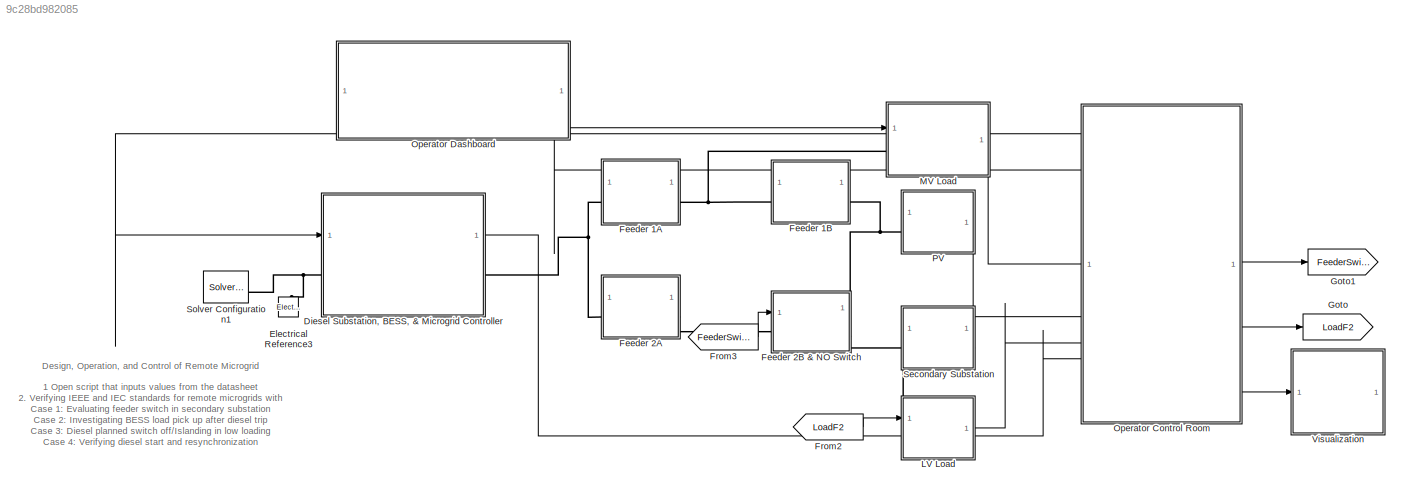
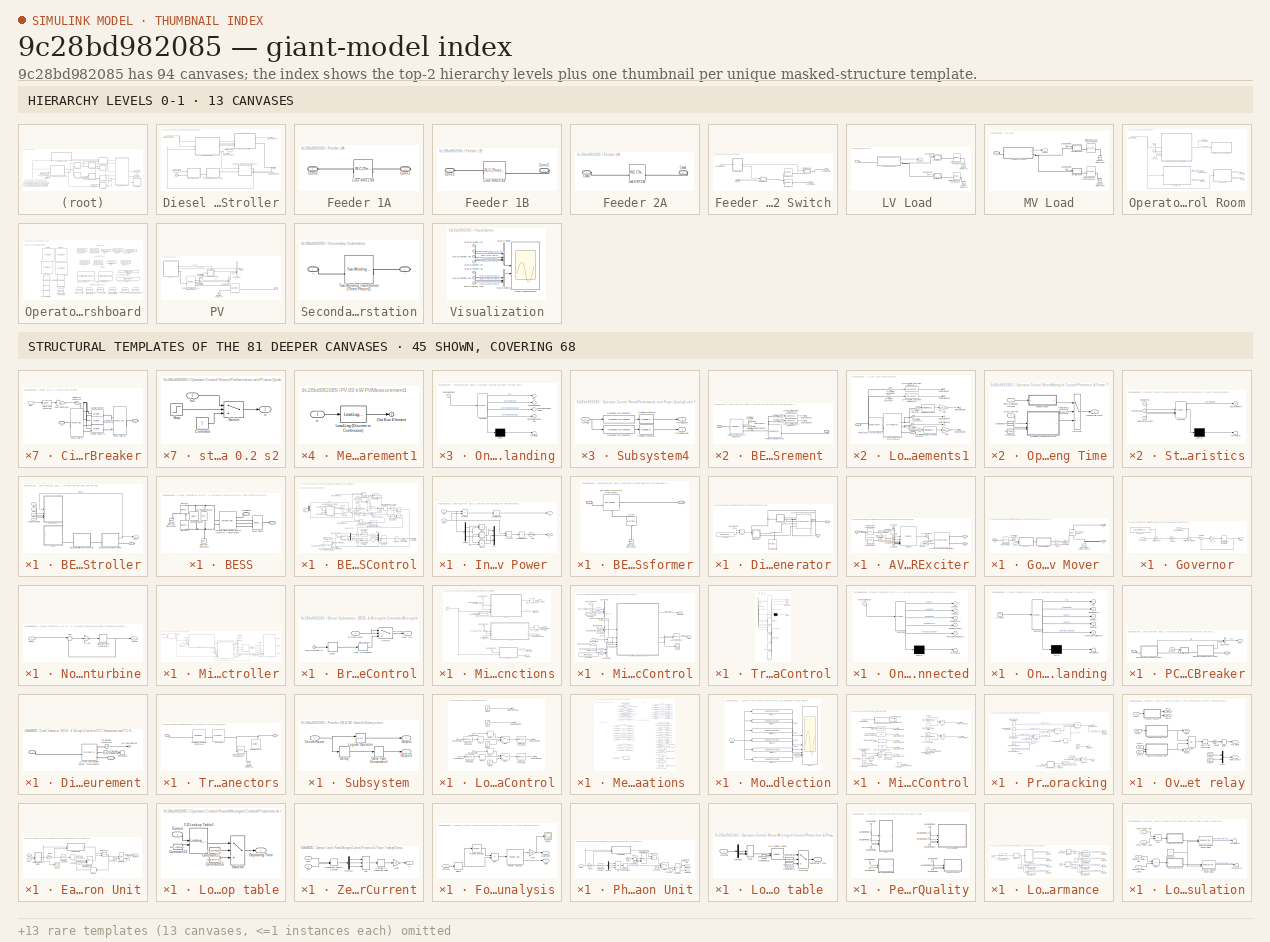
[diagram: thumbnail index - top-2 hierarchy levels (13 canvases) + 45 structural-template representatives of the remaining 81 canvases]
MODEL slx_9c28bd982085
KIND model
CONFIG AbsTol = auto
CONFIG EnableMultiTasking = off
CONFIG FixedStep = Ts
CONFIG MaxStep = auto
CONFIG MinStep = auto
CONFIG PreLoadFcn = RemoteMicrogridInputData\n\n
CONFIG RelTol = 1e-3
CONFIG SampleTimeConstraint = Unconstrained
CONFIG SolverName = FixedStepDiscrete
CONFIG StartTime = 0.0
CONFIG StopTime = 8
BLOCK [SubSystem] Diesel Substation, BESS, & Microgrid Controller
  PortSchema = {"entries":[{"content":{"sides":[{"content":{"connectorIds":["In1","LConn1"]},"type":"ConnectorPlacement.EquallySpacedRectSide","uuid":"34af2ba0-e960-4f27-b72f-7309cde5bec1"},{"content":{"connectorIds":["RConn1","Out1"],"side":"RIGHT"},"type":"ConnectorPlacement.EquallySpacedRectSide","uuid":"58e91d81-71e9-481c-b1fd-5cc7b2cbdd18"},{"content":{"side":"TOP"},"type":"ConnectorPlacement.EquallySpacedR...<+366ch>
BLOCK [SubSystem] Diesel Substation, BESS, & Microgrid Controller/BESS and Controller
BLOCK [SubSystem] Diesel Substation, BESS, & Microgrid Controller/BESS and Controller/BESS
BLOCK [SubSystem] Diesel Substation, BESS, & Microgrid Controller/BESS and Controller/BESS Control
BLOCK [Reference] Diesel Substation, BESS, & Microgrid Controller/BESS and Controller/BESS Control/Active power tracking PI contorller  REF=slpidlib/PID Controller
  NameLocation = top
  SourceBlock = slpidlib/PID Controller
  SourceType = PID 1dof
BLOCK [Inport] Diesel Substation, BESS, & Microgrid Controller/BESS and Controller/BESS Control/Bus Element In1
BLOCK [Inport] Diesel Substation, BESS, & Microgrid Controller/BESS and Controller/BESS Control/Bus Element In2
BLOCK [Inport] Diesel Substation, BESS, & Microgrid Controller/BESS and Controller/BESS Control/Bus Element In3
BLOCK [Inport] Diesel Substation, BESS, & Microgrid Controller/BESS and Controller/BESS Control/Bus Element In4
BLOCK [Demux] Diesel Substation, BESS, & Microgrid Controller/BESS and Controller/BESS Control/Demux
  Outputs = 3
BLOCK [Demux] Diesel Substation, BESS, & Microgrid Controller/BESS and Controller/BESS Control/Demux1
  Outputs = 2
BLOCK [DiscreteIntegrator] Diesel Substation, BESS, & Microgrid Controller/BESS and Controller/BESS Control/Discrete-Time Integrator
  ICPrevOutput = DiscIntNeverNeededParam
  ICPrevScaledInput = DiscIntNeverNeededParam
  InitialConditionSetting = Auto
  SampleTime = Ts
BLOCK [Inport] Diesel Substation, BESS, & Microgrid Controller/BESS and Controller/BESS Control/FRef
  Port = 3
BLOCK [From] Diesel Substation, BESS, & Microgrid Controller/BESS and Controller/BESS Control/From2
  GotoTag = freq_mea
BLOCK [Gain] Diesel Substation, BESS, & Microgrid Controller/BESS and Controller/BESS Control/Gain
  Gain = 2*pi
BLOCK [Goto] Diesel Substation, BESS, & Microgrid Controller/BESS and Controller/BESS Control/Goto
  GotoTag = freq_mea
BLOCK [Inport] Diesel Substation, BESS, & Microgrid Controller/BESS and Controller/BESS Control/In Bus Element1
  Port = 5
BLOCK [Inport] Diesel Substation, BESS, & Microgrid Controller/BESS and Controller/BESS Control/In Bus Element2
  Port = 5
BLOCK [Inport] Diesel Substation, BESS, & Microgrid Controller/BESS and Controller/BESS Control/In Bus Element3
  Port = 5
BLOCK [Inport] Diesel Substation, BESS, & Microgrid Controller/BESS and Controller/BESS Control/In Bus Element4
  Port = 5
BLOCK [Reference] Diesel Substation, BESS, & Microgrid Controller/BESS and Controller/BESS Control/Inverse Park Transform  REF=eeTransforms/Inverse
Park Transform
  SourceBlock = eeTransforms/Inverse\nPark Transform
  SourceType = Inverse Park Transform
BLOCK [SubSystem] Diesel Substation, BESS, & Microgrid Controller/BESS and Controller/BESS Control/Inverter Active & Reactive Power 
  NameLocation = top
BLOCK [Demux] Diesel Substation, BESS, & Microgrid Controller/BESS and Controller/BESS Control/Inverter Active & Reactive Power /Demux
  Outputs = 3
BLOCK [Gain] Diesel Substation, BESS, & Microgrid Controller/BESS and Controller/BESS Control/Inverter Active & Reactive Power /Gain
  Gain = 1/sqrt(3)
BLOCK [Inport] Diesel Substation, BESS, & Microgrid Controller/BESS and Controller/BESS Control/Inverter Active & Reactive Power /Iabc
  Port = 2
BLOCK [Sum] Diesel Substation, BESS, & Microgrid Controller/BESS and Controller/BESS Control/Inverter Active & Reactive Power /Minus
  IconShape = rectangular
  Inputs = +-
BLOCK [Sum] Diesel Substation, BESS, & Microgrid Controller/BESS and Controller/BESS Control/Inverter Active & Reactive Power /Minus1
  IconShape = rectangular
  Inputs = +-
BLOCK [Sum] Diesel Substation, BESS, & Microgrid Controller/BESS and Controller/BESS Control/Inverter Active & Reactive Power /Minus2
  IconShape = rectangular
  Inputs = +-
BLOCK [Mux] Diesel Substation, BESS, & Microgrid Controller/BESS and Controller/BESS Control/Inverter Active & Reactive Power /Mux
  DisplayOption = bar
  Inputs = 3
BLOCK [Outport] Diesel Substation, BESS, & Microgrid Controller/BESS and Controller/BESS Control/Inverter Active & Reactive Power /P
  VectorParamsAs1DForOutWhenUnconnected = off
BLOCK [Product] Diesel Substation, BESS, & Microgrid Controller/BESS and Controller/BESS Control/Inverter Active & Reactive Power /Product
BLOCK [Product] Diesel Substation, BESS, & Microgrid Controller/BESS and Controller/BESS Control/Inverter Active & Reactive Power /Product1
BLOCK [Outport] Diesel Substation, BESS, & Microgrid Controller/BESS and Controller/BESS Control/Inverter Active & Reactive Power /Q
  Port = 2
  VectorParamsAs1DForOutWhenUnconnected = off
BLOCK [Sum] Diesel Substation, BESS, & Microgrid Controller/BESS and Controller/BESS Control/Inverter Active & Reactive Power /Sum of Elements
  IconShape = rectangular
  Inputs = +
BLOCK [Sum] Diesel Substation, BESS, & Microgrid Controller/BESS and Controller/BESS Control/Inverter Active & Reactive Power /Sum of Elements1
  IconShape = rectangular
  Inputs = +
BLOCK [Inport] Diesel Substation, BESS, & Microgrid Controller/BESS and Controller/BESS Control/Inverter Active & Reactive Power /Vabc
BLOCK [Gain] Diesel Substation, BESS, & Microgrid Controller/BESS and Controller/BESS Control/Kpf
  Gain = BESS.Kdroop_fp
  NameLocation = top
BLOCK [Gain] Diesel Substation, BESS, & Microgrid Controller/BESS and Controller/BESS Control/Kqv
  Gain = BESS.Kdroop_vq+0.05
BLOCK [PMIOPort] Diesel Substation, BESS, & Microgrid Controller/BESS and Controller/BESS Control/Modulation
  Side = Right
BLOCK [Mux] Diesel Substation, BESS, & Microgrid Controller/BESS and Controller/BESS Control/Mux2
  DisplayOption = bar
  Inputs = 3
BLOCK [Inport] Diesel Substation, BESS, & Microgrid Controller/BESS and Controller/BESS Control/PQref
  Port = 4
BLOCK [Reference] Diesel Substation, BESS, & Microgrid Controller/BESS and Controller/BESS Control/Park Transform  REF=eeTransforms/Park Transform
  SourceBlock = eeTransforms/Park Transform
  SourceType = Park Transform
BLOCK [Product] Diesel Substation, BESS, & Microgrid Controller/BESS and Controller/BESS Control/Product
BLOCK [Product] Diesel Substation, BESS, & Microgrid Controller/BESS and Controller/BESS Control/Product1
BLOCK [Product] Diesel Substation, BESS, & Microgrid Controller/BESS and Controller/BESS Control/Product2
BLOCK [Product] Diesel Substation, BESS, & Microgrid Controller/BESS and Controller/BESS Control/Product3
BLOCK [Reference] Diesel Substation, BESS, & Microgrid Controller/BESS and Controller/BESS Control/Reactive power tracking PI contorller  REF=slpidlib/PID Controller
  NameLocation = top
  SourceBlock = slpidlib/PID Controller
  SourceType = PID 1dof
BLOCK [Reference] Diesel Substation, BESS, & Microgrid Controller/BESS and Controller/BESS Control/Simulink-PS Converter2  REF=nesl_utility_internal/Simulink-PS
Converter
  SourceBlock = nesl_utility_internal/Simulink-PS\nConverter
  SourceType = Simulink-PS\nConverter
BLOCK [Reference] Diesel Substation, BESS, & Microgrid Controller/BESS and Controller/BESS Control/Sinusoidal Measurement (PLL, Three-Phase)1  REF=eeSinusoidalMeasurement/Sinusoidal Measurement
(PLL, Three-Phase)
  SourceBlock = eeSinusoidalMeasurement/Sinusoidal Measurement\n(PLL, Three-Phase)
  SourceType = Sinusoidal Measurement (PLL, Three-Phase)
BLOCK [Sum] Diesel Substation, BESS, & Microgrid Controller/BESS and Controller/BESS Control/Sum
  Inputs = |+-
BLOCK [Sum] Diesel Substation, BESS, & Microgrid Controller/BESS and Controller/BESS Control/Sum1
  InputSameDT = on
  Inputs = +-|
  OutDataTypeStr = Inherit: Same as first input
  SaturateOnIntegerOverflow = on
BLOCK [Sum] Diesel Substation, BESS, & Microgrid Controller/BESS and Controller/BESS Control/Sum2
  InputSameDT = on
  Inputs = |-+
  OutDataTypeStr = Inherit: Same as first input
  SaturateOnIntegerOverflow = on
BLOCK [Sum] Diesel Substation, BESS, & Microgrid Controller/BESS and Controller/BESS Control/Sum3
  Inputs = -+|
BLOCK [Sum] Diesel Substation, BESS, & Microgrid Controller/BESS and Controller/BESS Control/Sum4
  Inputs = -+-
BLOCK [Sum] Diesel Substation, BESS, & Microgrid Controller/BESS and Controller/BESS Control/Sum5
  Inputs = +-
BLOCK [Sum] Diesel Substation, BESS, & Microgrid Controller/BESS and Controller/BESS Control/Sum7
  Inputs = -+-
BLOCK [Terminator] Diesel Substation, BESS, & Microgrid Controller/BESS and Controller/BESS Control/Terminator1
BLOCK [Terminator] Diesel Substation, BESS, & Microgrid Controller/BESS and Controller/BESS Control/Terminator2
BLOCK [Terminator] Diesel Substation, BESS, & Microgrid Controller/BESS and Controller/BESS Control/Terminator3
BLOCK [Trigonometry] Diesel Substation, BESS, & Microgrid Controller/BESS and Controller/BESS Control/Trigonometric Function
BLOCK [Trigonometry] Diesel Substation, BESS, & Microgrid Controller/BESS and Controller/BESS Control/Trigonometric Function1
  Operator = cos
BLOCK [UnitDelay] Diesel Substation, BESS, & Microgrid Controller/BESS and Controller/BESS Control/Unit Delay1
  HasFrameUpgradeWarning = on
  NameLocation = top
  SampleTime = Ts
BLOCK [Constant] Diesel Substation, BESS, & Microgrid Controller/BESS and Controller/BESS Control/V0
  Value = 0
BLOCK [Inport] Diesel Substation, BESS, & Microgrid Controller/BESS and Controller/BESS Control/VRef
  Port = 2
BLOCK [Reference] Diesel Substation, BESS, & Microgrid Controller/BESS and Controller/BESS Control/Vd Discrete PI Controller  REF=slpidlib/PID Controller
  NameLocation = top
  SourceBlock = slpidlib/PID Controller
  SourceType = PID 1dof
BLOCK [Reference] Diesel Substation, BESS, & Microgrid Controller/BESS and Controller/BESS Control/Vq Discrete PI Controller  REF=slpidlib/PID Controller
  SourceBlock = slpidlib/PID Controller
  SourceType = PID 1dof
BLOCK [Gain] Diesel Substation, BESS, & Microgrid Controller/BESS and Controller/BESS Control/pu->SI2
  Gain = 2/3
BLOCK [Gain] Diesel Substation, BESS, & Microgrid Controller/BESS and Controller/BESS Control/pu->SI3
  Gain = 2/3
BLOCK [SubSystem] Diesel Substation, BESS, & Microgrid Controller/BESS and Controller/BESS Converter Measurement 
BLOCK [Reference] Diesel Substation, BESS, & Microgrid Controller/BESS and Controller/BESS Converter Measurement /Current and Voltage Sensor (Three-Phase)  REF=ee_lib/Sensors &
Transducers/Current and Voltage
Sensor (Three-Phase)
  SourceBlock = ee_lib/Sensors &\nTransducers/Current and Voltage\nSensor (Three-Phase)
  SourceType = Current and Voltage\nSensor (Three-Phase)
BLOCK [Reference] Diesel Substation, BESS, & Microgrid Controller/BESS and Controller/BESS Converter Measurement /Low-Pass Filter (Discrete or Continuous)  REF=eeGeneralControl/Low-Pass Filter
(Discrete or Continuous)
  SourceBlock = eeGeneralControl/Low-Pass Filter\n(Discrete or Continuous)
  SourceType = Low-Pass Filter (Discrete or Continuous)
BLOCK [Reference] Diesel Substation, BESS, & Microgrid Controller/BESS and Controller/BESS Converter Measurement /Low-Pass Filter (Discrete or Continuous)1  REF=eeGeneralControl/Low-Pass Filter
(Discrete or Continuous)
  SourceBlock = eeGeneralControl/Low-Pass Filter\n(Discrete or Continuous)
  SourceType = Low-Pass Filter (Discrete or Continuous)
BLOCK [Outport] Diesel Substation, BESS, & Microgrid Controller/BESS and Controller/BESS Converter Measurement /Out Bus Element
BLOCK [Outport] Diesel Substation, BESS, & Microgrid Controller/BESS and Controller/BESS Converter Measurement /Out Bus Element1
BLOCK [Outport] Diesel Substation, BESS, & Microgrid Controller/BESS and Controller/BESS Converter Measurement /Out Bus Element2
BLOCK [Outport] Diesel Substation, BESS, & Microgrid Controller/BESS and Controller/BESS Converter Measurement /Out Bus Element3
BLOCK [Reference] Diesel Substation, BESS, & Microgrid Controller/BESS and Controller/BESS Converter Measurement /PS-Simulink Converter2  REF=nesl_utility_internal/PS-Simulink
Converter
  SourceBlock = nesl_utility_internal/PS-Simulink\nConverter
  SourceType = PS-Simulink\nConverter
BLOCK [Reference] Diesel Substation, BESS, & Microgrid Controller/BESS and Controller/BESS Converter Measurement /PS-Simulink Converter3  REF=nesl_utility_internal/PS-Simulink
Converter
  SourceBlock = nesl_utility_internal/PS-Simulink\nConverter
  SourceType = PS-Simulink\nConverter
BLOCK [Reference] Diesel Substation, BESS, & Microgrid Controller/BESS and Controller/BESS Converter Measurement /PS-Simulink Converter6  REF=nesl_utility_internal/PS-Simulink
Converter
  SourceBlock = nesl_utility_internal/PS-Simulink\nConverter
  SourceType = PS-Simulink\nConverter
BLOCK [Reference] Diesel Substation, BESS, & Microgrid Controller/BESS and Controller/BESS Converter Measurement /PS-Simulink Converter7  REF=nesl_utility_internal/PS-Simulink
Converter
  SourceBlock = nesl_utility_internal/PS-Simulink\nConverter
  SourceType = PS-Simulink\nConverter
BLOCK [Reference] Diesel Substation, BESS, & Microgrid Controller/BESS and Controller/BESS Converter Measurement /Power Sensor (Three-Phase)1  REF=ee_lib/Sensors &
Transducers/Power Sensor
(Three-Phase)
  SourceBlock = ee_lib/Sensors &\nTransducers/Power Sensor\n(Three-Phase)
  SourceType = Power Sensor\n(Three-Phase)
BLOCK [PMIOPort] Diesel Substation, BESS, & Microgrid Controller/BESS and Controller/BESS Converter Measurement /~
  Port = 2
  Side = Right
BLOCK [PMIOPort] Diesel Substation, BESS, & Microgrid Controller/BESS and Controller/BESS Converter Measurement /~ 
  Side = Left
BLOCK [SubSystem] Diesel Substation, BESS, & Microgrid Controller/BESS and Controller/BESS Output Filter and Transformer
BLOCK [Reference] Diesel Substation, BESS, & Microgrid Controller/BESS and Controller/BESS Output Filter and Transformer/10 kvar  REF=ee_lib/Passive/RLC Assemblies/Wye-Connected Load
  NameLocation = left
  SourceBlock = ee_lib/Passive/RLC Assemblies/Wye-Connected Load
  SourceType = Wye-Connected Load
BLOCK [Reference] Diesel Substation, BESS, & Microgrid Controller/BESS and Controller/BESS Output Filter and Transformer/Electrical Reference1  REF=fl_lib/Electrical/Electrical Elements/Electrical Reference
  NameLocation = right
  SourceBlock = fl_lib/Electrical/Electrical Elements/Electrical Reference
  SourceType = Electrical Reference
BLOCK [Reference] Diesel Substation, BESS, & Microgrid Controller/BESS and Controller/BESS Output Filter and Transformer/Two-Winding Transformer (Three-Phase)1  REF=ee_lib/Passive/Transformers/Two-Winding
Transformer
(Three-Phase)
  NameLocation = top
  SourceBlock = ee_lib/Passive/Transformers/Two-Winding\nTransformer\n(Three-Phase)
  SourceType = Two-Winding\nTransformer\n(Three-Phase)
BLOCK [PMIOPort] Diesel Substation, BESS, & Microgrid Controller/BESS and Controller/BESS Output Filter and Transformer/~
  Port = 2
  Side = Left
BLOCK [PMIOPort] Diesel Substation, BESS, & Microgrid Controller/BESS and Controller/BESS Output Filter and Transformer/~ 
  Side = Right
BLOCK [Reference] Diesel Substation, BESS, & Microgrid Controller/BESS and Controller/BESS/Average-Value Voltage Source Converter (Three-Phase)  REF=ee_lib/Semiconductors &
Converters/Converters/Average-Value
Voltage Source
Converter
(Three-Phase)
  SourceBlock = ee_lib/Semiconductors &\nConverters/Converters/Average-Value\nVoltage Source\nConverter\n(Three-Phase)
  SourceType = Average-Value\nVoltage Source\nConverter\n(Three-Phase)
BLOCK [Reference] Diesel Substation, BESS, & Microgrid Controller/BESS and Controller/BESS/Battery  REF=batteryecm_lib/Battery
  NameLocation = right
  SourceBlock = batteryecm_lib/Battery
  SourceType = Battery
BLOCK [Reference] Diesel Substation, BESS, & Microgrid Controller/BESS and Controller/BESS/Battery1  REF=batteryecm_lib/Battery
  NameLocation = right
  SourceBlock = batteryecm_lib/Battery
  SourceType = Battery
BLOCK [Reference] Diesel Substation, BESS, & Microgrid Controller/BESS and Controller/BESS/DC Voltage Source  REF=fl_lib/Electrical/Electrical Sources/DC Voltage Source
  Commented = on
  NameLocation = right
  SourceBlock = fl_lib/Electrical/Electrical Sources/DC Voltage Source
  SourceType = DC Voltage Source
BLOCK [Reference] Diesel Substation, BESS, & Microgrid Controller/BESS and Controller/BESS/Electrical Reference  REF=fl_lib/Electrical/Electrical Elements/Electrical Reference
  Commented = on
  NameLocation = right
  SourceBlock = fl_lib/Electrical/Electrical Elements/Electrical Reference
  SourceType = Electrical Reference
BLOCK [Reference] Diesel Substation, BESS, & Microgrid Controller/BESS and Controller/BESS/Electrical Reference4  REF=fl_lib/Electrical/Electrical Elements/Electrical Reference
  NameLocation = right
  SourceBlock = fl_lib/Electrical/Electrical Elements/Electrical Reference
  SourceType = Electrical Reference
BLOCK [PMIOPort] Diesel Substation, BESS, & Microgrid Controller/BESS and Controller/BESS/Modulation
  NameLocation = top
  Side = Left
BLOCK [Reference] Diesel Substation, BESS, & Microgrid Controller/BESS and Controller/BESS/Phase Splitter  REF=ee_lib/Connectors &
References/Phase Splitter
  SourceBlock = ee_lib/Connectors &\nReferences/Phase Splitter
  SourceType = Phase Splitter
BLOCK [Reference] Diesel Substation, BESS, & Microgrid Controller/BESS and Controller/BESS/Voltage Sensor  REF=fl_lib/Electrical/Electrical Sensors/Voltage Sensor
  Commented = on
  NameLocation = right
  SourceBlock = fl_lib/Electrical/Electrical Sensors/Voltage Sensor
  SourceType = Voltage Sensor
BLOCK [PMIOPort] Diesel Substation, BESS, & Microgrid Controller/BESS and Controller/BESS/~
  Port = 2
  Side = Left
BLOCK [Inport] Diesel Substation, BESS, & Microgrid Controller/BESS and Controller/CntrlRmSubstation
BLOCK [Inport] Diesel Substation, BESS, & Microgrid Controller/BESS and Controller/FRef
  Port = 3
BLOCK [Inport] Diesel Substation, BESS, & Microgrid Controller/BESS and Controller/PQRef
  Port = 4
BLOCK [Inport] Diesel Substation, BESS, & Microgrid Controller/BESS and Controller/VRef
  Port = 2
BLOCK [Outport] Diesel Substation, BESS, & Microgrid Controller/BESS and Controller/mBESS
BLOCK [PMIOPort] Diesel Substation, BESS, & Microgrid Controller/BESS and Controller/~
  Side = Right
BLOCK [Inport] Diesel Substation, BESS, & Microgrid Controller/CntrlRmSubstation
BLOCK [SubSystem] Diesel Substation, BESS, & Microgrid Controller/Diesel Generator
BLOCK [SubSystem] Diesel Substation, BESS, & Microgrid Controller/Diesel Generator/AVR and Exciter
  NameLocation = top
BLOCK [Constant] Diesel Substation, BESS, & Microgrid Controller/Diesel Generator/AVR and Exciter/Constant3
  Value = 0
BLOCK [Constant] Diesel Substation, BESS, & Microgrid Controller/Diesel Generator/AVR and Exciter/Constant4
  Value = 1.05
BLOCK [Constant] Diesel Substation, BESS, & Microgrid Controller/Diesel Generator/AVR and Exciter/Constant5
  Value = 0
BLOCK [Constant] Diesel Substation, BESS, & Microgrid Controller/Diesel Generator/AVR and Exciter/Constant6
  Value = 0
BLOCK [Constant] Diesel Substation, BESS, & Microgrid Controller/Diesel Generator/AVR and Exciter/Constant7
  Value = 0
BLOCK [Constant] Diesel Substation, BESS, & Microgrid Controller/Diesel Generator/AVR and Exciter/Constant8
  Value = 0
BLOCK [Constant] Diesel Substation, BESS, & Microgrid Controller/Diesel Generator/AVR and Exciter/Constant9
  Value = 0
BLOCK [Reference] Diesel Substation, BESS, & Microgrid Controller/Diesel Generator/AVR and Exciter/E_FD Simulink-PS   REF=nesl_utility/Simulink-PS
Converter
  SourceBlock = nesl_utility/Simulink-PS\nConverter
  SourceType = Simulink-PS\nConverter
BLOCK [Reference] Diesel Substation, BESS, & Microgrid Controller/Diesel Generator/AVR and Exciter/I_FD PS-Simulink  REF=nesl_utility/PS-Simulink
Converter
  SourceBlock = nesl_utility/PS-Simulink\nConverter
  SourceType = PS-Simulink\nConverter
BLOCK [Reference] Diesel Substation, BESS, & Microgrid Controller/Diesel Generator/AVR and Exciter/SM DC2C  REF=eeSmDC2C/SM DC2C
  SourceBlock = eeSmDC2C/SM DC2C
  SourceType = SM DC2C
BLOCK [Reference] Diesel Substation, BESS, & Microgrid Controller/Diesel Generator/AVR and Exciter/Synchronous Machine Field Circuit (pu)  REF=ee_lib/Electromechanical/Synchronous/Synchronous Machine
Field Circuit
  SourceBlock = ee_lib/Electromechanical/Synchronous/Synchronous Machine\nField Circuit
  SourceType = Synchronous Machine\nField Circuit
BLOCK [Reference] Diesel Substation, BESS, & Microgrid Controller/Diesel Generator/AVR and Exciter/Terminal Current Measurement  REF=ee_lib/Electromechanical/Synchronous/Synchronous Machine
Measurement
  SourceBlock = ee_lib/Electromechanical/Synchronous/Synchronous Machine\nMeasurement
  SourceType = Synchronous Machine\nMeasurement
BLOCK [Reference] Diesel Substation, BESS, & Microgrid Controller/Diesel Generator/AVR and Exciter/Terminal Current PS-Simulink  REF=nesl_utility/PS-Simulink
Converter
  SourceBlock = nesl_utility/PS-Simulink\nConverter
  SourceType = PS-Simulink\nConverter
BLOCK [Reference] Diesel Substation, BESS, & Microgrid Controller/Diesel Generator/AVR and Exciter/Terminal Voltage Measurement  REF=ee_lib/Electromechanical/Synchronous/Synchronous Machine
Measurement
  SourceBlock = ee_lib/Electromechanical/Synchronous/Synchronous Machine\nMeasurement
  SourceType = Synchronous Machine\nMeasurement
BLOCK [Reference] Diesel Substation, BESS, & Microgrid Controller/Diesel Generator/AVR and Exciter/Terminal Voltage PS-Simulink  REF=nesl_utility/PS-Simulink
Converter
  SourceBlock = nesl_utility/PS-Simulink\nConverter
  SourceType = PS-Simulink\nConverter
BLOCK [Terminator] Diesel Substation, BESS, & Microgrid Controller/Diesel Generator/AVR and Exciter/Terminator
BLOCK [PMIOPort] Diesel Substation, BESS, & Microgrid Controller/Diesel Generator/AVR and Exciter/fd+
  Port = 2
  Side = Right
BLOCK [PMIOPort] Diesel Substation, BESS, & Microgrid Controller/Diesel Generator/AVR and Exciter/fd-
  Port = 3
  Side = Right
BLOCK [PMIOPort] Diesel Substation, BESS, & Microgrid Controller/Diesel Generator/AVR and Exciter/pu
  Side = Left
BLOCK [Sum] Diesel Substation, BESS, & Microgrid Controller/Diesel Generator/Add
  IconShape = rectangular
BLOCK [Inport] Diesel Substation, BESS, & Microgrid Controller/Diesel Generator/Bus Element In
BLOCK [Constant] Diesel Substation, BESS, & Microgrid Controller/Diesel Generator/Constant
  Value = Machine.LoadReference
BLOCK [SubSystem] Diesel Substation, BESS, & Microgrid Controller/Diesel Generator/Governor and Prime Mover 
BLOCK [PMIOPort] Diesel Substation, BESS, & Microgrid Controller/Diesel Generator/Governor and Prime Mover /C
  Port = 2
  Side = Right
BLOCK [SubSystem] Diesel Substation, BESS, & Microgrid Controller/Diesel Generator/Governor and Prime Mover /Governor
BLOCK [Gain] Diesel Substation, BESS, & Microgrid Controller/Diesel Generator/Governor and Prime Mover /Governor/1//T_G
  Gain = 1/T_G
BLOCK [Gain] Diesel Substation, BESS, & Microgrid Controller/Diesel Generator/Governor and Prime Mover /Governor/1//droop
  Gain = 1/(droop_percentage/100)
BLOCK [Sum] Diesel Substation, BESS, & Microgrid Controller/Diesel Generator/Governor and Prime Mover /Governor/Delta load setpoint
  Inputs = +-|
BLOCK [Sum] Diesel Substation, BESS, & Microgrid Controller/Diesel Generator/Governor and Prime Mover /Governor/Delta speed
  Inputs = -+|
BLOCK [DiscreteIntegrator] Diesel Substation, BESS, & Microgrid Controller/Diesel Generator/Governor and Prime Mover /Governor/Discrete-Time Integrator1
  ICPrevOutput = DiscIntNeverNeededParam
  ICPrevScaledInput = DiscIntNeverNeededParam
  InitialCondition = pu_torque0
  InitialConditionSetting = Auto
  SampleTime = -1
BLOCK [Inport] Diesel Substation, BESS, & Microgrid Controller/Diesel Generator/Governor and Prime Mover /Governor/Load Reference
  Port = 2
BLOCK [Constant] Diesel Substation, BESS, & Microgrid Controller/Diesel Generator/Governor and Prime Mover /Governor/Speed_ref
  Value = pu_speed_reference
BLOCK [Sum] Diesel Substation, BESS, & Microgrid Controller/Diesel Generator/Governor and Prime Mover /Governor/Subtract
  Inputs = |+-
BLOCK [Outport] Diesel Substation, BESS, & Microgrid Controller/Diesel Generator/Governor and Prime Mover /Governor/delta_y
  VectorParamsAs1DForOutWhenUnconnected = off
BLOCK [Inport] Diesel Substation, BESS, & Microgrid Controller/Diesel Generator/Governor and Prime Mover /Governor/pu_velocity
BLOCK [Reference] Diesel Substation, BESS, & Microgrid Controller/Diesel Generator/Governor and Prime Mover /Ideal Torque Source  REF=fl_lib/Mechanical/Mechanical Sources/Ideal Torque Source
  NameLocation = left
  SourceBlock = fl_lib/Mechanical/Mechanical Sources/Ideal Torque Source
  SourceType = Ideal Torque Source
BLOCK [Inport] Diesel Substation, BESS, & Microgrid Controller/Diesel Generator/Governor and Prime Mover /Load
BLOCK [Reference] Diesel Substation, BESS, & Microgrid Controller/Diesel Generator/Governor and Prime Mover /Mechanical Rotational Reference  REF=fl_lib/Mechanical/Rotational Elements/Mechanical
Rotational Reference
  NameLocation = right
  SourceBlock = fl_lib/Mechanical/Rotational Elements/Mechanical\nRotational Reference
  SourceType = Mechanical\nRotational Reference
BLOCK [SubSystem] Diesel Substation, BESS, & Microgrid Controller/Diesel Generator/Governor and Prime Mover /Non-reheat turbine
BLOCK [Gain] Diesel Substation, BESS, & Microgrid Controller/Diesel Generator/Governor and Prime Mover /Non-reheat turbine/1//T_CH
  Gain = 1/T_CH
BLOCK [DiscreteIntegrator] Diesel Substation, BESS, & Microgrid Controller/Diesel Generator/Governor and Prime Mover /Non-reheat turbine/Discrete-Time Integrator1
  ICPrevOutput = DiscIntNeverNeededParam
  ICPrevScaledInput = DiscIntNeverNeededParam
  InitialCondition = pu_torque0
  SampleTime = -1
BLOCK [Sum] Diesel Substation, BESS, & Microgrid Controller/Diesel Generator/Governor and Prime Mover /Non-reheat turbine/Sum
  Inputs = |+-
BLOCK [Inport] Diesel Substation, BESS, & Microgrid Controller/Diesel Generator/Governor and Prime Mover /Non-reheat turbine/delta_y
BLOCK [Outport] Diesel Substation, BESS, & Microgrid Controller/Diesel Generator/Governor and Prime Mover /Non-reheat turbine/torque
  VectorParamsAs1DForOutWhenUnconnected = off
BLOCK [Reference] Diesel Substation, BESS, & Microgrid Controller/Diesel Generator/Governor and Prime Mover /PS-Simulink Converter  REF=nesl_utility/PS-Simulink
Converter
  SourceBlock = nesl_utility/PS-Simulink\nConverter
  SourceType = PS-Simulink\nConverter
BLOCK [PMIOPort] Diesel Substation, BESS, & Microgrid Controller/Diesel Generator/Governor and Prime Mover /R
  Side = Right
BLOCK [Reference] Diesel Substation, BESS, & Microgrid Controller/Diesel Generator/Governor and Prime Mover /Rotor Velocity Measurement  REF=ee_lib/Electromechanical/Synchronous/Synchronous Machine
Measurement
  SourceBlock = ee_lib/Electromechanical/Synchronous/Synchronous Machine\nMeasurement
  SourceType = Synchronous Machine\nMeasurement
BLOCK [Reference] Diesel Substation, BESS, & Microgrid Controller/Diesel Generator/Governor and Prime Mover /Simulink-PS Converter  REF=nesl_utility/Simulink-PS
Converter
  SourceBlock = nesl_utility/Simulink-PS\nConverter
  SourceType = Simulink-PS\nConverter
BLOCK [PMIOPort] Diesel Substation, BESS, & Microgrid Controller/Diesel Generator/Governor and Prime Mover /pu
  Port = 3
  Side = Left
BLOCK [Gain] Diesel Substation, BESS, & Microgrid Controller/Diesel Generator/Governor and Prime Mover /scale by base_torque
  Gain = base_torque
BLOCK [Reference] Diesel Substation, BESS, & Microgrid Controller/Diesel Generator/Machine Inertia  REF=ee_lib/Electromechanical/Mechanical/Machine
Inertia
  NameLocation = right
  SourceBlock = ee_lib/Electromechanical/Mechanical/Machine\nInertia
  SourceType = Machine\nInertia
BLOCK [Reference] Diesel Substation, BESS, & Microgrid Controller/Diesel Generator/Synchronous Machine Round Rotor  REF=ee_lib/Electromechanical/Synchronous/Synchronous Machine
Round Rotor
  SourceBlock = ee_lib/Electromechanical/Synchronous/Synchronous Machine\nRound Rotor
  SourceType = Synchronous Machine\nRound Rotor
BLOCK [PMIOPort] Diesel Substation, BESS, & Microgrid Controller/Diesel Generator/ref
  NameLocation = top
  Side = Left
BLOCK [PMIOPort] Diesel Substation, BESS, & Microgrid Controller/Diesel Generator/~
  Port = 2
  Side = Right
BLOCK [From] Diesel Substation, BESS, & Microgrid Controller/From1
  GotoTag = MGController
BLOCK [Goto] Diesel Substation, BESS, & Microgrid Controller/Goto1
  GotoTag = MGController
BLOCK [SubSystem] Diesel Substation, BESS, & Microgrid Controller/Microgrid Controller
BLOCK [SubSystem] Diesel Substation, BESS, & Microgrid Controller/Microgrid Controller/Breaker Control
BLOCK [Outport] Diesel Substation, BESS, & Microgrid Controller/Microgrid Controller/Breaker Control/BrK Ctrl
BLOCK [Inport] Diesel Substation, BESS, & Microgrid Controller/Microgrid Controller/Breaker Control/Bus Element In
BLOCK [DataTypeConversion] Diesel Substation, BESS, & Microgrid Controller/Microgrid Controller/Breaker Control/Cast To Double1
  OutDataTypeStr = double
  RndMeth = Floor
  SaturateOnIntegerOverflow = off
BLOCK [Inport] Diesel Substation, BESS, & Microgrid Controller/Microgrid Controller/Breaker Control/CtrlRm BRK
  Port = 2
BLOCK [Delay] Diesel Substation, BESS, & Microgrid Controller/Microgrid Controller/Breaker Control/Delay
  DelayLength = 1
  InitialCondition = ControlRoom.BRKInitialStatus
  InputPortMap = u0
BLOCK [Switch] Diesel Substation, BESS, & Microgrid Controller/Microgrid Controller/Breaker Control/Switch
  Criteria = u2 > Threshold
  InputSameDT = off
  SaturateOnIntegerOverflow = off
BLOCK [Inport] Diesel Substation, BESS, & Microgrid Controller/Microgrid Controller/Bus Element In
BLOCK [Inport] Diesel Substation, BESS, & Microgrid Controller/Microgrid Controller/Bus Element In1
BLOCK [Inport] Diesel Substation, BESS, & Microgrid Controller/Microgrid Controller/Bus Element In10
  Port = 2
BLOCK [Inport] Diesel Substation, BESS, & Microgrid Controller/Microgrid Controller/Bus Element In11
  Port = 2
BLOCK [Inport] Diesel Substation, BESS, & Microgrid Controller/Microgrid Controller/Bus Element In12
  Port = 2
BLOCK [Inport] Diesel Substation, BESS, & Microgrid Controller/Microgrid Controller/Bus Element In13
  Port = 2
BLOCK [Inport] Diesel Substation, BESS, & Microgrid Controller/Microgrid Controller/Bus Element In2
BLOCK [Inport] Diesel Substation, BESS, & Microgrid Controller/Microgrid Controller/Bus Element In3
BLOCK [Inport] Diesel Substation, BESS, & Microgrid Controller/Microgrid Controller/Bus Element In4
BLOCK [Inport] Diesel Substation, BESS, & Microgrid Controller/Microgrid Controller/Bus Element In5
BLOCK [Inport] Diesel Substation, BESS, & Microgrid Controller/Microgrid Controller/Bus Element In6
BLOCK [Inport] Diesel Substation, BESS, & Microgrid Controller/Microgrid Controller/Bus Element In7
BLOCK [Inport] Diesel Substation, BESS, & Microgrid Controller/Microgrid Controller/Bus Element In8
BLOCK [Inport] Diesel Substation, BESS, & Microgrid Controller/Microgrid Controller/Bus Element In9
BLOCK [Outport] Diesel Substation, BESS, & Microgrid Controller/Microgrid Controller/FRef
  Port = 2
BLOCK [From] Diesel Substation, BESS, & Microgrid Controller/Microgrid Controller/From1
  GotoTag = Status
BLOCK [From] Diesel Substation, BESS, & Microgrid Controller/Microgrid Controller/From2
  GotoTag = Status
BLOCK [Goto] Diesel Substation, BESS, & Microgrid Controller/Microgrid Controller/Goto
  GotoTag = Status
BLOCK [SubSystem] Diesel Substation, BESS, & Microgrid Controller/Microgrid Controller/Microgrid Control Functions
BLOCK [Inport] Diesel Substation, BESS, & Microgrid Controller/Microgrid Controller/Microgrid Control Functions/BESS Reactive Power
  Port = 2
BLOCK [Outport] Diesel Substation, BESS, & Microgrid Controller/Microgrid Controller/Microgrid Control Functions/BlackStart
  Port = 3
BLOCK [Inport] Diesel Substation, BESS, & Microgrid Controller/Microgrid Controller/Microgrid Control Functions/Bus Element In1
  Port = 5
BLOCK [Inport] Diesel Substation, BESS, & Microgrid Controller/Microgrid Controller/Microgrid Control Functions/Bus Element In2
  Port = 5
BLOCK [Inport] Diesel Substation, BESS, & Microgrid Controller/Microgrid Controller/Microgrid Control Functions/Bus Element In3
  Port = 5
BLOCK [Inport] Diesel Substation, BESS, & Microgrid Controller/Microgrid Controller/Microgrid Control Functions/Bus Element In4
  Port = 5
BLOCK [DataTypeConversion] Diesel Substation, BESS, & Microgrid Controller/Microgrid Controller/Microgrid Control Functions/Data Type Conversion
  OutDataTypeStr = boolean
  RndMeth = Floor
  SaturateOnIntegerOverflow = off
BLOCK [Delay] Diesel Substation, BESS, & Microgrid Controller/Microgrid Controller/Microgrid Control Functions/Latency_PlannedIsland
  DelayLength = 1
  InputPortMap = u0
  SampleTime = Ts
BLOCK [Delay] Diesel Substation, BESS, & Microgrid Controller/Microgrid Controller/Microgrid Control Functions/Latency_Resync
  DelayLength = 1
  InputPortMap = u0
  SampleTime = Ts
BLOCK [ModelReference] Diesel Substation, BESS, & Microgrid Controller/Microgrid Controller/Microgrid Control Functions/Model
  AngleThreshold = angleThreshold
  FrequencyThreshold = frequencyThreshold
  GridFrequency = gridFrequency
  KiAngResynch = kiAngle
  KiFreResynch = kiFrequency
  KiVolResynch = kiVoltage
  KpAngResynch = kpAngle
  KpFreResynch = kpFrequency
  KpVolResynch = kpVoltage
  ModelNameDialog = Resynchronization.slx
  ModelReferenceVersion = 5.0
  UsingDefaultArgumentValue = 0,0,0,0,0,0,0,0,0,0,0
  VoltageThreshold = voltageThreshold
  kDroop = voltageDroop
BLOCK [ModelReference] Diesel Substation, BESS, & Microgrid Controller/Microgrid Controller/Microgrid Control Functions/Model1
  KiPPlannedIsland = kiActive
  KiQPlannedIsland = kiReactive
  KpPPlannedIsland = kpActive
  KpQPlannedIsland = kpReactive
  ModelNameDialog = PlannedIsland.slx
  ModelReferenceVersion = 5.0
  UsingDefaultArgumentValue = 0,0,0,0,0,0
  ZeroActivePowerThreshold = activeThreshold
  ZeroReactivePowerThreshold = reactiveThreshold
BLOCK [ModelReference] Diesel Substation, BESS, & Microgrid Controller/Microgrid Controller/Microgrid Control Functions/Model2
  ModelNameDialog = Black_Start.slx
  ModelReferenceVersion = 5.0
  UsingDefaultArgumentValue = 0,0,0,0,0,0,0,0
  controllerBlackStart = blackStartTime
  delayLevel1 = delay1
  delayLevel2 = delay2
  delayLevel3 = delay3
  referenceFrequency = gridFrequency
  voltageLevel1 = level1
  voltageLevel2 = level2
  voltageLevel3 = level3
BLOCK [Inport] Diesel Substation, BESS, & Microgrid Controller/Microgrid Controller/Microgrid Control Functions/PCC Active Power
  NameLocation = left
  Port = 3
BLOCK [Inport] Diesel Substation, BESS, & Microgrid Controller/Microgrid Controller/Microgrid Control Functions/PCC Reactive Power
  Port = 4
BLOCK [Inport] Diesel Substation, BESS, & Microgrid Controller/Microgrid Controller/Microgrid Control Functions/PLL
BLOCK [Outport] Diesel Substation, BESS, & Microgrid Controller/Microgrid Controller/Microgrid Control Functions/PlannedIsland Status
  Port = 5
BLOCK [Outport] Diesel Substation, BESS, & Microgrid Controller/Microgrid Controller/Microgrid Control Functions/PlannedIslanding
  Port = 2
BLOCK [Outport] Diesel Substation, BESS, & Microgrid Controller/Microgrid Controller/Microgrid Control Functions/Resync
BLOCK [Outport] Diesel Substation, BESS, & Microgrid Controller/Microgrid Controller/Microgrid Control Functions/Resync Status
  Port = 4
BLOCK [Terminator] Diesel Substation, BESS, & Microgrid Controller/Microgrid Controller/Microgrid Control Functions/Terminator
BLOCK [SubSystem] Diesel Substation, BESS, & Microgrid Controller/Microgrid Controller/Microgrid Supervisory Control
BLOCK [Outport] Diesel Substation, BESS, & Microgrid Controller/Microgrid Controller/Microgrid Supervisory Control/BrKControl
BLOCK [Inport] Diesel Substation, BESS, & Microgrid Controller/Microgrid Controller/Microgrid Supervisory Control/BreakerStatus
  Port = 7
BLOCK [BusAssignment] Diesel Substation, BESS, & Microgrid Controller/Microgrid Controller/Microgrid Supervisory Control/Bus Assignment
  AssignedSignals = mode
BLOCK [BusCreator] Diesel Substation, BESS, & Microgrid Controller/Microgrid Controller/Microgrid Supervisory Control/Bus Creator
  DisplayOption = bar
  InheritFromInputs = on
  Inputs = 3
BLOCK [BusCreator] Diesel Substation, BESS, & Microgrid Controller/Microgrid Controller/Microgrid Supervisory Control/Bus Creator1
  DisplayOption = bar
  InheritFromInputs = on
  Inputs = 2
BLOCK [BusCreator] Diesel Substation, BESS, & Microgrid Controller/Microgrid Controller/Microgrid Supervisory Control/Bus Creator2
  DisplayOption = bar
  InheritFromInputs = on
  Inputs = 3
BLOCK [Inport] Diesel Substation, BESS, & Microgrid Controller/Microgrid Controller/Microgrid Supervisory Control/Bus Element In
  Port = 6
BLOCK [Inport] Diesel Substation, BESS, & Microgrid Controller/Microgrid Controller/Microgrid Supervisory Control/Bus Element In1
  Port = 6
BLOCK [Constant] Diesel Substation, BESS, & Microgrid Controller/Microgrid Controller/Microgrid Supervisory Control/Constant
  Value = resyncDelay
BLOCK [Constant] Diesel Substation, BESS, & Microgrid Controller/Microgrid Controller/Microgrid Supervisory Control/Constant1
  Value = plannedIslandingDelay
BLOCK [Delay] Diesel Substation, BESS, & Microgrid Controller/Microgrid Controller/Microgrid Supervisory Control/Delay
  DelayLength = 1
  InitialCondition = ControlRoom.BRKInitialStatus
  InputPortMap = u0
  SampleTime = Ts
BLOCK [Inport] Diesel Substation, BESS, & Microgrid Controller/Microgrid Controller/Microgrid Supervisory Control/PlannedIslandEnable
  Port = 4
BLOCK [Inport] Diesel Substation, BESS, & Microgrid Controller/Microgrid Controller/Microgrid Supervisory Control/PlannedIslanding Status
  Port = 2
BLOCK [Inport] Diesel Substation, BESS, & Microgrid Controller/Microgrid Controller/Microgrid Supervisory Control/Resync Enable
  Port = 3
BLOCK [Inport] Diesel Substation, BESS, & Microgrid Controller/Microgrid Controller/Microgrid Supervisory Control/Resync Status
BLOCK [Scope] Diesel Substation, BESS, & Microgrid Controller/Microgrid Controller/Microgrid Supervisory Control/Scope
  ActiveDisplayYMaximum = 3.25
  ActiveDisplayYMinimum = 0.75
  DataLoggingVariableName = ScopeData1
  Floating = off
  GraphicalSettings = {"GraphicalSettings":{"LegacySettings":true,"Style":{"Style":{"AxesColor":"[0 0 0]","ChannelNames":[""],"ColorOrder":"[1 0.909803921568627 0.392156862745098;0.149019607843137 0.549019607843137 0.866666666666667;0.96078431372549 0.466666666666667 0.16078431372549;0.286274509803922 0.858823529411765 0.250980392156863;0.752941176470588 0.36078431372549 0.984313725490196;0.423529411764706 0.9568627450...<+432ch>
  MultipleDisplayCache = [{"MaxYLimMag":3.25,"MaxYLimReal":3.25,"MinYLimMag":0.75,"MinYLimReal":0.75,"PlotAsMagnitudePhase":false,"ShowGrid":true,"ShowLegend":false,"Title":"%<SignalLabel>","YLabel":""}]
  NumInputPorts = 1
  WasSavedAsWebScope = on
BLOCK [Outport] Diesel Substation, BESS, & Microgrid Controller/Microgrid Controller/Microgrid Supervisory Control/Status
  Port = 2
BLOCK [SubSystem] Diesel Substation, BESS, & Microgrid Controller/Microgrid Controller/Microgrid Supervisory Control/Transition and Dispatch Control
  ErrorFcn = Stateflow.Translate.translate
  PermitHierarchicalResolution = ExplicitOnly
  SFBlockType = Chart
  TreatAsAtomicUnit = on
BLOCK [DataStoreMemory] Diesel Substation, BESS, & Microgrid Controller/Microgrid Controller/Microgrid Supervisory Control/Transition and Dispatch Control/ 
  DataStoreName = emergencyDispatch
  Dimensions = [1]
  OutDataTypeStr = boolean
  ShowAdditionalParam = off
  SignalType = real
BLOCK [DataStoreMemory] Diesel Substation, BESS, & Microgrid Controller/Microgrid Controller/Microgrid Supervisory Control/Transition and Dispatch Control/ 1
  DataStoreName = plannedIslandingDispatch
  Dimensions = [1]
  OutDataTypeStr = boolean
  ShowAdditionalParam = off
  SignalType = real
BLOCK [DataStoreMemory] Diesel Substation, BESS, & Microgrid Controller/Microgrid Controller/Microgrid Supervisory Control/Transition and Dispatch Control/ 2
  DataStoreName = resyncDispatch
  Dimensions = [1]
  OutDataTypeStr = boolean
  ShowAdditionalParam = off
  SignalType = real
BLOCK [Demux] Diesel Substation, BESS, & Microgrid Controller/Microgrid Controller/Microgrid Supervisory Control/Transition and Dispatch Control/ Demux 
  Outputs = 1
BLOCK [S-Function] Diesel Substation, BESS, & Microgrid Controller/Microgrid Controller/Microgrid Supervisory Control/Transition and Dispatch Control/ SFunction 
  EnableBusSupport = off
  FunctionName = sf_sfun
  Parameters = lowerFrequencyLimit,lowerVoltageLimit,upperFrequencyLimit,upperVoltageLimit
  PortCounts = [27 6]
  SFcnIsStateOwnerBlock = off
  SFunctionDeploymentMode = off
  Tag = Stateflow S-Function 2
BLOCK [Terminator] Diesel Substation, BESS, & Microgrid Controller/Microgrid Controller/Microgrid Supervisory Control/Transition and Dispatch Control/ Terminator 
BLOCK [Outport] Diesel Substation, BESS, & Microgrid Controller/Microgrid Controller/Microgrid Supervisory Control/Transition and Dispatch Control/BrKControl
BLOCK [Inport] Diesel Substation, BESS, & Microgrid Controller/Microgrid Controller/Microgrid Supervisory Control/Transition and Dispatch Control/BreakerStatus
  Port = 4
BLOCK [Inport] Diesel Substation, BESS, & Microgrid Controller/Microgrid Controller/Microgrid Supervisory Control/Transition and Dispatch Control/Island
  Port = 3
BLOCK [SubSystem] Diesel Substation, BESS, & Microgrid Controller/Microgrid Controller/Microgrid Supervisory Control/Transition and Dispatch Control/On.Planned_Islanding
  CopyFcn = set_param(gcbh, 'DSMNames', '', 'DSMValues', '', 'CopyFcn', '')
  ErrorFcn = Stateflow.Translate.translate
  PermitHierarchicalResolution = ExplicitOnly
  SFBlockType = Chart
  TreatAsAtomicUnit = on
BLOCK [Demux] Diesel Substation, BESS, & Microgrid Controller/Microgrid Controller/Microgrid Supervisory Control/Transition and Dispatch Control/On.Planned_Islanding/ Demux 
  Outputs = 1
BLOCK [S-Function] Diesel Substation, BESS, & Microgrid Controller/Microgrid Controller/Microgrid Supervisory Control/Transition and Dispatch Control/On.Planned_Islanding/ SFunction 
  EnableBusSupport = off
  FunctionName = sf_sfun
  PortCounts = [1 5]
  SFcnIsStateOwnerBlock = off
  SFunctionDeploymentMode = off
  Tag = Stateflow S-Function 1
BLOCK [Terminator] Diesel Substation, BESS, & Microgrid Controller/Microgrid Controller/Microgrid Supervisory Control/Transition and Dispatch Control/On.Planned_Islanding/ Terminator 
BLOCK [Outport] Diesel Substation, BESS, & Microgrid Controller/Microgrid Controller/Microgrid Supervisory Control/Transition and Dispatch Control/On.Planned_Islanding/PCC
BLOCK [Inport] Diesel Substation, BESS, & Microgrid Controller/Microgrid Controller/Microgrid Supervisory Control/Transition and Dispatch Control/On.Planned_Islanding/PlannedIslanding
BLOCK [Outport] Diesel Substation, BESS, & Microgrid Controller/Microgrid Controller/Microgrid Supervisory Control/Transition and Dispatch Control/On.Planned_Islanding/plannedIslanding
  Port = 2
BLOCK [Outport] Diesel Substation, BESS, & Microgrid Controller/Microgrid Controller/Microgrid Supervisory Control/Transition and Dispatch Control/On.Planned_Islanding/plannedIslandingDispatch
  Port = 3
BLOCK [Outport] Diesel Substation, BESS, & Microgrid Controller/Microgrid Controller/Microgrid Supervisory Control/Transition and Dispatch Control/On.Planned_Islanding/plannedIslandingStatus
  Port = 4
BLOCK [SubSystem] Diesel Substation, BESS, & Microgrid Controller/Microgrid Controller/Microgrid Supervisory Control/Transition and Dispatch Control/On.Resynchronization
  CopyFcn = set_param(gcbh, 'DSMNames', '', 'DSMValues', '', 'CopyFcn', '')
  ErrorFcn = Stateflow.Translate.translate
  PermitHierarchicalResolution = ExplicitOnly
  SFBlockType = Chart
  TreatAsAtomicUnit = on
BLOCK [Demux] Diesel Substation, BESS, & Microgrid Controller/Microgrid Controller/Microgrid Supervisory Control/Transition and Dispatch Control/On.Resynchronization/ Demux 
  Outputs = 1
BLOCK [S-Function] Diesel Substation, BESS, & Microgrid Controller/Microgrid Controller/Microgrid Supervisory Control/Transition and Dispatch Control/On.Resynchronization/ SFunction 
  EnableBusSupport = off
  FunctionName = sf_sfun
  PortCounts = [1 5]
  SFcnIsStateOwnerBlock = off
  SFunctionDeploymentMode = off
  Tag = Stateflow S-Function 7
BLOCK [Terminator] Diesel Substation, BESS, & Microgrid Controller/Microgrid Controller/Microgrid Supervisory Control/Transition and Dispatch Control/On.Resynchronization/ Terminator 
BLOCK [Outport] Diesel Substation, BESS, & Microgrid Controller/Microgrid Controller/Microgrid Supervisory Control/Transition and Dispatch Control/On.Resynchronization/PCC
BLOCK [Inport] Diesel Substation, BESS, & Microgrid Controller/Microgrid Controller/Microgrid Supervisory Control/Transition and Dispatch Control/On.Resynchronization/Resync
BLOCK [Outport] Diesel Substation, BESS, & Microgrid Controller/Microgrid Controller/Microgrid Supervisory Control/Transition and Dispatch Control/On.Resynchronization/resync
  Port = 2
BLOCK [Outport] Diesel Substation, BESS, & Microgrid Controller/Microgrid Controller/Microgrid Supervisory Control/Transition and Dispatch Control/On.Resynchronization/resyncDispatch
  Port = 3
BLOCK [Outport] Diesel Substation, BESS, & Microgrid Controller/Microgrid Controller/Microgrid Supervisory Control/Transition and Dispatch Control/On.Resynchronization/resyncStatus
  Port = 4
BLOCK [SubSystem] Diesel Substation, BESS, & Microgrid Controller/Microgrid Controller/Microgrid Supervisory Control/Transition and Dispatch Control/On.Steady_State_Grid_Connected
  CopyFcn = set_param(gcbh, 'DSMNames', '', 'DSMValues', '', 'CopyFcn', '')
  ErrorFcn = Stateflow.Translate.translate
  PermitHierarchicalResolution = ExplicitOnly
  SFBlockType = Chart
  TreatAsAtomicUnit = on
BLOCK [Demux] Diesel Substation, BESS, & Microgrid Controller/Microgrid Controller/Microgrid Supervisory Control/Transition and Dispatch Control/On.Steady_State_Grid_Connected/ Demux 
  Outputs = 1
BLOCK [S-Function] Diesel Substation, BESS, & Microgrid Controller/Microgrid Controller/Microgrid Supervisory Control/Transition and Dispatch Control/On.Steady_State_Grid_Connected/ SFunction 
  EnableBusSupport = off
  FunctionName = sf_sfun
  PortCounts = [1 6]
  SFcnIsStateOwnerBlock = off
  SFunctionDeploymentMode = off
  Tag = Stateflow S-Function 5
BLOCK [Terminator] Diesel Substation, BESS, & Microgrid Controller/Microgrid Controller/Microgrid Supervisory Control/Transition and Dispatch Control/On.Steady_State_Grid_Connected/ Terminator 
BLOCK [Outport] Diesel Substation, BESS, & Microgrid Controller/Microgrid Controller/Microgrid Supervisory Control/Transition and Dispatch Control/On.Steady_State_Grid_Connected/LoadF2A
BLOCK [Outport] Diesel Substation, BESS, & Microgrid Controller/Microgrid Controller/Microgrid Supervisory Control/Transition and Dispatch Control/On.Steady_State_Grid_Connected/LoadF2B
  Port = 2
BLOCK [Outport] Diesel Substation, BESS, & Microgrid Controller/Microgrid Controller/Microgrid Supervisory Control/Transition and Dispatch Control/On.Steady_State_Grid_Connected/emergencyDispatch
  Port = 5
BLOCK [Outport] Diesel Substation, BESS, & Microgrid Controller/Microgrid Controller/Microgrid Supervisory Control/Transition and Dispatch Control/On.Steady_State_Grid_Connected/loadDispatch
  Port = 3
BLOCK [Outport] Diesel Substation, BESS, & Microgrid Controller/Microgrid Controller/Microgrid Supervisory Control/Transition and Dispatch Control/On.Steady_State_Grid_Connected/loadReference
  Port = 4
BLOCK [Inport] Diesel Substation, BESS, & Microgrid Controller/Microgrid Controller/Microgrid Supervisory Control/Transition and Dispatch Control/On.Steady_State_Grid_Connected/resyncDispatch
BLOCK [SubSystem] Diesel Substation, BESS, & Microgrid Controller/Microgrid Controller/Microgrid Supervisory Control/Transition and Dispatch Control/On.Steady_State_Islanded
  CopyFcn = set_param(gcbh, 'DSMNames', '', 'DSMValues', '', 'CopyFcn', '')
  ErrorFcn = Stateflow.Translate.translate
  PermitHierarchicalResolution = ExplicitOnly
  SFBlockType = Chart
  TreatAsAtomicUnit = on
BLOCK [Demux] Diesel Substation, BESS, & Microgrid Controller/Microgrid Controller/Microgrid Supervisory Control/Transition and Dispatch Control/On.Steady_State_Islanded/ Demux 
  Outputs = 1
BLOCK [S-Function] Diesel Substation, BESS, & Microgrid Controller/Microgrid Controller/Microgrid Supervisory Control/Transition and Dispatch Control/On.Steady_State_Islanded/ SFunction 
  EnableBusSupport = off
  FunctionName = sf_sfun
  PortCounts = [1 5]
  SFcnIsStateOwnerBlock = off
  SFunctionDeploymentMode = off
  Tag = Stateflow S-Function 8
BLOCK [Terminator] Diesel Substation, BESS, & Microgrid Controller/Microgrid Controller/Microgrid Supervisory Control/Transition and Dispatch Control/On.Steady_State_Islanded/ Terminator 
BLOCK [Outport] Diesel Substation, BESS, & Microgrid Controller/Microgrid Controller/Microgrid Supervisory Control/Transition and Dispatch Control/On.Steady_State_Islanded/LoadF2A
BLOCK [Outport] Diesel Substation, BESS, & Microgrid Controller/Microgrid Controller/Microgrid Supervisory Control/Transition and Dispatch Control/On.Steady_State_Islanded/LoadF2B
  Port = 2
BLOCK [Outport] Diesel Substation, BESS, & Microgrid Controller/Microgrid Controller/Microgrid Supervisory Control/Transition and Dispatch Control/On.Steady_State_Islanded/emergencyDispatch
  Port = 4
BLOCK [Outport] Diesel Substation, BESS, & Microgrid Controller/Microgrid Controller/Microgrid Supervisory Control/Transition and Dispatch Control/On.Steady_State_Islanded/loadDispatch
  Port = 3
BLOCK [Inport] Diesel Substation, BESS, & Microgrid Controller/Microgrid Controller/Microgrid Supervisory Control/Transition and Dispatch Control/On.Steady_State_Islanded/plannedIslandingDispatch
BLOCK [SubSystem] Diesel Substation, BESS, & Microgrid Controller/Microgrid Controller/Microgrid Supervisory Control/Transition and Dispatch Control/On.Unplanned_Islanding
  CopyFcn = set_param(gcbh, 'DSMNames', '', 'DSMValues', '', 'CopyFcn', '')
  ErrorFcn = Stateflow.Translate.translate
  PermitHierarchicalResolution = ExplicitOnly
  SFBlockType = Chart
  TreatAsAtomicUnit = on
BLOCK [Demux] Diesel Substation, BESS, & Microgrid Controller/Microgrid Controller/Microgrid Supervisory Control/Transition and Dispatch Control/On.Unplanned_Islanding/ Demux 
  Outputs = 1
BLOCK [Ground] Diesel Substation, BESS, & Microgrid Controller/Microgrid Controller/Microgrid Supervisory Control/Transition and Dispatch Control/On.Unplanned_Islanding/ Ground 
BLOCK [S-Function] Diesel Substation, BESS, & Microgrid Controller/Microgrid Controller/Microgrid Supervisory Control/Transition and Dispatch Control/On.Unplanned_Islanding/ SFunction 
  EnableBusSupport = off
  FunctionName = sf_sfun
  PortCounts = [1 6]
  SFcnIsStateOwnerBlock = off
  SFunctionDeploymentMode = off
  Tag = Stateflow S-Function 9
BLOCK [Terminator] Diesel Substation, BESS, & Microgrid Controller/Microgrid Controller/Microgrid Supervisory Control/Transition and Dispatch Control/On.Unplanned_Islanding/ Terminator 
BLOCK [Outport] Diesel Substation, BESS, & Microgrid Controller/Microgrid Controller/Microgrid Supervisory Control/Transition and Dispatch Control/On.Unplanned_Islanding/PCC
BLOCK [Outport] Diesel Substation, BESS, & Microgrid Controller/Microgrid Controller/Microgrid Supervisory Control/Transition and Dispatch Control/On.Unplanned_Islanding/emergencyDispatch
  Port = 5
BLOCK [Outport] Diesel Substation, BESS, & Microgrid Controller/Microgrid Controller/Microgrid Supervisory Control/Transition and Dispatch Control/On.Unplanned_Islanding/loadDispatch
  Port = 2
BLOCK [Outport] Diesel Substation, BESS, & Microgrid Controller/Microgrid Controller/Microgrid Supervisory Control/Transition and Dispatch Control/On.Unplanned_Islanding/loadF2A
  Port = 3
BLOCK [Outport] Diesel Substation, BESS, & Microgrid Controller/Microgrid Controller/Microgrid Supervisory Control/Transition and Dispatch Control/On.Unplanned_Islanding/loadF2B
  Port = 4
BLOCK [Inport] Diesel Substation, BESS, & Microgrid Controller/Microgrid Controller/Microgrid Supervisory Control/Transition and Dispatch Control/PlannedIslanding
  Port = 5
BLOCK [Inport] Diesel Substation, BESS, & Microgrid Controller/Microgrid Controller/Microgrid Supervisory Control/Transition and Dispatch Control/Resync
BLOCK [Outport] Diesel Substation, BESS, & Microgrid Controller/Microgrid Controller/Microgrid Supervisory Control/Transition and Dispatch Control/Status
  Port = 2
BLOCK [Outport] Diesel Substation, BESS, & Microgrid Controller/Microgrid Controller/Microgrid Supervisory Control/Transition and Dispatch Control/Transition_and_Dispatch_ControlMode
  Port = 3
BLOCK [Inport] Diesel Substation, BESS, & Microgrid Controller/Microgrid Controller/Microgrid Supervisory Control/Transition and Dispatch Control/UnplannedIslandingEnable
  Port = 2
BLOCK [Inport] Diesel Substation, BESS, & Microgrid Controller/Microgrid Controller/Microgrid Supervisory Control/UnplannedIslandingEnable
  Port = 5
BLOCK [ModelReference] Diesel Substation, BESS, & Microgrid Controller/Microgrid Controller/Model
  GridFrequency = gridFrequency
  KiPLLController = kpPLL
  KpPLLController = kiPLL
  ModelNameDialog = PLL.slx
  ModelReferenceVersion = 5.0
  UsingDefaultArgumentValue = 0,0,0
BLOCK [Outport] Diesel Substation, BESS, & Microgrid Controller/Microgrid Controller/Out Bus Element
  Port = 4
BLOCK [Outport] Diesel Substation, BESS, & Microgrid Controller/Microgrid Controller/Out Bus Element1
  Port = 4
BLOCK [Outport] Diesel Substation, BESS, & Microgrid Controller/Microgrid Controller/Out Bus Element2
  Port = 4
BLOCK [Outport] Diesel Substation, BESS, & Microgrid Controller/Microgrid Controller/Out Bus Element3
  Port = 4
BLOCK [Outport] Diesel Substation, BESS, & Microgrid Controller/Microgrid Controller/Out Bus Element4
  Port = 4
BLOCK [Outport] Diesel Substation, BESS, & Microgrid Controller/Microgrid Controller/Out Bus Element5
  Port = 4
BLOCK [Outport] Diesel Substation, BESS, & Microgrid Controller/Microgrid Controller/Out Bus Element6
  Port = 4
BLOCK [Outport] Diesel Substation, BESS, & Microgrid Controller/Microgrid Controller/PCC BRK
  Port = 5
BLOCK [Outport] Diesel Substation, BESS, & Microgrid Controller/Microgrid Controller/PQRef
  Port = 3
BLOCK [RateTransition] Diesel Substation, BESS, & Microgrid Controller/Microgrid Controller/Rate Transition
  OutPortSampleTime = 1e-3
BLOCK [ModelReference] Diesel Substation, BESS, & Microgrid Controller/Microgrid Controller/Reference Generation
  GridFrequency = gridFrequency
  ModelNameDialog = ReferenceGeneration.slx
  ModelReferenceVersion = 5.0
  PortSchema = {"entries":[{"content":{"sides":[{"content":{"connectorIds":["In6","In7","In8","In1","In2","In3","In4","In5","In9"]},"type":"ConnectorPlacement.EquallySpacedRectSide","uuid":"e872b833-49f6-4912-b4b3-51343786db27"},{"content":{"connectorIds":["Out1","Out2","Out3"],"side":"RIGHT"},"type":"ConnectorPlacement.EquallySpacedRectSide","uuid":"d01ecec0-b655-4b5d-a34d-324f522879ad"},{"content":{"side":"TOP...<+284ch>
  UsingDefaultArgumentValue = 0,0,0,0,0
  pLowerLimit = pLowerLimit
  pUpperLimit = pUpperLimit
  qLowerLimit = qLowerLimit
  qUpperLimit = qUpperLimit
BLOCK [Outport] Diesel Substation, BESS, & Microgrid Controller/Microgrid Controller/VRef
BLOCK [Outport] Diesel Substation, BESS, & Microgrid Controller/Out Bus Element
BLOCK [Outport] Diesel Substation, BESS, & Microgrid Controller/Out Bus Element1
BLOCK [Outport] Diesel Substation, BESS, & Microgrid Controller/Out Bus Element2
BLOCK [SubSystem] Diesel Substation, BESS, & Microgrid Controller/PCC Measurements and PCC Breaker
  PortSchema = {"entries":[{"content":{"sides":[{"content":{"connectorIds":["In1","LConn1"]},"type":"ConnectorPlacement.EquallySpacedRectSide","uuid":"04177ba8-e6a4-4482-9e4e-86e01b546ca8"},{"content":{"connectorIds":["RConn1","Out1"],"side":"RIGHT"},"type":"ConnectorPlacement.EquallySpacedRectSide","uuid":"b1feeba7-b9e0-4dc8-9251-9fa4e491a467"},{"content":{"side":"TOP"},"type":"ConnectorPlacement.EquallySpacedR...<+240ch>
  ShowPortLabels = FromPortBlockName
BLOCK [Outport] Diesel Substation, BESS, & Microgrid Controller/PCC Measurements and PCC Breaker/ mPCC
BLOCK [Inport] Diesel Substation, BESS, & Microgrid Controller/PCC Measurements and PCC Breaker/Breaker
BLOCK [BusCreator] Diesel Substation, BESS, & Microgrid Controller/PCC Measurements and PCC Breaker/Bus Creator
  DisplayOption = bar
  InheritFromInputs = on
  Inputs = 2
BLOCK [SubSystem] Diesel Substation, BESS, & Microgrid Controller/PCC Measurements and PCC Breaker/Circuit Breaker
BLOCK [Inport] Diesel Substation, BESS, & Microgrid Controller/PCC Measurements and PCC Breaker/Circuit Breaker/BRK
BLOCK [DataTypeConversion] Diesel Substation, BESS, & Microgrid Controller/PCC Measurements and PCC Breaker/Circuit Breaker/Data Type Conversion
  OutDataTypeStr = double
  RndMeth = Floor
  SaturateOnIntegerOverflow = off
BLOCK [PMIOPort] Diesel Substation, BESS, & Microgrid Controller/PCC Measurements and PCC Breaker/Circuit Breaker/In
  Side = Left
BLOCK [Gain] Diesel Substation, BESS, & Microgrid Controller/PCC Measurements and PCC Breaker/Circuit Breaker/Open Resistance
  Gain = 1e5
BLOCK [Reference] Diesel Substation, BESS, & Microgrid Controller/PCC Measurements and PCC Breaker/Circuit Breaker/Phase Splitter  REF=ee_lib/Connectors &
References/Phase Splitter
  SourceBlock = ee_lib/Connectors &\nReferences/Phase Splitter
  SourceType = Phase Splitter
BLOCK [Reference] Diesel Substation, BESS, & Microgrid Controller/PCC Measurements and PCC Breaker/Circuit Breaker/Phase Splitter1  REF=ee_lib/Connectors &
References/Phase Splitter
  NameLocation = top
  SourceBlock = ee_lib/Connectors &\nReferences/Phase Splitter
  SourceType = Phase Splitter
BLOCK [Reference] Diesel Substation, BESS, & Microgrid Controller/PCC Measurements and PCC Breaker/Circuit Breaker/Simulink-PS Converter  REF=nesl_utility/Simulink-PS
Converter
  SourceBlock = nesl_utility/Simulink-PS\nConverter
  SourceType = Simulink-PS\nConverter
BLOCK [Reference] Diesel Substation, BESS, & Microgrid Controller/PCC Measurements and PCC Breaker/Circuit Breaker/Variable Resistor  REF=fl_lib/Electrical/Electrical Elements/Variable Resistor
  SourceBlock = fl_lib/Electrical/Electrical Elements/Variable Resistor
  SourceType = Variable Resistor
BLOCK [Reference] Diesel Substation, BESS, & Microgrid Controller/PCC Measurements and PCC Breaker/Circuit Breaker/Variable Resistor1  REF=fl_lib/Electrical/Electrical Elements/Variable Resistor
  SourceBlock = fl_lib/Electrical/Electrical Elements/Variable Resistor
  SourceType = Variable Resistor
BLOCK [Reference] Diesel Substation, BESS, & Microgrid Controller/PCC Measurements and PCC Breaker/Circuit Breaker/Variable Resistor2  REF=fl_lib/Electrical/Electrical Elements/Variable Resistor
  SourceBlock = fl_lib/Electrical/Electrical Elements/Variable Resistor
  SourceType = Variable Resistor
BLOCK [PMIOPort] Diesel Substation, BESS, & Microgrid Controller/PCC Measurements and PCC Breaker/Circuit Breaker/~
  Port = 2
  Side = Right
BLOCK [SubSystem] Diesel Substation, BESS, & Microgrid Controller/PCC Measurements and PCC Breaker/Diesel Genset Current Measurement
BLOCK [Reference] Diesel Substation, BESS, & Microgrid Controller/PCC Measurements and PCC Breaker/Diesel Genset Current Measurement/Current and Voltage Sensor (Three-Phase)1  REF=ee_lib/Sensors &
Transducers/Current and Voltage
Sensor (Three-Phase)
  SourceBlock = ee_lib/Sensors &\nTransducers/Current and Voltage\nSensor (Three-Phase)
  SourceType = Current and Voltage\nSensor (Three-Phase)
BLOCK [Outport] Diesel Substation, BESS, & Microgrid Controller/PCC Measurements and PCC Breaker/Diesel Genset Current Measurement/Out Bus Element
BLOCK [Reference] Diesel Substation, BESS, & Microgrid Controller/PCC Measurements and PCC Breaker/Diesel Genset Current Measurement/PS-Simulink Converter2  REF=nesl_utility_internal/PS-Simulink
Converter
  SourceBlock = nesl_utility_internal/PS-Simulink\nConverter
  SourceType = PS-Simulink\nConverter
BLOCK [Reference] Diesel Substation, BESS, & Microgrid Controller/PCC Measurements and PCC Breaker/Diesel Genset Current Measurement/PS-Simulink Converter3  REF=nesl_utility_internal/PS-Simulink
Converter
  SourceBlock = nesl_utility_internal/PS-Simulink\nConverter
  SourceType = PS-Simulink\nConverter
BLOCK [Terminator] Diesel Substation, BESS, & Microgrid Controller/PCC Measurements and PCC Breaker/Diesel Genset Current Measurement/Terminator
BLOCK [PMIOPort] Diesel Substation, BESS, & Microgrid Controller/PCC Measurements and PCC Breaker/Diesel Genset Current Measurement/~
  Side = Left
BLOCK [PMIOPort] Diesel Substation, BESS, & Microgrid Controller/PCC Measurements and PCC Breaker/Diesel Genset Current Measurement/~ 
  Port = 2
  Side = Right
BLOCK [SubSystem] Diesel Substation, BESS, & Microgrid Controller/PCC Measurements and PCC Breaker/Diesel Genset Power Measurement
BLOCK [Reference] Diesel Substation, BESS, & Microgrid Controller/PCC Measurements and PCC Breaker/Diesel Genset Power Measurement/Current and Voltage Sensor (Three-Phase)  REF=ee_lib/Sensors &
Transducers/Current and Voltage
Sensor (Three-Phase)
  SourceBlock = ee_lib/Sensors &\nTransducers/Current and Voltage\nSensor (Three-Phase)
  SourceType = Current and Voltage\nSensor (Three-Phase)
BLOCK [Reference] Diesel Substation, BESS, & Microgrid Controller/PCC Measurements and PCC Breaker/Diesel Genset Power Measurement/Low-Pass Filter (Discrete or Continuous)  REF=eeGeneralControl/Low-Pass Filter
(Discrete or Continuous)
  SourceBlock = eeGeneralControl/Low-Pass Filter\n(Discrete or Continuous)
  SourceType = Low-Pass Filter (Discrete or Continuous)
BLOCK [Reference] Diesel Substation, BESS, & Microgrid Controller/PCC Measurements and PCC Breaker/Diesel Genset Power Measurement/Low-Pass Filter (Discrete or Continuous)1  REF=eeGeneralControl/Low-Pass Filter
(Discrete or Continuous)
  SourceBlock = eeGeneralControl/Low-Pass Filter\n(Discrete or Continuous)
  SourceType = Low-Pass Filter (Discrete or Continuous)
BLOCK [Outport] Diesel Substation, BESS, & Microgrid Controller/PCC Measurements and PCC Breaker/Diesel Genset Power Measurement/Out Bus Element
BLOCK [Outport] Diesel Substation, BESS, & Microgrid Controller/PCC Measurements and PCC Breaker/Diesel Genset Power Measurement/Out Bus Element1
BLOCK [Outport] Diesel Substation, BESS, & Microgrid Controller/PCC Measurements and PCC Breaker/Diesel Genset Power Measurement/Out Bus Element2
BLOCK [Outport] Diesel Substation, BESS, & Microgrid Controller/PCC Measurements and PCC Breaker/Diesel Genset Power Measurement/Out Bus Element3
BLOCK [Reference] Diesel Substation, BESS, & Microgrid Controller/PCC Measurements and PCC Breaker/Diesel Genset Power Measurement/PS-Simulink Converter  REF=nesl_utility_internal/PS-Simulink
Converter
  SourceBlock = nesl_utility_internal/PS-Simulink\nConverter
  SourceType = PS-Simulink\nConverter
BLOCK [Reference] Diesel Substation, BESS, & Microgrid Controller/PCC Measurements and PCC Breaker/Diesel Genset Power Measurement/PS-Simulink Converter1  REF=nesl_utility_internal/PS-Simulink
Converter
  SourceBlock = nesl_utility_internal/PS-Simulink\nConverter
  SourceType = PS-Simulink\nConverter
BLOCK [Reference] Diesel Substation, BESS, & Microgrid Controller/PCC Measurements and PCC Breaker/Diesel Genset Power Measurement/PS-Simulink Converter8  REF=nesl_utility_internal/PS-Simulink
Converter
  SourceBlock = nesl_utility_internal/PS-Simulink\nConverter
  SourceType = PS-Simulink\nConverter
BLOCK [Reference] Diesel Substation, BESS, & Microgrid Controller/PCC Measurements and PCC Breaker/Diesel Genset Power Measurement/PS-Simulink Converter9  REF=nesl_utility_internal/PS-Simulink
Converter
  SourceBlock = nesl_utility_internal/PS-Simulink\nConverter
  SourceType = PS-Simulink\nConverter
BLOCK [Reference] Diesel Substation, BESS, & Microgrid Controller/PCC Measurements and PCC Breaker/Diesel Genset Power Measurement/Power Sensor (Three-Phase)2  REF=ee_lib/Sensors &
Transducers/Power Sensor
(Three-Phase)
  SourceBlock = ee_lib/Sensors &\nTransducers/Power Sensor\n(Three-Phase)
  SourceType = Power Sensor\n(Three-Phase)
BLOCK [PMIOPort] Diesel Substation, BESS, & Microgrid Controller/PCC Measurements and PCC Breaker/Diesel Genset Power Measurement/~
  Side = Left
BLOCK [PMIOPort] Diesel Substation, BESS, & Microgrid Controller/PCC Measurements and PCC Breaker/Diesel Genset Power Measurement/~ 
  Port = 2
  Side = Right
BLOCK [PMIOPort] Diesel Substation, BESS, & Microgrid Controller/PCC Measurements and PCC Breaker/~
  Side = Left
BLOCK [PMIOPort] Diesel Substation, BESS, & Microgrid Controller/PCC Measurements and PCC Breaker/~ 
  Port = 2
  Side = Right
BLOCK [SubSystem] Diesel Substation, BESS, & Microgrid Controller/Transformer and Disconnectors
BLOCK [Reference] Diesel Substation, BESS, & Microgrid Controller/Transformer and Disconnectors/Connectors  REF=ee_lib/Passive/RLC Assemblies/RLC (Three-Phase)
  SourceBlock = ee_lib/Passive/RLC Assemblies/RLC (Three-Phase)
  SourceType = RLC (Three-Phase)
BLOCK [Reference] Diesel Substation, BESS, & Microgrid Controller/Transformer and Disconnectors/Electrical Reference5  REF=fl_lib/Electrical/Electrical Elements/Electrical Reference
  NameLocation = right
  SourceBlock = fl_lib/Electrical/Electrical Elements/Electrical Reference
  SourceType = Electrical Reference
BLOCK [Reference] Diesel Substation, BESS, & Microgrid Controller/Transformer and Disconnectors/Fault (Three-Phase)  REF=ee_lib/Utilities/Fault (Three-Phase)
  NameLocation = right
  SourceBlock = ee_lib/Utilities/Fault (Three-Phase)
  SourceType = Fault (Three-Phase)
BLOCK [Reference] Diesel Substation, BESS, & Microgrid Controller/Transformer and Disconnectors/Switchable 20 kW 4160 Vrms 60 Hz1  REF=ee_lib/Passive/RLC Assemblies/Wye-Connected Load
  SourceBlock = ee_lib/Passive/RLC Assemblies/Wye-Connected Load
  SourceType = Wye-Connected Load
BLOCK [Reference] Diesel Substation, BESS, & Microgrid Controller/Transformer and Disconnectors/Two-Winding Transformer (Three-Phase)1  REF=ee_lib/Passive/Transformers/Two-Winding
Transformer
(Three-Phase)
  SourceBlock = ee_lib/Passive/Transformers/Two-Winding\nTransformer\n(Three-Phase)
  SourceType = Two-Winding\nTransformer\n(Three-Phase)
BLOCK [PMIOPort] Diesel Substation, BESS, & Microgrid Controller/Transformer and Disconnectors/~
  Side = Left
BLOCK [PMIOPort] Diesel Substation, BESS, & Microgrid Controller/Transformer and Disconnectors/~ 
  Port = 2
  Side = Right
BLOCK [PMIOPort] Diesel Substation, BESS, & Microgrid Controller/ref
  NameLocation = top
  Side = Left
BLOCK [PMIOPort] Diesel Substation, BESS, & Microgrid Controller/~ 
  Port = 2
  Side = Right
BLOCK [Reference] Electrical Reference3  REF=fl_lib/Electrical/Electrical Elements/Electrical Reference
  NameLocation = right
  SourceBlock = fl_lib/Electrical/Electrical Elements/Electrical Reference
  SourceType = Electrical Reference
BLOCK [SubSystem] Feeder 1A
BLOCK [PMIOPort] Feeder 1A/Conn1
  Side = Right
BLOCK [PMIOPort] Feeder 1A/Conn2
  Port = 2
  Side = Left
BLOCK [Reference] Feeder 1A/Line X//R=1.44   REF=ee_lib/Passive/RLC Assemblies/RLC (Three-Phase)
  SourceBlock = ee_lib/Passive/RLC Assemblies/RLC (Three-Phase)
  SourceType = RLC (Three-Phase)
BLOCK [SubSystem] Feeder 1B
BLOCK [PMIOPort] Feeder 1B/Conn1
  Side = Left
BLOCK [PMIOPort] Feeder 1B/Conn2
  Port = 2
  Side = Right
BLOCK [Reference] Feeder 1B/Line X//R=1.44  REF=ee_lib/Passive/RLC Assemblies/RLC (Three-Phase)
  SourceBlock = ee_lib/Passive/RLC Assemblies/RLC (Three-Phase)
  SourceType = RLC (Three-Phase)
BLOCK [SubSystem] Feeder 2A
BLOCK [PMIOPort] Feeder 2A/Conn1
  Port = 2
  Side = Right
BLOCK [PMIOPort] Feeder 2A/Conn2
  Side = Left
BLOCK [Reference] Feeder 2A/Line X//R=1.44    REF=ee_lib/Passive/RLC Assemblies/RLC (Three-Phase)
  SourceBlock = ee_lib/Passive/RLC Assemblies/RLC (Three-Phase)
  SourceType = RLC (Three-Phase)
BLOCK [SubSystem] Feeder 2B & NO Switch
  PortSchema = {"entries":[{"content":{"sides":[{"content":{"connectorIds":["LConn1","In1"]},"type":"ConnectorPlacement.EquallySpacedRectSide","uuid":"b1ff7143-0432-45d1-9871-6b8068209aeb"},{"content":{"connectorIds":["RConn1","RConn2"],"side":"RIGHT"},"type":"ConnectorPlacement.EquallySpacedRectSide","uuid":"b6fa69ce-48c3-4fac-b04a-2b7bcdb32261"},{"content":{"side":"TOP"},"type":"ConnectorPlacement.EquallySpace...<+242ch>
BLOCK [Reference] Feeder 2B & NO Switch/ Line X//R=1.44   REF=ee_lib/Passive/RLC Assemblies/RLC (Three-Phase)
  SourceBlock = ee_lib/Passive/RLC Assemblies/RLC (Three-Phase)
  SourceType = RLC (Three-Phase)
BLOCK [Reference] Feeder 2B & NO Switch/ Line X//R=1.44 1  REF=ee_lib/Passive/RLC Assemblies/RLC (Three-Phase)
  SourceBlock = ee_lib/Passive/RLC Assemblies/RLC (Three-Phase)
  SourceType = RLC (Three-Phase)
BLOCK [Inport] Feeder 2B & NO Switch/Bus Element In2
BLOCK [SubSystem] Feeder 2B & NO Switch/Circuit Breaker
BLOCK [Inport] Feeder 2B & NO Switch/Circuit Breaker/BRK
BLOCK [DataTypeConversion] Feeder 2B & NO Switch/Circuit Breaker/Data Type Conversion
  OutDataTypeStr = double
  RndMeth = Floor
  SaturateOnIntegerOverflow = off
BLOCK [PMIOPort] Feeder 2B & NO Switch/Circuit Breaker/In
  Side = Left
BLOCK [Gain] Feeder 2B & NO Switch/Circuit Breaker/Open Resistance
  Gain = 1e5
BLOCK [Reference] Feeder 2B & NO Switch/Circuit Breaker/Phase Splitter  REF=ee_lib/Connectors &
References/Phase Splitter
  SourceBlock = ee_lib/Connectors &\nReferences/Phase Splitter
  SourceType = Phase Splitter
BLOCK [Reference] Feeder 2B & NO Switch/Circuit Breaker/Phase Splitter1  REF=ee_lib/Connectors &
References/Phase Splitter
  NameLocation = top
  SourceBlock = ee_lib/Connectors &\nReferences/Phase Splitter
  SourceType = Phase Splitter
BLOCK [Reference] Feeder 2B & NO Switch/Circuit Breaker/Simulink-PS Converter  REF=nesl_utility/Simulink-PS
Converter
  SourceBlock = nesl_utility/Simulink-PS\nConverter
  SourceType = Simulink-PS\nConverter
BLOCK [Reference] Feeder 2B & NO Switch/Circuit Breaker/Variable Resistor  REF=fl_lib/Electrical/Electrical Elements/Variable Resistor
  SourceBlock = fl_lib/Electrical/Electrical Elements/Variable Resistor
  SourceType = Variable Resistor
BLOCK [Reference] Feeder 2B & NO Switch/Circuit Breaker/Variable Resistor1  REF=fl_lib/Electrical/Electrical Elements/Variable Resistor
  SourceBlock = fl_lib/Electrical/Electrical Elements/Variable Resistor
  SourceType = Variable Resistor
BLOCK [Reference] Feeder 2B & NO Switch/Circuit Breaker/Variable Resistor2  REF=fl_lib/Electrical/Electrical Elements/Variable Resistor
  SourceBlock = fl_lib/Electrical/Electrical Elements/Variable Resistor
  SourceType = Variable Resistor
BLOCK [PMIOPort] Feeder 2B & NO Switch/Circuit Breaker/~
  Port = 2
  Side = Right
BLOCK [SubSystem] Feeder 2B & NO Switch/Circuit Breaker1
BLOCK [Inport] Feeder 2B & NO Switch/Circuit Breaker1/BRK
BLOCK [DataTypeConversion] Feeder 2B & NO Switch/Circuit Breaker1/Data Type Conversion
  OutDataTypeStr = double
  RndMeth = Floor
  SaturateOnIntegerOverflow = off
BLOCK [PMIOPort] Feeder 2B & NO Switch/Circuit Breaker1/In
  Side = Left
BLOCK [Gain] Feeder 2B & NO Switch/Circuit Breaker1/Open Resistance
  Gain = 1e5
BLOCK [Reference] Feeder 2B & NO Switch/Circuit Breaker1/Phase Splitter  REF=ee_lib/Connectors &
References/Phase Splitter
  SourceBlock = ee_lib/Connectors &\nReferences/Phase Splitter
  SourceType = Phase Splitter
BLOCK [Reference] Feeder 2B & NO Switch/Circuit Breaker1/Phase Splitter1  REF=ee_lib/Connectors &
References/Phase Splitter
  NameLocation = top
  SourceBlock = ee_lib/Connectors &\nReferences/Phase Splitter
  SourceType = Phase Splitter
BLOCK [Reference] Feeder 2B & NO Switch/Circuit Breaker1/Simulink-PS Converter  REF=nesl_utility/Simulink-PS
Converter
  SourceBlock = nesl_utility/Simulink-PS\nConverter
  SourceType = Simulink-PS\nConverter
BLOCK [Reference] Feeder 2B & NO Switch/Circuit Breaker1/Variable Resistor  REF=fl_lib/Electrical/Electrical Elements/Variable Resistor
  SourceBlock = fl_lib/Electrical/Electrical Elements/Variable Resistor
  SourceType = Variable Resistor
BLOCK [Reference] Feeder 2B & NO Switch/Circuit Breaker1/Variable Resistor1  REF=fl_lib/Electrical/Electrical Elements/Variable Resistor
  SourceBlock = fl_lib/Electrical/Electrical Elements/Variable Resistor
  SourceType = Variable Resistor
BLOCK [Reference] Feeder 2B & NO Switch/Circuit Breaker1/Variable Resistor2  REF=fl_lib/Electrical/Electrical Elements/Variable Resistor
  SourceBlock = fl_lib/Electrical/Electrical Elements/Variable Resistor
  SourceType = Variable Resistor
BLOCK [PMIOPort] Feeder 2B & NO Switch/Circuit Breaker1/~
  Port = 2
  Side = Right
BLOCK [PMIOPort] Feeder 2B & NO Switch/Conn2
  Side = Left
BLOCK [PMIOPort] Feeder 2B & NO Switch/Feeder1BRK
  Port = 2
  Side = Right
BLOCK [PMIOPort] Feeder 2B & NO Switch/Feeder2BRK
  Port = 3
  Side = Right
BLOCK [SubSystem] Feeder 2B & NO Switch/Subsystem
BLOCK [Inport] Feeder 2B & NO Switch/Subsystem/ControlRoom
BLOCK [DataTypeConversion] Feeder 2B & NO Switch/Subsystem/Data Type Conversion1
  RndMeth = Floor
  SaturateOnIntegerOverflow = off
BLOCK [Delay] Feeder 2B & NO Switch/Subsystem/Delay
  DelayLength = 6
  InputPortMap = u0
  SampleTime = 0.15
BLOCK [Logic] Feeder 2B & NO Switch/Subsystem/Logical Operator
  AllPortsSameDT = off
  Operator = NOT
  OutDataTypeStr = boolean
BLOCK [Outport] Feeder 2B & NO Switch/Subsystem/Output
BLOCK [Outport] Feeder 2B & NO Switch/Subsystem/Output1
  Port = 2
BLOCK [From] From2
  GotoTag = LoadF2
BLOCK [From] From3
  GotoTag = FeederSwitch
BLOCK [Goto] Goto
  GotoTag = LoadF2
BLOCK [Goto] Goto1
  GotoTag = FeederSwitch
BLOCK [SubSystem] LV Load 
  PortSchema = {"entries":[{"content":{"sides":[{"content":{"connectorIds":["In1"]},"type":"ConnectorPlacement.EquallySpacedRectSide","uuid":"cc4763ec-9449-4f2d-b299-5261ad2f5cfe"},{"content":{"connectorIds":["Out1"],"side":"RIGHT"},"type":"ConnectorPlacement.EquallySpacedRectSide","uuid":"9da329b8-70a1-4faf-a44a-2cf8be9addec"},{"content":{"connectorIds":["LConn1"],"side":"TOP"},"type":"ConnectorPlacement.Equall...<+248ch>
BLOCK [Inport] LV Load /Bus Element In1
BLOCK [Inport] LV Load /Bus Element In3
BLOCK [SubSystem] LV Load /Circuit Breaker
BLOCK [SubSystem] LV Load /Circuit Breaker 1
BLOCK [Inport] LV Load /Circuit Breaker 1/BRK
BLOCK [DataTypeConversion] LV Load /Circuit Breaker 1/Data Type Conversion
  OutDataTypeStr = double
  RndMeth = Floor
  SaturateOnIntegerOverflow = off
BLOCK [Gain] LV Load /Circuit Breaker 1/Gain
  Gain = 9.9e4
BLOCK [PMIOPort] LV Load /Circuit Breaker 1/In
  Side = Left
BLOCK [Reference] LV Load /Circuit Breaker 1/Phase Splitter  REF=ee_lib/Connectors &
References/Phase Splitter
  SourceBlock = ee_lib/Connectors &\nReferences/Phase Splitter
  SourceType = Phase Splitter
BLOCK [Reference] LV Load /Circuit Breaker 1/Phase Splitter1  REF=ee_lib/Connectors &
References/Phase Splitter
  NameLocation = top
  SourceBlock = ee_lib/Connectors &\nReferences/Phase Splitter
  SourceType = Phase Splitter
BLOCK [Reference] LV Load /Circuit Breaker 1/Simulink-PS Converter  REF=nesl_utility/Simulink-PS
Converter
  SourceBlock = nesl_utility/Simulink-PS\nConverter
  SourceType = Simulink-PS\nConverter
BLOCK [Reference] LV Load /Circuit Breaker 1/Variable Resistor  REF=fl_lib/Electrical/Electrical Elements/Variable Resistor
  SourceBlock = fl_lib/Electrical/Electrical Elements/Variable Resistor
  SourceType = Variable Resistor
BLOCK [Reference] LV Load /Circuit Breaker 1/Variable Resistor1  REF=fl_lib/Electrical/Electrical Elements/Variable Resistor
  SourceBlock = fl_lib/Electrical/Electrical Elements/Variable Resistor
  SourceType = Variable Resistor
BLOCK [Reference] LV Load /Circuit Breaker 1/Variable Resistor2  REF=fl_lib/Electrical/Electrical Elements/Variable Resistor
  SourceBlock = fl_lib/Electrical/Electrical Elements/Variable Resistor
  SourceType = Variable Resistor
BLOCK [PMIOPort] LV Load /Circuit Breaker 1/~
  Port = 2
  Side = Right
BLOCK [Inport] LV Load /Circuit Breaker/BRK
BLOCK [DataTypeConversion] LV Load /Circuit Breaker/Data Type Conversion
  OutDataTypeStr = double
  RndMeth = Floor
  SaturateOnIntegerOverflow = off
BLOCK [Gain] LV Load /Circuit Breaker/Gain
  Gain = 9.9e4
BLOCK [PMIOPort] LV Load /Circuit Breaker/In
  Side = Left
BLOCK [Reference] LV Load /Circuit Breaker/Phase Splitter  REF=ee_lib/Connectors &
References/Phase Splitter
  SourceBlock = ee_lib/Connectors &\nReferences/Phase Splitter
  SourceType = Phase Splitter
BLOCK [Reference] LV Load /Circuit Breaker/Phase Splitter1  REF=ee_lib/Connectors &
References/Phase Splitter
  NameLocation = top
  SourceBlock = ee_lib/Connectors &\nReferences/Phase Splitter
  SourceType = Phase Splitter
BLOCK [Reference] LV Load /Circuit Breaker/Simulink-PS Converter  REF=nesl_utility/Simulink-PS
Converter
  SourceBlock = nesl_utility/Simulink-PS\nConverter
  SourceType = Simulink-PS\nConverter
BLOCK [Reference] LV Load /Circuit Breaker/Variable Resistor  REF=fl_lib/Electrical/Electrical Elements/Variable Resistor
  SourceBlock = fl_lib/Electrical/Electrical Elements/Variable Resistor
  SourceType = Variable Resistor
BLOCK [Reference] LV Load /Circuit Breaker/Variable Resistor1  REF=fl_lib/Electrical/Electrical Elements/Variable Resistor
  SourceBlock = fl_lib/Electrical/Electrical Elements/Variable Resistor
  SourceType = Variable Resistor
BLOCK [Reference] LV Load /Circuit Breaker/Variable Resistor2  REF=fl_lib/Electrical/Electrical Elements/Variable Resistor
  SourceBlock = fl_lib/Electrical/Electrical Elements/Variable Resistor
  SourceType = Variable Resistor
BLOCK [PMIOPort] LV Load /Circuit Breaker/~
  Port = 2
  Side = Right
BLOCK [Reference] LV Load /Electrical Reference2  REF=fl_lib/Electrical/Electrical Elements/Electrical Reference
  NameLocation = right
  SourceBlock = fl_lib/Electrical/Electrical Elements/Electrical Reference
  SourceType = Electrical Reference
BLOCK [Reference] LV Load /Electrical Reference5  REF=fl_lib/Electrical/Electrical Elements/Electrical Reference
  NameLocation = right
  SourceBlock = fl_lib/Electrical/Electrical Elements/Electrical Reference
  SourceType = Electrical Reference
BLOCK [SubSystem] LV Load /Load Measurements1
BLOCK [PMIOPort] LV Load /Load Measurements1/ ~ 
  Port = 2
  Side = Right
BLOCK [Reference] LV Load /Load Measurements1/Current and Voltage Sensor (Three-Phase)2  REF=ee_lib/Sensors &
Transducers/Current and Voltage
Sensor (Three-Phase)
  SourceBlock = ee_lib/Sensors &\nTransducers/Current and Voltage\nSensor (Three-Phase)
  SourceType = Current and Voltage\nSensor (Three-Phase)
BLOCK [Gain] LV Load /Load Measurements1/Gain
  Gain = sqrt(2)
BLOCK [Gain] LV Load /Load Measurements1/Gain1
  Gain = sqrt(2)
BLOCK [Reference] LV Load /Load Measurements1/Low-Pass Filter (Discrete or Continuous)1  REF=eeGeneralControl/Low-Pass Filter
(Discrete or Continuous)
  SourceBlock = eeGeneralControl/Low-Pass Filter\n(Discrete or Continuous)
  SourceType = Low-Pass Filter (Discrete or Continuous)
BLOCK [Reference] LV Load /Load Measurements1/Low-Pass Filter (Discrete or Continuous)2  REF=eeGeneralControl/Low-Pass Filter
(Discrete or Continuous)
  SourceBlock = eeGeneralControl/Low-Pass Filter\n(Discrete or Continuous)
  SourceType = Low-Pass Filter (Discrete or Continuous)
BLOCK [Outport] LV Load /Load Measurements1/Out Bus Element
BLOCK [Outport] LV Load /Load Measurements1/Out Bus Element1
BLOCK [Outport] LV Load /Load Measurements1/Out Bus Element2
BLOCK [Outport] LV Load /Load Measurements1/Out Bus Element3
BLOCK [Outport] LV Load /Load Measurements1/Out Bus Element4
BLOCK [Outport] LV Load /Load Measurements1/Out Bus Element5
BLOCK [Reference] LV Load /Load Measurements1/PS-Simulink Converter  REF=nesl_utility/PS-Simulink
Converter
  SourceBlock = nesl_utility/PS-Simulink\nConverter
  SourceType = PS-Simulink\nConverter
BLOCK [Reference] LV Load /Load Measurements1/PS-Simulink Converter1  REF=nesl_utility/PS-Simulink
Converter
  SourceBlock = nesl_utility/PS-Simulink\nConverter
  SourceType = PS-Simulink\nConverter
BLOCK [Reference] LV Load /Load Measurements1/PS-Simulink Converter12  REF=nesl_utility_internal/PS-Simulink
Converter
  SourceBlock = nesl_utility_internal/PS-Simulink\nConverter
  SourceType = PS-Simulink\nConverter
BLOCK [Reference] LV Load /Load Measurements1/PS-Simulink Converter13  REF=nesl_utility_internal/PS-Simulink
Converter
  SourceBlock = nesl_utility_internal/PS-Simulink\nConverter
  SourceType = PS-Simulink\nConverter
BLOCK [Reference] LV Load /Load Measurements1/PS-Simulink Converter6  REF=nesl_utility_internal/PS-Simulink
Converter
  SourceBlock = nesl_utility_internal/PS-Simulink\nConverter
  SourceType = PS-Simulink\nConverter
BLOCK [Reference] LV Load /Load Measurements1/PS-Simulink Converter7  REF=nesl_utility_internal/PS-Simulink
Converter
  SourceBlock = nesl_utility_internal/PS-Simulink\nConverter
  SourceType = PS-Simulink\nConverter
BLOCK [Reference] LV Load /Load Measurements1/Power Sensor (Three-Phase)1  REF=ee_lib/Sensors &
Transducers/Power Sensor
(Three-Phase)
  SourceBlock = ee_lib/Sensors &\nTransducers/Power Sensor\n(Three-Phase)
  SourceType = Power Sensor\n(Three-Phase)
BLOCK [Reference] LV Load /Load Measurements1/RMS Measurement  REF=eeRmsMeasurement/RMS
Measurement
  LibrarySourceBlock = ee_sl_lib/Measurements/RMS\nMeasurement
  SourceBlock = eeRmsMeasurement/RMS\nMeasurement
  SourceType = RMS Measurement
BLOCK [Reference] LV Load /Load Measurements1/RMS Measurement1  REF=eeRmsMeasurement/RMS
Measurement
  LibrarySourceBlock = ee_sl_lib/Measurements/RMS\nMeasurement
  SourceBlock = eeRmsMeasurement/RMS\nMeasurement
  SourceType = RMS Measurement
BLOCK [PMIOPort] LV Load /Load Measurements1/~ 
  Side = Left
BLOCK [Reference] LV Load /Switchable 10 kW 480 Vrms 60 Hz  REF=ee_lib/Passive/RLC Assemblies/Wye-Connected Load
  SourceBlock = ee_lib/Passive/RLC Assemblies/Wye-Connected Load
  SourceType = Wye-Connected Load
BLOCK [Reference] LV Load /Switchable 25 kW 480 Vrms 60 Hz  REF=ee_lib/Passive/RLC Assemblies/Wye-Connected Load
  SourceBlock = ee_lib/Passive/RLC Assemblies/Wye-Connected Load
  SourceType = Wye-Connected Load
BLOCK [Outport] LV Load /mLoadF2
BLOCK [PMIOPort] LV Load /~
  Side = Left
BLOCK [SubSystem] MV Load
BLOCK [Inport] MV Load/Bus Element In1
BLOCK [Inport] MV Load/Bus Element In3
BLOCK [SubSystem] MV Load/Circuit Breaker
BLOCK [Inport] MV Load/Circuit Breaker/BRK
BLOCK [DataTypeConversion] MV Load/Circuit Breaker/Data Type Conversion
  OutDataTypeStr = double
  RndMeth = Floor
  SaturateOnIntegerOverflow = off
BLOCK [PMIOPort] MV Load/Circuit Breaker/In
  Side = Left
BLOCK [Gain] MV Load/Circuit Breaker/Open Resistance
  Gain = 1e5
BLOCK [Reference] MV Load/Circuit Breaker/Phase Splitter  REF=ee_lib/Connectors &
References/Phase Splitter
  SourceBlock = ee_lib/Connectors &\nReferences/Phase Splitter
  SourceType = Phase Splitter
BLOCK [Reference] MV Load/Circuit Breaker/Phase Splitter1  REF=ee_lib/Connectors &
References/Phase Splitter
  NameLocation = top
  SourceBlock = ee_lib/Connectors &\nReferences/Phase Splitter
  SourceType = Phase Splitter
BLOCK [Reference] MV Load/Circuit Breaker/Simulink-PS Converter  REF=nesl_utility/Simulink-PS
Converter
  SourceBlock = nesl_utility/Simulink-PS\nConverter
  SourceType = Simulink-PS\nConverter
BLOCK [Reference] MV Load/Circuit Breaker/Variable Resistor  REF=fl_lib/Electrical/Electrical Elements/Variable Resistor
  SourceBlock = fl_lib/Electrical/Electrical Elements/Variable Resistor
  SourceType = Variable Resistor
BLOCK [Reference] MV Load/Circuit Breaker/Variable Resistor1  REF=fl_lib/Electrical/Electrical Elements/Variable Resistor
  SourceBlock = fl_lib/Electrical/Electrical Elements/Variable Resistor
  SourceType = Variable Resistor
BLOCK [Reference] MV Load/Circuit Breaker/Variable Resistor2  REF=fl_lib/Electrical/Electrical Elements/Variable Resistor
  SourceBlock = fl_lib/Electrical/Electrical Elements/Variable Resistor
  SourceType = Variable Resistor
BLOCK [PMIOPort] MV Load/Circuit Breaker/~
  Port = 2
  Side = Right
BLOCK [SubSystem] MV Load/Circuit Breaker1
BLOCK [Inport] MV Load/Circuit Breaker1/BRK
BLOCK [DataTypeConversion] MV Load/Circuit Breaker1/Data Type Conversion
  OutDataTypeStr = double
  RndMeth = Floor
  SaturateOnIntegerOverflow = off
BLOCK [PMIOPort] MV Load/Circuit Breaker1/In
  Side = Left
BLOCK [Gain] MV Load/Circuit Breaker1/Open Resistance
  Gain = 1e5
BLOCK [Reference] MV Load/Circuit Breaker1/Phase Splitter  REF=ee_lib/Connectors &
References/Phase Splitter
  SourceBlock = ee_lib/Connectors &\nReferences/Phase Splitter
  SourceType = Phase Splitter
BLOCK [Reference] MV Load/Circuit Breaker1/Phase Splitter1  REF=ee_lib/Connectors &
References/Phase Splitter
  NameLocation = top
  SourceBlock = ee_lib/Connectors &\nReferences/Phase Splitter
  SourceType = Phase Splitter
BLOCK [Reference] MV Load/Circuit Breaker1/Simulink-PS Converter  REF=nesl_utility/Simulink-PS
Converter
  SourceBlock = nesl_utility/Simulink-PS\nConverter
  SourceType = Simulink-PS\nConverter
BLOCK [Reference] MV Load/Circuit Breaker1/Variable Resistor  REF=fl_lib/Electrical/Electrical Elements/Variable Resistor
  SourceBlock = fl_lib/Electrical/Electrical Elements/Variable Resistor
  SourceType = Variable Resistor
BLOCK [Reference] MV Load/Circuit Breaker1/Variable Resistor1  REF=fl_lib/Electrical/Electrical Elements/Variable Resistor
  SourceBlock = fl_lib/Electrical/Electrical Elements/Variable Resistor
  SourceType = Variable Resistor
BLOCK [Reference] MV Load/Circuit Breaker1/Variable Resistor2  REF=fl_lib/Electrical/Electrical Elements/Variable Resistor
  SourceBlock = fl_lib/Electrical/Electrical Elements/Variable Resistor
  SourceType = Variable Resistor
BLOCK [PMIOPort] MV Load/Circuit Breaker1/~
  Port = 2
  Side = Right
BLOCK [Reference] MV Load/Electrical Reference2  REF=fl_lib/Electrical/Electrical Elements/Electrical Reference
  NameLocation = right
  SourceBlock = fl_lib/Electrical/Electrical Elements/Electrical Reference
  SourceType = Electrical Reference
BLOCK [Reference] MV Load/Electrical Reference5  REF=fl_lib/Electrical/Electrical Elements/Electrical Reference
  NameLocation = right
  SourceBlock = fl_lib/Electrical/Electrical Elements/Electrical Reference
  SourceType = Electrical Reference
BLOCK [SubSystem] MV Load/Load Measurements1
BLOCK [PMIOPort] MV Load/Load Measurements1/ ~ 
  Port = 2
  Side = Right
BLOCK [Reference] MV Load/Load Measurements1/Current and Voltage Sensor (Three-Phase)2  REF=ee_lib/Sensors &
Transducers/Current and Voltage
Sensor (Three-Phase)
  SourceBlock = ee_lib/Sensors &\nTransducers/Current and Voltage\nSensor (Three-Phase)
  SourceType = Current and Voltage\nSensor (Three-Phase)
BLOCK [Gain] MV Load/Load Measurements1/Gain
  Gain = sqrt(2)
BLOCK [Gain] MV Load/Load Measurements1/Gain1
  Gain = sqrt(2)
BLOCK [Reference] MV Load/Load Measurements1/Low-Pass Filter (Discrete or Continuous)1  REF=eeGeneralControl/Low-Pass Filter
(Discrete or Continuous)
  SourceBlock = eeGeneralControl/Low-Pass Filter\n(Discrete or Continuous)
  SourceType = Low-Pass Filter (Discrete or Continuous)
BLOCK [Reference] MV Load/Load Measurements1/Low-Pass Filter (Discrete or Continuous)2  REF=eeGeneralControl/Low-Pass Filter
(Discrete or Continuous)
  SourceBlock = eeGeneralControl/Low-Pass Filter\n(Discrete or Continuous)
  SourceType = Low-Pass Filter (Discrete or Continuous)
BLOCK [Outport] MV Load/Load Measurements1/Out Bus Element
BLOCK [Outport] MV Load/Load Measurements1/Out Bus Element1
BLOCK [Outport] MV Load/Load Measurements1/Out Bus Element2
BLOCK [Outport] MV Load/Load Measurements1/Out Bus Element3
BLOCK [Outport] MV Load/Load Measurements1/Out Bus Element4
BLOCK [Outport] MV Load/Load Measurements1/Out Bus Element5
BLOCK [Reference] MV Load/Load Measurements1/PS-Simulink Converter  REF=nesl_utility/PS-Simulink
Converter
  SourceBlock = nesl_utility/PS-Simulink\nConverter
  SourceType = PS-Simulink\nConverter
BLOCK [Reference] MV Load/Load Measurements1/PS-Simulink Converter1  REF=nesl_utility_internal/PS-Simulink
Converter
  SourceBlock = nesl_utility_internal/PS-Simulink\nConverter
  SourceType = PS-Simulink\nConverter
BLOCK [Reference] MV Load/Load Measurements1/PS-Simulink Converter3  REF=nesl_utility/PS-Simulink
Converter
  SourceBlock = nesl_utility/PS-Simulink\nConverter
  SourceType = PS-Simulink\nConverter
BLOCK [Reference] MV Load/Load Measurements1/PS-Simulink Converter4  REF=nesl_utility_internal/PS-Simulink
Converter
  SourceBlock = nesl_utility_internal/PS-Simulink\nConverter
  SourceType = PS-Simulink\nConverter
BLOCK [Reference] MV Load/Load Measurements1/PS-Simulink Converter6  REF=nesl_utility_internal/PS-Simulink
Converter
  SourceBlock = nesl_utility_internal/PS-Simulink\nConverter
  SourceType = PS-Simulink\nConverter
BLOCK [Reference] MV Load/Load Measurements1/PS-Simulink Converter7  REF=nesl_utility_internal/PS-Simulink
Converter
  SourceBlock = nesl_utility_internal/PS-Simulink\nConverter
  SourceType = PS-Simulink\nConverter
BLOCK [Reference] MV Load/Load Measurements1/Power Sensor (Three-Phase)1  REF=ee_lib/Sensors &
Transducers/Power Sensor
(Three-Phase)
  SourceBlock = ee_lib/Sensors &\nTransducers/Power Sensor\n(Three-Phase)
  SourceType = Power Sensor\n(Three-Phase)
BLOCK [Reference] MV Load/Load Measurements1/RMS Measurement  REF=eeRmsMeasurement/RMS
Measurement
  LibrarySourceBlock = ee_sl_lib/Measurements/RMS\nMeasurement
  SourceBlock = eeRmsMeasurement/RMS\nMeasurement
  SourceType = RMS Measurement
BLOCK [Reference] MV Load/Load Measurements1/RMS Measurement1  REF=eeRmsMeasurement/RMS
Measurement
  LibrarySourceBlock = ee_sl_lib/Measurements/RMS\nMeasurement
  SourceBlock = eeRmsMeasurement/RMS\nMeasurement
  SourceType = RMS Measurement
BLOCK [PMIOPort] MV Load/Load Measurements1/~
  Side = Left
BLOCK [Reference] MV Load/Switchable 115 kW 4160 Vrms 60 Hz  REF=ee_lib/Passive/RLC Assemblies/Wye-Connected Load
  SourceBlock = ee_lib/Passive/RLC Assemblies/Wye-Connected Load
  SourceType = Wye-Connected Load
BLOCK [Reference] MV Load/Switchable 30 kW 4160 Vrms 60 Hz1  REF=ee_lib/Passive/RLC Assemblies/Wye-Connected Load
  SourceBlock = ee_lib/Passive/RLC Assemblies/Wye-Connected Load
  SourceType = Wye-Connected Load
BLOCK [Outport] MV Load/mLoad
BLOCK [PMIOPort] MV Load/~
  Side = Left
BLOCK [SubSystem] Operator Control Room
  PortSchema = {"entries":[{"content":{"sides":[{"content":{"connectorIds":["Out1","Out2","Out3","Out4","Out5"]},"type":"ConnectorPlacement.EquallySpacedRectSide","uuid":"36e3c748-e70d-4376-8c54-bee35c2cf55e"},{"content":{"connectorIds":["In1","In2","In3","In4"],"side":"RIGHT"},"type":"ConnectorPlacement.EquallySpacedRectSide","uuid":"3af4b9ea-3351-4c6c-90c1-760bf6d2a862"},{"content":{"side":"TOP"},"type":"Conne...<+268ch>
BLOCK [Outport] Operator Control Room/Feeder
  Port = 3
BLOCK [Outport] Operator Control Room/LV load
  Port = 4
BLOCK [SubSystem] Operator Control Room/Load Control
BLOCK [Inport] Operator Control Room/Load Control/Bus Element In
BLOCK [Inport] Operator Control Room/Load Control/Bus Element In1
BLOCK [Inport] Operator Control Room/Load Control/Bus Element In2
BLOCK [Inport] Operator Control Room/Load Control/Bus Element In3
BLOCK [DataTypeConversion] Operator Control Room/Load Control/Data Type Conversion
  OutDataTypeStr = double
  RndMeth = Floor
  SaturateOnIntegerOverflow = off
BLOCK [DataTypeConversion] Operator Control Room/Load Control/Data Type Conversion1
  OutDataTypeStr = double
  RndMeth = Floor
  SaturateOnIntegerOverflow = off
BLOCK [DataTypeConversion] Operator Control Room/Load Control/Data Type Conversion3
  OutDataTypeStr = double
  RndMeth = Floor
  SaturateOnIntegerOverflow = off
BLOCK [DataTypeConversion] Operator Control Room/Load Control/Data Type Conversion4
  OutDataTypeStr = double
  RndMeth = Floor
  SaturateOnIntegerOverflow = off
BLOCK [Delay] Operator Control Room/Load Control/Delay
  DelayLength = 1
  InputPortMap = u0
BLOCK [Delay] Operator Control Room/Load Control/Delay1
  DelayLength = 1
  InputPortMap = u0
BLOCK [Delay] Operator Control Room/Load Control/Delay2
  DelayLength = 1
  InputPortMap = u0
BLOCK [Delay] Operator Control Room/Load Control/Delay3
  DelayLength = 1
  InputPortMap = u0
BLOCK [Outport] Operator Control Room/Load Control/Out Bus Element12
BLOCK [Outport] Operator Control Room/Load Control/Out Bus Element4
BLOCK [Outport] Operator Control Room/Load Control/Out Bus Element5
  Port = 2
BLOCK [Outport] Operator Control Room/Load Control/Out Bus Element7
  Port = 2
BLOCK [Step] Operator Control Room/Load Control/Step2
  SampleTime = Ts
  Time = Load.F1AControl
BLOCK [Step] Operator Control Room/Load Control/Step3
  SampleTime = Ts
  Time = Load.F1BControl
BLOCK [Step] Operator Control Room/Load Control/Step4
  SampleTime = Ts
  Time = Load.F2AControl
BLOCK [Step] Operator Control Room/Load Control/Step6
  SampleTime = Ts
  Time = Load.F2AControl
BLOCK [Switch] Operator Control Room/Load Control/Switch
  Criteria = u2 > Threshold
  InputSameDT = off
  SaturateOnIntegerOverflow = off
BLOCK [Switch] Operator Control Room/Load Control/Switch1
  Criteria = u2 > Threshold
  InputSameDT = off
  SaturateOnIntegerOverflow = off
BLOCK [Outport] Operator Control Room/MG Substation
  Port = 2
BLOCK [Inport] Operator Control Room/MGSubstation
  Port = 4
BLOCK [Outport] Operator Control Room/MV Load
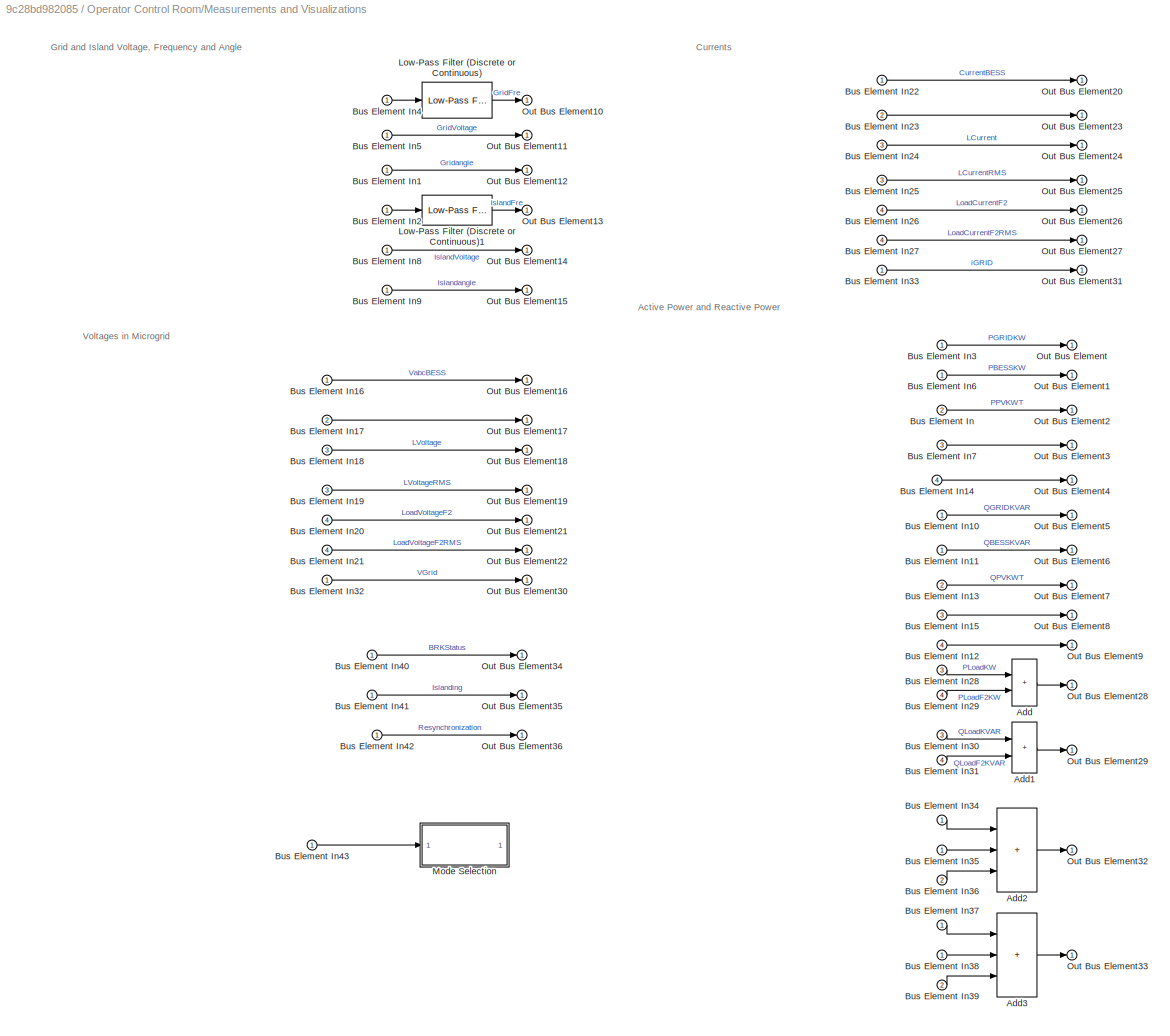
BLOCK [SubSystem] Operator Control Room/Measurements and Visualizations 
BLOCK [Sum] Operator Control Room/Measurements and Visualizations /Add
  IconShape = rectangular
BLOCK [Sum] Operator Control Room/Measurements and Visualizations /Add1
  IconShape = rectangular
BLOCK [Sum] Operator Control Room/Measurements and Visualizations /Add2
  IconShape = rectangular
  Inputs = +++
BLOCK [Sum] Operator Control Room/Measurements and Visualizations /Add3
  IconShape = rectangular
  Inputs = +++
BLOCK [Inport] Operator Control Room/Measurements and Visualizations /Bus Element In
  Port = 2
BLOCK [Inport] Operator Control Room/Measurements and Visualizations /Bus Element In1
BLOCK [Inport] Operator Control Room/Measurements and Visualizations /Bus Element In10
BLOCK [Inport] Operator Control Room/Measurements and Visualizations /Bus Element In11
BLOCK [Inport] Operator Control Room/Measurements and Visualizations /Bus Element In12
  Port = 4
BLOCK [Inport] Operator Control Room/Measurements and Visualizations /Bus Element In13
  Port = 2
BLOCK [Inport] Operator Control Room/Measurements and Visualizations /Bus Element In14
  Port = 4
BLOCK [Inport] Operator Control Room/Measurements and Visualizations /Bus Element In15
  Port = 3
BLOCK [Inport] Operator Control Room/Measurements and Visualizations /Bus Element In16
BLOCK [Inport] Operator Control Room/Measurements and Visualizations /Bus Element In17
  Port = 2
BLOCK [Inport] Operator Control Room/Measurements and Visualizations /Bus Element In18
  Port = 3
BLOCK [Inport] Operator Control Room/Measurements and Visualizations /Bus Element In19
  Port = 3
BLOCK [Inport] Operator Control Room/Measurements and Visualizations /Bus Element In2
BLOCK [Inport] Operator Control Room/Measurements and Visualizations /Bus Element In20
  Port = 4
BLOCK [Inport] Operator Control Room/Measurements and Visualizations /Bus Element In21
  Port = 4
BLOCK [Inport] Operator Control Room/Measurements and Visualizations /Bus Element In22
BLOCK [Inport] Operator Control Room/Measurements and Visualizations /Bus Element In23
  Port = 2
BLOCK [Inport] Operator Control Room/Measurements and Visualizations /Bus Element In24
  Port = 3
BLOCK [Inport] Operator Control Room/Measurements and Visualizations /Bus Element In25
  Port = 3
BLOCK [Inport] Operator Control Room/Measurements and Visualizations /Bus Element In26
  Port = 4
BLOCK [Inport] Operator Control Room/Measurements and Visualizations /Bus Element In27
  Port = 4
BLOCK [Inport] Operator Control Room/Measurements and Visualizations /Bus Element In28
  Port = 3
BLOCK [Inport] Operator Control Room/Measurements and Visualizations /Bus Element In29
  Port = 4
BLOCK [Inport] Operator Control Room/Measurements and Visualizations /Bus Element In3
BLOCK [Inport] Operator Control Room/Measurements and Visualizations /Bus Element In30
  Port = 3
BLOCK [Inport] Operator Control Room/Measurements and Visualizations /Bus Element In31
  Port = 4
BLOCK [Inport] Operator Control Room/Measurements and Visualizations /Bus Element In32
BLOCK [Inport] Operator Control Room/Measurements and Visualizations /Bus Element In33
BLOCK [Inport] Operator Control Room/Measurements and Visualizations /Bus Element In34
BLOCK [Inport] Operator Control Room/Measurements and Visualizations /Bus Element In35
BLOCK [Inport] Operator Control Room/Measurements and Visualizations /Bus Element In36
  Port = 2
BLOCK [Inport] Operator Control Room/Measurements and Visualizations /Bus Element In37
BLOCK [Inport] Operator Control Room/Measurements and Visualizations /Bus Element In38
BLOCK [Inport] Operator Control Room/Measurements and Visualizations /Bus Element In39
  Port = 2
BLOCK [Inport] Operator Control Room/Measurements and Visualizations /Bus Element In4
BLOCK [Inport] Operator Control Room/Measurements and Visualizations /Bus Element In40
BLOCK [Inport] Operator Control Room/Measurements and Visualizations /Bus Element In41
BLOCK [Inport] Operator Control Room/Measurements and Visualizations /Bus Element In42
BLOCK [Inport] Operator Control Room/Measurements and Visualizations /Bus Element In43
BLOCK [Inport] Operator Control Room/Measurements and Visualizations /Bus Element In5
BLOCK [Inport] Operator Control Room/Measurements and Visualizations /Bus Element In6
BLOCK [Inport] Operator Control Room/Measurements and Visualizations /Bus Element In7
  Port = 3
BLOCK [Inport] Operator Control Room/Measurements and Visualizations /Bus Element In8
BLOCK [Inport] Operator Control Room/Measurements and Visualizations /Bus Element In9
BLOCK [Reference] Operator Control Room/Measurements and Visualizations /Low-Pass Filter (Discrete or Continuous)  REF=eeGeneralControl/Low-Pass Filter
(Discrete or Continuous)
  LibrarySourceBlock = ee_sl_lib/General Control/Low-Pass Filter\n(Discrete or Continuous)
  SourceBlock = eeGeneralControl/Low-Pass Filter\n(Discrete or Continuous)
  SourceType = Low-Pass Filter (Discrete or Continuous)
BLOCK [Reference] Operator Control Room/Measurements and Visualizations /Low-Pass Filter (Discrete or Continuous)1  REF=eeGeneralControl/Low-Pass Filter
(Discrete or Continuous)
  LibrarySourceBlock = ee_sl_lib/General Control/Low-Pass Filter\n(Discrete or Continuous)
  SourceBlock = eeGeneralControl/Low-Pass Filter\n(Discrete or Continuous)
  SourceType = Low-Pass Filter (Discrete or Continuous)
BLOCK [SubSystem] Operator Control Room/Measurements and Visualizations /Mode Selection
BLOCK [Inport] Operator Control Room/Measurements and Visualizations /Mode Selection/Mode
BLOCK [Reference] Operator Control Room/Measurements and Visualizations /Mode Selection/Mode-0  REF=simulink/Logic and Bit
Operations/Compare
To Constant
  SourceBlock = simulink/Logic and Bit\nOperations/Compare\nTo Constant
  SourceType = Compare To Constant
BLOCK [Reference] Operator Control Room/Measurements and Visualizations /Mode Selection/Mode-1  REF=simulink/Logic and Bit
Operations/Compare
To Constant
  SourceBlock = simulink/Logic and Bit\nOperations/Compare\nTo Constant
  SourceType = Compare To Constant
BLOCK [Reference] Operator Control Room/Measurements and Visualizations /Mode Selection/Mode-2  REF=simulink/Logic and Bit
Operations/Compare
To Constant
  SourceBlock = simulink/Logic and Bit\nOperations/Compare\nTo Constant
  SourceType = Compare To Constant
BLOCK [Reference] Operator Control Room/Measurements and Visualizations /Mode Selection/Mode-3  REF=simulink/Logic and Bit
Operations/Compare
To Constant
  SourceBlock = simulink/Logic and Bit\nOperations/Compare\nTo Constant
  SourceType = Compare To Constant
BLOCK [Reference] Operator Control Room/Measurements and Visualizations /Mode Selection/Mode-4  REF=simulink/Logic and Bit
Operations/Compare
To Constant
  SourceBlock = simulink/Logic and Bit\nOperations/Compare\nTo Constant
  SourceType = Compare To Constant
BLOCK [Reference] Operator Control Room/Measurements and Visualizations /Mode Selection/Mode-5  REF=simulink/Logic and Bit
Operations/Compare
To Constant
  SourceBlock = simulink/Logic and Bit\nOperations/Compare\nTo Constant
  SourceType = Compare To Constant
BLOCK [Scope] Operator Control Room/Measurements and Visualizations /Mode Selection/Scope
  ActiveDisplayYMaximum = 1.125
  ActiveDisplayYMinimum = -0.125
  DataLoggingVariableName = ScopeData3
  Floating = off
  GraphicalSettings = {"GraphicalSettings":{"LegacySettings":true,"Style":{"Style":{"AxesColor":"[0 0 0]","ChannelNames":[""],"ColorOrder":"[1 1 0.0666666666666667;0.0745098039215686 0.623529411764706 1;1 0.411764705882353 0.16078431372549;0.392156862745098 0.831372549019608 0.0745098039215686;0.717647058823529 0.274509803921569 1;0.0588235294117647 1 1;1 0.0745098039215686 0.650980392156863]","CurrentConfiguration":"e...<+358ch>
  MultipleDisplayCache = [{"MaxYLimMag":1.125,"MaxYLimReal":1.125,"MinYLimMag":0,"MinYLimReal":-0.125,"PlotAsMagnitudePhase":false,"ShowGrid":true,"ShowLegend":false,"Title":"%<SignalLabel>","YLabel":""}]
  NumInputPorts = 6
  WasSavedAsWebScope = on
BLOCK [Outport] Operator Control Room/Measurements and Visualizations /Out Bus Element
BLOCK [Outport] Operator Control Room/Measurements and Visualizations /Out Bus Element1
BLOCK [Outport] Operator Control Room/Measurements and Visualizations /Out Bus Element10
BLOCK [Outport] Operator Control Room/Measurements and Visualizations /Out Bus Element11
BLOCK [Outport] Operator Control Room/Measurements and Visualizations /Out Bus Element12
BLOCK [Outport] Operator Control Room/Measurements and Visualizations /Out Bus Element13
BLOCK [Outport] Operator Control Room/Measurements and Visualizations /Out Bus Element14
BLOCK [Outport] Operator Control Room/Measurements and Visualizations /Out Bus Element15
BLOCK [Outport] Operator Control Room/Measurements and Visualizations /Out Bus Element16
BLOCK [Outport] Operator Control Room/Measurements and Visualizations /Out Bus Element17
BLOCK [Outport] Operator Control Room/Measurements and Visualizations /Out Bus Element18
BLOCK [Outport] Operator Control Room/Measurements and Visualizations /Out Bus Element19
BLOCK [Outport] Operator Control Room/Measurements and Visualizations /Out Bus Element2
BLOCK [Outport] Operator Control Room/Measurements and Visualizations /Out Bus Element20
BLOCK [Outport] Operator Control Room/Measurements and Visualizations /Out Bus Element21
BLOCK [Outport] Operator Control Room/Measurements and Visualizations /Out Bus Element22
BLOCK [Outport] Operator Control Room/Measurements and Visualizations /Out Bus Element23
BLOCK [Outport] Operator Control Room/Measurements and Visualizations /Out Bus Element24
BLOCK [Outport] Operator Control Room/Measurements and Visualizations /Out Bus Element25
BLOCK [Outport] Operator Control Room/Measurements and Visualizations /Out Bus Element26
BLOCK [Outport] Operator Control Room/Measurements and Visualizations /Out Bus Element27
BLOCK [Outport] Operator Control Room/Measurements and Visualizations /Out Bus Element28
BLOCK [Outport] Operator Control Room/Measurements and Visualizations /Out Bus Element29
BLOCK [Outport] Operator Control Room/Measurements and Visualizations /Out Bus Element3
BLOCK [Outport] Operator Control Room/Measurements and Visualizations /Out Bus Element30
BLOCK [Outport] Operator Control Room/Measurements and Visualizations /Out Bus Element31
BLOCK [Outport] Operator Control Room/Measurements and Visualizations /Out Bus Element32
BLOCK [Outport] Operator Control Room/Measurements and Visualizations /Out Bus Element33
BLOCK [Outport] Operator Control Room/Measurements and Visualizations /Out Bus Element34
BLOCK [Outport] Operator Control Room/Measurements and Visualizations /Out Bus Element35
BLOCK [Outport] Operator Control Room/Measurements and Visualizations /Out Bus Element36
BLOCK [Outport] Operator Control Room/Measurements and Visualizations /Out Bus Element4
BLOCK [Outport] Operator Control Room/Measurements and Visualizations /Out Bus Element5
BLOCK [Outport] Operator Control Room/Measurements and Visualizations /Out Bus Element6
BLOCK [Outport] Operator Control Room/Measurements and Visualizations /Out Bus Element7
BLOCK [Outport] Operator Control Room/Measurements and Visualizations /Out Bus Element8
BLOCK [Outport] Operator Control Room/Measurements and Visualizations /Out Bus Element9
BLOCK [SubSystem] Operator Control Room/Microgrid Control
BLOCK [Constant] Operator Control Room/Microgrid Control/Active Power Reference for BESS
  Value = 0.3975950876871745
BLOCK [Step] Operator Control Room/Microgrid Control/Black Start
  SampleTime = Ts
  Time = 100
BLOCK [Step] Operator Control Room/Microgrid Control/CB2DisconnectorCommand1
  SampleTime = Ts
  Time = ControlRoom.BRKControl
BLOCK [Constant] Operator Control Room/Microgrid Control/Constant
  Value = 0
BLOCK [DataTypeConversion] Operator Control Room/Microgrid Control/Data Type Conversion1
  OutDataTypeStr = double
  RndMeth = Floor
  SaturateOnIntegerOverflow = off
BLOCK [Constant] Operator Control Room/Microgrid Control/Feeder Switch
BLOCK [Step] Operator Control Room/Microgrid Control/Feeder Switching WithTime
  SampleTime = Ts
  Time = ControlRoom.FeederSwitchTime
BLOCK [Constant] Operator Control Room/Microgrid Control/Frequency Reference for BESS
  Value = 60
BLOCK [Inport] Operator Control Room/Microgrid Control/MG Substation
BLOCK [Logic] Operator Control Room/Microgrid Control/NOT
  AllPortsSameDT = off
  IconShape = distinctive
  Operator = NOT
  OutDataTypeStr = boolean
BLOCK [Logic] Operator Control Room/Microgrid Control/OR
  AllPortsSameDT = off
  Operator = OR
  OutDataTypeStr = boolean
BLOCK [Logic] Operator Control Room/Microgrid Control/OR1
  AllPortsSameDT = off
  Operator = OR
  OutDataTypeStr = boolean
BLOCK [Logic] Operator Control Room/Microgrid Control/OR2
  AllPortsSameDT = off
  Operator = OR
  OutDataTypeStr = boolean
BLOCK [Outport] Operator Control Room/Microgrid Control/Out Bus Element
BLOCK [Outport] Operator Control Room/Microgrid Control/Out Bus Element1
BLOCK [Outport] Operator Control Room/Microgrid Control/Out Bus Element10
  Port = 2
BLOCK [Outport] Operator Control Room/Microgrid Control/Out Bus Element12
BLOCK [Outport] Operator Control Room/Microgrid Control/Out Bus Element2
BLOCK [Outport] Operator Control Room/Microgrid Control/Out Bus Element3
BLOCK [Outport] Operator Control Room/Microgrid Control/Out Bus Element4
BLOCK [Outport] Operator Control Room/Microgrid Control/Out Bus Element5
BLOCK [Outport] Operator Control Room/Microgrid Control/Out Bus Element6
BLOCK [Outport] Operator Control Room/Microgrid Control/Out Bus Element7
BLOCK [Outport] Operator Control Room/Microgrid Control/Out Bus Element8
BLOCK [Outport] Operator Control Room/Microgrid Control/Out Bus Element9
BLOCK [Constant] Operator Control Room/Microgrid Control/Planned Islanding Switch
  Value = 0
BLOCK [Step] Operator Control Room/Microgrid Control/PlannedIslandCommand
  SampleTime = Ts
  Time = ControlRoom.PlannedIsland
BLOCK [SubSystem] Operator Control Room/Microgrid Control/Protection & Power Tracking
BLOCK [Inport] Operator Control Room/Microgrid Control/Protection & Power Tracking/Bus Element In
BLOCK [Inport] Operator Control Room/Microgrid Control/Protection & Power Tracking/Bus Element In1
BLOCK [Inport] Operator Control Room/Microgrid Control/Protection & Power Tracking/Bus Element In2
BLOCK [Inport] Operator Control Room/Microgrid Control/Protection & Power Tracking/Bus Element In3
BLOCK [Inport] Operator Control Room/Microgrid Control/Protection & Power Tracking/Bus Element In4
BLOCK [Constant] Operator Control Room/Microgrid Control/Protection & Power Tracking/Constant
  OutDataTypeStr = boolean
  Value = 0
BLOCK [DataTypeConversion] Operator Control Room/Microgrid Control/Protection & Power Tracking/Data Type Conversion
  OutDataTypeStr = boolean
  RndMeth = Floor
  SaturateOnIntegerOverflow = off
BLOCK [Delay] Operator Control Room/Microgrid Control/Protection & Power Tracking/Delay
  DelayLength = 200
  InputPortMap = u0
  SampleTime = 1000*Ts
BLOCK [SubSystem] Operator Control Room/Microgrid Control/Protection & Power Tracking/Overcurrent relay
  SystemSampleTime = relay1.sampleTime
BLOCK [DataTypeConversion] Operator Control Room/Microgrid Control/Protection & Power Tracking/Overcurrent relay/Data Type Conversion
  OutDataTypeStr = double
  RndMeth = Floor
  SaturateOnIntegerOverflow = off
BLOCK [Delay] Operator Control Room/Microgrid Control/Protection & Power Tracking/Overcurrent relay/Delay
  DelayLength = 1
  InputPortMap = u0
BLOCK [SubSystem] Operator Control Room/Microgrid Control/Protection & Power Tracking/Overcurrent relay/Earth Protection Unit
BLOCK [Reference] Operator Control Room/Microgrid Control/Protection & Power Tracking/Overcurrent relay/Earth Protection Unit/Compare To Constant1  REF=simulink/Logic and Bit
Operations/Compare
To Constant
  SourceBlock = simulink/Logic and Bit\nOperations/Compare\nTo Constant
  SourceType = Compare To Constant
BLOCK [Constant] Operator Control Room/Microgrid Control/Protection & Power Tracking/Overcurrent relay/Earth Protection Unit/Constant10
  OutDataTypeStr = boolean
  Value = 0
BLOCK [Constant] Operator Control Room/Microgrid Control/Protection & Power Tracking/Overcurrent relay/Earth Protection Unit/Constant7
  OutDataTypeStr = double
  Value = 0
BLOCK [DataTypeConversion] Operator Control Room/Microgrid Control/Protection & Power Tracking/Overcurrent relay/Earth Protection Unit/Data Type Conversion1
  NameLocation = right
  OutDataTypeStr = double
  RndMeth = Floor
  SaturateOnIntegerOverflow = off
BLOCK [Delay] Operator Control Room/Microgrid Control/Protection & Power Tracking/Overcurrent relay/Earth Protection Unit/Delay1
  DelayLength = 1
  InputPortMap = u0
  NameLocation = top
BLOCK [Gain] Operator Control Room/Microgrid Control/Protection & Power Tracking/Overcurrent relay/Earth Protection Unit/Gain1
  Gain = 1/(ethPickUp)
BLOCK [RelationalOperator] Operator Control Room/Microgrid Control/Protection & Power Tracking/Overcurrent relay/Earth Protection Unit/GreaterThan2
  InputSameDT = off
  Operator = <=
  OutDataTypeStr = boolean
  RndMeth = Simplest
BLOCK [Reference] Operator Control Room/Microgrid Control/Protection & Power Tracking/Overcurrent relay/Earth Protection Unit/Integrator (Discrete or Continuous)1  REF=eeGeneralControl/Integrator
(Discrete or Continuous)
  SourceBlock = eeGeneralControl/Integrator\n(Discrete or Continuous)
  SourceType = Integrator (Discrete or Continuous)
BLOCK [Inport] Operator Control Room/Microgrid Control/Protection & Power Tracking/Overcurrent relay/Earth Protection Unit/Mag
BLOCK [SubSystem] Operator Control Room/Microgrid Control/Protection & Power Tracking/Overcurrent relay/Earth Protection Unit/Operating Time
BLOCK [Constant] Operator Control Room/Microgrid Control/Protection & Power Tracking/Overcurrent relay/Earth Protection Unit/Operating Time/Constant1
  Value = ethTimeSetting
BLOCK [Constant] Operator Control Room/Microgrid Control/Protection & Power Tracking/Overcurrent relay/Earth Protection Unit/Operating Time/Constant11
  Value = relayCharacteristicEarth
BLOCK [Constant] Operator Control Room/Microgrid Control/Protection & Power Tracking/Overcurrent relay/Earth Protection Unit/Operating Time/Constant6
  Value = relayCharacteristicEarth
BLOCK [SubSystem] Operator Control Room/Microgrid Control/Protection & Power Tracking/Overcurrent relay/Earth Protection Unit/Operating Time/Lookup table
BLOCK [Lookup_n-D] Operator Control Room/Microgrid Control/Protection & Power Tracking/Overcurrent relay/Earth Protection Unit/Operating Time/Lookup table/2-D Lookup Table1
  BreakpointsForDimension1 = currentEarth
  BreakpointsForDimension2 = tmsEarth
  ExtrapMethod = Cubic spline
  InputPortMap = u0,u1
  InternalRulePriority = Speed
  InterpMethod = Cubic spline
  RndMeth = Simplest
  Table = topEarth
BLOCK [Constant] Operator Control Room/Microgrid Control/Protection & Power Tracking/Overcurrent relay/Earth Protection Unit/Operating Time/Lookup table/Constant13
  Value = ethTimeSetting
BLOCK [Constant] Operator Control Room/Microgrid Control/Protection & Power Tracking/Overcurrent relay/Earth Protection Unit/Operating Time/Lookup table/Constant16
  Value = topEarthActual
BLOCK [Constant] Operator Control Room/Microgrid Control/Protection & Power Tracking/Overcurrent relay/Earth Protection Unit/Operating Time/Lookup table/Constant17
  Value = relayCharacteristicEarth
BLOCK [Inport] Operator Control Room/Microgrid Control/Protection & Power Tracking/Overcurrent relay/Earth Protection Unit/Operating Time/Lookup table/Current
BLOCK [Outport] Operator Control Room/Microgrid Control/Protection & Power Tracking/Overcurrent relay/Earth Protection Unit/Operating Time/Lookup table/Oeprating Time
BLOCK [Switch] Operator Control Room/Microgrid Control/Protection & Power Tracking/Overcurrent relay/Earth Protection Unit/Operating Time/Lookup table/Switch4
  InputSameDT = off
  SaturateOnIntegerOverflow = off
  Threshold = 8
BLOCK [Outport] Operator Control Room/Microgrid Control/Protection & Power Tracking/Overcurrent relay/Earth Protection Unit/Operating Time/Operating Time
BLOCK [Inport] Operator Control Room/Microgrid Control/Protection & Power Tracking/Overcurrent relay/Earth Protection Unit/Operating Time/Plug Setting
  Port = 2
BLOCK [SubSystem] Operator Control Room/Microgrid Control/Protection & Power Tracking/Overcurrent relay/Earth Protection Unit/Operating Time/Standard Characteristics
  ErrorFcn = Stateflow.Translate.translate
  PermitHierarchicalResolution = ExplicitOnly
  SFBlockType = MATLAB Function
  TreatAsAtomicUnit = on
BLOCK [Demux] Operator Control Room/Microgrid Control/Protection & Power Tracking/Overcurrent relay/Earth Protection Unit/Operating Time/Standard Characteristics/ Demux 
  Outputs = 1
BLOCK [S-Function] Operator Control Room/Microgrid Control/Protection & Power Tracking/Overcurrent relay/Earth Protection Unit/Operating Time/Standard Characteristics/ SFunction 
  EnableBusSupport = off
  FunctionName = sf_sfun
  PortCounts = [3 2]
  SFcnIsStateOwnerBlock = off
  SFunctionDeploymentMode = off
  Tag = Stateflow S-Function 3
BLOCK [Terminator] Operator Control Room/Microgrid Control/Protection & Power Tracking/Overcurrent relay/Earth Protection Unit/Operating Time/Standard Characteristics/ Terminator 
BLOCK [Outport] Operator Control Room/Microgrid Control/Protection & Power Tracking/Overcurrent relay/Earth Protection Unit/Operating Time/Standard Characteristics/operatingTime
BLOCK [Inport] Operator Control Room/Microgrid Control/Protection & Power Tracking/Overcurrent relay/Earth Protection Unit/Operating Time/Standard Characteristics/plugSetting
BLOCK [Inport] Operator Control Room/Microgrid Control/Protection & Power Tracking/Overcurrent relay/Earth Protection Unit/Operating Time/Standard Characteristics/relayCharacteristic
  Port = 3
BLOCK [Inport] Operator Control Room/Microgrid Control/Protection & Power Tracking/Overcurrent relay/Earth Protection Unit/Operating Time/Standard Characteristics/timeSetting
  Port = 2
BLOCK [Switch] Operator Control Room/Microgrid Control/Protection & Power Tracking/Overcurrent relay/Earth Protection Unit/Operating Time/Switch2
  InputSameDT = off
  SaturateOnIntegerOverflow = off
  Threshold = 7
BLOCK [Inport] Operator Control Room/Microgrid Control/Protection & Power Tracking/Overcurrent relay/Earth Protection Unit/Operating Time/Zero Sequence Current
BLOCK [Inport] Operator Control Room/Microgrid Control/Protection & Power Tracking/Overcurrent relay/Earth Protection Unit/Phi
  Port = 2
BLOCK [Reference] Operator Control Room/Microgrid Control/Protection & Power Tracking/Overcurrent relay/Earth Protection Unit/S-R Flip-Flop2  REF=simulink_extras/Flip Flops/S-R
Flip-Flop
  SourceBlock = simulink_extras/Flip Flops/S-R\nFlip-Flop
  SourceType = SRFlipFlop
BLOCK [Scope] Operator Control Room/Microgrid Control/Protection & Power Tracking/Overcurrent relay/Earth Protection Unit/Scope
  ActiveDisplayYMaximum = 1.4E-11
  ActiveDisplayYMinimum = -2E-12
  DataLoggingVariableName = ScopeData3
  Floating = off
  GraphicalSettings = {"GraphicalSettings":{"LegacySettings":true,"Style":{"Style":{"AxesColor":"[0 0 0]","ChannelNames":[""],"ColorOrder":"[1 1 0.0666666666666667;0.0745098039215686 0.623529411764706 1;1 0.411764705882353 0.16078431372549;0.392156862745098 0.831372549019608 0.0745098039215686;0.717647058823529 0.274509803921569 1;0.0588235294117647 1 1;1 0.0745098039215686 0.650980392156863]","CurrentConfiguration":"e...<+343ch>
  MultipleDisplayCache = [{"MaxYLimMag":1.4E-11,"MaxYLimReal":1.4E-11,"MinYLimMag":0,"MinYLimReal":-2E-12,"PlotAsMagnitudePhase":false,"ShowGrid":true,"ShowLegend":false,"Title":"%<SignalLabel>","YLabel":""}]
  NumInputPorts = 1
  WasSavedAsWebScope = on
BLOCK [Terminator] Operator Control Room/Microgrid Control/Protection & Power Tracking/Overcurrent relay/Earth Protection Unit/Terminator3
BLOCK [Outport] Operator Control Room/Microgrid Control/Protection & Power Tracking/Overcurrent relay/Earth Protection Unit/Trip Signal
BLOCK [SubSystem] Operator Control Room/Microgrid Control/Protection & Power Tracking/Overcurrent relay/Earth Protection Unit/Zero Sequence Current
BLOCK [Sum] Operator Control Room/Microgrid Control/Protection & Power Tracking/Overcurrent relay/Earth Protection Unit/Zero Sequence Current/Add
  IconShape = rectangular
  Inputs = +++
BLOCK [ComplexToMagnitudeAngle] Operator Control Room/Microgrid Control/Protection & Power Tracking/Overcurrent relay/Earth Protection Unit/Zero Sequence Current/Complex to Magnitude-Angle
  Output = Magnitude
BLOCK [Demux] Operator Control Room/Microgrid Control/Protection & Power Tracking/Overcurrent relay/Earth Protection Unit/Zero Sequence Current/Demux1
  Outputs = 3
BLOCK [Gain] Operator Control Room/Microgrid Control/Protection & Power Tracking/Overcurrent relay/Earth Protection Unit/Zero Sequence Current/Gain
  Gain = 1/3
BLOCK [Outport] Operator Control Room/Microgrid Control/Protection & Power Tracking/Overcurrent relay/Earth Protection Unit/Zero Sequence Current/I0
BLOCK [Inport] Operator Control Room/Microgrid Control/Protection & Power Tracking/Overcurrent relay/Earth Protection Unit/Zero Sequence Current/Mag
BLOCK [MagnitudeAngleToComplex] Operator Control Room/Microgrid Control/Protection & Power Tracking/Overcurrent relay/Earth Protection Unit/Zero Sequence Current/Magnitude-Angle to Complex
BLOCK [Inport] Operator Control Room/Microgrid Control/Protection & Power Tracking/Overcurrent relay/Earth Protection Unit/Zero Sequence Current/Phi
  Port = 2
BLOCK [Gain] Operator Control Room/Microgrid Control/Protection & Power Tracking/Overcurrent relay/Enable
  Gain = protectionEnable
BLOCK [SubSystem] Operator Control Room/Microgrid Control/Protection & Power Tracking/Overcurrent relay/Fourier Analysis
BLOCK [Sum] Operator Control Room/Microgrid Control/Protection & Power Tracking/Overcurrent relay/Fourier Analysis/Add1
  IconShape = rectangular
  Inputs = -+
BLOCK [Outport] Operator Control Room/Microgrid Control/Protection & Power Tracking/Overcurrent relay/Fourier Analysis/Angle
  Port = 2
BLOCK [Inport] Operator Control Room/Microgrid Control/Protection & Power Tracking/Overcurrent relay/Fourier Analysis/Current
BLOCK [Delay] Operator Control Room/Microgrid Control/Protection & Power Tracking/Overcurrent relay/Fourier Analysis/Delay3
  DelayLength = 1
  InputPortMap = u0
BLOCK [Reference] Operator Control Room/Microgrid Control/Protection & Power Tracking/Overcurrent relay/Fourier Analysis/Fourier Analysis2  REF=eeGeneralControl/Fourier Analysis
  SourceBlock = eeGeneralControl/Fourier Analysis
  SourceType = Fourier Analysis
BLOCK [Gain] Operator Control Room/Microgrid Control/Protection & Power Tracking/Overcurrent relay/Fourier Analysis/Gain
  Gain = 1/sqrt(2)
BLOCK [Outport] Operator Control Room/Microgrid Control/Protection & Power Tracking/Overcurrent relay/Fourier Analysis/Magnitude
BLOCK [Reference] Operator Control Room/Microgrid Control/Protection & Power Tracking/Overcurrent relay/Fourier Analysis/Moving Average  REF=eeGeneralControl/Moving Average
  SourceBlock = eeGeneralControl/Moving Average
  SourceType = Moving Average
BLOCK [Scope] Operator Control Room/Microgrid Control/Protection & Power Tracking/Overcurrent relay/Fourier Analysis/Scope
  ActiveDisplayYMaximum = 5.15314
  ActiveDisplayYMinimum = -0.51657
  DataLoggingVariableName = ScopeData2
  Floating = off
  GraphicalSettings = {"GraphicalSettings":{"LegacySettings":true,"Style":{"AxesScalingProperties":{"ScaleAxesLimitsAtStop":false},"Style":{"AxesColor":"[0 0 0]","ChannelNames":[""],"ColorOrder":"[1 1 0.0666666666666667;0.0745098039215686 0.623529411764706 1;1 0.411764705882353 0.16078431372549;0.392156862745098 0.831372549019608 0.0745098039215686;0.717647058823529 0.274509803921569 1;0.0588235294117647 1 1;1 0.074509...<+405ch>
  MultipleDisplayCache = [{"MaxYLimMag":5.15314,"MaxYLimReal":5.15314,"MinYLimMag":0,"MinYLimReal":-0.51657,"PlotAsMagnitudePhase":false,"ShowGrid":true,"ShowLegend":false,"Title":"%<SignalLabel>","YLabel":""}]
  NumInputPorts = 1
  WasSavedAsWebScope = on
BLOCK [From] Operator Control Room/Microgrid Control/Protection & Power Tracking/Overcurrent relay/From
  GotoTag = mag
BLOCK [From] Operator Control Room/Microgrid Control/Protection & Power Tracking/Overcurrent relay/From1
  GotoTag = Rph
BLOCK [From] Operator Control Room/Microgrid Control/Protection & Power Tracking/Overcurrent relay/From2
  GotoTag = mag
BLOCK [From] Operator Control Room/Microgrid Control/Protection & Power Tracking/Overcurrent relay/From3
  GotoTag = iphi
BLOCK [From] Operator Control Room/Microgrid Control/Protection & Power Tracking/Overcurrent relay/From4
  GotoTag = Rer
BLOCK [Goto] Operator Control Room/Microgrid Control/Protection & Power Tracking/Overcurrent relay/Goto
  GotoTag = Rph
BLOCK [Goto] Operator Control Room/Microgrid Control/Protection & Power Tracking/Overcurrent relay/Goto1
  GotoTag = mag
BLOCK [Goto] Operator Control Room/Microgrid Control/Protection & Power Tracking/Overcurrent relay/Goto2
  GotoTag = iphi
BLOCK [Goto] Operator Control Room/Microgrid Control/Protection & Power Tracking/Overcurrent relay/Goto3
  GotoTag = Rer
BLOCK [Inport] Operator Control Room/Microgrid Control/Protection & Power Tracking/Overcurrent relay/Inport
BLOCK [Mux] Operator Control Room/Microgrid Control/Protection & Power Tracking/Overcurrent relay/Mux1
  DisplayOption = bar
  Inputs = 2
BLOCK [Logic] Operator Control Room/Microgrid Control/Protection & Power Tracking/Overcurrent relay/OR1
  AllPortsSameDT = off
  IconShape = distinctive
  Operator = OR
  OutDataTypeStr = boolean
BLOCK [SubSystem] Operator Control Room/Microgrid Control/Protection & Power Tracking/Overcurrent relay/Phase Protection Unit
BLOCK [Reference] Operator Control Room/Microgrid Control/Protection & Power Tracking/Overcurrent relay/Phase Protection Unit/Compare To Constant  REF=simulink/Logic and Bit
Operations/Compare
To Constant
  SourceBlock = simulink/Logic and Bit\nOperations/Compare\nTo Constant
  SourceType = Compare To Constant
BLOCK [Constant] Operator Control Room/Microgrid Control/Protection & Power Tracking/Overcurrent relay/Phase Protection Unit/Constant2
  OutDataTypeStr = boolean
  Value = 0
BLOCK [Constant] Operator Control Room/Microgrid Control/Protection & Power Tracking/Overcurrent relay/Phase Protection Unit/Constant4
  OutDataTypeStr = boolean
  Value = 0
BLOCK [Constant] Operator Control Room/Microgrid Control/Protection & Power Tracking/Overcurrent relay/Phase Protection Unit/Constant8
  OutDataTypeStr = double
  Value = 0
BLOCK [Inport] Operator Control Room/Microgrid Control/Protection & Power Tracking/Overcurrent relay/Phase Protection Unit/Current
BLOCK [DataTypeConversion] Operator Control Room/Microgrid Control/Protection & Power Tracking/Overcurrent relay/Phase Protection Unit/Data Type Conversion2
  NameLocation = right
  OutDataTypeStr = double
  RndMeth = Floor
  SaturateOnIntegerOverflow = off
BLOCK [Delay] Operator Control Room/Microgrid Control/Protection & Power Tracking/Overcurrent relay/Phase Protection Unit/Delay2
  DelayLength = 1
  InputPortMap = u0
BLOCK [Demux] Operator Control Room/Microgrid Control/Protection & Power Tracking/Overcurrent relay/Phase Protection Unit/Demux
  Outputs = 3
BLOCK [From] Operator Control Room/Microgrid Control/Protection & Power Tracking/Overcurrent relay/Phase Protection Unit/From
  GotoTag = Rph
BLOCK [Gain] Operator Control Room/Microgrid Control/Protection & Power Tracking/Overcurrent relay/Phase Protection Unit/Gain2
  Gain = 1/(phPickUp)
BLOCK [Goto] Operator Control Room/Microgrid Control/Protection & Power Tracking/Overcurrent relay/Phase Protection Unit/Goto
  GotoTag = Rph
BLOCK [RelationalOperator] Operator Control Room/Microgrid Control/Protection & Power Tracking/Overcurrent relay/Phase Protection Unit/GreaterThan
  InputSameDT = off
  Operator = <=
  OutDataTypeStr = boolean
  RndMeth = Simplest
BLOCK [Reference] Operator Control Room/Microgrid Control/Protection & Power Tracking/Overcurrent relay/Phase Protection Unit/Integrator (Discrete or Continuous)  REF=eeGeneralControl/Integrator
(Discrete or Continuous)
  SourceBlock = eeGeneralControl/Integrator\n(Discrete or Continuous)
  SourceType = Integrator (Discrete or Continuous)
BLOCK [Logic] Operator Control Room/Microgrid Control/Protection & Power Tracking/Overcurrent relay/Phase Protection Unit/OR
  AllPortsSameDT = off
  IconShape = distinctive
  Inputs = 3
  Operator = OR
  OutDataTypeStr = boolean
BLOCK [SubSystem] Operator Control Room/Microgrid Control/Protection & Power Tracking/Overcurrent relay/Phase Protection Unit/Operating time 
BLOCK [Constant] Operator Control Room/Microgrid Control/Protection & Power Tracking/Overcurrent relay/Phase Protection Unit/Operating time /Constant
  Value = phTimeSetting
  VectorParams1D = off
BLOCK [Constant] Operator Control Room/Microgrid Control/Protection & Power Tracking/Overcurrent relay/Phase Protection Unit/Operating time /Constant3
  Value = relayCharacteristicPhase
BLOCK [Constant] Operator Control Room/Microgrid Control/Protection & Power Tracking/Overcurrent relay/Phase Protection Unit/Operating time /Constant9
  Value = relayCharacteristicPhase
BLOCK [Inport] Operator Control Room/Microgrid Control/Protection & Power Tracking/Overcurrent relay/Phase Protection Unit/Operating time /Current
BLOCK [SubSystem] Operator Control Room/Microgrid Control/Protection & Power Tracking/Overcurrent relay/Phase Protection Unit/Operating time /Lookup table 
BLOCK [Lookup_n-D] Operator Control Room/Microgrid Control/Protection & Power Tracking/Overcurrent relay/Phase Protection Unit/Operating time /Lookup table /2-D Lookup Table
  BreakpointsForDimension1 = currentPhase
  BreakpointsForDimension2 = tmsPhase
  ExtrapMethod = Cubic spline
  InputPortMap = u0,u1
  InternalRulePriority = Speed
  InterpMethod = Cubic spline
  RndMeth = Simplest
  Table = topPhase
BLOCK [Constant] Operator Control Room/Microgrid Control/Protection & Power Tracking/Overcurrent relay/Phase Protection Unit/Operating time /Lookup table /Constant12
  Value = phTimeSetting
  VectorParams1D = off
BLOCK [Constant] Operator Control Room/Microgrid Control/Protection & Power Tracking/Overcurrent relay/Phase Protection Unit/Operating time /Lookup table /Constant14
  Value = topPhaseActual
BLOCK [Constant] Operator Control Room/Microgrid Control/Protection & Power Tracking/Overcurrent relay/Phase Protection Unit/Operating time /Lookup table /Constant15
  Value = relayCharacteristicPhase
BLOCK [Inport] Operator Control Room/Microgrid Control/Protection & Power Tracking/Overcurrent relay/Phase Protection Unit/Operating time /Lookup table /Current
BLOCK [Demux] Operator Control Room/Microgrid Control/Protection & Power Tracking/Overcurrent relay/Phase Protection Unit/Operating time /Lookup table /Demux2
  Outputs = 3
BLOCK [MinMax] Operator Control Room/Microgrid Control/Protection & Power Tracking/Overcurrent relay/Phase Protection Unit/Operating time /Lookup table /Max
  Function = max
  Inputs = 3
BLOCK [Outport] Operator Control Room/Microgrid Control/Protection & Power Tracking/Overcurrent relay/Phase Protection Unit/Operating time /Lookup table /Operating Time
BLOCK [Switch] Operator Control Room/Microgrid Control/Protection & Power Tracking/Overcurrent relay/Phase Protection Unit/Operating time /Lookup table /Switch3
  InputSameDT = off
  SaturateOnIntegerOverflow = off
  Threshold = 8
BLOCK [SubSystem] Operator Control Room/Microgrid Control/Protection & Power Tracking/Overcurrent relay/Phase Protection Unit/Operating time /MATLAB Function
  ErrorFcn = Stateflow.Translate.translate
  PermitHierarchicalResolution = ExplicitOnly
  SFBlockType = MATLAB Function
  TreatAsAtomicUnit = on
BLOCK [Demux] Operator Control Room/Microgrid Control/Protection & Power Tracking/Overcurrent relay/Phase Protection Unit/Operating time /MATLAB Function/ Demux 
  Outputs = 1
BLOCK [S-Function] Operator Control Room/Microgrid Control/Protection & Power Tracking/Overcurrent relay/Phase Protection Unit/Operating time /MATLAB Function/ SFunction 
  EnableBusSupport = off
  FunctionName = sf_sfun
  PortCounts = [3 2]
  SFcnIsStateOwnerBlock = off
  SFunctionDeploymentMode = off
  Tag = Stateflow S-Function 4
BLOCK [Terminator] Operator Control Room/Microgrid Control/Protection & Power Tracking/Overcurrent relay/Phase Protection Unit/Operating time /MATLAB Function/ Terminator 
BLOCK [Outport] Operator Control Room/Microgrid Control/Protection & Power Tracking/Overcurrent relay/Phase Protection Unit/Operating time /MATLAB Function/operatingTime
BLOCK [Inport] Operator Control Room/Microgrid Control/Protection & Power Tracking/Overcurrent relay/Phase Protection Unit/Operating time /MATLAB Function/plugSetting
BLOCK [Inport] Operator Control Room/Microgrid Control/Protection & Power Tracking/Overcurrent relay/Phase Protection Unit/Operating time /MATLAB Function/relayCharacteristic
  Port = 3
BLOCK [Inport] Operator Control Room/Microgrid Control/Protection & Power Tracking/Overcurrent relay/Phase Protection Unit/Operating time /MATLAB Function/timeSetting
  Port = 2
BLOCK [Outport] Operator Control Room/Microgrid Control/Protection & Power Tracking/Overcurrent relay/Phase Protection Unit/Operating time /Operating Time
BLOCK [Switch] Operator Control Room/Microgrid Control/Protection & Power Tracking/Overcurrent relay/Phase Protection Unit/Operating time /Switch
  InputSameDT = off
  SaturateOnIntegerOverflow = off
  Threshold = 7
BLOCK [Inport] Operator Control Room/Microgrid Control/Protection & Power Tracking/Overcurrent relay/Phase Protection Unit/Operating time /plugSetting
  Port = 2
BLOCK [Reference] Operator Control Room/Microgrid Control/Protection & Power Tracking/Overcurrent relay/Phase Protection Unit/S-R Flip-Flop  REF=simulink_extras/Flip Flops/S-R
Flip-Flop
  SourceBlock = simulink_extras/Flip Flops/S-R\nFlip-Flop
  SourceType = SRFlipFlop
BLOCK [Switch] Operator Control Room/Microgrid Control/Protection & Power Tracking/Overcurrent relay/Phase Protection Unit/Switch1
  Criteria = u2 > Threshold
  InputSameDT = off
  OutDataTypeStr = boolean
  SaturateOnIntegerOverflow = off
BLOCK [Terminator] Operator Control Room/Microgrid Control/Protection & Power Tracking/Overcurrent relay/Phase Protection Unit/Terminator2
BLOCK [Outport] Operator Control Room/Microgrid Control/Protection & Power Tracking/Overcurrent relay/Phase Protection Unit/Trip Signal
BLOCK [Outport] Operator Control Room/Microgrid Control/Protection & Power Tracking/Overcurrent relay/Relay Status
  Port = 2
BLOCK [Outport] Operator Control Room/Microgrid Control/Protection & Power Tracking/Overcurrent relay/Trip Signal
BLOCK [Step] Operator Control Room/Microgrid Control/Protection & Power Tracking/Power Command
  SampleTime = Ts
  Time = 0.5
BLOCK [Step] Operator Control Room/Microgrid Control/Protection & Power Tracking/Power Command1
  After = -1
  SampleTime = Ts
  Time = 50
BLOCK [Outport] Operator Control Room/Microgrid Control/Protection & Power Tracking/Power tracking
BLOCK [Outport] Operator Control Room/Microgrid Control/Protection & Power Tracking/Relay
  Port = 2
BLOCK [Scope] Operator Control Room/Microgrid Control/Protection & Power Tracking/Scope
  ActiveDisplayYMaximum = 1
  ActiveDisplayYMinimum = -1
  DataLoggingVariableName = ScopeData3
  Floating = off
  GraphicalSettings = {"GraphicalSettings":{"LegacySettings":true,"Style":{"Style":{"AxesColor":"[0 0 0]","ChannelNames":[""],"ColorOrder":"[1 1 0.0666666666666667;0.0745098039215686 0.623529411764706 1;1 0.411764705882353 0.16078431372549;0.392156862745098 0.831372549019608 0.0745098039215686;0.717647058823529 0.274509803921569 1;0.0588235294117647 1 1;1 0.0745098039215686 0.650980392156863]","CurrentConfiguration":"e...<+343ch>
  MultipleDisplayCache = [{"MaxYLimMag":1,"MaxYLimReal":1,"MinYLimMag":0,"MinYLimReal":-1,"PlotAsMagnitudePhase":false,"ShowGrid":true,"ShowLegend":false,"Title":"%<SignalLabel>","YLabel":""}]
  NumInputPorts = 1
  WasSavedAsWebScope = on
BLOCK [Step] Operator Control Room/Microgrid Control/Protection & Power Tracking/Step
  SampleTime = 0
  Time = ControlRoom.unplannedIslanding
BLOCK [Sum] Operator Control Room/Microgrid Control/Protection & Power Tracking/Sum
  Inputs = |++
BLOCK [Switch] Operator Control Room/Microgrid Control/Protection & Power Tracking/Switch
  Criteria = u2 > Threshold
  InputSameDT = off
  SaturateOnIntegerOverflow = off
  Threshold = 0.5
BLOCK [Switch] Operator Control Room/Microgrid Control/Protection & Power Tracking/Switch1
  Criteria = u2 > Threshold
  InputSameDT = off
  SaturateOnIntegerOverflow = off
  Threshold = 0.5
BLOCK [Switch] Operator Control Room/Microgrid Control/Protection & Power Tracking/Switch2
  Criteria = u2 > Threshold
  InputSameDT = off
  SaturateOnIntegerOverflow = off
  Threshold = 0.5
BLOCK [Switch] Operator Control Room/Microgrid Control/Protection & Power Tracking/Switch3
  Criteria = u2 > Threshold
  InputSameDT = off
  SaturateOnIntegerOverflow = off
BLOCK [Constant] Operator Control Room/Microgrid Control/Protection & Power Tracking/Switchoff Power Tracking
  Value = 0
BLOCK [Constant] Operator Control Room/Microgrid Control/Protection & Power Tracking/Switchoff Power Tracking1
  Value = 0
BLOCK [Constant] Operator Control Room/Microgrid Control/Protection & Power Tracking/Switchoff Power Tracking3
BLOCK [Terminator] Operator Control Room/Microgrid Control/Protection & Power Tracking/Terminator
BLOCK [Terminator] Operator Control Room/Microgrid Control/Protection & Power Tracking/Terminator1
BLOCK [Constant] Operator Control Room/Microgrid Control/Reactive Power Reference for BESS
  Value = 0
BLOCK [Step] Operator Control Room/Microgrid Control/Resynch Command
  SampleTime = Ts
  Time = ControlRoom.Resynch
BLOCK [Constant] Operator Control Room/Microgrid Control/Resynch Switch
  Value = 0
BLOCK [Constant] Operator Control Room/Microgrid Control/Voltage Reference for BESS
BLOCK [SubSystem] Operator Control Room/Performance and Power Quality
  SystemSampleTime = 1e-3
BLOCK [Inport] Operator Control Room/Performance and Power Quality/Bus Element In1
BLOCK [Inport] Operator Control Room/Performance and Power Quality/Bus Element In10
BLOCK [Inport] Operator Control Room/Performance and Power Quality/Bus Element In11
BLOCK [Inport] Operator Control Room/Performance and Power Quality/Bus Element In12
BLOCK [Inport] Operator Control Room/Performance and Power Quality/Bus Element In13
BLOCK [Inport] Operator Control Room/Performance and Power Quality/Bus Element In2
BLOCK [Inport] Operator Control Room/Performance and Power Quality/Bus Element In3
BLOCK [Inport] Operator Control Room/Performance and Power Quality/Bus Element In4
BLOCK [Inport] Operator Control Room/Performance and Power Quality/Bus Element In5
BLOCK [Inport] Operator Control Room/Performance and Power Quality/Bus Element In6
BLOCK [Inport] Operator Control Room/Performance and Power Quality/Bus Element In7
BLOCK [Inport] Operator Control Room/Performance and Power Quality/Bus Element In8
BLOCK [Inport] Operator Control Room/Performance and Power Quality/Bus Element In9
BLOCK [SubSystem] Operator Control Room/Performance and Power Quality/Load Performance 
BLOCK [Inport] Operator Control Room/Performance and Power Quality/Load Performance /Active Power
  Port = 3
BLOCK [Constant] Operator Control Room/Performance and Power Quality/Load Performance /Constant1
  Value = 0
BLOCK [Constant] Operator Control Room/Performance and Power Quality/Load Performance /Constant2
  Value = 0
BLOCK [Constant] Operator Control Room/Performance and Power Quality/Load Performance /Constant3
  Value = 0
BLOCK [Gain] Operator Control Room/Performance and Power Quality/Load Performance /Gain
  Gain = 1/75
BLOCK [Inport] Operator Control Room/Performance and Power Quality/Load Performance /IRMS
  Port = 2
BLOCK [Reference] Operator Control Room/Performance and Power Quality/Load Performance /Low-Pass Filter (Discrete or Continuous)1  REF=eeGeneralControl/Low-Pass Filter
(Discrete or Continuous)
  SourceBlock = eeGeneralControl/Low-Pass Filter\n(Discrete or Continuous)
  SourceType = Low-Pass Filter (Discrete or Continuous)
BLOCK [Reference] Operator Control Room/Performance and Power Quality/Load Performance /MinMax Running Resettable1  REF=simulink/Math
Operations/MinMax
Running
Resettable
  SourceBlock = simulink/Math\nOperations/MinMax\nRunning\nResettable
  SourceType = MinMax Running Resettable
BLOCK [Reference] Operator Control Room/Performance and Power Quality/Load Performance /MinMax Running Resettable5  REF=simulink/Math
Operations/MinMax
Running
Resettable
  SourceBlock = simulink/Math\nOperations/MinMax\nRunning\nResettable
  SourceType = MinMax Running Resettable
BLOCK [Reference] Operator Control Room/Performance and Power Quality/Load Performance /MinMax Running Resettable6  REF=simulink/Math
Operations/MinMax
Running
Resettable
  SourceBlock = simulink/Math\nOperations/MinMax\nRunning\nResettable
  SourceType = MinMax Running Resettable
BLOCK [Reference] Operator Control Room/Performance and Power Quality/Load Performance /MinMax Running Resettable7  REF=simulink/Math
Operations/MinMax
Running
Resettable
  SourceBlock = simulink/Math\nOperations/MinMax\nRunning\nResettable
  SourceType = MinMax Running Resettable
BLOCK [Reference] Operator Control Room/Performance and Power Quality/Load Performance /MinMax Running Resettable8  REF=simulink/Math
Operations/MinMax
Running
Resettable
  SourceBlock = simulink/Math\nOperations/MinMax\nRunning\nResettable
  SourceType = MinMax Running Resettable
BLOCK [Reference] Operator Control Room/Performance and Power Quality/Load Performance /MinMax Running Resettable9  REF=simulink/Math
Operations/MinMax
Running
Resettable
  SourceBlock = simulink/Math\nOperations/MinMax\nRunning\nResettable
  SourceType = MinMax Running Resettable
BLOCK [SubSystem] Operator Control Room/Performance and Power Quality/Load Performance /Subsystem4
BLOCK [Reference] Operator Control Room/Performance and Power Quality/Load Performance /Subsystem4/Change Detector  REF=eeGeneralControl/Change Detector
  SourceBlock = eeGeneralControl/Change Detector
  SourceType = Change Detector
BLOCK [Reference] Operator Control Room/Performance and Power Quality/Load Performance /Subsystem4/Change Detector1  REF=eeGeneralControl/Change Detector
  SourceBlock = eeGeneralControl/Change Detector
  SourceType = Change Detector
BLOCK [Reference] Operator Control Room/Performance and Power Quality/Load Performance /Subsystem4/Compare To Constant2  REF=simulink/Logic and Bit
Operations/Compare
To Constant
  SourceBlock = simulink/Logic and Bit\nOperations/Compare\nTo Constant
  SourceType = Compare To Constant
BLOCK [Reference] Operator Control Room/Performance and Power Quality/Load Performance /Subsystem4/Compare To Constant3  REF=simulink/Logic and Bit
Operations/Compare
To Constant
  SourceBlock = simulink/Logic and Bit\nOperations/Compare\nTo Constant
  SourceType = Compare To Constant
BLOCK [Inport] Operator Control Room/Performance and Power Quality/Load Performance /Subsystem4/Voltage
BLOCK [Outport] Operator Control Room/Performance and Power Quality/Load Performance /Subsystem4/VoltageHigh
  Port = 2
BLOCK [Outport] Operator Control Room/Performance and Power Quality/Load Performance /Subsystem4/VoltageLow
BLOCK [Terminator] Operator Control Room/Performance and Power Quality/Load Performance /Terminator
BLOCK [Terminator] Operator Control Room/Performance and Power Quality/Load Performance /Terminator1
BLOCK [Terminator] Operator Control Room/Performance and Power Quality/Load Performance /Terminator2
BLOCK [Terminator] Operator Control Room/Performance and Power Quality/Load Performance /Terminator3
BLOCK [Terminator] Operator Control Room/Performance and Power Quality/Load Performance /Terminator4
BLOCK [Terminator] Operator Control Room/Performance and Power Quality/Load Performance /Terminator5
BLOCK [Terminator] Operator Control Room/Performance and Power Quality/Load Performance /Terminator6
BLOCK [Terminator] Operator Control Room/Performance and Power Quality/Load Performance /Terminator7
BLOCK [Inport] Operator Control Room/Performance and Power Quality/Load Performance /VRMS
BLOCK [SubSystem] Operator Control Room/Performance and Power Quality/Load Performance /start at 0.2 s2
BLOCK [Constant] Operator Control Room/Performance and Power Quality/Load Performance /start at 0.2 s2/Constant
BLOCK [Inport] Operator Control Room/Performance and Power Quality/Load Performance /start at 0.2 s2/In1
BLOCK [Step] Operator Control Room/Performance and Power Quality/Load Performance /start at 0.2 s2/Step
  SampleTime = Ts
  Time = 2.5
BLOCK [Switch] Operator Control Room/Performance and Power Quality/Load Performance /start at 0.2 s2/Switch
  Criteria = u2 > Threshold
  InputSameDT = off
  SaturateOnIntegerOverflow = off
  Threshold = 0.5
BLOCK [Outport] Operator Control Room/Performance and Power Quality/Load Performance /start at 0.2 s2/u
BLOCK [SubSystem] Operator Control Room/Performance and Power Quality/Load Performance /start at 0.2 s4
BLOCK [Constant] Operator Control Room/Performance and Power Quality/Load Performance /start at 0.2 s4/Constant
  Value = 0.491
BLOCK [Inport] Operator Control Room/Performance and Power Quality/Load Performance /start at 0.2 s4/In1
BLOCK [Step] Operator Control Room/Performance and Power Quality/Load Performance /start at 0.2 s4/Step
  SampleTime = Ts
  Time = 2.5
BLOCK [Switch] Operator Control Room/Performance and Power Quality/Load Performance /start at 0.2 s4/Switch
  Criteria = u2 > Threshold
  InputSameDT = off
  SaturateOnIntegerOverflow = off
  Threshold = 0.5
BLOCK [Outport] Operator Control Room/Performance and Power Quality/Load Performance /start at 0.2 s4/u
BLOCK [SubSystem] Operator Control Room/Performance and Power Quality/Load Performance /start at 0.2 s5
BLOCK [Constant] Operator Control Room/Performance and Power Quality/Load Performance /start at 0.2 s5/Constant
  Value = 75
BLOCK [Inport] Operator Control Room/Performance and Power Quality/Load Performance /start at 0.2 s5/In1
BLOCK [Step] Operator Control Room/Performance and Power Quality/Load Performance /start at 0.2 s5/Step
  SampleTime = Ts
  Time = 2.5
BLOCK [Switch] Operator Control Room/Performance and Power Quality/Load Performance /start at 0.2 s5/Switch
  Criteria = u2 > Threshold
  InputSameDT = off
  SaturateOnIntegerOverflow = off
  Threshold = 0.5
BLOCK [Outport] Operator Control Room/Performance and Power Quality/Load Performance /start at 0.2 s5/u
BLOCK [SubSystem] Operator Control Room/Performance and Power Quality/Loss Calculation
BLOCK [Inport] Operator Control Room/Performance and Power Quality/Loss Calculation/Active Power Gen
BLOCK [Inport] Operator Control Room/Performance and Power Quality/Loss Calculation/Active Power Load
  Port = 3
BLOCK [Constant] Operator Control Room/Performance and Power Quality/Loss Calculation/Constant4
  Value = 0
BLOCK [Reference] Operator Control Room/Performance and Power Quality/Loss Calculation/MinMax Running Resettable1  REF=simulink/Math
Operations/MinMax
Running
Resettable
  SourceBlock = simulink/Math\nOperations/MinMax\nRunning\nResettable
  SourceType = MinMax Running Resettable
BLOCK [Reference] Operator Control Room/Performance and Power Quality/Loss Calculation/MinMax Running Resettable2  REF=simulink/Math
Operations/MinMax
Running
Resettable
  SourceBlock = simulink/Math\nOperations/MinMax\nRunning\nResettable
  SourceType = MinMax Running Resettable
BLOCK [Inport] Operator Control Room/Performance and Power Quality/Loss Calculation/Reactive Power Gen
  Port = 2
BLOCK [Inport] Operator Control Room/Performance and Power Quality/Loss Calculation/Reactive Power Load
  Port = 4
BLOCK [Sum] Operator Control Room/Performance and Power Quality/Loss Calculation/Sum
  IconShape = rectangular
  Inputs = +-
BLOCK [Sum] Operator Control Room/Performance and Power Quality/Loss Calculation/Sum1
  IconShape = rectangular
  Inputs = +-
BLOCK [Terminator] Operator Control Room/Performance and Power Quality/Loss Calculation/Terminator
BLOCK [Terminator] Operator Control Room/Performance and Power Quality/Loss Calculation/Terminator1
BLOCK [SubSystem] Operator Control Room/Performance and Power Quality/Loss Calculation/start at 2.5 s
BLOCK [Constant] Operator Control Room/Performance and Power Quality/Loss Calculation/start at 2.5 s/Constant
BLOCK [Inport] Operator Control Room/Performance and Power Quality/Loss Calculation/start at 2.5 s/ReactivePower
BLOCK [Step] Operator Control Room/Performance and Power Quality/Loss Calculation/start at 2.5 s/Step
  SampleTime = Ts
  Time = 2.5
BLOCK [Switch] Operator Control Room/Performance and Power Quality/Loss Calculation/start at 2.5 s/Switch
  Criteria = u2 > Threshold
  InputSameDT = off
  SaturateOnIntegerOverflow = off
  Threshold = 0.5
BLOCK [Outport] Operator Control Room/Performance and Power Quality/Loss Calculation/start at 2.5 s/u
BLOCK [SubSystem] Operator Control Room/Performance and Power Quality/Loss Calculation/start at 2.5 s1
BLOCK [Inport] Operator Control Room/Performance and Power Quality/Loss Calculation/start at 2.5 s1/ActivePower
BLOCK [Constant] Operator Control Room/Performance and Power Quality/Loss Calculation/start at 2.5 s1/Constant
BLOCK [Step] Operator Control Room/Performance and Power Quality/Loss Calculation/start at 2.5 s1/Step
  SampleTime = Ts
  Time = 2.5
BLOCK [Switch] Operator Control Room/Performance and Power Quality/Loss Calculation/start at 2.5 s1/Switch
  Criteria = u2 > Threshold
  InputSameDT = off
  SaturateOnIntegerOverflow = off
  Threshold = 0.5
BLOCK [Outport] Operator Control Room/Performance and Power Quality/Loss Calculation/start at 2.5 s1/u
BLOCK [SubSystem] Operator Control Room/Performance and Power Quality/Microgrid Power Quality 
BLOCK [Constant] Operator Control Room/Performance and Power Quality/Microgrid Power Quality /Constant
  Value = 0
BLOCK [Constant] Operator Control Room/Performance and Power Quality/Microgrid Power Quality /Constant4
  Value = 0
BLOCK [Inport] Operator Control Room/Performance and Power Quality/Microgrid Power Quality /Frequency
BLOCK [Reference] Operator Control Room/Performance and Power Quality/Microgrid Power Quality /Low-Pass Filter (Discrete or Continuous)  REF=eeGeneralControl/Low-Pass Filter
(Discrete or Continuous)
  SourceBlock = eeGeneralControl/Low-Pass Filter\n(Discrete or Continuous)
  SourceType = Low-Pass Filter (Discrete or Continuous)
BLOCK [Reference] Operator Control Room/Performance and Power Quality/Microgrid Power Quality /Low-Pass Filter (Discrete or Continuous)1  REF=eeGeneralControl/Low-Pass Filter
(Discrete or Continuous)
  SourceBlock = eeGeneralControl/Low-Pass Filter\n(Discrete or Continuous)
  SourceType = Low-Pass Filter (Discrete or Continuous)
BLOCK [Reference] Operator Control Room/Performance and Power Quality/Microgrid Power Quality /MinMax Running Resettable  REF=simulink/Math
Operations/MinMax
Running
Resettable
  SourceBlock = simulink/Math\nOperations/MinMax\nRunning\nResettable
  SourceType = MinMax Running Resettable
BLOCK [Reference] Operator Control Room/Performance and Power Quality/Microgrid Power Quality /MinMax Running Resettable2  REF=simulink/Math
Operations/MinMax
Running
Resettable
  SourceBlock = simulink/Math\nOperations/MinMax\nRunning\nResettable
  SourceType = MinMax Running Resettable
BLOCK [Reference] Operator Control Room/Performance and Power Quality/Microgrid Power Quality /MinMax Running Resettable3  REF=simulink/Math
Operations/MinMax
Running
Resettable
  SourceBlock = simulink/Math\nOperations/MinMax\nRunning\nResettable
  SourceType = MinMax Running Resettable
BLOCK [Reference] Operator Control Room/Performance and Power Quality/Microgrid Power Quality /MinMax Running Resettable4  REF=simulink/Math
Operations/MinMax
Running
Resettable
  SourceBlock = simulink/Math\nOperations/MinMax\nRunning\nResettable
  SourceType = MinMax Running Resettable
BLOCK [SubSystem] Operator Control Room/Performance and Power Quality/Microgrid Power Quality /Subsystem
BLOCK [Reference] Operator Control Room/Performance and Power Quality/Microgrid Power Quality /Subsystem/Change Detector  REF=eeGeneralControl/Change Detector
  SourceBlock = eeGeneralControl/Change Detector
  SourceType = Change Detector
BLOCK [Reference] Operator Control Room/Performance and Power Quality/Microgrid Power Quality /Subsystem/Change Detector1  REF=eeGeneralControl/Change Detector
  SourceBlock = eeGeneralControl/Change Detector
  SourceType = Change Detector
BLOCK [Reference] Operator Control Room/Performance and Power Quality/Microgrid Power Quality /Subsystem/Compare To Constant2  REF=simulink/Logic and Bit
Operations/Compare
To Constant
  SourceBlock = simulink/Logic and Bit\nOperations/Compare\nTo Constant
  SourceType = Compare To Constant
BLOCK [Reference] Operator Control Room/Performance and Power Quality/Microgrid Power Quality /Subsystem/Compare To Constant3  REF=simulink/Logic and Bit
Operations/Compare
To Constant
  SourceBlock = simulink/Logic and Bit\nOperations/Compare\nTo Constant
  SourceType = Compare To Constant
BLOCK [Inport] Operator Control Room/Performance and Power Quality/Microgrid Power Quality /Subsystem/Frequency
BLOCK [Outport] Operator Control Room/Performance and Power Quality/Microgrid Power Quality /Subsystem/FrequencyHigh
  Port = 2
BLOCK [Outport] Operator Control Room/Performance and Power Quality/Microgrid Power Quality /Subsystem/FrequencyLow
BLOCK [SubSystem] Operator Control Room/Performance and Power Quality/Microgrid Power Quality /Subsystem3
BLOCK [Reference] Operator Control Room/Performance and Power Quality/Microgrid Power Quality /Subsystem3/Change Detector  REF=eeGeneralControl/Change Detector
  SourceBlock = eeGeneralControl/Change Detector
  SourceType = Change Detector
BLOCK [Reference] Operator Control Room/Performance and Power Quality/Microgrid Power Quality /Subsystem3/Change Detector1  REF=eeGeneralControl/Change Detector
  SourceBlock = eeGeneralControl/Change Detector
  SourceType = Change Detector
BLOCK [Reference] Operator Control Room/Performance and Power Quality/Microgrid Power Quality /Subsystem3/Compare To Constant2  REF=simulink/Logic and Bit
Operations/Compare
To Constant
  SourceBlock = simulink/Logic and Bit\nOperations/Compare\nTo Constant
  SourceType = Compare To Constant
BLOCK [Reference] Operator Control Room/Performance and Power Quality/Microgrid Power Quality /Subsystem3/Compare To Constant3  REF=simulink/Logic and Bit
Operations/Compare
To Constant
  SourceBlock = simulink/Logic and Bit\nOperations/Compare\nTo Constant
  SourceType = Compare To Constant
BLOCK [Inport] Operator Control Room/Performance and Power Quality/Microgrid Power Quality /Subsystem3/Voltage
BLOCK [Outport] Operator Control Room/Performance and Power Quality/Microgrid Power Quality /Subsystem3/VoltageHigh
  Port = 2
BLOCK [Outport] Operator Control Room/Performance and Power Quality/Microgrid Power Quality /Subsystem3/VoltageLow
BLOCK [Terminator] Operator Control Room/Performance and Power Quality/Microgrid Power Quality /Terminator
BLOCK [Terminator] Operator Control Room/Performance and Power Quality/Microgrid Power Quality /Terminator1
BLOCK [Terminator] Operator Control Room/Performance and Power Quality/Microgrid Power Quality /Terminator2
BLOCK [Terminator] Operator Control Room/Performance and Power Quality/Microgrid Power Quality /Terminator3
BLOCK [Terminator] Operator Control Room/Performance and Power Quality/Microgrid Power Quality /Terminator4
BLOCK [Terminator] Operator Control Room/Performance and Power Quality/Microgrid Power Quality /Terminator5
BLOCK [Terminator] Operator Control Room/Performance and Power Quality/Microgrid Power Quality /Terminator6
BLOCK [Terminator] Operator Control Room/Performance and Power Quality/Microgrid Power Quality /Terminator7
BLOCK [Inport] Operator Control Room/Performance and Power Quality/Microgrid Power Quality /Voltage
  Port = 2
BLOCK [SubSystem] Operator Control Room/Performance and Power Quality/Microgrid Power Quality /start at 2 s
BLOCK [Constant] Operator Control Room/Performance and Power Quality/Microgrid Power Quality /start at 2 s/Constant
  Value = 60
BLOCK [Inport] Operator Control Room/Performance and Power Quality/Microgrid Power Quality /start at 2 s/In1
BLOCK [Step] Operator Control Room/Performance and Power Quality/Microgrid Power Quality /start at 2 s/Step
  SampleTime = Ts
  Time = 2
BLOCK [Switch] Operator Control Room/Performance and Power Quality/Microgrid Power Quality /start at 2 s/Switch
  Criteria = u2 > Threshold
  InputSameDT = off
  SaturateOnIntegerOverflow = off
  Threshold = 0.5
BLOCK [Outport] Operator Control Room/Performance and Power Quality/Microgrid Power Quality /start at 2 s/u
BLOCK [SubSystem] Operator Control Room/Performance and Power Quality/Microgrid Power Quality /start at 2 s1
BLOCK [Constant] Operator Control Room/Performance and Power Quality/Microgrid Power Quality /start at 2 s1/Constant
BLOCK [Inport] Operator Control Room/Performance and Power Quality/Microgrid Power Quality /start at 2 s1/In1
BLOCK [Step] Operator Control Room/Performance and Power Quality/Microgrid Power Quality /start at 2 s1/Step
  SampleTime = Ts
  Time = 2
BLOCK [Switch] Operator Control Room/Performance and Power Quality/Microgrid Power Quality /start at 2 s1/Switch
  Criteria = u2 > Threshold
  InputSameDT = off
  SaturateOnIntegerOverflow = off
  Threshold = 0.5
BLOCK [Outport] Operator Control Room/Performance and Power Quality/Microgrid Power Quality /start at 2 s1/u
BLOCK [SubSystem] Operator Control Room/Performance and Power Quality/THD
BLOCK [Inport] Operator Control Room/Performance and Power Quality/THD/LoadCurrent
  Port = 2
BLOCK [Inport] Operator Control Room/Performance and Power Quality/THD/LoadVoltage
BLOCK [Inport] Operator Control Room/Performance and Power Quality/THD/PCCCurrent
  Port = 4
BLOCK [Inport] Operator Control Room/Performance and Power Quality/THD/PCCVoltage
  Port = 3
BLOCK [Terminator] Operator Control Room/Performance and Power Quality/THD/Terminator
BLOCK [Terminator] Operator Control Room/Performance and Power Quality/THD/Terminator1
BLOCK [Terminator] Operator Control Room/Performance and Power Quality/THD/Terminator2
BLOCK [Terminator] Operator Control Room/Performance and Power Quality/THD/Terminator3
BLOCK [Reference] Operator Control Room/Performance and Power Quality/THD/Total Harmonic Distortion  REF=eeTotalHarmonicDistorsion/Total Harmonic
Distortion
  SourceBlock = eeTotalHarmonicDistorsion/Total Harmonic\nDistortion
  SourceType = Total Harmonic Distortion
BLOCK [Reference] Operator Control Room/Performance and Power Quality/THD/Total Harmonic Distortion1  REF=eeTotalHarmonicDistorsion/Total Harmonic
Distortion
  SourceBlock = eeTotalHarmonicDistorsion/Total Harmonic\nDistortion
  SourceType = Total Harmonic Distortion
BLOCK [Reference] Operator Control Room/Performance and Power Quality/THD/Total Harmonic Distortion2  REF=eeTotalHarmonicDistorsion/Total Harmonic
Distortion
  SourceBlock = eeTotalHarmonicDistorsion/Total Harmonic\nDistortion
  SourceType = Total Harmonic Distortion
BLOCK [Reference] Operator Control Room/Performance and Power Quality/THD/Total Harmonic Distortion3  REF=eeTotalHarmonicDistorsion/Total Harmonic
Distortion
  SourceBlock = eeTotalHarmonicDistorsion/Total Harmonic\nDistortion
  SourceType = Total Harmonic Distortion
BLOCK [Outport] Operator Control Room/Visualization
  Port = 5
BLOCK [Inport] Operator Control Room/mLoad
BLOCK [Inport] Operator Control Room/mLoadF2
  Port = 3
BLOCK [Inport] Operator Control Room/mPV
  Port = 2
BLOCK [SubSystem] Operator Dashboard
  SystemSampleTime = 1e-3
BLOCK [DisplayBlock] Operator Dashboard/Display
  GridColor = [0.502, 0.502, 0.502]
  LabelPosition = Hide
  Transparency = 1
BLOCK [DisplayBlock] Operator Dashboard/Display1
  GridColor = [0.502, 0.502, 0.502]
  LabelPosition = Hide
  Transparency = 1
BLOCK [DisplayBlock] Operator Dashboard/Display2
  GridColor = [0.502, 0.502, 0.502]
  LabelPosition = Hide
  Transparency = 1
BLOCK [DisplayBlock] Operator Dashboard/Display4
  GridColor = [0.502, 0.502, 0.502]
  LabelPosition = Hide
  Transparency = 1
BLOCK [DisplayBlock] Operator Dashboard/Display5
  GridColor = [0.502, 0.502, 0.502]
  LabelPosition = Hide
  Transparency = 1
BLOCK [DisplayBlock] Operator Dashboard/Display6
  GridColor = [0.502, 0.502, 0.502]
  LabelPosition = Hide
  Transparency = 1
BLOCK [DisplayBlock] Operator Dashboard/Display8
  GridColor = [0.502, 0.502, 0.502]
  LabelPosition = Hide
  Transparency = 1
BLOCK [SemiCircularGaugeBlock] Operator Dashboard/Half Gauge
  ScaleMax = 2
BLOCK [SemiCircularGaugeBlock] Operator Dashboard/Half Gauge1
  ScaleMax = 2
BLOCK [LampBlock] Operator Dashboard/Islanded// Grid Connected
  DefaultColor = [192.0, 192.0, 192.0]
  LabelPosition = Hide
BLOCK [KnobBlock] Operator Dashboard/Knob1
  ScaleMax = 1
BLOCK [KnobBlock] Operator Dashboard/Knob2
  ScaleMax = 1
BLOCK [KnobBlock] Operator Dashboard/Knob3
  ScaleMax = 1
BLOCK [KnobBlock] Operator Dashboard/Knob4
  ScaleMax = 70
  ScaleMin = 50
BLOCK [DisplayBlock] Operator Dashboard/MV Load
  GridColor = [0.502, 0.502, 0.502]
  LabelPosition = Hide
  Transparency = 1
BLOCK [DisplayBlock] Operator Dashboard/MV Load Power
  GridColor = [0.502, 0.502, 0.502]
  LabelPosition = Hide
  Transparency = 1
BLOCK [DisplayBlock] Operator Dashboard/MV Load Power1
  GridColor = [0.502, 0.502, 0.502]
  LabelPosition = Hide
  Transparency = 1
BLOCK [DisplayBlock] Operator Dashboard/MV Load1
  GridColor = [0.502, 0.502, 0.502]
  LabelPosition = Hide
  Transparency = 1
BLOCK [LampBlock] Operator Dashboard/Planned Islanding
  DefaultColor = [192.0, 192.0, 192.0]
BLOCK [LampBlock] Operator Dashboard/Resynchronization
  DefaultColor = [192.0, 192.0, 192.0]
BLOCK [RockerSwitchBlock] Operator Dashboard/Rocker Switch1
BLOCK [LampBlock] Operator Dashboard/Standby Mode
  DefaultColor = [192.0, 192.0, 192.0]
BLOCK [LampBlock] Operator Dashboard/Steady State Grid Connected
  DefaultColor = [192.0, 192.0, 192.0]
BLOCK [LampBlock] Operator Dashboard/Steady State Islanded
  DefaultColor = [192.0, 192.0, 192.0]
BLOCK [ToggleSwitchBlock] Operator Dashboard/Toggle Switch
BLOCK [ToggleSwitchBlock] Operator Dashboard/Toggle Switch1
BLOCK [LampBlock] Operator Dashboard/Unplanned Islanding
  DefaultColor = [192.0, 192.0, 192.0]
BLOCK [SubSystem] PV 
BLOCK [SubSystem] PV /30 kW PV
  PortSchema = {"entries":[{"content":{"sides":[{"content":{"connectorIds":["Out1","In1","LConn1"]},"type":"ConnectorPlacement.EquallySpacedRectSide","uuid":"cc4763ec-9449-4f2d-b299-5261ad2f5cfe"},{"content":{"connectorIds":[],"side":"RIGHT"},"type":"ConnectorPlacement.EquallySpacedRectSide","uuid":"9da329b8-70a1-4faf-a44a-2cf8be9addec"},{"content":{"connectorIds":[],"side":"TOP"},"type":"ConnectorPlacement.Equa...<+250ch>
BLOCK [Reference] PV /30 kW PV/Current and Voltage Sensor (Three-Phase)2  REF=ee_lib/Sensors &
Transducers/Current and Voltage
Sensor (Three-Phase)
  SourceBlock = ee_lib/Sensors &\nTransducers/Current and Voltage\nSensor (Three-Phase)
  SourceType = Current and Voltage\nSensor (Three-Phase)
BLOCK [Inport] PV /30 kW PV/In Bus Element
BLOCK [SubSystem] PV /30 kW PV/L Filter1
BLOCK [PMIOPort] PV /30 kW PV/L Filter1/ ~ 
  Side = Right
BLOCK [Reference] PV /30 kW PV/L Filter1/RLC (Three-Phase)  REF=ee_lib/Passive/RLC Assemblies/RLC (Three-Phase)
  SourceBlock = ee_lib/Passive/RLC Assemblies/RLC (Three-Phase)
  SourceType = RLC (Three-Phase)
BLOCK [PMIOPort] PV /30 kW PV/L Filter1/~
  Port = 2
  Side = Left
BLOCK [SubSystem] PV /30 kW PV/Measurement1
BLOCK [Reference] PV /30 kW PV/Measurement1/Lead-Lag (Discrete or Continuous)  REF=eeGeneralControl/Lead-Lag
(Discrete or Continuous)
  LibrarySourceBlock = ee_sl_lib/General Control/Lead-Lag\n(Discrete or Continuous)
  SourceBlock = eeGeneralControl/Lead-Lag\n(Discrete or Continuous)
  SourceType = Lead-Lag (Discrete or Continuous)
BLOCK [Outport] PV /30 kW PV/Measurement1/Out Bus Element
BLOCK [Inport] PV /30 kW PV/Measurement1/u
BLOCK [Reference] PV /30 kW PV/PS-Simulink Converter1  REF=nesl_utility/PS-Simulink
Converter
  SourceBlock = nesl_utility/PS-Simulink\nConverter
  SourceType = PS-Simulink\nConverter
BLOCK [Reference] PV /30 kW PV/PS-Simulink Converter3  REF=nesl_utility/PS-Simulink
Converter
  SourceBlock = nesl_utility/PS-Simulink\nConverter
  SourceType = PS-Simulink\nConverter
BLOCK [SubSystem] PV /30 kW PV/PV Inverter 2
BLOCK [PMIOPort] PV /30 kW PV/PV Inverter 2/Conn1
  Side = Right
BLOCK [Constant] PV /30 kW PV/PV Inverter 2/Constant
  SampleTime = -1
  Value = 1000
BLOCK [Inport] PV /30 kW PV/PV Inverter 2/In Bus Element
BLOCK [Inport] PV /30 kW PV/PV Inverter 2/In Bus Element1
  Port = 2
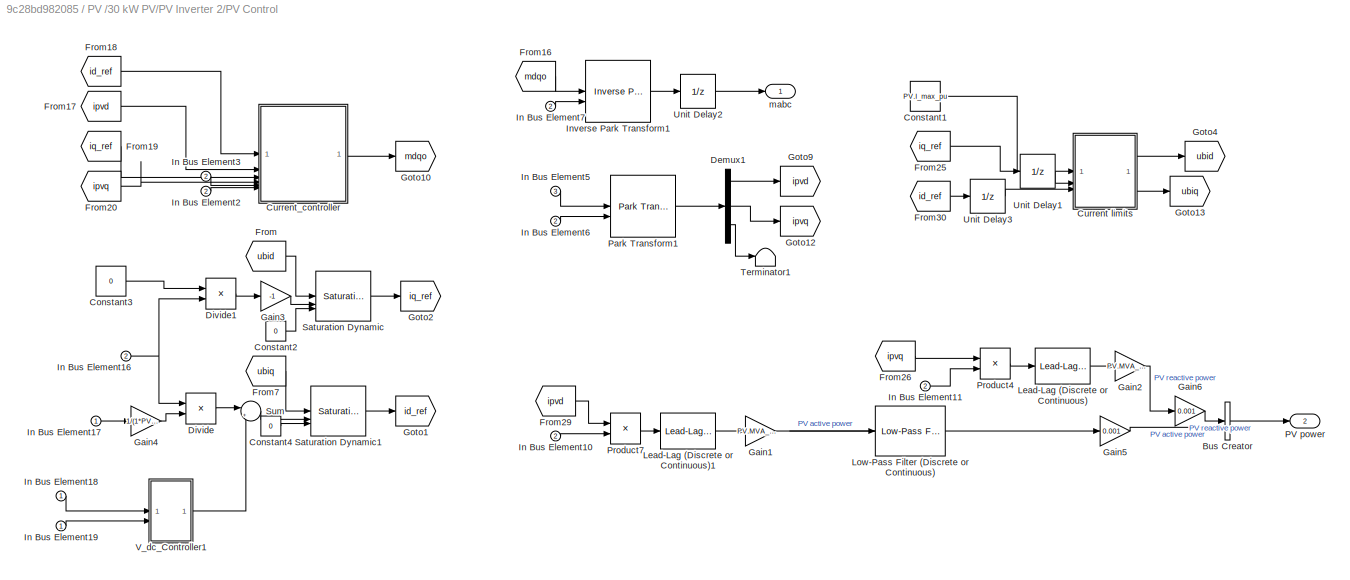
BLOCK [SubSystem] PV /30 kW PV/PV Inverter 2/PV Control
BLOCK [BusCreator] PV /30 kW PV/PV Inverter 2/PV Control/Bus Creator
  DisplayOption = bar
  InheritFromInputs = on
  Inputs = 2
BLOCK [Constant] PV /30 kW PV/PV Inverter 2/PV Control/Constant1
  Value = PV.I_max_pu
BLOCK [Constant] PV /30 kW PV/PV Inverter 2/PV Control/Constant2
  Value = 0
BLOCK [Constant] PV /30 kW PV/PV Inverter 2/PV Control/Constant3
  Value = 0
BLOCK [Constant] PV /30 kW PV/PV Inverter 2/PV Control/Constant4
  Value = 0
BLOCK [SubSystem] PV /30 kW PV/PV Inverter 2/PV Control/Current limits
BLOCK [Constant] PV /30 kW PV/PV Inverter 2/PV Control/Current limits/Constant8
  Value = 0
BLOCK [Constant] PV /30 kW PV/PV Inverter 2/PV Control/Current limits/Constant9
  Value = 0
BLOCK [Inport] PV /30 kW PV/PV Inverter 2/PV Control/Current limits/Imax
BLOCK [Sqrt] PV /30 kW PV/PV Inverter 2/PV Control/Current limits/Sqrt
BLOCK [Sqrt] PV /30 kW PV/PV Inverter 2/PV Control/Current limits/Sqrt1
BLOCK [Math] PV /30 kW PV/PV Inverter 2/PV Control/Current limits/Square1
  Operator = square
BLOCK [Math] PV /30 kW PV/PV Inverter 2/PV Control/Current limits/Square2
  Operator = square
BLOCK [Math] PV /30 kW PV/PV Inverter 2/PV Control/Current limits/Square3
  Operator = square
BLOCK [Math] PV /30 kW PV/PV Inverter 2/PV Control/Current limits/Square4
  Operator = square
BLOCK [Step] PV /30 kW PV/PV Inverter 2/PV Control/Current limits/Step2
  SampleTime = Ts
  Time = T_on
BLOCK [Step] PV /30 kW PV/PV Inverter 2/PV Control/Current limits/Step3
  SampleTime = Ts
  Time = T_on
BLOCK [Sum] PV /30 kW PV/PV Inverter 2/PV Control/Current limits/Sum6
  Inputs = |+-
BLOCK [Sum] PV /30 kW PV/PV Inverter 2/PV Control/Current limits/Sum9
  Inputs = |+-
BLOCK [Switch] PV /30 kW PV/PV Inverter 2/PV Control/Current limits/Switch1
  InputSameDT = off
  SaturateOnIntegerOverflow = off
  Threshold = .01
BLOCK [Switch] PV /30 kW PV/PV Inverter 2/PV Control/Current limits/Switch2
  InputSameDT = off
  SaturateOnIntegerOverflow = off
  Threshold = .01
BLOCK [Inport] PV /30 kW PV/PV Inverter 2/PV Control/Current limits/idref
  Port = 3
BLOCK [Inport] PV /30 kW PV/PV Inverter 2/PV Control/Current limits/iqref
  Port = 2
BLOCK [Outport] PV /30 kW PV/PV Inverter 2/PV Control/Current limits/iubd
BLOCK [Outport] PV /30 kW PV/PV Inverter 2/PV Control/Current limits/iubq
  Port = 2
BLOCK [SubSystem] PV /30 kW PV/PV Inverter 2/PV Control/Current_controller
BLOCK [Constant] PV /30 kW PV/PV Inverter 2/PV Control/Current_controller/Constant4
  Value = 0
BLOCK [Gain] PV /30 kW PV/PV Inverter 2/PV Control/Current_controller/Gain1
  Gain = 2*1*pi*60*PV.L/PV.z_base
BLOCK [Gain] PV /30 kW PV/PV Inverter 2/PV Control/Current_controller/Gain2
  Gain = 2*1*pi*60*PV.L/PV.z_base
BLOCK [Mux] PV /30 kW PV/PV Inverter 2/PV Control/Current_controller/Mux1
  DisplayOption = bar
  Inputs = 3
BLOCK [Reference] PV /30 kW PV/PV Inverter 2/PV Control/Current_controller/PID Controller  REF=slpidlib/PID Controller
  SourceBlock = slpidlib/PID Controller
  SourceType = PID 1dof
BLOCK [Reference] PV /30 kW PV/PV Inverter 2/PV Control/Current_controller/PID Controller1  REF=slpidlib/PID Controller
  SourceBlock = slpidlib/PID Controller
  SourceType = PID 1dof
BLOCK [Sum] PV /30 kW PV/PV Inverter 2/PV Control/Current_controller/Sum1
  Inputs = |+-
BLOCK [Sum] PV /30 kW PV/PV Inverter 2/PV Control/Current_controller/Sum3
  Inputs = |++-
BLOCK [Sum] PV /30 kW PV/PV Inverter 2/PV Control/Current_controller/Sum4
  Inputs = |+++
BLOCK [Sum] PV /30 kW PV/PV Inverter 2/PV Control/Current_controller/Sum5
  Inputs = |+-
BLOCK [Inport] PV /30 kW PV/PV Inverter 2/PV Control/Current_controller/Vd
  Port = 5
BLOCK [Inport] PV /30 kW PV/PV Inverter 2/PV Control/Current_controller/Vq
  Port = 6
BLOCK [Inport] PV /30 kW PV/PV Inverter 2/PV Control/Current_controller/id-ref
  IconDisplay = Signal name
BLOCK [Inport] PV /30 kW PV/PV Inverter 2/PV Control/Current_controller/ipvd
  IconDisplay = Signal name
  Port = 2
BLOCK [Inport] PV /30 kW PV/PV Inverter 2/PV Control/Current_controller/iq
  IconDisplay = Signal name
  Port = 4
BLOCK [Inport] PV /30 kW PV/PV Inverter 2/PV Control/Current_controller/iqref
  IconDisplay = Signal name
  Port = 3
BLOCK [Outport] PV /30 kW PV/PV Inverter 2/PV Control/Current_controller/mdq0
  IconDisplay = Signal name
BLOCK [Demux] PV /30 kW PV/PV Inverter 2/PV Control/Demux1
  Outputs = 3
BLOCK [Product] PV /30 kW PV/PV Inverter 2/PV Control/Divide
  Inputs = /*
BLOCK [Product] PV /30 kW PV/PV Inverter 2/PV Control/Divide1
  Inputs = */
BLOCK [From] PV /30 kW PV/PV Inverter 2/PV Control/From
  GotoTag = ubid
BLOCK [From] PV /30 kW PV/PV Inverter 2/PV Control/From16
  GotoTag = mdqo
BLOCK [From] PV /30 kW PV/PV Inverter 2/PV Control/From17
  GotoTag = ipvd
BLOCK [From] PV /30 kW PV/PV Inverter 2/PV Control/From18
  GotoTag = id_ref
BLOCK [From] PV /30 kW PV/PV Inverter 2/PV Control/From19
  GotoTag = iq_ref
BLOCK [From] PV /30 kW PV/PV Inverter 2/PV Control/From20
  GotoTag = ipvq
BLOCK [From] PV /30 kW PV/PV Inverter 2/PV Control/From25
  GotoTag = iq_ref
BLOCK [From] PV /30 kW PV/PV Inverter 2/PV Control/From26
  GotoTag = ipvq
BLOCK [From] PV /30 kW PV/PV Inverter 2/PV Control/From29
  GotoTag = ipvd
BLOCK [From] PV /30 kW PV/PV Inverter 2/PV Control/From30
  GotoTag = id_ref
BLOCK [From] PV /30 kW PV/PV Inverter 2/PV Control/From7
  GotoTag = ubiq
BLOCK [Gain] PV /30 kW PV/PV Inverter 2/PV Control/Gain1
  Gain = PV.MVA_base_new
BLOCK [Gain] PV /30 kW PV/PV Inverter 2/PV Control/Gain2
  Gain = PV.MVA_base_new
BLOCK [Gain] PV /30 kW PV/PV Inverter 2/PV Control/Gain3
  Gain = -1
BLOCK [Gain] PV /30 kW PV/PV Inverter 2/PV Control/Gain4
  Gain = 1/(1*PV.MVA_base_new)
BLOCK [Gain] PV /30 kW PV/PV Inverter 2/PV Control/Gain5
  Gain = 0.001
BLOCK [Gain] PV /30 kW PV/PV Inverter 2/PV Control/Gain6
  Gain = 0.001
BLOCK [Goto] PV /30 kW PV/PV Inverter 2/PV Control/Goto1
  GotoTag = id_ref
BLOCK [Goto] PV /30 kW PV/PV Inverter 2/PV Control/Goto10
  GotoTag = mdqo
BLOCK [Goto] PV /30 kW PV/PV Inverter 2/PV Control/Goto12
  GotoTag = ipvq
BLOCK [Goto] PV /30 kW PV/PV Inverter 2/PV Control/Goto13
  GotoTag = ubiq
BLOCK [Goto] PV /30 kW PV/PV Inverter 2/PV Control/Goto2
  GotoTag = iq_ref
BLOCK [Goto] PV /30 kW PV/PV Inverter 2/PV Control/Goto4
  GotoTag = ubid
BLOCK [Goto] PV /30 kW PV/PV Inverter 2/PV Control/Goto9
  GotoTag = ipvd
BLOCK [Inport] PV /30 kW PV/PV Inverter 2/PV Control/In Bus Element10
  Port = 2
BLOCK [Inport] PV /30 kW PV/PV Inverter 2/PV Control/In Bus Element11
  Port = 2
BLOCK [Inport] PV /30 kW PV/PV Inverter 2/PV Control/In Bus Element16
  Port = 2
BLOCK [Inport] PV /30 kW PV/PV Inverter 2/PV Control/In Bus Element17
BLOCK [Inport] PV /30 kW PV/PV Inverter 2/PV Control/In Bus Element18
BLOCK [Inport] PV /30 kW PV/PV Inverter 2/PV Control/In Bus Element19
BLOCK [Inport] PV /30 kW PV/PV Inverter 2/PV Control/In Bus Element2
  Port = 2
BLOCK [Inport] PV /30 kW PV/PV Inverter 2/PV Control/In Bus Element3
  Port = 2
BLOCK [Inport] PV /30 kW PV/PV Inverter 2/PV Control/In Bus Element5
  Port = 3
BLOCK [Inport] PV /30 kW PV/PV Inverter 2/PV Control/In Bus Element6
  Port = 2
BLOCK [Inport] PV /30 kW PV/PV Inverter 2/PV Control/In Bus Element7
  Port = 2
BLOCK [Reference] PV /30 kW PV/PV Inverter 2/PV Control/Inverse Park Transform1  REF=eeTransforms/Inverse
Park Transform
  SourceBlock = eeTransforms/Inverse\nPark Transform
  SourceType = Inverse Park Transform
BLOCK [Reference] PV /30 kW PV/PV Inverter 2/PV Control/Lead-Lag (Discrete or Continuous)  REF=eeGeneralControl/Lead-Lag
(Discrete or Continuous)
  LibrarySourceBlock = ee_sl_lib/General Control/Lead-Lag\n(Discrete or Continuous)
  SourceBlock = eeGeneralControl/Lead-Lag\n(Discrete or Continuous)
  SourceType = Lead-Lag (Discrete or Continuous)
BLOCK [Reference] PV /30 kW PV/PV Inverter 2/PV Control/Lead-Lag (Discrete or Continuous)1  REF=eeGeneralControl/Lead-Lag
(Discrete or Continuous)
  LibrarySourceBlock = ee_sl_lib/General Control/Lead-Lag\n(Discrete or Continuous)
  SourceBlock = eeGeneralControl/Lead-Lag\n(Discrete or Continuous)
  SourceType = Lead-Lag (Discrete or Continuous)
BLOCK [Reference] PV /30 kW PV/PV Inverter 2/PV Control/Low-Pass Filter (Discrete or Continuous)  REF=eeGeneralControl/Low-Pass Filter
(Discrete or Continuous)
  LibrarySourceBlock = ee_sl_lib/General Control/Low-Pass Filter\n(Discrete or Continuous)
  SourceBlock = eeGeneralControl/Low-Pass Filter\n(Discrete or Continuous)
  SourceType = Low-Pass Filter (Discrete or Continuous)
BLOCK [Outport] PV /30 kW PV/PV Inverter 2/PV Control/PV power
  Port = 2
BLOCK [Reference] PV /30 kW PV/PV Inverter 2/PV Control/Park Transform1  REF=eeTransforms/Park Transform
  SourceBlock = eeTransforms/Park Transform
  SourceType = Park Transform
BLOCK [Product] PV /30 kW PV/PV Inverter 2/PV Control/Product4
BLOCK [Product] PV /30 kW PV/PV Inverter 2/PV Control/Product7
BLOCK [Reference] PV /30 kW PV/PV Inverter 2/PV Control/Saturation Dynamic  REF=simulink/Discontinuities/Saturation
Dynamic
  SourceBlock = simulink/Discontinuities/Saturation\nDynamic
  SourceType = Saturation Dynamic
BLOCK [Reference] PV /30 kW PV/PV Inverter 2/PV Control/Saturation Dynamic1  REF=simulink/Discontinuities/Saturation
Dynamic
  SourceBlock = simulink/Discontinuities/Saturation\nDynamic
  SourceType = Saturation Dynamic
BLOCK [Sum] PV /30 kW PV/PV Inverter 2/PV Control/Sum
  Inputs = |++
BLOCK [Terminator] PV /30 kW PV/PV Inverter 2/PV Control/Terminator1
BLOCK [UnitDelay] PV /30 kW PV/PV Inverter 2/PV Control/Unit Delay1
  HasFrameUpgradeWarning = on
  SampleTime = Ts
BLOCK [UnitDelay] PV /30 kW PV/PV Inverter 2/PV Control/Unit Delay2
  HasFrameUpgradeWarning = on
  SampleTime = Ts
BLOCK [UnitDelay] PV /30 kW PV/PV Inverter 2/PV Control/Unit Delay3
  HasFrameUpgradeWarning = on
  SampleTime = Ts
BLOCK [SubSystem] PV /30 kW PV/PV Inverter 2/PV Control/V_dc_Controller1
BLOCK [Gain] PV /30 kW PV/PV Inverter 2/PV Control/V_dc_Controller1/Gain
  Gain = 1/PV.Vdc_base
BLOCK [Inport] PV /30 kW PV/PV Inverter 2/PV Control/V_dc_Controller1/In2
  Port = 2
BLOCK [Outport] PV /30 kW PV/PV Inverter 2/PV Control/V_dc_Controller1/Out1
BLOCK [Reference] PV /30 kW PV/PV Inverter 2/PV Control/V_dc_Controller1/PID Controller  REF=slpidlib/PID Controller
  SourceBlock = slpidlib/PID Controller
  SourceType = PID 1dof
BLOCK [Inport] PV /30 kW PV/PV Inverter 2/PV Control/V_dc_Controller1/PV_plant1
BLOCK [Sum] PV /30 kW PV/PV Inverter 2/PV Control/V_dc_Controller1/Sum
  Inputs = |+-
BLOCK [Outport] PV /30 kW PV/PV Inverter 2/PV Control/mabc
BLOCK [SubSystem] PV /30 kW PV/PV Inverter 2/PV Plant
BLOCK [Reference] PV /30 kW PV/PV Inverter 2/PV Plant/Average-Value Voltage Source Converter (Three-Phase)  REF=ee_lib/Semiconductors &
Converters/Converters/Average-Value
Voltage Source
Converter
(Three-Phase)
  SourceBlock = ee_lib/Semiconductors &\nConverters/Converters/Average-Value\nVoltage Source\nConverter\n(Three-Phase)
  SourceType = Average-Value\nVoltage Source\nConverter\n(Three-Phase)
BLOCK [Reference] PV /30 kW PV/PV Inverter 2/PV Plant/Capacitor  REF=fl_lib/Electrical/Electrical Elements/Capacitor
  NameLocation = left
  SourceBlock = fl_lib/Electrical/Electrical Elements/Capacitor
  SourceType = Capacitor
BLOCK [PMIOPort] PV /30 kW PV/PV Inverter 2/PV Plant/Conn1
  NameLocation = top
  Side = Right
BLOCK [Reference] PV /30 kW PV/PV Inverter 2/PV Plant/Current Sensor  REF=fl_lib/Electrical/Electrical Sensors/Current Sensor
  NameLocation = top
  SourceBlock = fl_lib/Electrical/Electrical Sensors/Current Sensor
  SourceType = Current Sensor
BLOCK [Reference] PV /30 kW PV/PV Inverter 2/PV Plant/ERef1  REF=fl_lib/Electrical/Electrical Elements/Electrical Reference
  NameLocation = right
  SourceBlock = fl_lib/Electrical/Electrical Elements/Electrical Reference
  SourceType = Electrical Reference
BLOCK [From] PV /30 kW PV/PV Inverter 2/PV Plant/From
  GotoTag = Vdc
BLOCK [From] PV /30 kW PV/PV Inverter 2/PV Plant/From2
  GotoTag = ipv
  NameLocation = top
BLOCK [From] PV /30 kW PV/PV Inverter 2/PV Plant/From3
  GotoTag = Vdc
BLOCK [Goto] PV /30 kW PV/PV Inverter 2/PV Plant/Goto
  GotoTag = Vdc
BLOCK [Goto] PV /30 kW PV/PV Inverter 2/PV Plant/Goto2
  GotoTag = ipv
  NameLocation = top
BLOCK [Inport] PV /30 kW PV/PV Inverter 2/PV Plant/Insolation
  IconDisplay = Signal name
BLOCK [SubSystem] PV /30 kW PV/PV Inverter 2/PV Plant/Measurement1
  NameLocation = right
BLOCK [Reference] PV /30 kW PV/PV Inverter 2/PV Plant/Measurement1/Lead-Lag (Discrete or Continuous)  REF=eeGeneralControl/Lead-Lag
(Discrete or Continuous)
  LibrarySourceBlock = ee_sl_lib/General Control/Lead-Lag\n(Discrete or Continuous)
  SourceBlock = eeGeneralControl/Lead-Lag\n(Discrete or Continuous)
  SourceType = Lead-Lag (Discrete or Continuous)
BLOCK [Outport] PV /30 kW PV/PV Inverter 2/PV Plant/Measurement1/Vdc
BLOCK [Inport] PV /30 kW PV/PV Inverter 2/PV Plant/Measurement1/u
BLOCK [SubSystem] PV /30 kW PV/PV Inverter 2/PV Plant/Measurement2
  NameLocation = top
BLOCK [Reference] PV /30 kW PV/PV Inverter 2/PV Plant/Measurement2/Lead-Lag (Discrete or Continuous)  REF=eeGeneralControl/Lead-Lag
(Discrete or Continuous)
  LibrarySourceBlock = ee_sl_lib/General Control/Lead-Lag\n(Discrete or Continuous)
  SourceBlock = eeGeneralControl/Lead-Lag\n(Discrete or Continuous)
  SourceType = Lead-Lag (Discrete or Continuous)
BLOCK [Outport] PV /30 kW PV/PV Inverter 2/PV Plant/Measurement2/Out1
BLOCK [Inport] PV /30 kW PV/PV Inverter 2/PV Plant/Measurement2/u
BLOCK [Outport] PV /30 kW PV/PV Inverter 2/PV Plant/Out Bus Element
BLOCK [Outport] PV /30 kW PV/PV Inverter 2/PV Plant/Out Bus Element1
BLOCK [Outport] PV /30 kW PV/PV Inverter 2/PV Plant/Out Bus Element3
BLOCK [Outport] PV /30 kW PV/PV Inverter 2/PV Plant/Out Bus Element4
BLOCK [SubSystem] PV /30 kW PV/PV Inverter 2/PV Plant/P&O MPP
BLOCK [Logic] PV /30 kW PV/PV Inverter 2/PV Plant/P&O MPP/AND1
  AllPortsSameDT = off
  IconShape = distinctive
  OutDataTypeStr = boolean
BLOCK [Sum] PV /30 kW PV/PV Inverter 2/PV Plant/P&O MPP/Add
  IconShape = rectangular
BLOCK [Reference] PV /30 kW PV/PV Inverter 2/PV Plant/P&O MPP/Compare To Zero1  REF=simulink/Logic and Bit
Operations/Compare
To Zero
  SourceBlock = simulink/Logic and Bit\nOperations/Compare\nTo Zero
  SourceType = Compare To Zero
BLOCK [Reference] PV /30 kW PV/PV Inverter 2/PV Plant/P&O MPP/Compare To Zero2  REF=simulink/Logic and Bit
Operations/Compare
To Zero
  SourceBlock = simulink/Logic and Bit\nOperations/Compare\nTo Zero
  SourceType = Compare To Zero
BLOCK [Constant] PV /30 kW PV/PV Inverter 2/PV Plant/P&O MPP/Constant1
  Value = PV.Vdc*3e-4
BLOCK [From] PV /30 kW PV/PV Inverter 2/PV Plant/P&O MPP/From4
  GotoTag = Vinc
BLOCK [From] PV /30 kW PV/PV Inverter 2/PV Plant/P&O MPP/From5
  GotoTag = Vdec
BLOCK [Goto] PV /30 kW PV/PV Inverter 2/PV Plant/P&O MPP/Goto3
  GotoTag = Vinc
BLOCK [Goto] PV /30 kW PV/PV Inverter 2/PV Plant/P&O MPP/Goto4
  GotoTag = Vdec
BLOCK [Logic] PV /30 kW PV/PV Inverter 2/PV Plant/P&O MPP/NOR
  AllPortsSameDT = off
  IconShape = distinctive
  Operator = NOR
  OutDataTypeStr = boolean
BLOCK [Logic] PV /30 kW PV/PV Inverter 2/PV Plant/P&O MPP/OR
  AllPortsSameDT = off
  IconShape = distinctive
  Operator = OR
  OutDataTypeStr = boolean
BLOCK [Inport] PV /30 kW PV/PV Inverter 2/PV Plant/P&O MPP/Pref
BLOCK [Sum] PV /30 kW PV/PV Inverter 2/PV Plant/P&O MPP/Subtract5
  IconShape = rectangular
  Inputs = -+
BLOCK [Sum] PV /30 kW PV/PV Inverter 2/PV Plant/P&O MPP/Sum
  Inputs = |+-
BLOCK [Sum] PV /30 kW PV/PV Inverter 2/PV Plant/P&O MPP/Sum1
  Inputs = |-+
BLOCK [Switch] PV /30 kW PV/PV Inverter 2/PV Plant/P&O MPP/Switch4
  Criteria = u2 ~= 0
  InputSameDT = off
  SaturateOnIntegerOverflow = off
BLOCK [Switch] PV /30 kW PV/PV Inverter 2/PV Plant/P&O MPP/Switch5
  Criteria = u2 > Threshold
  InputSameDT = off
  SaturateOnIntegerOverflow = off
BLOCK [UnitDelay] PV /30 kW PV/PV Inverter 2/PV Plant/P&O MPP/Unit Delay
  HasFrameUpgradeWarning = on
  InitialCondition = PV.Vdc
  SampleTime = 10*Ts
BLOCK [UnitDelay] PV /30 kW PV/PV Inverter 2/PV Plant/P&O MPP/Unit Delay1
  HasFrameUpgradeWarning = on
  InitialCondition = PV.Vdc
  SampleTime = 10*Ts
BLOCK [Inport] PV /30 kW PV/PV Inverter 2/PV Plant/P&O MPP/Vdc
  Port = 2
BLOCK [Outport] PV /30 kW PV/PV Inverter 2/PV Plant/P&O MPP/Vmpp
  NameLocation = top
  VectorParamsAs1DForOutWhenUnconnected = off
BLOCK [ZeroOrderHold] PV /30 kW PV/PV Inverter 2/PV Plant/P&O MPP/ZOH//3
  SampleTime = 100*Ts
BLOCK [Constant] PV /30 kW PV/PV Inverter 2/PV Plant/P&O MPP/start MPPT Voltage
  SampleTime = Ts
  Value = PV.Vdc
BLOCK [Reference] PV /30 kW PV/PV Inverter 2/PV Plant/PS-Simulink Converter  REF=nesl_utility/PS-Simulink
Converter
  NameLocation = top
  SourceBlock = nesl_utility/PS-Simulink\nConverter
  SourceType = PS-Simulink\nConverter
BLOCK [Reference] PV /30 kW PV/PV Inverter 2/PV Plant/PS-Simulink Converter1  REF=nesl_utility/PS-Simulink
Converter
  NameLocation = top
  SourceBlock = nesl_utility/PS-Simulink\nConverter
  SourceType = PS-Simulink\nConverter
BLOCK [Product] PV /30 kW PV/PV Inverter 2/PV Plant/Product2
BLOCK [Reference] PV /30 kW PV/PV Inverter 2/PV Plant/Simulink-PS Converter1  REF=nesl_utility/Simulink-PS
Converter
  SourceBlock = nesl_utility/Simulink-PS\nConverter
  SourceType = Simulink-PS\nConverter
BLOCK [Reference] PV /30 kW PV/PV Inverter 2/PV Plant/Simulink-PS Converter2  REF=nesl_utility/Simulink-PS
Converter
  SourceBlock = nesl_utility/Simulink-PS\nConverter
  SourceType = Simulink-PS\nConverter
BLOCK [Reference] PV /30 kW PV/PV Inverter 2/PV Plant/Solar Cell  REF=ee_lib/Sources/Solar Cell
  NameLocation = left
  SourceBlock = ee_lib/Sources/Solar Cell
  SourceType = Solar Cell
BLOCK [Reference] PV /30 kW PV/PV Inverter 2/PV Plant/Voltage Sensor  REF=fl_lib/Electrical/Electrical Sensors/Voltage Sensor
  NameLocation = right
  SourceBlock = fl_lib/Electrical/Electrical Sensors/Voltage Sensor
  SourceType = Voltage Sensor
BLOCK [Inport] PV /30 kW PV/PV Inverter 2/PV Plant/mod
  Port = 2
BLOCK [Outport] PV /30 kW PV/PV Inverter 2/PV power
BLOCK [Outport] PV /30 kW PV/PV power
BLOCK [Terminator] PV /30 kW PV/Terminator
BLOCK [PMIOPort] PV /30 kW PV/~
  Side = Left
BLOCK [Reference] PV /415 V// 4.16 kV  REF=ee_lib/Passive/Transformers/Two-Winding
Transformer
(Three-Phase)
  SourceBlock = ee_lib/Passive/Transformers/Two-Winding\nTransformer\n(Three-Phase)
  SourceType = Two-Winding\nTransformer\n(Three-Phase)
BLOCK [BusCreator] PV /Bus Creator
  DisplayOption = bar
  InheritFromInputs = on
  Inputs = 3
BLOCK [BusCreator] PV /Bus Creator1
  DisplayOption = bar
  InheritFromInputs = on
  Inputs = 2
BLOCK [Reference] PV /Current and Voltage Sensor (Three-Phase)5  REF=ee_lib/Sensors &
Transducers/Current and Voltage
Sensor (Three-Phase)
  SourceBlock = ee_lib/Sensors &\nTransducers/Current and Voltage\nSensor (Three-Phase)
  SourceType = Current and Voltage\nSensor (Three-Phase)
BLOCK [Reference] PV /Electrical Reference8  REF=fl_lib/Electrical/Electrical Elements/Electrical Reference
  NameLocation = right
  SourceBlock = fl_lib/Electrical/Electrical Elements/Electrical Reference
  SourceType = Electrical Reference
BLOCK [SubSystem] PV /PLL & Measurements
  PortSchema = {"entries":[{"content":{"sides":[{"content":{"connectorIds":["Out1","In1"]},"type":"ConnectorPlacement.EquallySpacedRectSide","uuid":"76485780-20fe-4fcf-8224-69648da6ed2a"},{"content":{"connectorIds":[],"side":"RIGHT"},"type":"ConnectorPlacement.EquallySpacedRectSide","uuid":"f19a6390-e634-42c7-8d46-4cd80cbab182"},{"content":{"connectorIds":[],"side":"TOP"},"type":"ConnectorPlacement.EquallySpaced...<+241ch>
BLOCK [SubSystem] PV /PLL & Measurements/Measurement2
BLOCK [Reference] PV /PLL & Measurements/Measurement2/Lead-Lag (Discrete or Continuous)  REF=eeGeneralControl/Lead-Lag
(Discrete or Continuous)
  LibrarySourceBlock = ee_sl_lib/General Control/Lead-Lag\n(Discrete or Continuous)
  SourceBlock = eeGeneralControl/Lead-Lag\n(Discrete or Continuous)
  SourceType = Lead-Lag (Discrete or Continuous)
BLOCK [Outport] PV /PLL & Measurements/Measurement2/Vg
  IconDisplay = Signal name
BLOCK [Inport] PV /PLL & Measurements/Measurement2/u
BLOCK [Outport] PV /PLL & Measurements/Out Bus Element
BLOCK [Outport] PV /PLL & Measurements/Out Bus Element1
BLOCK [Outport] PV /PLL & Measurements/Out Bus Element2
BLOCK [Outport] PV /PLL & Measurements/Out Bus Element3
BLOCK [Outport] PV /PLL & Measurements/Out Bus Element4
BLOCK [SubSystem] PV /PLL & Measurements/Subsystem
BLOCK [Demux] PV /PLL & Measurements/Subsystem/Demux
  Outputs = 3
BLOCK [Reference] PV /PLL & Measurements/Subsystem/Park Transform  REF=eeTransforms/Park Transform
  SourceBlock = eeTransforms/Park Transform
  SourceType = Park Transform
BLOCK [Reference] PV /PLL & Measurements/Subsystem/Sinusoidal Measurement (PLL, Three-Phase)1  REF=eeSinusoidalMeasurementV2/Sinusoidal Measurement
(PLL, Three-Phase)
  LibrarySourceBlock = ee_sl_lib/Measurements/Sinusoidal Measurement\n(PLL, Three-Phase)
  SourceBlock = eeSinusoidalMeasurementV2/Sinusoidal Measurement\n(PLL, Three-Phase)
  SourceType = Sinusoidal Measurement (PLL, Three-Phase)
BLOCK [Terminator] PV /PLL & Measurements/Subsystem/Terminator
BLOCK [Outport] PV /PLL & Measurements/Subsystem/Vd
  NameLocation = top
  Port = 4
BLOCK [Outport] PV /PLL & Measurements/Subsystem/Vq
  NameLocation = top
  Port = 5
BLOCK [Inport] PV /PLL & Measurements/Subsystem/abc
BLOCK [Outport] PV /PLL & Measurements/Subsystem/angle
  Port = 3
BLOCK [Outport] PV /PLL & Measurements/Subsystem/freq
  Port = 2
BLOCK [Outport] PV /PLL & Measurements/Subsystem/mag
BLOCK [Inport] PV /PLL & Measurements/V
BLOCK [Reference] PV /PS-Simulink Converter1  REF=nesl_utility/PS-Simulink
Converter
  SourceBlock = nesl_utility/PS-Simulink\nConverter
  SourceType = PS-Simulink\nConverter
BLOCK [Reference] PV /PS-Simulink Converter2  REF=nesl_utility/PS-Simulink
Converter
  SourceBlock = nesl_utility/PS-Simulink\nConverter
  SourceType = PS-Simulink\nConverter
BLOCK [Outport] PV /mPV
BLOCK [PMIOPort] PV /~
  Side = Left
BLOCK [SubSystem] Secondary Substation
  NameLocation = top
  PortSchema = {"entries":[{"content":{"sides":[{"content":{"connectorIds":["LConn1"]},"type":"ConnectorPlacement.EquallySpacedRectSide","uuid":"e00206b4-f52b-4711-97fc-4887ea8823c3"},{"content":{"connectorIds":[],"side":"RIGHT"},"type":"ConnectorPlacement.EquallySpacedRectSide","uuid":"71e01694-379b-4552-8103-40d657e486e9"},{"content":{"connectorIds":[],"side":"TOP"},"type":"ConnectorPlacement.EquallySpacedRect...<+389ch>
BLOCK [Reference] Secondary Substation/Two-Winding Transformer (Three-Phase)1  REF=ee_lib/Passive/Transformers/Two-Winding
Transformer
(Three-Phase)
  SourceBlock = ee_lib/Passive/Transformers/Two-Winding\nTransformer\n(Three-Phase)
  SourceType = Two-Winding\nTransformer\n(Three-Phase)
BLOCK [PMIOPort] Secondary Substation/~
  Port = 2
  Side = Right
BLOCK [PMIOPort] Secondary Substation/~ 
  Side = Left
BLOCK [Reference] Solver Configuration1  REF=nesl_utility/Solver
Configuration
  SourceBlock = nesl_utility/Solver\nConfiguration
  SourceType = Solver\nConfiguration
BLOCK [SubSystem] Visualization
BLOCK [BusCreator] Visualization/Bus Creator
  DisplayOption = bar
  InheritFromInputs = on
  Inputs = 4
BLOCK [BusCreator] Visualization/Bus Creator1
  DisplayOption = bar
  InheritFromInputs = on
  Inputs = 3
BLOCK [Inport] Visualization/Bus Element In10
BLOCK [Inport] Visualization/Bus Element In4
BLOCK [Inport] Visualization/Bus Element In5
BLOCK [Inport] Visualization/Bus Element In6
BLOCK [Inport] Visualization/Bus Element In7
BLOCK [Inport] Visualization/Bus Element In8
BLOCK [Inport] Visualization/Bus Element In9
BLOCK [Scope] Visualization/Power  Measurements
  ActiveDisplayYMaximum = 218.62393
  ActiveDisplayYMinimum = -50.35152
  DataLoggingDecimation = 10
  DataLoggingSaveFormat = Structure With Time
  DataLoggingVariableName = ScopeData3
  Floating = off
  GraphicalSettings = {"GraphicalSettings":{"LegacySettings":true,"Style":{"AxesScalingProperties":{"ScaleAxesLimitsAtStop":false},"Style":{"AxesColor":"[0 0 0]","ChannelNames":["",""],"ColorOrder":"[1 0.909803921568627 0.392156862745098;0.149019607843137 0.549019607843137 0.866666666666667;0.96078431372549 0.466666666666667 0.16078431372549;0.286274509803922 0.858823529411765 0.250980392156863;0.752941176470588 0.3607...<+626ch>
  LayoutDimensionsString = [2 1]
  MultipleDisplayCache = [{"MaxYLimMag":218.62393,"MaxYLimReal":218.62393,"MinYLimMag":0,"MinYLimReal":-50.35152,"PlotAsMagnitudePhase":false,"ShowGrid":true,"ShowLegend":true,"Title":"Active Power (kW)","YLabel":""},{"MaxYLimMag":91.61643,"MaxYLimReal":155.48891,"MinYLimMag":0,"MinYLimReal":-19.73015,"PlotAsMagnitudePhase":false,"ShowGrid":true,"ShowLegend":true,"Title":"Reactive Power (KVAr)","YLabel":""}]
  NumInputPorts = 2
  ShowLegend = on
  TimeUnits = Seconds
  Title = Active Power (kW)
  WasSavedAsWebScope = on
ANNOTATION (root): 1 Open script that inputs values from the datasheet 2. Verifying IEEE and IEC standards for remote microgrids with Case 1 : Evaluating feeder switch in secondary substation Case 2 : Investigating BESS load pick up after diesel trip Case 3 : Diesel planned switch off/Islanding in low loading Case 4 : Verifying diesel start and resynchronization Case 5 : Fault at PCC 3. Learn more about this example
ANNOTATION (root): Design, Operation, and Control of Remote Microgrid
ANNOTATION Diesel Substation, BESS, & Microgrid Controller/BESS and Controller/BESS Control: Frequency Droop and Active Power Control
ANNOTATION Diesel Substation, BESS, & Microgrid Controller/BESS and Controller/BESS Control: Voltage Control
ANNOTATION Operator Control Room/Measurements and Visualizations : Currents
ANNOTATION Operator Control Room/Measurements and Visualizations : Voltages in Microgrid
ANNOTATION Operator Control Room/Measurements and Visualizations : Active Power and Reactive Power
ANNOTATION Operator Control Room/Measurements and Visualizations : Grid and Island Voltage, Frequency and Angle
ANNOTATION Operator Control Room/Microgrid Control/Protection & Power Tracking: Power tracking
ANNOTATION Operator Control Room/Microgrid Control/Protection & Power Tracking: Microgrid protection
ANNOTATION Operator Dashboard: References and Microgrid Controls
ANNOTATION Operator Dashboard: Active Power
ANNOTATION Operator Dashboard: Microgrid Operating Modes
ANNOTATION Operator Dashboard: Reactive Power
ANNOTATION Operator Dashboard: Voltages
ANNOTATION Operator Dashboard: BESS
ANNOTATION Operator Dashboard: Grid
ANNOTATION Operator Dashboard: Grid Voltage in pu
ANNOTATION Operator Dashboard: LV Load
ANNOTATION Operator Dashboard: LV Load RMS Voltage
ANNOTATION Operator Dashboard: MV Load
ANNOTATION Operator Dashboard: MV Load RMS Voltage
ANNOTATION Operator Dashboard: Microgrid Voltage in pu
ANNOTATION Operator Dashboard: Solar PV Plant
LINE Diesel Substation, BESS, & Microgrid Controller/BESS and Controller/BESS Control/Active power tracking PI contorller:1 -> Diesel Substation, BESS, & Microgrid Controller/BESS and Controller/BESS Control/Sum7:3
LINE Diesel Substation, BESS, & Microgrid Controller/BESS and Controller/BESS Control/Bus Element In1:1 -> Diesel Substation, BESS, & Microgrid Controller/BESS and Controller/BESS Control/Sinusoidal Measurement (PLL, Three-Phase)1:1
LINE Diesel Substation, BESS, & Microgrid Controller/BESS and Controller/BESS Control/Bus Element In2:1 -> Diesel Substation, BESS, & Microgrid Controller/BESS and Controller/BESS Control/Inverter Active & Reactive Power :2
LINE Diesel Substation, BESS, & Microgrid Controller/BESS and Controller/BESS Control/Bus Element In3:1 -> Diesel Substation, BESS, & Microgrid Controller/BESS and Controller/BESS Control/Park Transform:1
LINE Diesel Substation, BESS, & Microgrid Controller/BESS and Controller/BESS Control/Bus Element In4:1 -> Diesel Substation, BESS, & Microgrid Controller/BESS and Controller/BESS Control/Inverter Active & Reactive Power :1
LINE Diesel Substation, BESS, & Microgrid Controller/BESS and Controller/BESS Control/Demux1:1 -> Diesel Substation, BESS, & Microgrid Controller/BESS and Controller/BESS Control/Sum3:1
LINE Diesel Substation, BESS, & Microgrid Controller/BESS and Controller/BESS Control/Demux1:2 -> Diesel Substation, BESS, & Microgrid Controller/BESS and Controller/BESS Control/Sum:2
LINE Diesel Substation, BESS, & Microgrid Controller/BESS and Controller/BESS Control/Demux:1 -> Diesel Substation, BESS, & Microgrid Controller/BESS and Controller/BESS Control/Sum1:2
LINE Diesel Substation, BESS, & Microgrid Controller/BESS and Controller/BESS Control/Demux:2 -> Diesel Substation, BESS, & Microgrid Controller/BESS and Controller/BESS Control/Sum2:1
LINE Diesel Substation, BESS, & Microgrid Controller/BESS and Controller/BESS Control/Demux:3 -> Diesel Substation, BESS, & Microgrid Controller/BESS and Controller/BESS Control/Terminator2:1
NET Diesel Substation, BESS, & Microgrid Controller/BESS and Controller/BESS Control/Discrete-Time Integrator:1 -> Diesel Substation, BESS, & Microgrid Controller/BESS and Controller/BESS Control/Trigonometric Function1:1, Diesel Substation, BESS, & Microgrid Controller/BESS and Controller/BESS Control/Trigonometric Function:1
LINE Diesel Substation, BESS, & Microgrid Controller/BESS and Controller/BESS Control/FRef:1 -> Diesel Substation, BESS, & Microgrid Controller/BESS and Controller/BESS Control/Sum7:2
LINE Diesel Substation, BESS, & Microgrid Controller/BESS and Controller/BESS Control/From2:1 -> Diesel Substation, BESS, & Microgrid Controller/BESS and Controller/BESS Control/Sum7:1
LINE Diesel Substation, BESS, & Microgrid Controller/BESS and Controller/BESS Control/Gain:1 -> Diesel Substation, BESS, & Microgrid Controller/BESS and Controller/BESS Control/Discrete-Time Integrator:1
LINE Diesel Substation, BESS, & Microgrid Controller/BESS and Controller/BESS Control/In Bus Element1:1 -> Diesel Substation, BESS, & Microgrid Controller/BESS and Controller/BESS Control/Active power tracking PI contorller:2
LINE Diesel Substation, BESS, & Microgrid Controller/BESS and Controller/BESS Control/In Bus Element2:1 -> Diesel Substation, BESS, & Microgrid Controller/BESS and Controller/BESS Control/Product3:2
LINE Diesel Substation, BESS, & Microgrid Controller/BESS and Controller/BESS Control/In Bus Element3:1 -> Diesel Substation, BESS, & Microgrid Controller/BESS and Controller/BESS Control/Product2:2
LINE Diesel Substation, BESS, & Microgrid Controller/BESS and Controller/BESS Control/In Bus Element4:1 -> Diesel Substation, BESS, & Microgrid Controller/BESS and Controller/BESS Control/Reactive power tracking PI contorller:2
LINE Diesel Substation, BESS, & Microgrid Controller/BESS and Controller/BESS Control/Inverse Park Transform:1 -> Diesel Substation, BESS, & Microgrid Controller/BESS and Controller/BESS Control/Unit Delay1:1
NET Diesel Substation, BESS, & Microgrid Controller/BESS and Controller/BESS Control/Inverter Active & Reactive Power /Demux:1 -> Diesel Substation, BESS, & Microgrid Controller/BESS and Controller/BESS Control/Inverter Active & Reactive Power /Minus2:2, Diesel Substation, BESS, & Microgrid Controller/BESS and Controller/BESS Control/Inverter Active & Reactive Power /Minus:1
NET Diesel Substation, BESS, & Microgrid Controller/BESS and Controller/BESS Control/Inverter Active & Reactive Power /Demux:2 -> Diesel Substation, BESS, & Microgrid Controller/BESS and Controller/BESS Control/Inverter Active & Reactive Power /Minus1:1, Diesel Substation, BESS, & Microgrid Controller/BESS and Controller/BESS Control/Inverter Active & Reactive Power /Minus:2
NET Diesel Substation, BESS, & Microgrid Controller/BESS and Controller/BESS Control/Inverter Active & Reactive Power /Demux:3 -> Diesel Substation, BESS, & Microgrid Controller/BESS and Controller/BESS Control/Inverter Active & Reactive Power /Minus1:2, Diesel Substation, BESS, & Microgrid Controller/BESS and Controller/BESS Control/Inverter Active & Reactive Power /Minus2:1
LINE Diesel Substation, BESS, & Microgrid Controller/BESS and Controller/BESS Control/Inverter Active & Reactive Power /Gain:1 -> Diesel Substation, BESS, & Microgrid Controller/BESS and Controller/BESS Control/Inverter Active & Reactive Power /Q:1
NET Diesel Substation, BESS, & Microgrid Controller/BESS and Controller/BESS Control/Inverter Active & Reactive Power /Iabc:1 -> Diesel Substation, BESS, & Microgrid Controller/BESS and Controller/BESS Control/Inverter Active & Reactive Power /Product1:1, Diesel Substation, BESS, & Microgrid Controller/BESS and Controller/BESS Control/Inverter Active & Reactive Power /Product:2
LINE Diesel Substation, BESS, & Microgrid Controller/BESS and Controller/BESS Control/Inverter Active & Reactive Power /Minus1:1 -> Diesel Substation, BESS, & Microgrid Controller/BESS and Controller/BESS Control/Inverter Active & Reactive Power /Mux:1
LINE Diesel Substation, BESS, & Microgrid Controller/BESS and Controller/BESS Control/Inverter Active & Reactive Power /Minus2:1 -> Diesel Substation, BESS, & Microgrid Controller/BESS and Controller/BESS Control/Inverter Active & Reactive Power /Mux:2
LINE Diesel Substation, BESS, & Microgrid Controller/BESS and Controller/BESS Control/Inverter Active & Reactive Power /Minus:1 -> Diesel Substation, BESS, & Microgrid Controller/BESS and Controller/BESS Control/Inverter Active & Reactive Power /Mux:3
LINE Diesel Substation, BESS, & Microgrid Controller/BESS and Controller/BESS Control/Inverter Active & Reactive Power /Mux:1 -> Diesel Substation, BESS, & Microgrid Controller/BESS and Controller/BESS Control/Inverter Active & Reactive Power /Product1:2
LINE Diesel Substation, BESS, & Microgrid Controller/BESS and Controller/BESS Control/Inverter Active & Reactive Power /Product1:1 -> Diesel Substation, BESS, & Microgrid Controller/BESS and Controller/BESS Control/Inverter Active & Reactive Power /Sum of Elements1:1
LINE Diesel Substation, BESS, & Microgrid Controller/BESS and Controller/BESS Control/Inverter Active & Reactive Power /Product:1 -> Diesel Substation, BESS, & Microgrid Controller/BESS and Controller/BESS Control/Inverter Active & Reactive Power /Sum of Elements:1
LINE Diesel Substation, BESS, & Microgrid Controller/BESS and Controller/BESS Control/Inverter Active & Reactive Power /Sum of Elements1:1 -> Diesel Substation, BESS, & Microgrid Controller/BESS and Controller/BESS Control/Inverter Active & Reactive Power /Gain:1
LINE Diesel Substation, BESS, & Microgrid Controller/BESS and Controller/BESS Control/Inverter Active & Reactive Power /Sum of Elements:1 -> Diesel Substation, BESS, & Microgrid Controller/BESS and Controller/BESS Control/Inverter Active & Reactive Power /P:1
NET Diesel Substation, BESS, & Microgrid Controller/BESS and Controller/BESS Control/Inverter Active & Reactive Power /Vabc:1 -> Diesel Substation, BESS, & Microgrid Controller/BESS and Controller/BESS Control/Inverter Active & Reactive Power /Demux:1, Diesel Substation, BESS, & Microgrid Controller/BESS and Controller/BESS Control/Inverter Active & Reactive Power /Product:1
LINE Diesel Substation, BESS, & Microgrid Controller/BESS and Controller/BESS Control/Inverter Active & Reactive Power :1 -> Diesel Substation, BESS, & Microgrid Controller/BESS and Controller/BESS Control/pu->SI2:1
LINE Diesel Substation, BESS, & Microgrid Controller/BESS and Controller/BESS Control/Inverter Active & Reactive Power :2 -> Diesel Substation, BESS, & Microgrid Controller/BESS and Controller/BESS Control/pu->SI3:1
LINE Diesel Substation, BESS, & Microgrid Controller/BESS and Controller/BESS Control/Kpf:1 -> Diesel Substation, BESS, & Microgrid Controller/BESS and Controller/BESS Control/Sum5:2
LINE Diesel Substation, BESS, & Microgrid Controller/BESS and Controller/BESS Control/Kqv:1 -> Diesel Substation, BESS, & Microgrid Controller/BESS and Controller/BESS Control/Sum4:1
LINE Diesel Substation, BESS, & Microgrid Controller/BESS and Controller/BESS Control/Mux2:1 -> Diesel Substation, BESS, & Microgrid Controller/BESS and Controller/BESS Control/Inverse Park Transform:1
LINE Diesel Substation, BESS, & Microgrid Controller/BESS and Controller/BESS Control/PQref:1 -> Diesel Substation, BESS, & Microgrid Controller/BESS and Controller/BESS Control/Demux1:1
LINE Diesel Substation, BESS, & Microgrid Controller/BESS and Controller/BESS Control/Park Transform:1 -> Diesel Substation, BESS, & Microgrid Controller/BESS and Controller/BESS Control/Demux:1
LINE Diesel Substation, BESS, & Microgrid Controller/BESS and Controller/BESS Control/Product1:1 -> Diesel Substation, BESS, & Microgrid Controller/BESS and Controller/BESS Control/Sum1:1
LINE Diesel Substation, BESS, & Microgrid Controller/BESS and Controller/BESS Control/Product2:1 -> Diesel Substation, BESS, & Microgrid Controller/BESS and Controller/BESS Control/Active power tracking PI contorller:1
LINE Diesel Substation, BESS, & Microgrid Controller/BESS and Controller/BESS Control/Product3:1 -> Diesel Substation, BESS, & Microgrid Controller/BESS and Controller/BESS Control/Reactive power tracking PI contorller:1
LINE Diesel Substation, BESS, & Microgrid Controller/BESS and Controller/BESS Control/Product:1 -> Diesel Substation, BESS, & Microgrid Controller/BESS and Controller/BESS Control/Sum2:2
LINE Diesel Substation, BESS, & Microgrid Controller/BESS and Controller/BESS Control/Reactive power tracking PI contorller:1 -> Diesel Substation, BESS, & Microgrid Controller/BESS and Controller/BESS Control/Sum4:3
NET Diesel Substation, BESS, & Microgrid Controller/BESS and Controller/BESS Control/Sinusoidal Measurement (PLL, Three-Phase)1:1 -> Diesel Substation, BESS, & Microgrid Controller/BESS and Controller/BESS Control/Goto:1, Diesel Substation, BESS, & Microgrid Controller/BESS and Controller/BESS Control/Terminator1:1
NET Diesel Substation, BESS, & Microgrid Controller/BESS and Controller/BESS Control/Sinusoidal Measurement (PLL, Three-Phase)1:2 -> Diesel Substation, BESS, & Microgrid Controller/BESS and Controller/BESS Control/Inverse Park Transform:2, Diesel Substation, BESS, & Microgrid Controller/BESS and Controller/BESS Control/Park Transform:2
LINE Diesel Substation, BESS, & Microgrid Controller/BESS and Controller/BESS Control/Sinusoidal Measurement (PLL, Three-Phase)1:3 -> Diesel Substation, BESS, & Microgrid Controller/BESS and Controller/BESS Control/Terminator3:1
LINE Diesel Substation, BESS, & Microgrid Controller/BESS and Controller/BESS Control/Sum1:1 -> Diesel Substation, BESS, & Microgrid Controller/BESS and Controller/BESS Control/Vd Discrete PI Controller:1
LINE Diesel Substation, BESS, & Microgrid Controller/BESS and Controller/BESS Control/Sum2:1 -> Diesel Substation, BESS, & Microgrid Controller/BESS and Controller/BESS Control/Vq Discrete PI Controller:1
NET Diesel Substation, BESS, & Microgrid Controller/BESS and Controller/BESS Control/Sum3:1 -> Diesel Substation, BESS, & Microgrid Controller/BESS and Controller/BESS Control/Kpf:1, Diesel Substation, BESS, & Microgrid Controller/BESS and Controller/BESS Control/Product2:1
NET Diesel Substation, BESS, & Microgrid Controller/BESS and Controller/BESS Control/Sum4:1 -> Diesel Substation, BESS, & Microgrid Controller/BESS and Controller/BESS Control/Product1:1, Diesel Substation, BESS, & Microgrid Controller/BESS and Controller/BESS Control/Product:2
LINE Diesel Substation, BESS, & Microgrid Controller/BESS and Controller/BESS Control/Sum5:1 -> Diesel Substation, BESS, & Microgrid Controller/BESS and Controller/BESS Control/Gain:1
LINE Diesel Substation, BESS, & Microgrid Controller/BESS and Controller/BESS Control/Sum7:1 -> Diesel Substation, BESS, & Microgrid Controller/BESS and Controller/BESS Control/Sum5:1
NET Diesel Substation, BESS, & Microgrid Controller/BESS and Controller/BESS Control/Sum:1 -> Diesel Substation, BESS, & Microgrid Controller/BESS and Controller/BESS Control/Kqv:1, Diesel Substation, BESS, & Microgrid Controller/BESS and Controller/BESS Control/Product3:1
LINE Diesel Substation, BESS, & Microgrid Controller/BESS and Controller/BESS Control/Trigonometric Function1:1 -> Diesel Substation, BESS, & Microgrid Controller/BESS and Controller/BESS Control/Product1:2
LINE Diesel Substation, BESS, & Microgrid Controller/BESS and Controller/BESS Control/Trigonometric Function:1 -> Diesel Substation, BESS, & Microgrid Controller/BESS and Controller/BESS Control/Product:1
LINE Diesel Substation, BESS, & Microgrid Controller/BESS and Controller/BESS Control/Unit Delay1:1 -> Diesel Substation, BESS, & Microgrid Controller/BESS and Controller/BESS Control/Simulink-PS Converter2:1
LINE Diesel Substation, BESS, & Microgrid Controller/BESS and Controller/BESS Control/V0:1 -> Diesel Substation, BESS, & Microgrid Controller/BESS and Controller/BESS Control/Mux2:3
LINE Diesel Substation, BESS, & Microgrid Controller/BESS and Controller/BESS Control/VRef:1 -> Diesel Substation, BESS, & Microgrid Controller/BESS and Controller/BESS Control/Sum4:2
LINE Diesel Substation, BESS, & Microgrid Controller/BESS and Controller/BESS Control/Vd Discrete PI Controller:1 -> Diesel Substation, BESS, & Microgrid Controller/BESS and Controller/BESS Control/Mux2:1
LINE Diesel Substation, BESS, & Microgrid Controller/BESS and Controller/BESS Control/Vq Discrete PI Controller:1 -> Diesel Substation, BESS, & Microgrid Controller/BESS and Controller/BESS Control/Mux2:2
LINE Diesel Substation, BESS, & Microgrid Controller/BESS and Controller/BESS Control/pu->SI2:1 -> Diesel Substation, BESS, & Microgrid Controller/BESS and Controller/BESS Control/Sum3:2
LINE Diesel Substation, BESS, & Microgrid Controller/BESS and Controller/BESS Control/pu->SI3:1 -> Diesel Substation, BESS, & Microgrid Controller/BESS and Controller/BESS Control/Sum:1
LINE Diesel Substation, BESS, & Microgrid Controller/BESS and Controller/BESS Converter Measurement /Low-Pass Filter (Discrete or Continuous)1:1 -> Diesel Substation, BESS, & Microgrid Controller/BESS and Controller/BESS Converter Measurement /Out Bus Element2:1
LINE Diesel Substation, BESS, & Microgrid Controller/BESS and Controller/BESS Converter Measurement /Low-Pass Filter (Discrete or Continuous):1 -> Diesel Substation, BESS, & Microgrid Controller/BESS and Controller/BESS Converter Measurement /Out Bus Element3:1
LINE Diesel Substation, BESS, & Microgrid Controller/BESS and Controller/BESS Converter Measurement /PS-Simulink Converter2:1 -> Diesel Substation, BESS, & Microgrid Controller/BESS and Controller/BESS Converter Measurement /Out Bus Element:1
LINE Diesel Substation, BESS, & Microgrid Controller/BESS and Controller/BESS Converter Measurement /PS-Simulink Converter3:1 -> Diesel Substation, BESS, & Microgrid Controller/BESS and Controller/BESS Converter Measurement /Out Bus Element1:1
LINE Diesel Substation, BESS, & Microgrid Controller/BESS and Controller/BESS Converter Measurement /PS-Simulink Converter6:1 -> Diesel Substation, BESS, & Microgrid Controller/BESS and Controller/BESS Converter Measurement /Low-Pass Filter (Discrete or Continuous)1:1
LINE Diesel Substation, BESS, & Microgrid Controller/BESS and Controller/BESS Converter Measurement /PS-Simulink Converter7:1 -> Diesel Substation, BESS, & Microgrid Controller/BESS and Controller/BESS Converter Measurement /Low-Pass Filter (Discrete or Continuous):1
NET Diesel Substation, BESS, & Microgrid Controller/BESS and Controller/BESS Converter Measurement :1 -> Diesel Substation, BESS, & Microgrid Controller/BESS and Controller/BESS Control:1, Diesel Substation, BESS, & Microgrid Controller/BESS and Controller/mBESS:1
LINE Diesel Substation, BESS, & Microgrid Controller/BESS and Controller/CntrlRmSubstation:1 -> Diesel Substation, BESS, & Microgrid Controller/BESS and Controller/BESS Control:5
LINE Diesel Substation, BESS, & Microgrid Controller/BESS and Controller/FRef:1 -> Diesel Substation, BESS, & Microgrid Controller/BESS and Controller/BESS Control:3
LINE Diesel Substation, BESS, & Microgrid Controller/BESS and Controller/PQRef:1 -> Diesel Substation, BESS, & Microgrid Controller/BESS and Controller/BESS Control:4
LINE Diesel Substation, BESS, & Microgrid Controller/BESS and Controller/VRef:1 -> Diesel Substation, BESS, & Microgrid Controller/BESS and Controller/BESS Control:2
LINE Diesel Substation, BESS, & Microgrid Controller/BESS and Controller:1 -> Diesel Substation, BESS, & Microgrid Controller/Out Bus Element:1
NET Diesel Substation, BESS, & Microgrid Controller/CntrlRmSubstation:1 -> Diesel Substation, BESS, & Microgrid Controller/BESS and Controller:1, Diesel Substation, BESS, & Microgrid Controller/Microgrid Controller:1
LINE Diesel Substation, BESS, & Microgrid Controller/Diesel Generator/AVR and Exciter/Constant3:1 -> Diesel Substation, BESS, & Microgrid Controller/Diesel Generator/AVR and Exciter/SM DC2C:2
LINE Diesel Substation, BESS, & Microgrid Controller/Diesel Generator/AVR and Exciter/Constant4:1 -> Diesel Substation, BESS, & Microgrid Controller/Diesel Generator/AVR and Exciter/SM DC2C:1
LINE Diesel Substation, BESS, & Microgrid Controller/Diesel Generator/AVR and Exciter/Constant5:1 -> Diesel Substation, BESS, & Microgrid Controller/Diesel Generator/AVR and Exciter/SM DC2C:5
LINE Diesel Substation, BESS, & Microgrid Controller/Diesel Generator/AVR and Exciter/Constant6:1 -> Diesel Substation, BESS, & Microgrid Controller/Diesel Generator/AVR and Exciter/SM DC2C:6
LINE Diesel Substation, BESS, & Microgrid Controller/Diesel Generator/AVR and Exciter/Constant7:1 -> Diesel Substation, BESS, & Microgrid Controller/Diesel Generator/AVR and Exciter/SM DC2C:7
LINE Diesel Substation, BESS, & Microgrid Controller/Diesel Generator/AVR and Exciter/Constant8:1 -> Diesel Substation, BESS, & Microgrid Controller/Diesel Generator/AVR and Exciter/SM DC2C:8
LINE Diesel Substation, BESS, & Microgrid Controller/Diesel Generator/AVR and Exciter/Constant9:1 -> Diesel Substation, BESS, & Microgrid Controller/Diesel Generator/AVR and Exciter/SM DC2C:9
LINE Diesel Substation, BESS, & Microgrid Controller/Diesel Generator/AVR and Exciter/I_FD PS-Simulink:1 -> Diesel Substation, BESS, & Microgrid Controller/Diesel Generator/AVR and Exciter/Terminator:1
LINE Diesel Substation, BESS, & Microgrid Controller/Diesel Generator/AVR and Exciter/SM DC2C:1 -> Diesel Substation, BESS, & Microgrid Controller/Diesel Generator/AVR and Exciter/E_FD Simulink-PS :1
LINE Diesel Substation, BESS, & Microgrid Controller/Diesel Generator/AVR and Exciter/Terminal Current PS-Simulink:1 -> Diesel Substation, BESS, & Microgrid Controller/Diesel Generator/AVR and Exciter/SM DC2C:4
LINE Diesel Substation, BESS, & Microgrid Controller/Diesel Generator/AVR and Exciter/Terminal Voltage PS-Simulink:1 -> Diesel Substation, BESS, & Microgrid Controller/Diesel Generator/AVR and Exciter/SM DC2C:3
LINE Diesel Substation, BESS, & Microgrid Controller/Diesel Generator/Add:1 -> Diesel Substation, BESS, & Microgrid Controller/Diesel Generator/Governor and Prime Mover :1
LINE Diesel Substation, BESS, & Microgrid Controller/Diesel Generator/Bus Element In:1 -> Diesel Substation, BESS, & Microgrid Controller/Diesel Generator/Add:1
LINE Diesel Substation, BESS, & Microgrid Controller/Diesel Generator/Constant:1 -> Diesel Substation, BESS, & Microgrid Controller/Diesel Generator/Add:2
LINE Diesel Substation, BESS, & Microgrid Controller/Diesel Generator/Governor and Prime Mover /Governor/1//T_G:1 -> Diesel Substation, BESS, & Microgrid Controller/Diesel Generator/Governor and Prime Mover /Governor/Discrete-Time Integrator1:1
LINE Diesel Substation, BESS, & Microgrid Controller/Diesel Generator/Governor and Prime Mover /Governor/1//droop:1 -> Diesel Substation, BESS, & Microgrid Controller/Diesel Generator/Governor and Prime Mover /Governor/Delta load setpoint:2
LINE Diesel Substation, BESS, & Microgrid Controller/Diesel Generator/Governor and Prime Mover /Governor/Delta load setpoint:1 -> Diesel Substation, BESS, & Microgrid Controller/Diesel Generator/Governor and Prime Mover /Governor/Subtract:1
LINE Diesel Substation, BESS, & Microgrid Controller/Diesel Generator/Governor and Prime Mover /Governor/Delta speed:1 -> Diesel Substation, BESS, & Microgrid Controller/Diesel Generator/Governor and Prime Mover /Governor/1//droop:1
NET Diesel Substation, BESS, & Microgrid Controller/Diesel Generator/Governor and Prime Mover /Governor/Discrete-Time Integrator1:1 -> Diesel Substation, BESS, & Microgrid Controller/Diesel Generator/Governor and Prime Mover /Governor/Subtract:2, Diesel Substation, BESS, & Microgrid Controller/Diesel Generator/Governor and Prime Mover /Governor/delta_y:1
LINE Diesel Substation, BESS, & Microgrid Controller/Diesel Generator/Governor and Prime Mover /Governor/Load Reference:1 -> Diesel Substation, BESS, & Microgrid Controller/Diesel Generator/Governor and Prime Mover /Governor/Delta load setpoint:1
LINE Diesel Substation, BESS, & Microgrid Controller/Diesel Generator/Governor and Prime Mover /Governor/Speed_ref:1 -> Diesel Substation, BESS, & Microgrid Controller/Diesel Generator/Governor and Prime Mover /Governor/Delta speed:1
LINE Diesel Substation, BESS, & Microgrid Controller/Diesel Generator/Governor and Prime Mover /Governor/Subtract:1 -> Diesel Substation, BESS, & Microgrid Controller/Diesel Generator/Governor and Prime Mover /Governor/1//T_G:1
LINE Diesel Substation, BESS, & Microgrid Controller/Diesel Generator/Governor and Prime Mover /Governor/pu_velocity:1 -> Diesel Substation, BESS, & Microgrid Controller/Diesel Generator/Governor and Prime Mover /Governor/Delta speed:2
LINE Diesel Substation, BESS, & Microgrid Controller/Diesel Generator/Governor and Prime Mover /Governor:1 -> Diesel Substation, BESS, & Microgrid Controller/Diesel Generator/Governor and Prime Mover /Non-reheat turbine:1
LINE Diesel Substation, BESS, & Microgrid Controller/Diesel Generator/Governor and Prime Mover /Load:1 -> Diesel Substation, BESS, & Microgrid Controller/Diesel Generator/Governor and Prime Mover /Governor:2
LINE Diesel Substation, BESS, & Microgrid Controller/Diesel Generator/Governor and Prime Mover /Non-reheat turbine/1//T_CH:1 -> Diesel Substation, BESS, & Microgrid Controller/Diesel Generator/Governor and Prime Mover /Non-reheat turbine/Discrete-Time Integrator1:1
NET Diesel Substation, BESS, & Microgrid Controller/Diesel Generator/Governor and Prime Mover /Non-reheat turbine/Discrete-Time Integrator1:1 -> Diesel Substation, BESS, & Microgrid Controller/Diesel Generator/Governor and Prime Mover /Non-reheat turbine/Sum:2, Diesel Substation, BESS, & Microgrid Controller/Diesel Generator/Governor and Prime Mover /Non-reheat turbine/torque:1
LINE Diesel Substation, BESS, & Microgrid Controller/Diesel Generator/Governor and Prime Mover /Non-reheat turbine/Sum:1 -> Diesel Substation, BESS, & Microgrid Controller/Diesel Generator/Governor and Prime Mover /Non-reheat turbine/1//T_CH:1
LINE Diesel Substation, BESS, & Microgrid Controller/Diesel Generator/Governor and Prime Mover /Non-reheat turbine/delta_y:1 -> Diesel Substation, BESS, & Microgrid Controller/Diesel Generator/Governor and Prime Mover /Non-reheat turbine/Sum:1
LINE Diesel Substation, BESS, & Microgrid Controller/Diesel Generator/Governor and Prime Mover /Non-reheat turbine:1 -> Diesel Substation, BESS, & Microgrid Controller/Diesel Generator/Governor and Prime Mover /scale by base_torque:1
LINE Diesel Substation, BESS, & Microgrid Controller/Diesel Generator/Governor and Prime Mover /PS-Simulink Converter:1 -> Diesel Substation, BESS, & Microgrid Controller/Diesel Generator/Governor and Prime Mover /Governor:1
LINE Diesel Substation, BESS, & Microgrid Controller/Diesel Generator/Governor and Prime Mover /scale by base_torque:1 -> Diesel Substation, BESS, & Microgrid Controller/Diesel Generator/Governor and Prime Mover /Simulink-PS Converter:1
LINE Diesel Substation, BESS, & Microgrid Controller/From1:1 -> Diesel Substation, BESS, & Microgrid Controller/Diesel Generator:1
LINE Diesel Substation, BESS, & Microgrid Controller/Microgrid Controller:1 -> Diesel Substation, BESS, & Microgrid Controller/BESS and Controller:2
LINE Diesel Substation, BESS, & Microgrid Controller/Microgrid Controller:2 -> Diesel Substation, BESS, & Microgrid Controller/BESS and Controller:3
LINE Diesel Substation, BESS, & Microgrid Controller/Microgrid Controller:3 -> Diesel Substation, BESS, & Microgrid Controller/BESS and Controller:4
NET Diesel Substation, BESS, & Microgrid Controller/Microgrid Controller:4 -> Diesel Substation, BESS, & Microgrid Controller/Goto1:1, Diesel Substation, BESS, & Microgrid Controller/Out Bus Element1:1
LINE Diesel Substation, BESS, & Microgrid Controller/Microgrid Controller:5 -> Diesel Substation, BESS, & Microgrid Controller/PCC Measurements and PCC Breaker:1
LINE Diesel Substation, BESS, & Microgrid Controller/PCC Measurements and PCC Breaker/Breaker:1 -> Diesel Substation, BESS, & Microgrid Controller/PCC Measurements and PCC Breaker/Circuit Breaker:1
LINE Diesel Substation, BESS, & Microgrid Controller/PCC Measurements and PCC Breaker/Bus Creator:1 -> Diesel Substation, BESS, & Microgrid Controller/PCC Measurements and PCC Breaker/ mPCC:1
LINE Diesel Substation, BESS, & Microgrid Controller/PCC Measurements and PCC Breaker/Circuit Breaker/BRK:1 -> Diesel Substation, BESS, & Microgrid Controller/PCC Measurements and PCC Breaker/Circuit Breaker/Data Type Conversion:1
LINE Diesel Substation, BESS, & Microgrid Controller/PCC Measurements and PCC Breaker/Circuit Breaker/Data Type Conversion:1 -> Diesel Substation, BESS, & Microgrid Controller/PCC Measurements and PCC Breaker/Circuit Breaker/Open Resistance:1
LINE Diesel Substation, BESS, & Microgrid Controller/PCC Measurements and PCC Breaker/Circuit Breaker/Open Resistance:1 -> Diesel Substation, BESS, & Microgrid Controller/PCC Measurements and PCC Breaker/Circuit Breaker/Simulink-PS Converter:1
LINE Diesel Substation, BESS, & Microgrid Controller/PCC Measurements and PCC Breaker/Diesel Genset Current Measurement/PS-Simulink Converter2:1 -> Diesel Substation, BESS, & Microgrid Controller/PCC Measurements and PCC Breaker/Diesel Genset Current Measurement/Out Bus Element:1
LINE Diesel Substation, BESS, & Microgrid Controller/PCC Measurements and PCC Breaker/Diesel Genset Current Measurement/PS-Simulink Converter3:1 -> Diesel Substation, BESS, & Microgrid Controller/PCC Measurements and PCC Breaker/Diesel Genset Current Measurement/Terminator:1
LINE Diesel Substation, BESS, & Microgrid Controller/PCC Measurements and PCC Breaker/Diesel Genset Current Measurement:1 -> Diesel Substation, BESS, & Microgrid Controller/PCC Measurements and PCC Breaker/Bus Creator:1
LINE Diesel Substation, BESS, & Microgrid Controller/PCC Measurements and PCC Breaker/Diesel Genset Power Measurement/Low-Pass Filter (Discrete or Continuous)1:1 -> Diesel Substation, BESS, & Microgrid Controller/PCC Measurements and PCC Breaker/Diesel Genset Power Measurement/Out Bus Element3:1
LINE Diesel Substation, BESS, & Microgrid Controller/PCC Measurements and PCC Breaker/Diesel Genset Power Measurement/Low-Pass Filter (Discrete or Continuous):1 -> Diesel Substation, BESS, & Microgrid Controller/PCC Measurements and PCC Breaker/Diesel Genset Power Measurement/Out Bus Element2:1
LINE Diesel Substation, BESS, & Microgrid Controller/PCC Measurements and PCC Breaker/Diesel Genset Power Measurement/PS-Simulink Converter1:1 -> Diesel Substation, BESS, & Microgrid Controller/PCC Measurements and PCC Breaker/Diesel Genset Power Measurement/Out Bus Element1:1
LINE Diesel Substation, BESS, & Microgrid Controller/PCC Measurements and PCC Breaker/Diesel Genset Power Measurement/PS-Simulink Converter8:1 -> Diesel Substation, BESS, & Microgrid Controller/PCC Measurements and PCC Breaker/Diesel Genset Power Measurement/Low-Pass Filter (Discrete or Continuous):1
LINE Diesel Substation, BESS, & Microgrid Controller/PCC Measurements and PCC Breaker/Diesel Genset Power Measurement/PS-Simulink Converter9:1 -> Diesel Substation, BESS, & Microgrid Controller/PCC Measurements and PCC Breaker/Diesel Genset Power Measurement/Low-Pass Filter (Discrete or Continuous)1:1
LINE Diesel Substation, BESS, & Microgrid Controller/PCC Measurements and PCC Breaker/Diesel Genset Power Measurement/PS-Simulink Converter:1 -> Diesel Substation, BESS, & Microgrid Controller/PCC Measurements and PCC Breaker/Diesel Genset Power Measurement/Out Bus Element:1
LINE Diesel Substation, BESS, & Microgrid Controller/PCC Measurements and PCC Breaker/Diesel Genset Power Measurement:1 -> Diesel Substation, BESS, & Microgrid Controller/PCC Measurements and PCC Breaker/Bus Creator:2
NET Diesel Substation, BESS, & Microgrid Controller/PCC Measurements and PCC Breaker:1 -> Diesel Substation, BESS, & Microgrid Controller/Microgrid Controller:2, Diesel Substation, BESS, & Microgrid Controller/Out Bus Element2:1
LINE Diesel Substation, BESS, & Microgrid Controller:1 -> Operator Control Room:4
LINE Feeder 2B & NO Switch/Bus Element In2:1 -> Feeder 2B & NO Switch/Subsystem:1
LINE Feeder 2B & NO Switch/Circuit Breaker/BRK:1 -> Feeder 2B & NO Switch/Circuit Breaker/Data Type Conversion:1
LINE Feeder 2B & NO Switch/Circuit Breaker/Data Type Conversion:1 -> Feeder 2B & NO Switch/Circuit Breaker/Open Resistance:1
LINE Feeder 2B & NO Switch/Circuit Breaker/Open Resistance:1 -> Feeder 2B & NO Switch/Circuit Breaker/Simulink-PS Converter:1
LINE Feeder 2B & NO Switch/Circuit Breaker1/BRK:1 -> Feeder 2B & NO Switch/Circuit Breaker1/Data Type Conversion:1
LINE Feeder 2B & NO Switch/Circuit Breaker1/Data Type Conversion:1 -> Feeder 2B & NO Switch/Circuit Breaker1/Open Resistance:1
LINE Feeder 2B & NO Switch/Circuit Breaker1/Open Resistance:1 -> Feeder 2B & NO Switch/Circuit Breaker1/Simulink-PS Converter:1
NET Feeder 2B & NO Switch/Subsystem/ControlRoom:1 -> Feeder 2B & NO Switch/Subsystem/Delay:1, Feeder 2B & NO Switch/Subsystem/Logical Operator:1
LINE Feeder 2B & NO Switch/Subsystem/Data Type Conversion1:1 -> Feeder 2B & NO Switch/Subsystem/Output1:1
LINE Feeder 2B & NO Switch/Subsystem/Delay:1 -> Feeder 2B & NO Switch/Subsystem/Data Type Conversion1:1
LINE Feeder 2B & NO Switch/Subsystem/Logical Operator:1 -> Feeder 2B & NO Switch/Subsystem/Output:1
LINE Feeder 2B & NO Switch/Subsystem:1 -> Feeder 2B & NO Switch/Circuit Breaker1:1
LINE Feeder 2B & NO Switch/Subsystem:2 -> Feeder 2B & NO Switch/Circuit Breaker:1
LINE From2:1 -> LV Load :1
LINE From3:1 -> Feeder 2B & NO Switch:1
LINE LV Load /Bus Element In1:1 -> LV Load /Circuit Breaker:1
LINE LV Load /Bus Element In3:1 -> LV Load /Circuit Breaker 1:1
LINE LV Load /Circuit Breaker 1/BRK:1 -> LV Load /Circuit Breaker 1/Data Type Conversion:1
LINE LV Load /Circuit Breaker 1/Data Type Conversion:1 -> LV Load /Circuit Breaker 1/Gain:1
LINE LV Load /Circuit Breaker 1/Gain:1 -> LV Load /Circuit Breaker 1/Simulink-PS Converter:1
LINE LV Load /Circuit Breaker/BRK:1 -> LV Load /Circuit Breaker/Data Type Conversion:1
LINE LV Load /Circuit Breaker/Data Type Conversion:1 -> LV Load /Circuit Breaker/Gain:1
LINE LV Load /Circuit Breaker/Gain:1 -> LV Load /Circuit Breaker/Simulink-PS Converter:1
LINE LV Load /Load Measurements1/Gain1:1 -> LV Load /Load Measurements1/Out Bus Element5:1
LINE LV Load /Load Measurements1/Gain:1 -> LV Load /Load Measurements1/Out Bus Element4:1
LINE LV Load /Load Measurements1/Low-Pass Filter (Discrete or Continuous)1:1 -> LV Load /Load Measurements1/Out Bus Element:1
LINE LV Load /Load Measurements1/Low-Pass Filter (Discrete or Continuous)2:1 -> LV Load /Load Measurements1/Out Bus Element1:1
LINE LV Load /Load Measurements1/PS-Simulink Converter12:1 -> LV Load /Load Measurements1/Out Bus Element2:1
LINE LV Load /Load Measurements1/PS-Simulink Converter13:1 -> LV Load /Load Measurements1/Out Bus Element3:1
LINE LV Load /Load Measurements1/PS-Simulink Converter1:1 -> LV Load /Load Measurements1/RMS Measurement1:1
LINE LV Load /Load Measurements1/PS-Simulink Converter6:1 -> LV Load /Load Measurements1/Low-Pass Filter (Discrete or Continuous)1:1
LINE LV Load /Load Measurements1/PS-Simulink Converter7:1 -> LV Load /Load Measurements1/Low-Pass Filter (Discrete or Continuous)2:1
LINE LV Load /Load Measurements1/PS-Simulink Converter:1 -> LV Load /Load Measurements1/RMS Measurement:1
LINE LV Load /Load Measurements1/RMS Measurement1:1 -> LV Load /Load Measurements1/Gain1:1
LINE LV Load /Load Measurements1/RMS Measurement:1 -> LV Load /Load Measurements1/Gain:1
LINE LV Load /Load Measurements1:1 -> LV Load /mLoadF2:1
LINE LV Load :1 -> Operator Control Room:3
LINE MV Load/Bus Element In1:1 -> MV Load/Circuit Breaker1:1
LINE MV Load/Bus Element In3:1 -> MV Load/Circuit Breaker:1
LINE MV Load/Circuit Breaker/BRK:1 -> MV Load/Circuit Breaker/Data Type Conversion:1
LINE MV Load/Circuit Breaker/Data Type Conversion:1 -> MV Load/Circuit Breaker/Open Resistance:1
LINE MV Load/Circuit Breaker/Open Resistance:1 -> MV Load/Circuit Breaker/Simulink-PS Converter:1
LINE MV Load/Circuit Breaker1/BRK:1 -> MV Load/Circuit Breaker1/Data Type Conversion:1
LINE MV Load/Circuit Breaker1/Data Type Conversion:1 -> MV Load/Circuit Breaker1/Open Resistance:1
LINE MV Load/Circuit Breaker1/Open Resistance:1 -> MV Load/Circuit Breaker1/Simulink-PS Converter:1
LINE MV Load/Load Measurements1/Gain1:1 -> MV Load/Load Measurements1/Out Bus Element5:1
LINE MV Load/Load Measurements1/Gain:1 -> MV Load/Load Measurements1/Out Bus Element4:1
LINE MV Load/Load Measurements1/Low-Pass Filter (Discrete or Continuous)1:1 -> MV Load/Load Measurements1/Out Bus Element:1
LINE MV Load/Load Measurements1/Low-Pass Filter (Discrete or Continuous)2:1 -> MV Load/Load Measurements1/Out Bus Element1:1
LINE MV Load/Load Measurements1/PS-Simulink Converter1:1 -> MV Load/Load Measurements1/Out Bus Element2:1
LINE MV Load/Load Measurements1/PS-Simulink Converter3:1 -> MV Load/Load Measurements1/RMS Measurement1:1
LINE MV Load/Load Measurements1/PS-Simulink Converter4:1 -> MV Load/Load Measurements1/Out Bus Element3:1
LINE MV Load/Load Measurements1/PS-Simulink Converter6:1 -> MV Load/Load Measurements1/Low-Pass Filter (Discrete or Continuous)1:1
LINE MV Load/Load Measurements1/PS-Simulink Converter7:1 -> MV Load/Load Measurements1/Low-Pass Filter (Discrete or Continuous)2:1
LINE MV Load/Load Measurements1/PS-Simulink Converter:1 -> MV Load/Load Measurements1/RMS Measurement:1
LINE MV Load/Load Measurements1/RMS Measurement1:1 -> MV Load/Load Measurements1/Gain:1
LINE MV Load/Load Measurements1/RMS Measurement:1 -> MV Load/Load Measurements1/Gain1:1
LINE MV Load/Load Measurements1:1 -> MV Load/mLoad:1
LINE MV Load:1 -> Operator Control Room:1
LINE Operator Control Room/Load Control/Bus Element In1:1 -> Operator Control Room/Load Control/Delay1:1
LINE Operator Control Room/Load Control/Bus Element In2:1 -> Operator Control Room/Load Control/Data Type Conversion:1
LINE Operator Control Room/Load Control/Bus Element In3:1 -> Operator Control Room/Load Control/Data Type Conversion1:1
LINE Operator Control Room/Load Control/Bus Element In:1 -> Operator Control Room/Load Control/Delay:1
LINE Operator Control Room/Load Control/Data Type Conversion1:1 -> Operator Control Room/Load Control/Delay3:1
LINE Operator Control Room/Load Control/Data Type Conversion3:1 -> Operator Control Room/Load Control/Out Bus Element7:1
LINE Operator Control Room/Load Control/Data Type Conversion4:1 -> Operator Control Room/Load Control/Out Bus Element5:1
LINE Operator Control Room/Load Control/Data Type Conversion:1 -> Operator Control Room/Load Control/Delay2:1
LINE Operator Control Room/Load Control/Delay1:1 -> Operator Control Room/Load Control/Switch1:1
LINE Operator Control Room/Load Control/Delay2:1 -> Operator Control Room/Load Control/Switch:2
LINE Operator Control Room/Load Control/Delay3:1 -> Operator Control Room/Load Control/Switch1:2
LINE Operator Control Room/Load Control/Delay:1 -> Operator Control Room/Load Control/Switch:1
LINE Operator Control Room/Load Control/Step2:1 -> Operator Control Room/Load Control/Out Bus Element12:1
LINE Operator Control Room/Load Control/Step3:1 -> Operator Control Room/Load Control/Out Bus Element4:1
LINE Operator Control Room/Load Control/Step4:1 -> Operator Control Room/Load Control/Switch1:3
LINE Operator Control Room/Load Control/Step6:1 -> Operator Control Room/Load Control/Switch:3
LINE Operator Control Room/Load Control/Switch1:1 -> Operator Control Room/Load Control/Data Type Conversion3:1
LINE Operator Control Room/Load Control/Switch:1 -> Operator Control Room/Load Control/Data Type Conversion4:1
LINE Operator Control Room/Load Control:1 -> Operator Control Room/MV Load:1
LINE Operator Control Room/Load Control:2 -> Operator Control Room/LV load:1
NET Operator Control Room/MGSubstation:1 -> Operator Control Room/Load Control:1, Operator Control Room/Measurements and Visualizations :1, Operator Control Room/Microgrid Control:1
LINE Operator Control Room/Measurements and Visualizations /Add1:1 -> Operator Control Room/Measurements and Visualizations /Out Bus Element29:1
LINE Operator Control Room/Measurements and Visualizations /Add2:1 -> Operator Control Room/Measurements and Visualizations /Out Bus Element32:1
LINE Operator Control Room/Measurements and Visualizations /Add3:1 -> Operator Control Room/Measurements and Visualizations /Out Bus Element33:1
LINE Operator Control Room/Measurements and Visualizations /Add:1 -> Operator Control Room/Measurements and Visualizations /Out Bus Element28:1
LINE Operator Control Room/Measurements and Visualizations /Bus Element In10:1 -> Operator Control Room/Measurements and Visualizations /Out Bus Element5:1
LINE Operator Control Room/Measurements and Visualizations /Bus Element In11:1 -> Operator Control Room/Measurements and Visualizations /Out Bus Element6:1
LINE Operator Control Room/Measurements and Visualizations /Bus Element In12:1 -> Operator Control Room/Measurements and Visualizations /Out Bus Element9:1
LINE Operator Control Room/Measurements and Visualizations /Bus Element In13:1 -> Operator Control Room/Measurements and Visualizations /Out Bus Element7:1
LINE Operator Control Room/Measurements and Visualizations /Bus Element In14:1 -> Operator Control Room/Measurements and Visualizations /Out Bus Element4:1
LINE Operator Control Room/Measurements and Visualizations /Bus Element In15:1 -> Operator Control Room/Measurements and Visualizations /Out Bus Element8:1
LINE Operator Control Room/Measurements and Visualizations /Bus Element In16:1 -> Operator Control Room/Measurements and Visualizations /Out Bus Element16:1
LINE Operator Control Room/Measurements and Visualizations /Bus Element In17:1 -> Operator Control Room/Measurements and Visualizations /Out Bus Element17:1
LINE Operator Control Room/Measurements and Visualizations /Bus Element In18:1 -> Operator Control Room/Measurements and Visualizations /Out Bus Element18:1
LINE Operator Control Room/Measurements and Visualizations /Bus Element In19:1 -> Operator Control Room/Measurements and Visualizations /Out Bus Element19:1
LINE Operator Control Room/Measurements and Visualizations /Bus Element In1:1 -> Operator Control Room/Measurements and Visualizations /Out Bus Element12:1
LINE Operator Control Room/Measurements and Visualizations /Bus Element In20:1 -> Operator Control Room/Measurements and Visualizations /Out Bus Element21:1
LINE Operator Control Room/Measurements and Visualizations /Bus Element In21:1 -> Operator Control Room/Measurements and Visualizations /Out Bus Element22:1
LINE Operator Control Room/Measurements and Visualizations /Bus Element In22:1 -> Operator Control Room/Measurements and Visualizations /Out Bus Element20:1
LINE Operator Control Room/Measurements and Visualizations /Bus Element In23:1 -> Operator Control Room/Measurements and Visualizations /Out Bus Element23:1
LINE Operator Control Room/Measurements and Visualizations /Bus Element In24:1 -> Operator Control Room/Measurements and Visualizations /Out Bus Element24:1
LINE Operator Control Room/Measurements and Visualizations /Bus Element In25:1 -> Operator Control Room/Measurements and Visualizations /Out Bus Element25:1
LINE Operator Control Room/Measurements and Visualizations /Bus Element In26:1 -> Operator Control Room/Measurements and Visualizations /Out Bus Element26:1
LINE Operator Control Room/Measurements and Visualizations /Bus Element In27:1 -> Operator Control Room/Measurements and Visualizations /Out Bus Element27:1
LINE Operator Control Room/Measurements and Visualizations /Bus Element In28:1 -> Operator Control Room/Measurements and Visualizations /Add:1
LINE Operator Control Room/Measurements and Visualizations /Bus Element In29:1 -> Operator Control Room/Measurements and Visualizations /Add:2
LINE Operator Control Room/Measurements and Visualizations /Bus Element In2:1 -> Operator Control Room/Measurements and Visualizations /Low-Pass Filter (Discrete or Continuous)1:1
LINE Operator Control Room/Measurements and Visualizations /Bus Element In30:1 -> Operator Control Room/Measurements and Visualizations /Add1:1
LINE Operator Control Room/Measurements and Visualizations /Bus Element In31:1 -> Operator Control Room/Measurements and Visualizations /Add1:2
LINE Operator Control Room/Measurements and Visualizations /Bus Element In32:1 -> Operator Control Room/Measurements and Visualizations /Out Bus Element30:1
LINE Operator Control Room/Measurements and Visualizations /Bus Element In33:1 -> Operator Control Room/Measurements and Visualizations /Out Bus Element31:1
LINE Operator Control Room/Measurements and Visualizations /Bus Element In34:1 -> Operator Control Room/Measurements and Visualizations /Add2:1
LINE Operator Control Room/Measurements and Visualizations /Bus Element In35:1 -> Operator Control Room/Measurements and Visualizations /Add2:2
LINE Operator Control Room/Measurements and Visualizations /Bus Element In36:1 -> Operator Control Room/Measurements and Visualizations /Add2:3
LINE Operator Control Room/Measurements and Visualizations /Bus Element In37:1 -> Operator Control Room/Measurements and Visualizations /Add3:1
LINE Operator Control Room/Measurements and Visualizations /Bus Element In38:1 -> Operator Control Room/Measurements and Visualizations /Add3:2
LINE Operator Control Room/Measurements and Visualizations /Bus Element In39:1 -> Operator Control Room/Measurements and Visualizations /Add3:3
LINE Operator Control Room/Measurements and Visualizations /Bus Element In3:1 -> Operator Control Room/Measurements and Visualizations /Out Bus Element:1
LINE Operator Control Room/Measurements and Visualizations /Bus Element In40:1 -> Operator Control Room/Measurements and Visualizations /Out Bus Element34:1
LINE Operator Control Room/Measurements and Visualizations /Bus Element In41:1 -> Operator Control Room/Measurements and Visualizations /Out Bus Element35:1
LINE Operator Control Room/Measurements and Visualizations /Bus Element In42:1 -> Operator Control Room/Measurements and Visualizations /Out Bus Element36:1
LINE Operator Control Room/Measurements and Visualizations /Bus Element In43:1 -> Operator Control Room/Measurements and Visualizations /Mode Selection:1
LINE Operator Control Room/Measurements and Visualizations /Bus Element In4:1 -> Operator Control Room/Measurements and Visualizations /Low-Pass Filter (Discrete or Continuous):1
LINE Operator Control Room/Measurements and Visualizations /Bus Element In5:1 -> Operator Control Room/Measurements and Visualizations /Out Bus Element11:1
LINE Operator Control Room/Measurements and Visualizations /Bus Element In6:1 -> Operator Control Room/Measurements and Visualizations /Out Bus Element1:1
LINE Operator Control Room/Measurements and Visualizations /Bus Element In7:1 -> Operator Control Room/Measurements and Visualizations /Out Bus Element3:1
LINE Operator Control Room/Measurements and Visualizations /Bus Element In8:1 -> Operator Control Room/Measurements and Visualizations /Out Bus Element14:1
LINE Operator Control Room/Measurements and Visualizations /Bus Element In9:1 -> Operator Control Room/Measurements and Visualizations /Out Bus Element15:1
LINE Operator Control Room/Measurements and Visualizations /Bus Element In:1 -> Operator Control Room/Measurements and Visualizations /Out Bus Element2:1
LINE Operator Control Room/Measurements and Visualizations /Low-Pass Filter (Discrete or Continuous)1:1 -> Operator Control Room/Measurements and Visualizations /Out Bus Element13:1
LINE Operator Control Room/Measurements and Visualizations /Low-Pass Filter (Discrete or Continuous):1 -> Operator Control Room/Measurements and Visualizations /Out Bus Element10:1
LINE Operator Control Room/Measurements and Visualizations /Mode Selection/Mode-0:1 -> Operator Control Room/Measurements and Visualizations /Mode Selection/Scope:1
LINE Operator Control Room/Measurements and Visualizations /Mode Selection/Mode-1:1 -> Operator Control Room/Measurements and Visualizations /Mode Selection/Scope:2
LINE Operator Control Room/Measurements and Visualizations /Mode Selection/Mode-2:1 -> Operator Control Room/Measurements and Visualizations /Mode Selection/Scope:3
LINE Operator Control Room/Measurements and Visualizations /Mode Selection/Mode-3:1 -> Operator Control Room/Measurements and Visualizations /Mode Selection/Scope:4
LINE Operator Control Room/Measurements and Visualizations /Mode Selection/Mode-4:1 -> Operator Control Room/Measurements and Visualizations /Mode Selection/Scope:5
LINE Operator Control Room/Measurements and Visualizations /Mode Selection/Mode-5:1 -> Operator Control Room/Measurements and Visualizations /Mode Selection/Scope:6
NET Operator Control Room/Measurements and Visualizations /Mode Selection/Mode:1 -> Operator Control Room/Measurements and Visualizations /Mode Selection/Mode-0:1, Operator Control Room/Measurements and Visualizations /Mode Selection/Mode-1:1, Operator Control Room/Measurements and Visualizations /Mode Selection/Mode-2:1, Operator Control Room/Measurements and Visualizations /Mode Selection/Mode-3:1, Operator Control Room/Measurements and Visualizations /Mode Selection/Mode-4:1, Operator Control Room/Measurements and Visualizations /Mode Selection/Mode-5:1
NET Operator Control Room/Measurements and Visualizations :1 -> Operator Control Room/Performance and Power Quality:1, Operator Control Room/Visualization:1
LINE Operator Control Room/Microgrid Control/Active Power Reference for BESS:1 -> Operator Control Room/Microgrid Control/Out Bus Element2:1
LINE Operator Control Room/Microgrid Control/Black Start:1 -> Operator Control Room/Microgrid Control/Out Bus Element8:1
LINE Operator Control Room/Microgrid Control/CB2DisconnectorCommand1:1 -> Operator Control Room/Microgrid Control/Out Bus Element9:1
LINE Operator Control Room/Microgrid Control/Constant:1 -> Operator Control Room/Microgrid Control/Out Bus Element7:1
LINE Operator Control Room/Microgrid Control/Data Type Conversion1:1 -> Operator Control Room/Microgrid Control/Out Bus Element10:1
LINE Operator Control Room/Microgrid Control/Feeder Switch:1 -> Operator Control Room/Microgrid Control/NOT:1
LINE Operator Control Room/Microgrid Control/Feeder Switching WithTime:1 -> Operator Control Room/Microgrid Control/OR:1
LINE Operator Control Room/Microgrid Control/Frequency Reference for BESS:1 -> Operator Control Room/Microgrid Control/Out Bus Element5:1
LINE Operator Control Room/Microgrid Control/MG Substation:1 -> Operator Control Room/Microgrid Control/Protection & Power Tracking:1
LINE Operator Control Room/Microgrid Control/NOT:1 -> Operator Control Room/Microgrid Control/OR:2
LINE Operator Control Room/Microgrid Control/OR1:1 -> Operator Control Room/Microgrid Control/Out Bus Element:1
LINE Operator Control Room/Microgrid Control/OR2:1 -> Operator Control Room/Microgrid Control/Out Bus Element6:1
LINE Operator Control Room/Microgrid Control/OR:1 -> Operator Control Room/Microgrid Control/Data Type Conversion1:1
LINE Operator Control Room/Microgrid Control/Planned Islanding Switch:1 -> Operator Control Room/Microgrid Control/OR2:2
LINE Operator Control Room/Microgrid Control/PlannedIslandCommand:1 -> Operator Control Room/Microgrid Control/OR2:1
LINE Operator Control Room/Microgrid Control/Protection & Power Tracking/Bus Element In1:1 -> Operator Control Room/Microgrid Control/Protection & Power Tracking/Switch:2
LINE Operator Control Room/Microgrid Control/Protection & Power Tracking/Bus Element In2:1 -> Operator Control Room/Microgrid Control/Protection & Power Tracking/Overcurrent relay:1
LINE Operator Control Room/Microgrid Control/Protection & Power Tracking/Bus Element In3:1 -> Operator Control Room/Microgrid Control/Protection & Power Tracking/Switch1:2
LINE Operator Control Room/Microgrid Control/Protection & Power Tracking/Bus Element In4:1 -> Operator Control Room/Microgrid Control/Protection & Power Tracking/Switch3:2
LINE Operator Control Room/Microgrid Control/Protection & Power Tracking/Bus Element In:1 -> Operator Control Room/Microgrid Control/Protection & Power Tracking/Delay:1
LINE Operator Control Room/Microgrid Control/Protection & Power Tracking/Constant:1 -> Operator Control Room/Microgrid Control/Protection & Power Tracking/Switch3:1
LINE Operator Control Room/Microgrid Control/Protection & Power Tracking/Data Type Conversion:1 -> Operator Control Room/Microgrid Control/Protection & Power Tracking/Switch3:3
LINE Operator Control Room/Microgrid Control/Protection & Power Tracking/Delay:1 -> Operator Control Room/Microgrid Control/Protection & Power Tracking/Switch2:2
LINE Operator Control Room/Microgrid Control/Protection & Power Tracking/Overcurrent relay/Data Type Conversion:1 -> Operator Control Room/Microgrid Control/Protection & Power Tracking/Overcurrent relay/Enable:1
LINE Operator Control Room/Microgrid Control/Protection & Power Tracking/Overcurrent relay/Delay:1 -> Operator Control Room/Microgrid Control/Protection & Power Tracking/Overcurrent relay/Trip Signal:1
LINE Operator Control Room/Microgrid Control/Protection & Power Tracking/Overcurrent relay/Earth Protection Unit/Compare To Constant1:1 -> Operator Control Room/Microgrid Control/Protection & Power Tracking/Overcurrent relay/Earth Protection Unit/Data Type Conversion1:1
LINE Operator Control Room/Microgrid Control/Protection & Power Tracking/Overcurrent relay/Earth Protection Unit/Constant10:1 -> Operator Control Room/Microgrid Control/Protection & Power Tracking/Overcurrent relay/Earth Protection Unit/S-R Flip-Flop2:2
LINE Operator Control Room/Microgrid Control/Protection & Power Tracking/Overcurrent relay/Earth Protection Unit/Constant7:1 -> Operator Control Room/Microgrid Control/Protection & Power Tracking/Overcurrent relay/Earth Protection Unit/Integrator (Discrete or Continuous)1:3
LINE Operator Control Room/Microgrid Control/Protection & Power Tracking/Overcurrent relay/Earth Protection Unit/Data Type Conversion1:1 -> Operator Control Room/Microgrid Control/Protection & Power Tracking/Overcurrent relay/Earth Protection Unit/Integrator (Discrete or Continuous)1:1
LINE Operator Control Room/Microgrid Control/Protection & Power Tracking/Overcurrent relay/Earth Protection Unit/Delay1:1 -> Operator Control Room/Microgrid Control/Protection & Power Tracking/Overcurrent relay/Earth Protection Unit/Integrator (Discrete or Continuous)1:2
NET Operator Control Room/Microgrid Control/Protection & Power Tracking/Overcurrent relay/Earth Protection Unit/Gain1:1 -> Operator Control Room/Microgrid Control/Protection & Power Tracking/Overcurrent relay/Earth Protection Unit/Compare To Constant1:1, Operator Control Room/Microgrid Control/Protection & Power Tracking/Overcurrent relay/Earth Protection Unit/Operating Time:2
NET Operator Control Room/Microgrid Control/Protection & Power Tracking/Overcurrent relay/Earth Protection Unit/GreaterThan2:1 -> Operator Control Room/Microgrid Control/Protection & Power Tracking/Overcurrent relay/Earth Protection Unit/Delay1:1, Operator Control Room/Microgrid Control/Protection & Power Tracking/Overcurrent relay/Earth Protection Unit/S-R Flip-Flop2:1
LINE Operator Control Room/Microgrid Control/Protection & Power Tracking/Overcurrent relay/Earth Protection Unit/Integrator (Discrete or Continuous)1:1 -> Operator Control Room/Microgrid Control/Protection & Power Tracking/Overcurrent relay/Earth Protection Unit/GreaterThan2:2
LINE Operator Control Room/Microgrid Control/Protection & Power Tracking/Overcurrent relay/Earth Protection Unit/Mag:1 -> Operator Control Room/Microgrid Control/Protection & Power Tracking/Overcurrent relay/Earth Protection Unit/Zero Sequence Current:1
LINE Operator Control Room/Microgrid Control/Protection & Power Tracking/Overcurrent relay/Earth Protection Unit/Operating Time/Constant11:1 -> Operator Control Room/Microgrid Control/Protection & Power Tracking/Overcurrent relay/Earth Protection Unit/Operating Time/Switch2:2
LINE Operator Control Room/Microgrid Control/Protection & Power Tracking/Overcurrent relay/Earth Protection Unit/Operating Time/Constant1:1 -> Operator Control Room/Microgrid Control/Protection & Power Tracking/Overcurrent relay/Earth Protection Unit/Operating Time/Standard Characteristics:2
LINE Operator Control Room/Microgrid Control/Protection & Power Tracking/Overcurrent relay/Earth Protection Unit/Operating Time/Constant6:1 -> Operator Control Room/Microgrid Control/Protection & Power Tracking/Overcurrent relay/Earth Protection Unit/Operating Time/Standard Characteristics:3
LINE Operator Control Room/Microgrid Control/Protection & Power Tracking/Overcurrent relay/Earth Protection Unit/Operating Time/Lookup table/2-D Lookup Table1:1 -> Operator Control Room/Microgrid Control/Protection & Power Tracking/Overcurrent relay/Earth Protection Unit/Operating Time/Lookup table/Switch4:1
LINE Operator Control Room/Microgrid Control/Protection & Power Tracking/Overcurrent relay/Earth Protection Unit/Operating Time/Lookup table/Constant13:1 -> Operator Control Room/Microgrid Control/Protection & Power Tracking/Overcurrent relay/Earth Protection Unit/Operating Time/Lookup table/2-D Lookup Table1:2
LINE Operator Control Room/Microgrid Control/Protection & Power Tracking/Overcurrent relay/Earth Protection Unit/Operating Time/Lookup table/Constant16:1 -> Operator Control Room/Microgrid Control/Protection & Power Tracking/Overcurrent relay/Earth Protection Unit/Operating Time/Lookup table/Switch4:3
LINE Operator Control Room/Microgrid Control/Protection & Power Tracking/Overcurrent relay/Earth Protection Unit/Operating Time/Lookup table/Constant17:1 -> Operator Control Room/Microgrid Control/Protection & Power Tracking/Overcurrent relay/Earth Protection Unit/Operating Time/Lookup table/Switch4:2
LINE Operator Control Room/Microgrid Control/Protection & Power Tracking/Overcurrent relay/Earth Protection Unit/Operating Time/Lookup table/Current:1 -> Operator Control Room/Microgrid Control/Protection & Power Tracking/Overcurrent relay/Earth Protection Unit/Operating Time/Lookup table/2-D Lookup Table1:1
LINE Operator Control Room/Microgrid Control/Protection & Power Tracking/Overcurrent relay/Earth Protection Unit/Operating Time/Lookup table/Switch4:1 -> Operator Control Room/Microgrid Control/Protection & Power Tracking/Overcurrent relay/Earth Protection Unit/Operating Time/Lookup table/Oeprating Time:1
LINE Operator Control Room/Microgrid Control/Protection & Power Tracking/Overcurrent relay/Earth Protection Unit/Operating Time/Lookup table:1 -> Operator Control Room/Microgrid Control/Protection & Power Tracking/Overcurrent relay/Earth Protection Unit/Operating Time/Switch2:1
LINE Operator Control Room/Microgrid Control/Protection & Power Tracking/Overcurrent relay/Earth Protection Unit/Operating Time/Plug Setting:1 -> Operator Control Room/Microgrid Control/Protection & Power Tracking/Overcurrent relay/Earth Protection Unit/Operating Time/Standard Characteristics:1
LINE Operator Control Room/Microgrid Control/Protection & Power Tracking/Overcurrent relay/Earth Protection Unit/Operating Time/Standard Characteristics:1 -> Operator Control Room/Microgrid Control/Protection & Power Tracking/Overcurrent relay/Earth Protection Unit/Operating Time/Switch2:3
LINE Operator Control Room/Microgrid Control/Protection & Power Tracking/Overcurrent relay/Earth Protection Unit/Operating Time/Switch2:1 -> Operator Control Room/Microgrid Control/Protection & Power Tracking/Overcurrent relay/Earth Protection Unit/Operating Time/Operating Time:1
LINE Operator Control Room/Microgrid Control/Protection & Power Tracking/Overcurrent relay/Earth Protection Unit/Operating Time/Zero Sequence Current:1 -> Operator Control Room/Microgrid Control/Protection & Power Tracking/Overcurrent relay/Earth Protection Unit/Operating Time/Lookup table:1
LINE Operator Control Room/Microgrid Control/Protection & Power Tracking/Overcurrent relay/Earth Protection Unit/Operating Time:1 -> Operator Control Room/Microgrid Control/Protection & Power Tracking/Overcurrent relay/Earth Protection Unit/GreaterThan2:1
LINE Operator Control Room/Microgrid Control/Protection & Power Tracking/Overcurrent relay/Earth Protection Unit/Phi:1 -> Operator Control Room/Microgrid Control/Protection & Power Tracking/Overcurrent relay/Earth Protection Unit/Zero Sequence Current:2
LINE Operator Control Room/Microgrid Control/Protection & Power Tracking/Overcurrent relay/Earth Protection Unit/S-R Flip-Flop2:1 -> Operator Control Room/Microgrid Control/Protection & Power Tracking/Overcurrent relay/Earth Protection Unit/Trip Signal:1
LINE Operator Control Room/Microgrid Control/Protection & Power Tracking/Overcurrent relay/Earth Protection Unit/S-R Flip-Flop2:2 -> Operator Control Room/Microgrid Control/Protection & Power Tracking/Overcurrent relay/Earth Protection Unit/Terminator3:1
LINE Operator Control Room/Microgrid Control/Protection & Power Tracking/Overcurrent relay/Earth Protection Unit/Zero Sequence Current/Add:1 -> Operator Control Room/Microgrid Control/Protection & Power Tracking/Overcurrent relay/Earth Protection Unit/Zero Sequence Current/Complex to Magnitude-Angle:1
LINE Operator Control Room/Microgrid Control/Protection & Power Tracking/Overcurrent relay/Earth Protection Unit/Zero Sequence Current/Complex to Magnitude-Angle:1 -> Operator Control Room/Microgrid Control/Protection & Power Tracking/Overcurrent relay/Earth Protection Unit/Zero Sequence Current/Gain:1
LINE Operator Control Room/Microgrid Control/Protection & Power Tracking/Overcurrent relay/Earth Protection Unit/Zero Sequence Current/Demux1:1 -> Operator Control Room/Microgrid Control/Protection & Power Tracking/Overcurrent relay/Earth Protection Unit/Zero Sequence Current/Add:1
LINE Operator Control Room/Microgrid Control/Protection & Power Tracking/Overcurrent relay/Earth Protection Unit/Zero Sequence Current/Demux1:2 -> Operator Control Room/Microgrid Control/Protection & Power Tracking/Overcurrent relay/Earth Protection Unit/Zero Sequence Current/Add:2
LINE Operator Control Room/Microgrid Control/Protection & Power Tracking/Overcurrent relay/Earth Protection Unit/Zero Sequence Current/Demux1:3 -> Operator Control Room/Microgrid Control/Protection & Power Tracking/Overcurrent relay/Earth Protection Unit/Zero Sequence Current/Add:3
LINE Operator Control Room/Microgrid Control/Protection & Power Tracking/Overcurrent relay/Earth Protection Unit/Zero Sequence Current/Gain:1 -> Operator Control Room/Microgrid Control/Protection & Power Tracking/Overcurrent relay/Earth Protection Unit/Zero Sequence Current/I0:1
LINE Operator Control Room/Microgrid Control/Protection & Power Tracking/Overcurrent relay/Earth Protection Unit/Zero Sequence Current/Mag:1 -> Operator Control Room/Microgrid Control/Protection & Power Tracking/Overcurrent relay/Earth Protection Unit/Zero Sequence Current/Magnitude-Angle to Complex:1
LINE Operator Control Room/Microgrid Control/Protection & Power Tracking/Overcurrent relay/Earth Protection Unit/Zero Sequence Current/Magnitude-Angle to Complex:1 -> Operator Control Room/Microgrid Control/Protection & Power Tracking/Overcurrent relay/Earth Protection Unit/Zero Sequence Current/Demux1:1
LINE Operator Control Room/Microgrid Control/Protection & Power Tracking/Overcurrent relay/Earth Protection Unit/Zero Sequence Current/Phi:1 -> Operator Control Room/Microgrid Control/Protection & Power Tracking/Overcurrent relay/Earth Protection Unit/Zero Sequence Current/Magnitude-Angle to Complex:2
NET Operator Control Room/Microgrid Control/Protection & Power Tracking/Overcurrent relay/Earth Protection Unit/Zero Sequence Current:1 -> Operator Control Room/Microgrid Control/Protection & Power Tracking/Overcurrent relay/Earth Protection Unit/Gain1:1, Operator Control Room/Microgrid Control/Protection & Power Tracking/Overcurrent relay/Earth Protection Unit/Operating Time:1, Operator Control Room/Microgrid Control/Protection & Power Tracking/Overcurrent relay/Earth Protection Unit/Scope:1
NET Operator Control Room/Microgrid Control/Protection & Power Tracking/Overcurrent relay/Earth Protection Unit:1 -> Operator Control Room/Microgrid Control/Protection & Power Tracking/Overcurrent relay/Goto3:1, Operator Control Room/Microgrid Control/Protection & Power Tracking/Overcurrent relay/OR1:2
LINE Operator Control Room/Microgrid Control/Protection & Power Tracking/Overcurrent relay/Enable:1 -> Operator Control Room/Microgrid Control/Protection & Power Tracking/Overcurrent relay/Delay:1
LINE Operator Control Room/Microgrid Control/Protection & Power Tracking/Overcurrent relay/Fourier Analysis/Add1:1 -> Operator Control Room/Microgrid Control/Protection & Power Tracking/Overcurrent relay/Fourier Analysis/Fourier Analysis2:1
LINE Operator Control Room/Microgrid Control/Protection & Power Tracking/Overcurrent relay/Fourier Analysis/Current:1 -> Operator Control Room/Microgrid Control/Protection & Power Tracking/Overcurrent relay/Fourier Analysis/Delay3:1
NET Operator Control Room/Microgrid Control/Protection & Power Tracking/Overcurrent relay/Fourier Analysis/Delay3:1 -> Operator Control Room/Microgrid Control/Protection & Power Tracking/Overcurrent relay/Fourier Analysis/Add1:2, Operator Control Room/Microgrid Control/Protection & Power Tracking/Overcurrent relay/Fourier Analysis/Moving Average:1
LINE Operator Control Room/Microgrid Control/Protection & Power Tracking/Overcurrent relay/Fourier Analysis/Fourier Analysis2:1 -> Operator Control Room/Microgrid Control/Protection & Power Tracking/Overcurrent relay/Fourier Analysis/Gain:1
LINE Operator Control Room/Microgrid Control/Protection & Power Tracking/Overcurrent relay/Fourier Analysis/Fourier Analysis2:2 -> Operator Control Room/Microgrid Control/Protection & Power Tracking/Overcurrent relay/Fourier Analysis/Angle:1
NET Operator Control Room/Microgrid Control/Protection & Power Tracking/Overcurrent relay/Fourier Analysis/Gain:1 -> Operator Control Room/Microgrid Control/Protection & Power Tracking/Overcurrent relay/Fourier Analysis/Magnitude:1, Operator Control Room/Microgrid Control/Protection & Power Tracking/Overcurrent relay/Fourier Analysis/Scope:1
LINE Operator Control Room/Microgrid Control/Protection & Power Tracking/Overcurrent relay/Fourier Analysis/Moving Average:1 -> Operator Control Room/Microgrid Control/Protection & Power Tracking/Overcurrent relay/Fourier Analysis/Add1:1
LINE Operator Control Room/Microgrid Control/Protection & Power Tracking/Overcurrent relay/Fourier Analysis:1 -> Operator Control Room/Microgrid Control/Protection & Power Tracking/Overcurrent relay/Goto1:1
LINE Operator Control Room/Microgrid Control/Protection & Power Tracking/Overcurrent relay/Fourier Analysis:2 -> Operator Control Room/Microgrid Control/Protection & Power Tracking/Overcurrent relay/Goto2:1
LINE Operator Control Room/Microgrid Control/Protection & Power Tracking/Overcurrent relay/From1:1 -> Operator Control Room/Microgrid Control/Protection & Power Tracking/Overcurrent relay/Mux1:1
LINE Operator Control Room/Microgrid Control/Protection & Power Tracking/Overcurrent relay/From2:1 -> Operator Control Room/Microgrid Control/Protection & Power Tracking/Overcurrent relay/Earth Protection Unit:1
LINE Operator Control Room/Microgrid Control/Protection & Power Tracking/Overcurrent relay/From3:1 -> Operator Control Room/Microgrid Control/Protection & Power Tracking/Overcurrent relay/Earth Protection Unit:2
LINE Operator Control Room/Microgrid Control/Protection & Power Tracking/Overcurrent relay/From4:1 -> Operator Control Room/Microgrid Control/Protection & Power Tracking/Overcurrent relay/Mux1:2
LINE Operator Control Room/Microgrid Control/Protection & Power Tracking/Overcurrent relay/From:1 -> Operator Control Room/Microgrid Control/Protection & Power Tracking/Overcurrent relay/Phase Protection Unit:1
LINE Operator Control Room/Microgrid Control/Protection & Power Tracking/Overcurrent relay/Inport:1 -> Operator Control Room/Microgrid Control/Protection & Power Tracking/Overcurrent relay/Fourier Analysis:1
LINE Operator Control Room/Microgrid Control/Protection & Power Tracking/Overcurrent relay/Mux1:1 -> Operator Control Room/Microgrid Control/Protection & Power Tracking/Overcurrent relay/Relay Status:1
LINE Operator Control Room/Microgrid Control/Protection & Power Tracking/Overcurrent relay/OR1:1 -> Operator Control Room/Microgrid Control/Protection & Power Tracking/Overcurrent relay/Data Type Conversion:1
LINE Operator Control Room/Microgrid Control/Protection & Power Tracking/Overcurrent relay/Phase Protection Unit/Compare To Constant:1 -> Operator Control Room/Microgrid Control/Protection & Power Tracking/Overcurrent relay/Phase Protection Unit/Demux:1
LINE Operator Control Room/Microgrid Control/Protection & Power Tracking/Overcurrent relay/Phase Protection Unit/Constant2:1 -> Operator Control Room/Microgrid Control/Protection & Power Tracking/Overcurrent relay/Phase Protection Unit/Switch1:3
LINE Operator Control Room/Microgrid Control/Protection & Power Tracking/Overcurrent relay/Phase Protection Unit/Constant4:1 -> Operator Control Room/Microgrid Control/Protection & Power Tracking/Overcurrent relay/Phase Protection Unit/S-R Flip-Flop:2
LINE Operator Control Room/Microgrid Control/Protection & Power Tracking/Overcurrent relay/Phase Protection Unit/Constant8:1 -> Operator Control Room/Microgrid Control/Protection & Power Tracking/Overcurrent relay/Phase Protection Unit/Integrator (Discrete or Continuous):3
NET Operator Control Room/Microgrid Control/Protection & Power Tracking/Overcurrent relay/Phase Protection Unit/Current:1 -> Operator Control Room/Microgrid Control/Protection & Power Tracking/Overcurrent relay/Phase Protection Unit/Gain2:1, Operator Control Room/Microgrid Control/Protection & Power Tracking/Overcurrent relay/Phase Protection Unit/Operating time :1
NET Operator Control Room/Microgrid Control/Protection & Power Tracking/Overcurrent relay/Phase Protection Unit/Data Type Conversion2:1 -> Operator Control Room/Microgrid Control/Protection & Power Tracking/Overcurrent relay/Phase Protection Unit/Integrator (Discrete or Continuous):1, Operator Control Room/Microgrid Control/Protection & Power Tracking/Overcurrent relay/Phase Protection Unit/Switch1:2
LINE Operator Control Room/Microgrid Control/Protection & Power Tracking/Overcurrent relay/Phase Protection Unit/Delay2:1 -> Operator Control Room/Microgrid Control/Protection & Power Tracking/Overcurrent relay/Phase Protection Unit/Integrator (Discrete or Continuous):2
LINE Operator Control Room/Microgrid Control/Protection & Power Tracking/Overcurrent relay/Phase Protection Unit/Demux:1 -> Operator Control Room/Microgrid Control/Protection & Power Tracking/Overcurrent relay/Phase Protection Unit/OR:1
LINE Operator Control Room/Microgrid Control/Protection & Power Tracking/Overcurrent relay/Phase Protection Unit/Demux:2 -> Operator Control Room/Microgrid Control/Protection & Power Tracking/Overcurrent relay/Phase Protection Unit/OR:2
LINE Operator Control Room/Microgrid Control/Protection & Power Tracking/Overcurrent relay/Phase Protection Unit/Demux:3 -> Operator Control Room/Microgrid Control/Protection & Power Tracking/Overcurrent relay/Phase Protection Unit/OR:3
LINE Operator Control Room/Microgrid Control/Protection & Power Tracking/Overcurrent relay/Phase Protection Unit/From:1 -> Operator Control Room/Microgrid Control/Protection & Power Tracking/Overcurrent relay/Phase Protection Unit/Delay2:1
NET Operator Control Room/Microgrid Control/Protection & Power Tracking/Overcurrent relay/Phase Protection Unit/Gain2:1 -> Operator Control Room/Microgrid Control/Protection & Power Tracking/Overcurrent relay/Phase Protection Unit/Compare To Constant:1, Operator Control Room/Microgrid Control/Protection & Power Tracking/Overcurrent relay/Phase Protection Unit/Operating time :2
LINE Operator Control Room/Microgrid Control/Protection & Power Tracking/Overcurrent relay/Phase Protection Unit/GreaterThan:1 -> Operator Control Room/Microgrid Control/Protection & Power Tracking/Overcurrent relay/Phase Protection Unit/Switch1:1
LINE Operator Control Room/Microgrid Control/Protection & Power Tracking/Overcurrent relay/Phase Protection Unit/Integrator (Discrete or Continuous):1 -> Operator Control Room/Microgrid Control/Protection & Power Tracking/Overcurrent relay/Phase Protection Unit/GreaterThan:2
LINE Operator Control Room/Microgrid Control/Protection & Power Tracking/Overcurrent relay/Phase Protection Unit/OR:1 -> Operator Control Room/Microgrid Control/Protection & Power Tracking/Overcurrent relay/Phase Protection Unit/Data Type Conversion2:1
LINE Operator Control Room/Microgrid Control/Protection & Power Tracking/Overcurrent relay/Phase Protection Unit/Operating time /Constant3:1 -> Operator Control Room/Microgrid Control/Protection & Power Tracking/Overcurrent relay/Phase Protection Unit/Operating time /MATLAB Function:3
LINE Operator Control Room/Microgrid Control/Protection & Power Tracking/Overcurrent relay/Phase Protection Unit/Operating time /Constant9:1 -> Operator Control Room/Microgrid Control/Protection & Power Tracking/Overcurrent relay/Phase Protection Unit/Operating time /Switch:2
LINE Operator Control Room/Microgrid Control/Protection & Power Tracking/Overcurrent relay/Phase Protection Unit/Operating time /Constant:1 -> Operator Control Room/Microgrid Control/Protection & Power Tracking/Overcurrent relay/Phase Protection Unit/Operating time /MATLAB Function:2
LINE Operator Control Room/Microgrid Control/Protection & Power Tracking/Overcurrent relay/Phase Protection Unit/Operating time /Current:1 -> Operator Control Room/Microgrid Control/Protection & Power Tracking/Overcurrent relay/Phase Protection Unit/Operating time /Lookup table :1
LINE Operator Control Room/Microgrid Control/Protection & Power Tracking/Overcurrent relay/Phase Protection Unit/Operating time /Lookup table /2-D Lookup Table:1 -> Operator Control Room/Microgrid Control/Protection & Power Tracking/Overcurrent relay/Phase Protection Unit/Operating time /Lookup table /Switch3:1
LINE Operator Control Room/Microgrid Control/Protection & Power Tracking/Overcurrent relay/Phase Protection Unit/Operating time /Lookup table /Constant12:1 -> Operator Control Room/Microgrid Control/Protection & Power Tracking/Overcurrent relay/Phase Protection Unit/Operating time /Lookup table /2-D Lookup Table:2
LINE Operator Control Room/Microgrid Control/Protection & Power Tracking/Overcurrent relay/Phase Protection Unit/Operating time /Lookup table /Constant14:1 -> Operator Control Room/Microgrid Control/Protection & Power Tracking/Overcurrent relay/Phase Protection Unit/Operating time /Lookup table /Switch3:3
LINE Operator Control Room/Microgrid Control/Protection & Power Tracking/Overcurrent relay/Phase Protection Unit/Operating time /Lookup table /Constant15:1 -> Operator Control Room/Microgrid Control/Protection & Power Tracking/Overcurrent relay/Phase Protection Unit/Operating time /Lookup table /Switch3:2
LINE Operator Control Room/Microgrid Control/Protection & Power Tracking/Overcurrent relay/Phase Protection Unit/Operating time /Lookup table /Current:1 -> Operator Control Room/Microgrid Control/Protection & Power Tracking/Overcurrent relay/Phase Protection Unit/Operating time /Lookup table /Demux2:1
LINE Operator Control Room/Microgrid Control/Protection & Power Tracking/Overcurrent relay/Phase Protection Unit/Operating time /Lookup table /Demux2:1 -> Operator Control Room/Microgrid Control/Protection & Power Tracking/Overcurrent relay/Phase Protection Unit/Operating time /Lookup table /Max:1
LINE Operator Control Room/Microgrid Control/Protection & Power Tracking/Overcurrent relay/Phase Protection Unit/Operating time /Lookup table /Demux2:2 -> Operator Control Room/Microgrid Control/Protection & Power Tracking/Overcurrent relay/Phase Protection Unit/Operating time /Lookup table /Max:2
LINE Operator Control Room/Microgrid Control/Protection & Power Tracking/Overcurrent relay/Phase Protection Unit/Operating time /Lookup table /Demux2:3 -> Operator Control Room/Microgrid Control/Protection & Power Tracking/Overcurrent relay/Phase Protection Unit/Operating time /Lookup table /Max:3
LINE Operator Control Room/Microgrid Control/Protection & Power Tracking/Overcurrent relay/Phase Protection Unit/Operating time /Lookup table /Max:1 -> Operator Control Room/Microgrid Control/Protection & Power Tracking/Overcurrent relay/Phase Protection Unit/Operating time /Lookup table /2-D Lookup Table:1
LINE Operator Control Room/Microgrid Control/Protection & Power Tracking/Overcurrent relay/Phase Protection Unit/Operating time /Lookup table /Switch3:1 -> Operator Control Room/Microgrid Control/Protection & Power Tracking/Overcurrent relay/Phase Protection Unit/Operating time /Lookup table /Operating Time:1
LINE Operator Control Room/Microgrid Control/Protection & Power Tracking/Overcurrent relay/Phase Protection Unit/Operating time /Lookup table :1 -> Operator Control Room/Microgrid Control/Protection & Power Tracking/Overcurrent relay/Phase Protection Unit/Operating time /Switch:1
LINE Operator Control Room/Microgrid Control/Protection & Power Tracking/Overcurrent relay/Phase Protection Unit/Operating time /MATLAB Function:1 -> Operator Control Room/Microgrid Control/Protection & Power Tracking/Overcurrent relay/Phase Protection Unit/Operating time /Switch:3
LINE Operator Control Room/Microgrid Control/Protection & Power Tracking/Overcurrent relay/Phase Protection Unit/Operating time /Switch:1 -> Operator Control Room/Microgrid Control/Protection & Power Tracking/Overcurrent relay/Phase Protection Unit/Operating time /Operating Time:1
LINE Operator Control Room/Microgrid Control/Protection & Power Tracking/Overcurrent relay/Phase Protection Unit/Operating time /plugSetting:1 -> Operator Control Room/Microgrid Control/Protection & Power Tracking/Overcurrent relay/Phase Protection Unit/Operating time /MATLAB Function:1
LINE Operator Control Room/Microgrid Control/Protection & Power Tracking/Overcurrent relay/Phase Protection Unit/Operating time :1 -> Operator Control Room/Microgrid Control/Protection & Power Tracking/Overcurrent relay/Phase Protection Unit/GreaterThan:1
NET Operator Control Room/Microgrid Control/Protection & Power Tracking/Overcurrent relay/Phase Protection Unit/S-R Flip-Flop:1 -> Operator Control Room/Microgrid Control/Protection & Power Tracking/Overcurrent relay/Phase Protection Unit/Goto:1, Operator Control Room/Microgrid Control/Protection & Power Tracking/Overcurrent relay/Phase Protection Unit/Trip Signal:1
LINE Operator Control Room/Microgrid Control/Protection & Power Tracking/Overcurrent relay/Phase Protection Unit/S-R Flip-Flop:2 -> Operator Control Room/Microgrid Control/Protection & Power Tracking/Overcurrent relay/Phase Protection Unit/Terminator2:1
LINE Operator Control Room/Microgrid Control/Protection & Power Tracking/Overcurrent relay/Phase Protection Unit/Switch1:1 -> Operator Control Room/Microgrid Control/Protection & Power Tracking/Overcurrent relay/Phase Protection Unit/S-R Flip-Flop:1
NET Operator Control Room/Microgrid Control/Protection & Power Tracking/Overcurrent relay/Phase Protection Unit:1 -> Operator Control Room/Microgrid Control/Protection & Power Tracking/Overcurrent relay/Goto:1, Operator Control Room/Microgrid Control/Protection & Power Tracking/Overcurrent relay/OR1:1
LINE Operator Control Room/Microgrid Control/Protection & Power Tracking/Overcurrent relay:1 -> Operator Control Room/Microgrid Control/Protection & Power Tracking/Data Type Conversion:1
LINE Operator Control Room/Microgrid Control/Protection & Power Tracking/Overcurrent relay:2 -> Operator Control Room/Microgrid Control/Protection & Power Tracking/Terminator:1
LINE Operator Control Room/Microgrid Control/Protection & Power Tracking/Power Command1:1 -> Operator Control Room/Microgrid Control/Protection & Power Tracking/Sum:2
LINE Operator Control Room/Microgrid Control/Protection & Power Tracking/Power Command:1 -> Operator Control Room/Microgrid Control/Protection & Power Tracking/Sum:1
LINE Operator Control Room/Microgrid Control/Protection & Power Tracking/Step:1 -> Operator Control Room/Microgrid Control/Protection & Power Tracking/Terminator1:1
LINE Operator Control Room/Microgrid Control/Protection & Power Tracking/Sum:1 -> Operator Control Room/Microgrid Control/Protection & Power Tracking/Switch:3
LINE Operator Control Room/Microgrid Control/Protection & Power Tracking/Switch1:1 -> Operator Control Room/Microgrid Control/Protection & Power Tracking/Switch2:3
NET Operator Control Room/Microgrid Control/Protection & Power Tracking/Switch2:1 -> Operator Control Room/Microgrid Control/Protection & Power Tracking/Power tracking:1, Operator Control Room/Microgrid Control/Protection & Power Tracking/Scope:1
LINE Operator Control Room/Microgrid Control/Protection & Power Tracking/Switch3:1 -> Operator Control Room/Microgrid Control/Protection & Power Tracking/Relay:1
LINE Operator Control Room/Microgrid Control/Protection & Power Tracking/Switch:1 -> Operator Control Room/Microgrid Control/Protection & Power Tracking/Switch1:3
LINE Operator Control Room/Microgrid Control/Protection & Power Tracking/Switchoff Power Tracking1:1 -> Operator Control Room/Microgrid Control/Protection & Power Tracking/Switch1:1
LINE Operator Control Room/Microgrid Control/Protection & Power Tracking/Switchoff Power Tracking3:1 -> Operator Control Room/Microgrid Control/Protection & Power Tracking/Switch2:1
LINE Operator Control Room/Microgrid Control/Protection & Power Tracking/Switchoff Power Tracking:1 -> Operator Control Room/Microgrid Control/Protection & Power Tracking/Switch:1
LINE Operator Control Room/Microgrid Control/Protection & Power Tracking:1 -> Operator Control Room/Microgrid Control/Out Bus Element1:1
LINE Operator Control Room/Microgrid Control/Protection & Power Tracking:2 -> Operator Control Room/Microgrid Control/Out Bus Element12:1
LINE Operator Control Room/Microgrid Control/Reactive Power Reference for BESS:1 -> Operator Control Room/Microgrid Control/Out Bus Element3:1
LINE Operator Control Room/Microgrid Control/Resynch Command:1 -> Operator Control Room/Microgrid Control/OR1:1
LINE Operator Control Room/Microgrid Control/Resynch Switch:1 -> Operator Control Room/Microgrid Control/OR1:2
LINE Operator Control Room/Microgrid Control/Voltage Reference for BESS:1 -> Operator Control Room/Microgrid Control/Out Bus Element4:1
LINE Operator Control Room/Microgrid Control:1 -> Operator Control Room/MG Substation:1
LINE Operator Control Room/Microgrid Control:2 -> Operator Control Room/Feeder:1
LINE Operator Control Room/Performance and Power Quality/Bus Element In10:1 -> Operator Control Room/Performance and Power Quality/Loss Calculation:1
LINE Operator Control Room/Performance and Power Quality/Bus Element In11:1 -> Operator Control Room/Performance and Power Quality/Loss Calculation:2
LINE Operator Control Room/Performance and Power Quality/Bus Element In12:1 -> Operator Control Room/Performance and Power Quality/Loss Calculation:3
LINE Operator Control Room/Performance and Power Quality/Bus Element In13:1 -> Operator Control Room/Performance and Power Quality/Loss Calculation:4
LINE Operator Control Room/Performance and Power Quality/Bus Element In1:1 -> Operator Control Room/Performance and Power Quality/THD:3
LINE Operator Control Room/Performance and Power Quality/Bus Element In2:1 -> Operator Control Room/Performance and Power Quality/Microgrid Power Quality :1
LINE Operator Control Room/Performance and Power Quality/Bus Element In3:1 -> Operator Control Room/Performance and Power Quality/Microgrid Power Quality :2
LINE Operator Control Room/Performance and Power Quality/Bus Element In4:1 -> Operator Control Room/Performance and Power Quality/THD:1
LINE Operator Control Room/Performance and Power Quality/Bus Element In5:1 -> Operator Control Room/Performance and Power Quality/THD:2
LINE Operator Control Room/Performance and Power Quality/Bus Element In6:1 -> Operator Control Room/Performance and Power Quality/THD:4
LINE Operator Control Room/Performance and Power Quality/Bus Element In7:1 -> Operator Control Room/Performance and Power Quality/Load Performance :1
LINE Operator Control Room/Performance and Power Quality/Bus Element In8:1 -> Operator Control Room/Performance and Power Quality/Load Performance :2
LINE Operator Control Room/Performance and Power Quality/Bus Element In9:1 -> Operator Control Room/Performance and Power Quality/Load Performance :3
LINE Operator Control Room/Performance and Power Quality/Load Performance /Active Power:1 -> Operator Control Room/Performance and Power Quality/Load Performance /start at 0.2 s5:1
NET Operator Control Room/Performance and Power Quality/Load Performance /Constant1:1 -> Operator Control Room/Performance and Power Quality/Load Performance /MinMax Running Resettable1:2, Operator Control Room/Performance and Power Quality/Load Performance /MinMax Running Resettable5:2
NET Operator Control Room/Performance and Power Quality/Load Performance /Constant2:1 -> Operator Control Room/Performance and Power Quality/Load Performance /MinMax Running Resettable6:2, Operator Control Room/Performance and Power Quality/Load Performance /MinMax Running Resettable7:2
NET Operator Control Room/Performance and Power Quality/Load Performance /Constant3:1 -> Operator Control Room/Performance and Power Quality/Load Performance /MinMax Running Resettable8:2, Operator Control Room/Performance and Power Quality/Load Performance /MinMax Running Resettable9:2
NET Operator Control Room/Performance and Power Quality/Load Performance /Gain:1 -> Operator Control Room/Performance and Power Quality/Load Performance /MinMax Running Resettable1:1, Operator Control Room/Performance and Power Quality/Load Performance /MinMax Running Resettable5:1
LINE Operator Control Room/Performance and Power Quality/Load Performance /IRMS:1 -> Operator Control Room/Performance and Power Quality/Load Performance /start at 0.2 s4:1
LINE Operator Control Room/Performance and Power Quality/Load Performance /Low-Pass Filter (Discrete or Continuous)1:1 -> Operator Control Room/Performance and Power Quality/Load Performance /start at 0.2 s2:1
LINE Operator Control Room/Performance and Power Quality/Load Performance /MinMax Running Resettable1:1 -> Operator Control Room/Performance and Power Quality/Load Performance /Terminator4:1
LINE Operator Control Room/Performance and Power Quality/Load Performance /MinMax Running Resettable5:1 -> Operator Control Room/Performance and Power Quality/Load Performance /Terminator5:1
LINE Operator Control Room/Performance and Power Quality/Load Performance /MinMax Running Resettable6:1 -> Operator Control Room/Performance and Power Quality/Load Performance /Terminator2:1
LINE Operator Control Room/Performance and Power Quality/Load Performance /MinMax Running Resettable7:1 -> Operator Control Room/Performance and Power Quality/Load Performance /Terminator3:1
LINE Operator Control Room/Performance and Power Quality/Load Performance /MinMax Running Resettable8:1 -> Operator Control Room/Performance and Power Quality/Load Performance /Terminator7:1
LINE Operator Control Room/Performance and Power Quality/Load Performance /MinMax Running Resettable9:1 -> Operator Control Room/Performance and Power Quality/Load Performance /Terminator6:1
LINE Operator Control Room/Performance and Power Quality/Load Performance /Subsystem4/Change Detector1:1 -> Operator Control Room/Performance and Power Quality/Load Performance /Subsystem4/VoltageHigh:1
LINE Operator Control Room/Performance and Power Quality/Load Performance /Subsystem4/Change Detector:1 -> Operator Control Room/Performance and Power Quality/Load Performance /Subsystem4/VoltageLow:1
LINE Operator Control Room/Performance and Power Quality/Load Performance /Subsystem4/Compare To Constant2:1 -> Operator Control Room/Performance and Power Quality/Load Performance /Subsystem4/Change Detector:1
LINE Operator Control Room/Performance and Power Quality/Load Performance /Subsystem4/Compare To Constant3:1 -> Operator Control Room/Performance and Power Quality/Load Performance /Subsystem4/Change Detector1:1
NET Operator Control Room/Performance and Power Quality/Load Performance /Subsystem4/Voltage:1 -> Operator Control Room/Performance and Power Quality/Load Performance /Subsystem4/Compare To Constant2:1, Operator Control Room/Performance and Power Quality/Load Performance /Subsystem4/Compare To Constant3:1
LINE Operator Control Room/Performance and Power Quality/Load Performance /Subsystem4:1 -> Operator Control Room/Performance and Power Quality/Load Performance /Terminator:1
LINE Operator Control Room/Performance and Power Quality/Load Performance /Subsystem4:2 -> Operator Control Room/Performance and Power Quality/Load Performance /Terminator1:1
LINE Operator Control Room/Performance and Power Quality/Load Performance /VRMS:1 -> Operator Control Room/Performance and Power Quality/Load Performance /Low-Pass Filter (Discrete or Continuous)1:1
LINE Operator Control Room/Performance and Power Quality/Load Performance /start at 0.2 s2/Constant:1 -> Operator Control Room/Performance and Power Quality/Load Performance /start at 0.2 s2/Switch:3
LINE Operator Control Room/Performance and Power Quality/Load Performance /start at 0.2 s2/In1:1 -> Operator Control Room/Performance and Power Quality/Load Performance /start at 0.2 s2/Switch:1
LINE Operator Control Room/Performance and Power Quality/Load Performance /start at 0.2 s2/Step:1 -> Operator Control Room/Performance and Power Quality/Load Performance /start at 0.2 s2/Switch:2
LINE Operator Control Room/Performance and Power Quality/Load Performance /start at 0.2 s2/Switch:1 -> Operator Control Room/Performance and Power Quality/Load Performance /start at 0.2 s2/u:1
NET Operator Control Room/Performance and Power Quality/Load Performance /start at 0.2 s2:1 -> Operator Control Room/Performance and Power Quality/Load Performance /MinMax Running Resettable6:1, Operator Control Room/Performance and Power Quality/Load Performance /MinMax Running Resettable7:1, Operator Control Room/Performance and Power Quality/Load Performance /Subsystem4:1
LINE Operator Control Room/Performance and Power Quality/Load Performance /start at 0.2 s4/Constant:1 -> Operator Control Room/Performance and Power Quality/Load Performance /start at 0.2 s4/Switch:3
LINE Operator Control Room/Performance and Power Quality/Load Performance /start at 0.2 s4/In1:1 -> Operator Control Room/Performance and Power Quality/Load Performance /start at 0.2 s4/Switch:1
LINE Operator Control Room/Performance and Power Quality/Load Performance /start at 0.2 s4/Step:1 -> Operator Control Room/Performance and Power Quality/Load Performance /start at 0.2 s4/Switch:2
LINE Operator Control Room/Performance and Power Quality/Load Performance /start at 0.2 s4/Switch:1 -> Operator Control Room/Performance and Power Quality/Load Performance /start at 0.2 s4/u:1
NET Operator Control Room/Performance and Power Quality/Load Performance /start at 0.2 s4:1 -> Operator Control Room/Performance and Power Quality/Load Performance /MinMax Running Resettable8:1, Operator Control Room/Performance and Power Quality/Load Performance /MinMax Running Resettable9:1
LINE Operator Control Room/Performance and Power Quality/Load Performance /start at 0.2 s5/Constant:1 -> Operator Control Room/Performance and Power Quality/Load Performance /start at 0.2 s5/Switch:3
LINE Operator Control Room/Performance and Power Quality/Load Performance /start at 0.2 s5/In1:1 -> Operator Control Room/Performance and Power Quality/Load Performance /start at 0.2 s5/Switch:1
LINE Operator Control Room/Performance and Power Quality/Load Performance /start at 0.2 s5/Step:1 -> Operator Control Room/Performance and Power Quality/Load Performance /start at 0.2 s5/Switch:2
LINE Operator Control Room/Performance and Power Quality/Load Performance /start at 0.2 s5/Switch:1 -> Operator Control Room/Performance and Power Quality/Load Performance /start at 0.2 s5/u:1
LINE Operator Control Room/Performance and Power Quality/Load Performance /start at 0.2 s5:1 -> Operator Control Room/Performance and Power Quality/Load Performance /Gain:1
LINE Operator Control Room/Performance and Power Quality/Loss Calculation/Active Power Gen:1 -> Operator Control Room/Performance and Power Quality/Loss Calculation/Sum:1
LINE Operator Control Room/Performance and Power Quality/Loss Calculation/Active Power Load:1 -> Operator Control Room/Performance and Power Quality/Loss Calculation/Sum:2
NET Operator Control Room/Performance and Power Quality/Loss Calculation/Constant4:1 -> Operator Control Room/Performance and Power Quality/Loss Calculation/MinMax Running Resettable1:2, Operator Control Room/Performance and Power Quality/Loss Calculation/MinMax Running Resettable2:2
LINE Operator Control Room/Performance and Power Quality/Loss Calculation/MinMax Running Resettable1:1 -> Operator Control Room/Performance and Power Quality/Loss Calculation/Terminator1:1
LINE Operator Control Room/Performance and Power Quality/Loss Calculation/MinMax Running Resettable2:1 -> Operator Control Room/Performance and Power Quality/Loss Calculation/Terminator:1
LINE Operator Control Room/Performance and Power Quality/Loss Calculation/Reactive Power Gen:1 -> Operator Control Room/Performance and Power Quality/Loss Calculation/Sum1:1
LINE Operator Control Room/Performance and Power Quality/Loss Calculation/Reactive Power Load:1 -> Operator Control Room/Performance and Power Quality/Loss Calculation/Sum1:2
LINE Operator Control Room/Performance and Power Quality/Loss Calculation/Sum1:1 -> Operator Control Room/Performance and Power Quality/Loss Calculation/start at 2.5 s:1
LINE Operator Control Room/Performance and Power Quality/Loss Calculation/Sum:1 -> Operator Control Room/Performance and Power Quality/Loss Calculation/start at 2.5 s1:1
LINE Operator Control Room/Performance and Power Quality/Loss Calculation/start at 2.5 s/Constant:1 -> Operator Control Room/Performance and Power Quality/Loss Calculation/start at 2.5 s/Switch:3
LINE Operator Control Room/Performance and Power Quality/Loss Calculation/start at 2.5 s/ReactivePower:1 -> Operator Control Room/Performance and Power Quality/Loss Calculation/start at 2.5 s/Switch:1
LINE Operator Control Room/Performance and Power Quality/Loss Calculation/start at 2.5 s/Step:1 -> Operator Control Room/Performance and Power Quality/Loss Calculation/start at 2.5 s/Switch:2
LINE Operator Control Room/Performance and Power Quality/Loss Calculation/start at 2.5 s/Switch:1 -> Operator Control Room/Performance and Power Quality/Loss Calculation/start at 2.5 s/u:1
LINE Operator Control Room/Performance and Power Quality/Loss Calculation/start at 2.5 s1/ActivePower:1 -> Operator Control Room/Performance and Power Quality/Loss Calculation/start at 2.5 s1/Switch:1
LINE Operator Control Room/Performance and Power Quality/Loss Calculation/start at 2.5 s1/Constant:1 -> Operator Control Room/Performance and Power Quality/Loss Calculation/start at 2.5 s1/Switch:3
LINE Operator Control Room/Performance and Power Quality/Loss Calculation/start at 2.5 s1/Step:1 -> Operator Control Room/Performance and Power Quality/Loss Calculation/start at 2.5 s1/Switch:2
LINE Operator Control Room/Performance and Power Quality/Loss Calculation/start at 2.5 s1/Switch:1 -> Operator Control Room/Performance and Power Quality/Loss Calculation/start at 2.5 s1/u:1
LINE Operator Control Room/Performance and Power Quality/Loss Calculation/start at 2.5 s1:1 -> Operator Control Room/Performance and Power Quality/Loss Calculation/MinMax Running Resettable2:1
LINE Operator Control Room/Performance and Power Quality/Loss Calculation/start at 2.5 s:1 -> Operator Control Room/Performance and Power Quality/Loss Calculation/MinMax Running Resettable1:1
NET Operator Control Room/Performance and Power Quality/Microgrid Power Quality /Constant4:1 -> Operator Control Room/Performance and Power Quality/Microgrid Power Quality /MinMax Running Resettable2:2, Operator Control Room/Performance and Power Quality/Microgrid Power Quality /MinMax Running Resettable3:2
NET Operator Control Room/Performance and Power Quality/Microgrid Power Quality /Constant:1 -> Operator Control Room/Performance and Power Quality/Microgrid Power Quality /MinMax Running Resettable4:2, Operator Control Room/Performance and Power Quality/Microgrid Power Quality /MinMax Running Resettable:2
LINE Operator Control Room/Performance and Power Quality/Microgrid Power Quality /Frequency:1 -> Operator Control Room/Performance and Power Quality/Microgrid Power Quality /Low-Pass Filter (Discrete or Continuous):1
LINE Operator Control Room/Performance and Power Quality/Microgrid Power Quality /Low-Pass Filter (Discrete or Continuous)1:1 -> Operator Control Room/Performance and Power Quality/Microgrid Power Quality /start at 2 s1:1
LINE Operator Control Room/Performance and Power Quality/Microgrid Power Quality /Low-Pass Filter (Discrete or Continuous):1 -> Operator Control Room/Performance and Power Quality/Microgrid Power Quality /start at 2 s:1
LINE Operator Control Room/Performance and Power Quality/Microgrid Power Quality /MinMax Running Resettable2:1 -> Operator Control Room/Performance and Power Quality/Microgrid Power Quality /Terminator6:1
LINE Operator Control Room/Performance and Power Quality/Microgrid Power Quality /MinMax Running Resettable3:1 -> Operator Control Room/Performance and Power Quality/Microgrid Power Quality /Terminator7:1
LINE Operator Control Room/Performance and Power Quality/Microgrid Power Quality /MinMax Running Resettable4:1 -> Operator Control Room/Performance and Power Quality/Microgrid Power Quality /Terminator3:1
LINE Operator Control Room/Performance and Power Quality/Microgrid Power Quality /MinMax Running Resettable:1 -> Operator Control Room/Performance and Power Quality/Microgrid Power Quality /Terminator2:1
LINE Operator Control Room/Performance and Power Quality/Microgrid Power Quality /Subsystem/Change Detector1:1 -> Operator Control Room/Performance and Power Quality/Microgrid Power Quality /Subsystem/FrequencyHigh:1
LINE Operator Control Room/Performance and Power Quality/Microgrid Power Quality /Subsystem/Change Detector:1 -> Operator Control Room/Performance and Power Quality/Microgrid Power Quality /Subsystem/FrequencyLow:1
LINE Operator Control Room/Performance and Power Quality/Microgrid Power Quality /Subsystem/Compare To Constant2:1 -> Operator Control Room/Performance and Power Quality/Microgrid Power Quality /Subsystem/Change Detector:1
LINE Operator Control Room/Performance and Power Quality/Microgrid Power Quality /Subsystem/Compare To Constant3:1 -> Operator Control Room/Performance and Power Quality/Microgrid Power Quality /Subsystem/Change Detector1:1
NET Operator Control Room/Performance and Power Quality/Microgrid Power Quality /Subsystem/Frequency:1 -> Operator Control Room/Performance and Power Quality/Microgrid Power Quality /Subsystem/Compare To Constant2:1, Operator Control Room/Performance and Power Quality/Microgrid Power Quality /Subsystem/Compare To Constant3:1
LINE Operator Control Room/Performance and Power Quality/Microgrid Power Quality /Subsystem3/Change Detector1:1 -> Operator Control Room/Performance and Power Quality/Microgrid Power Quality /Subsystem3/VoltageLow:1
LINE Operator Control Room/Performance and Power Quality/Microgrid Power Quality /Subsystem3/Change Detector:1 -> Operator Control Room/Performance and Power Quality/Microgrid Power Quality /Subsystem3/VoltageHigh:1
LINE Operator Control Room/Performance and Power Quality/Microgrid Power Quality /Subsystem3/Compare To Constant2:1 -> Operator Control Room/Performance and Power Quality/Microgrid Power Quality /Subsystem3/Change Detector1:1
LINE Operator Control Room/Performance and Power Quality/Microgrid Power Quality /Subsystem3/Compare To Constant3:1 -> Operator Control Room/Performance and Power Quality/Microgrid Power Quality /Subsystem3/Change Detector:1
NET Operator Control Room/Performance and Power Quality/Microgrid Power Quality /Subsystem3/Voltage:1 -> Operator Control Room/Performance and Power Quality/Microgrid Power Quality /Subsystem3/Compare To Constant2:1, Operator Control Room/Performance and Power Quality/Microgrid Power Quality /Subsystem3/Compare To Constant3:1
LINE Operator Control Room/Performance and Power Quality/Microgrid Power Quality /Subsystem3:1 -> Operator Control Room/Performance and Power Quality/Microgrid Power Quality /Terminator4:1
LINE Operator Control Room/Performance and Power Quality/Microgrid Power Quality /Subsystem3:2 -> Operator Control Room/Performance and Power Quality/Microgrid Power Quality /Terminator5:1
LINE Operator Control Room/Performance and Power Quality/Microgrid Power Quality /Subsystem:1 -> Operator Control Room/Performance and Power Quality/Microgrid Power Quality /Terminator:1
LINE Operator Control Room/Performance and Power Quality/Microgrid Power Quality /Subsystem:2 -> Operator Control Room/Performance and Power Quality/Microgrid Power Quality /Terminator1:1
LINE Operator Control Room/Performance and Power Quality/Microgrid Power Quality /Voltage:1 -> Operator Control Room/Performance and Power Quality/Microgrid Power Quality /Low-Pass Filter (Discrete or Continuous)1:1
LINE Operator Control Room/Performance and Power Quality/Microgrid Power Quality /start at 2 s/Constant:1 -> Operator Control Room/Performance and Power Quality/Microgrid Power Quality /start at 2 s/Switch:3
LINE Operator Control Room/Performance and Power Quality/Microgrid Power Quality /start at 2 s/In1:1 -> Operator Control Room/Performance and Power Quality/Microgrid Power Quality /start at 2 s/Switch:1
LINE Operator Control Room/Performance and Power Quality/Microgrid Power Quality /start at 2 s/Step:1 -> Operator Control Room/Performance and Power Quality/Microgrid Power Quality /start at 2 s/Switch:2
LINE Operator Control Room/Performance and Power Quality/Microgrid Power Quality /start at 2 s/Switch:1 -> Operator Control Room/Performance and Power Quality/Microgrid Power Quality /start at 2 s/u:1
LINE Operator Control Room/Performance and Power Quality/Microgrid Power Quality /start at 2 s1/Constant:1 -> Operator Control Room/Performance and Power Quality/Microgrid Power Quality /start at 2 s1/Switch:3
LINE Operator Control Room/Performance and Power Quality/Microgrid Power Quality /start at 2 s1/In1:1 -> Operator Control Room/Performance and Power Quality/Microgrid Power Quality /start at 2 s1/Switch:1
LINE Operator Control Room/Performance and Power Quality/Microgrid Power Quality /start at 2 s1/Step:1 -> Operator Control Room/Performance and Power Quality/Microgrid Power Quality /start at 2 s1/Switch:2
LINE Operator Control Room/Performance and Power Quality/Microgrid Power Quality /start at 2 s1/Switch:1 -> Operator Control Room/Performance and Power Quality/Microgrid Power Quality /start at 2 s1/u:1
NET Operator Control Room/Performance and Power Quality/Microgrid Power Quality /start at 2 s1:1 -> Operator Control Room/Performance and Power Quality/Microgrid Power Quality /MinMax Running Resettable2:1, Operator Control Room/Performance and Power Quality/Microgrid Power Quality /MinMax Running Resettable3:1, Operator Control Room/Performance and Power Quality/Microgrid Power Quality /Subsystem3:1
NET Operator Control Room/Performance and Power Quality/Microgrid Power Quality /start at 2 s:1 -> Operator Control Room/Performance and Power Quality/Microgrid Power Quality /MinMax Running Resettable4:1, Operator Control Room/Performance and Power Quality/Microgrid Power Quality /MinMax Running Resettable:1, Operator Control Room/Performance and Power Quality/Microgrid Power Quality /Subsystem:1
LINE Operator Control Room/Performance and Power Quality/THD/LoadCurrent:1 -> Operator Control Room/Performance and Power Quality/THD/Total Harmonic Distortion1:1
LINE Operator Control Room/Performance and Power Quality/THD/LoadVoltage:1 -> Operator Control Room/Performance and Power Quality/THD/Total Harmonic Distortion:1
LINE Operator Control Room/Performance and Power Quality/THD/PCCCurrent:1 -> Operator Control Room/Performance and Power Quality/THD/Total Harmonic Distortion3:1
LINE Operator Control Room/Performance and Power Quality/THD/PCCVoltage:1 -> Operator Control Room/Performance and Power Quality/THD/Total Harmonic Distortion2:1
LINE Operator Control Room/Performance and Power Quality/THD/Total Harmonic Distortion1:1 -> Operator Control Room/Performance and Power Quality/THD/Terminator1:1
LINE Operator Control Room/Performance and Power Quality/THD/Total Harmonic Distortion2:1 -> Operator Control Room/Performance and Power Quality/THD/Terminator2:1
LINE Operator Control Room/Performance and Power Quality/THD/Total Harmonic Distortion3:1 -> Operator Control Room/Performance and Power Quality/THD/Terminator3:1
LINE Operator Control Room/Performance and Power Quality/THD/Total Harmonic Distortion:1 -> Operator Control Room/Performance and Power Quality/THD/Terminator:1
LINE Operator Control Room/mLoad:1 -> Operator Control Room/Measurements and Visualizations :3
LINE Operator Control Room/mLoadF2:1 -> Operator Control Room/Measurements and Visualizations :4
LINE Operator Control Room/mPV:1 -> Operator Control Room/Measurements and Visualizations :2
LINE Operator Control Room:1 -> MV Load:1
LINE Operator Control Room:2 -> Diesel Substation, BESS, & Microgrid Controller:1
LINE Operator Control Room:3 -> Goto1:1
LINE Operator Control Room:4 -> Goto:1
LINE Operator Control Room:5 -> Visualization:1
LINE PV /30 kW PV/In Bus Element:1 -> PV /30 kW PV/PV Inverter 2:1
LINE PV /30 kW PV/Measurement1/Lead-Lag (Discrete or Continuous):1 -> PV /30 kW PV/Measurement1/Out Bus Element:1
LINE PV /30 kW PV/Measurement1/u:1 -> PV /30 kW PV/Measurement1/Lead-Lag (Discrete or Continuous):1
LINE PV /30 kW PV/Measurement1:1 -> PV /30 kW PV/PV Inverter 2:2
LINE PV /30 kW PV/PS-Simulink Converter1:1 -> PV /30 kW PV/Measurement1:1
LINE PV /30 kW PV/PS-Simulink Converter3:1 -> PV /30 kW PV/Terminator:1
LINE PV /30 kW PV/PV Inverter 2/Constant:1 -> PV /30 kW PV/PV Inverter 2/PV Plant:1
LINE PV /30 kW PV/PV Inverter 2/In Bus Element1:1 -> PV /30 kW PV/PV Inverter 2/PV Control:3
LINE PV /30 kW PV/PV Inverter 2/In Bus Element:1 -> PV /30 kW PV/PV Inverter 2/PV Control:2
LINE PV /30 kW PV/PV Inverter 2/PV Control/Bus Creator:1 -> PV /30 kW PV/PV Inverter 2/PV Control/PV power:1
LINE PV /30 kW PV/PV Inverter 2/PV Control/Constant1:1 -> PV /30 kW PV/PV Inverter 2/PV Control/Current limits:1
LINE PV /30 kW PV/PV Inverter 2/PV Control/Constant2:1 -> PV /30 kW PV/PV Inverter 2/PV Control/Saturation Dynamic:3
LINE PV /30 kW PV/PV Inverter 2/PV Control/Constant3:1 -> PV /30 kW PV/PV Inverter 2/PV Control/Divide1:1
LINE PV /30 kW PV/PV Inverter 2/PV Control/Constant4:1 -> PV /30 kW PV/PV Inverter 2/PV Control/Saturation Dynamic1:3
LINE PV /30 kW PV/PV Inverter 2/PV Control/Current limits/Constant8:1 -> PV /30 kW PV/PV Inverter 2/PV Control/Current limits/Switch1:3
LINE PV /30 kW PV/PV Inverter 2/PV Control/Current limits/Constant9:1 -> PV /30 kW PV/PV Inverter 2/PV Control/Current limits/Switch2:3
NET PV /30 kW PV/PV Inverter 2/PV Control/Current limits/Imax:1 -> PV /30 kW PV/PV Inverter 2/PV Control/Current limits/Square1:1, PV /30 kW PV/PV Inverter 2/PV Control/Current limits/Square3:1
LINE PV /30 kW PV/PV Inverter 2/PV Control/Current limits/Sqrt1:1 -> PV /30 kW PV/PV Inverter 2/PV Control/Current limits/iubq:1
LINE PV /30 kW PV/PV Inverter 2/PV Control/Current limits/Sqrt:1 -> PV /30 kW PV/PV Inverter 2/PV Control/Current limits/iubd:1
LINE PV /30 kW PV/PV Inverter 2/PV Control/Current limits/Square1:1 -> PV /30 kW PV/PV Inverter 2/PV Control/Current limits/Sum6:1
LINE PV /30 kW PV/PV Inverter 2/PV Control/Current limits/Square2:1 -> PV /30 kW PV/PV Inverter 2/PV Control/Current limits/Sum6:2
LINE PV /30 kW PV/PV Inverter 2/PV Control/Current limits/Square3:1 -> PV /30 kW PV/PV Inverter 2/PV Control/Current limits/Sum9:1
LINE PV /30 kW PV/PV Inverter 2/PV Control/Current limits/Square4:1 -> PV /30 kW PV/PV Inverter 2/PV Control/Current limits/Sum9:2
LINE PV /30 kW PV/PV Inverter 2/PV Control/Current limits/Step2:1 -> PV /30 kW PV/PV Inverter 2/PV Control/Current limits/Switch1:2
LINE PV /30 kW PV/PV Inverter 2/PV Control/Current limits/Step3:1 -> PV /30 kW PV/PV Inverter 2/PV Control/Current limits/Switch2:2
LINE PV /30 kW PV/PV Inverter 2/PV Control/Current limits/Sum6:1 -> PV /30 kW PV/PV Inverter 2/PV Control/Current limits/Switch1:1
LINE PV /30 kW PV/PV Inverter 2/PV Control/Current limits/Sum9:1 -> PV /30 kW PV/PV Inverter 2/PV Control/Current limits/Switch2:1
LINE PV /30 kW PV/PV Inverter 2/PV Control/Current limits/Switch1:1 -> PV /30 kW PV/PV Inverter 2/PV Control/Current limits/Sqrt:1
LINE PV /30 kW PV/PV Inverter 2/PV Control/Current limits/Switch2:1 -> PV /30 kW PV/PV Inverter 2/PV Control/Current limits/Sqrt1:1
LINE PV /30 kW PV/PV Inverter 2/PV Control/Current limits/idref:1 -> PV /30 kW PV/PV Inverter 2/PV Control/Current limits/Square4:1
LINE PV /30 kW PV/PV Inverter 2/PV Control/Current limits/iqref:1 -> PV /30 kW PV/PV Inverter 2/PV Control/Current limits/Square2:1
LINE PV /30 kW PV/PV Inverter 2/PV Control/Current limits:1 -> PV /30 kW PV/PV Inverter 2/PV Control/Goto4:1
LINE PV /30 kW PV/PV Inverter 2/PV Control/Current limits:2 -> PV /30 kW PV/PV Inverter 2/PV Control/Goto13:1
LINE PV /30 kW PV/PV Inverter 2/PV Control/Current_controller/Constant4:1 -> PV /30 kW PV/PV Inverter 2/PV Control/Current_controller/Mux1:3
LINE PV /30 kW PV/PV Inverter 2/PV Control/Current_controller/Gain1:1 -> PV /30 kW PV/PV Inverter 2/PV Control/Current_controller/Sum4:3
LINE PV /30 kW PV/PV Inverter 2/PV Control/Current_controller/Gain2:1 -> PV /30 kW PV/PV Inverter 2/PV Control/Current_controller/Sum3:3
LINE PV /30 kW PV/PV Inverter 2/PV Control/Current_controller/Mux1:1 -> PV /30 kW PV/PV Inverter 2/PV Control/Current_controller/mdq0:1
LINE PV /30 kW PV/PV Inverter 2/PV Control/Current_controller/PID Controller1:1 -> PV /30 kW PV/PV Inverter 2/PV Control/Current_controller/Sum4:1
LINE PV /30 kW PV/PV Inverter 2/PV Control/Current_controller/PID Controller:1 -> PV /30 kW PV/PV Inverter 2/PV Control/Current_controller/Sum3:2
LINE PV /30 kW PV/PV Inverter 2/PV Control/Current_controller/Sum1:1 -> PV /30 kW PV/PV Inverter 2/PV Control/Current_controller/PID Controller:1
LINE PV /30 kW PV/PV Inverter 2/PV Control/Current_controller/Sum3:1 -> PV /30 kW PV/PV Inverter 2/PV Control/Current_controller/Mux1:1
LINE PV /30 kW PV/PV Inverter 2/PV Control/Current_controller/Sum4:1 -> PV /30 kW PV/PV Inverter 2/PV Control/Current_controller/Mux1:2
LINE PV /30 kW PV/PV Inverter 2/PV Control/Current_controller/Sum5:1 -> PV /30 kW PV/PV Inverter 2/PV Control/Current_controller/PID Controller1:1
LINE PV /30 kW PV/PV Inverter 2/PV Control/Current_controller/Vd:1 -> PV /30 kW PV/PV Inverter 2/PV Control/Current_controller/Sum3:1
LINE PV /30 kW PV/PV Inverter 2/PV Control/Current_controller/Vq:1 -> PV /30 kW PV/PV Inverter 2/PV Control/Current_controller/Sum4:2
LINE PV /30 kW PV/PV Inverter 2/PV Control/Current_controller/id-ref:1 -> PV /30 kW PV/PV Inverter 2/PV Control/Current_controller/Sum1:1
NET PV /30 kW PV/PV Inverter 2/PV Control/Current_controller/ipvd:1 -> PV /30 kW PV/PV Inverter 2/PV Control/Current_controller/Gain1:1, PV /30 kW PV/PV Inverter 2/PV Control/Current_controller/Sum1:2
NET PV /30 kW PV/PV Inverter 2/PV Control/Current_controller/iq:1 -> PV /30 kW PV/PV Inverter 2/PV Control/Current_controller/Gain2:1, PV /30 kW PV/PV Inverter 2/PV Control/Current_controller/Sum5:2
LINE PV /30 kW PV/PV Inverter 2/PV Control/Current_controller/iqref:1 -> PV /30 kW PV/PV Inverter 2/PV Control/Current_controller/Sum5:1
LINE PV /30 kW PV/PV Inverter 2/PV Control/Current_controller:1 -> PV /30 kW PV/PV Inverter 2/PV Control/Goto10:1
LINE PV /30 kW PV/PV Inverter 2/PV Control/Demux1:1 -> PV /30 kW PV/PV Inverter 2/PV Control/Goto9:1
LINE PV /30 kW PV/PV Inverter 2/PV Control/Demux1:2 -> PV /30 kW PV/PV Inverter 2/PV Control/Goto12:1
LINE PV /30 kW PV/PV Inverter 2/PV Control/Demux1:3 -> PV /30 kW PV/PV Inverter 2/PV Control/Terminator1:1
LINE PV /30 kW PV/PV Inverter 2/PV Control/Divide1:1 -> PV /30 kW PV/PV Inverter 2/PV Control/Gain3:1
LINE PV /30 kW PV/PV Inverter 2/PV Control/Divide:1 -> PV /30 kW PV/PV Inverter 2/PV Control/Sum:1
LINE PV /30 kW PV/PV Inverter 2/PV Control/From16:1 -> PV /30 kW PV/PV Inverter 2/PV Control/Inverse Park Transform1:1
LINE PV /30 kW PV/PV Inverter 2/PV Control/From17:1 -> PV /30 kW PV/PV Inverter 2/PV Control/Current_controller:2
LINE PV /30 kW PV/PV Inverter 2/PV Control/From18:1 -> PV /30 kW PV/PV Inverter 2/PV Control/Current_controller:1
LINE PV /30 kW PV/PV Inverter 2/PV Control/From19:1 -> PV /30 kW PV/PV Inverter 2/PV Control/Current_controller:3
LINE PV /30 kW PV/PV Inverter 2/PV Control/From20:1 -> PV /30 kW PV/PV Inverter 2/PV Control/Current_controller:4
LINE PV /30 kW PV/PV Inverter 2/PV Control/From25:1 -> PV /30 kW PV/PV Inverter 2/PV Control/Unit Delay1:1
LINE PV /30 kW PV/PV Inverter 2/PV Control/From26:1 -> PV /30 kW PV/PV Inverter 2/PV Control/Product4:1
LINE PV /30 kW PV/PV Inverter 2/PV Control/From29:1 -> PV /30 kW PV/PV Inverter 2/PV Control/Product7:1
LINE PV /30 kW PV/PV Inverter 2/PV Control/From30:1 -> PV /30 kW PV/PV Inverter 2/PV Control/Unit Delay3:1
LINE PV /30 kW PV/PV Inverter 2/PV Control/From7:1 -> PV /30 kW PV/PV Inverter 2/PV Control/Saturation Dynamic1:1
LINE PV /30 kW PV/PV Inverter 2/PV Control/From:1 -> PV /30 kW PV/PV Inverter 2/PV Control/Saturation Dynamic:1
LINE PV /30 kW PV/PV Inverter 2/PV Control/Gain1:1 -> PV /30 kW PV/PV Inverter 2/PV Control/Low-Pass Filter (Discrete or Continuous):1
LINE PV /30 kW PV/PV Inverter 2/PV Control/Gain2:1 -> PV /30 kW PV/PV Inverter 2/PV Control/Gain6:1
LINE PV /30 kW PV/PV Inverter 2/PV Control/Gain3:1 -> PV /30 kW PV/PV Inverter 2/PV Control/Saturation Dynamic:2
LINE PV /30 kW PV/PV Inverter 2/PV Control/Gain4:1 -> PV /30 kW PV/PV Inverter 2/PV Control/Divide:2
LINE PV /30 kW PV/PV Inverter 2/PV Control/Gain5:1 -> PV /30 kW PV/PV Inverter 2/PV Control/Bus Creator:2
LINE PV /30 kW PV/PV Inverter 2/PV Control/Gain6:1 -> PV /30 kW PV/PV Inverter 2/PV Control/Bus Creator:1
LINE PV /30 kW PV/PV Inverter 2/PV Control/In Bus Element10:1 -> PV /30 kW PV/PV Inverter 2/PV Control/Product7:2
LINE PV /30 kW PV/PV Inverter 2/PV Control/In Bus Element11:1 -> PV /30 kW PV/PV Inverter 2/PV Control/Product4:2
NET PV /30 kW PV/PV Inverter 2/PV Control/In Bus Element16:1 -> PV /30 kW PV/PV Inverter 2/PV Control/Divide1:2, PV /30 kW PV/PV Inverter 2/PV Control/Divide:1
LINE PV /30 kW PV/PV Inverter 2/PV Control/In Bus Element17:1 -> PV /30 kW PV/PV Inverter 2/PV Control/Gain4:1
LINE PV /30 kW PV/PV Inverter 2/PV Control/In Bus Element18:1 -> PV /30 kW PV/PV Inverter 2/PV Control/V_dc_Controller1:1
LINE PV /30 kW PV/PV Inverter 2/PV Control/In Bus Element19:1 -> PV /30 kW PV/PV Inverter 2/PV Control/V_dc_Controller1:2
LINE PV /30 kW PV/PV Inverter 2/PV Control/In Bus Element2:1 -> PV /30 kW PV/PV Inverter 2/PV Control/Current_controller:6
LINE PV /30 kW PV/PV Inverter 2/PV Control/In Bus Element3:1 -> PV /30 kW PV/PV Inverter 2/PV Control/Current_controller:5
LINE PV /30 kW PV/PV Inverter 2/PV Control/In Bus Element5:1 -> PV /30 kW PV/PV Inverter 2/PV Control/Park Transform1:1
LINE PV /30 kW PV/PV Inverter 2/PV Control/In Bus Element6:1 -> PV /30 kW PV/PV Inverter 2/PV Control/Park Transform1:2
LINE PV /30 kW PV/PV Inverter 2/PV Control/In Bus Element7:1 -> PV /30 kW PV/PV Inverter 2/PV Control/Inverse Park Transform1:2
LINE PV /30 kW PV/PV Inverter 2/PV Control/Inverse Park Transform1:1 -> PV /30 kW PV/PV Inverter 2/PV Control/Unit Delay2:1
LINE PV /30 kW PV/PV Inverter 2/PV Control/Lead-Lag (Discrete or Continuous)1:1 -> PV /30 kW PV/PV Inverter 2/PV Control/Gain1:1
LINE PV /30 kW PV/PV Inverter 2/PV Control/Lead-Lag (Discrete or Continuous):1 -> PV /30 kW PV/PV Inverter 2/PV Control/Gain2:1
LINE PV /30 kW PV/PV Inverter 2/PV Control/Low-Pass Filter (Discrete or Continuous):1 -> PV /30 kW PV/PV Inverter 2/PV Control/Gain5:1
LINE PV /30 kW PV/PV Inverter 2/PV Control/Park Transform1:1 -> PV /30 kW PV/PV Inverter 2/PV Control/Demux1:1
LINE PV /30 kW PV/PV Inverter 2/PV Control/Product4:1 -> PV /30 kW PV/PV Inverter 2/PV Control/Lead-Lag (Discrete or Continuous):1
LINE PV /30 kW PV/PV Inverter 2/PV Control/Product7:1 -> PV /30 kW PV/PV Inverter 2/PV Control/Lead-Lag (Discrete or Continuous)1:1
LINE PV /30 kW PV/PV Inverter 2/PV Control/Saturation Dynamic1:1 -> PV /30 kW PV/PV Inverter 2/PV Control/Goto1:1
LINE PV /30 kW PV/PV Inverter 2/PV Control/Saturation Dynamic:1 -> PV /30 kW PV/PV Inverter 2/PV Control/Goto2:1
LINE PV /30 kW PV/PV Inverter 2/PV Control/Sum:1 -> PV /30 kW PV/PV Inverter 2/PV Control/Saturation Dynamic1:2
LINE PV /30 kW PV/PV Inverter 2/PV Control/Unit Delay1:1 -> PV /30 kW PV/PV Inverter 2/PV Control/Current limits:2
LINE PV /30 kW PV/PV Inverter 2/PV Control/Unit Delay2:1 -> PV /30 kW PV/PV Inverter 2/PV Control/mabc:1
LINE PV /30 kW PV/PV Inverter 2/PV Control/Unit Delay3:1 -> PV /30 kW PV/PV Inverter 2/PV Control/Current limits:3
LINE PV /30 kW PV/PV Inverter 2/PV Control/V_dc_Controller1/Gain:1 -> PV /30 kW PV/PV Inverter 2/PV Control/V_dc_Controller1/PID Controller:1
LINE PV /30 kW PV/PV Inverter 2/PV Control/V_dc_Controller1/In2:1 -> PV /30 kW PV/PV Inverter 2/PV Control/V_dc_Controller1/Sum:2
LINE PV /30 kW PV/PV Inverter 2/PV Control/V_dc_Controller1/PID Controller:1 -> PV /30 kW PV/PV Inverter 2/PV Control/V_dc_Controller1/Out1:1
LINE PV /30 kW PV/PV Inverter 2/PV Control/V_dc_Controller1/PV_plant1:1 -> PV /30 kW PV/PV Inverter 2/PV Control/V_dc_Controller1/Sum:1
LINE PV /30 kW PV/PV Inverter 2/PV Control/V_dc_Controller1/Sum:1 -> PV /30 kW PV/PV Inverter 2/PV Control/V_dc_Controller1/Gain:1
LINE PV /30 kW PV/PV Inverter 2/PV Control/V_dc_Controller1:1 -> PV /30 kW PV/PV Inverter 2/PV Control/Sum:2
LINE PV /30 kW PV/PV Inverter 2/PV Control:1 -> PV /30 kW PV/PV Inverter 2/PV Plant:2
LINE PV /30 kW PV/PV Inverter 2/PV Control:2 -> PV /30 kW PV/PV Inverter 2/PV power:1
LINE PV /30 kW PV/PV Inverter 2/PV Plant/From2:1 -> PV /30 kW PV/PV Inverter 2/PV Plant/Product2:2
LINE PV /30 kW PV/PV Inverter 2/PV Plant/From3:1 -> PV /30 kW PV/PV Inverter 2/PV Plant/P&O MPP:2
LINE PV /30 kW PV/PV Inverter 2/PV Plant/From:1 -> PV /30 kW PV/PV Inverter 2/PV Plant/Product2:1
LINE PV /30 kW PV/PV Inverter 2/PV Plant/Insolation:1 -> PV /30 kW PV/PV Inverter 2/PV Plant/Simulink-PS Converter1:1
LINE PV /30 kW PV/PV Inverter 2/PV Plant/Measurement1/Lead-Lag (Discrete or Continuous):1 -> PV /30 kW PV/PV Inverter 2/PV Plant/Measurement1/Vdc:1
LINE PV /30 kW PV/PV Inverter 2/PV Plant/Measurement1/u:1 -> PV /30 kW PV/PV Inverter 2/PV Plant/Measurement1/Lead-Lag (Discrete or Continuous):1
LINE PV /30 kW PV/PV Inverter 2/PV Plant/Measurement1:1 -> PV /30 kW PV/PV Inverter 2/PV Plant/Goto:1
LINE PV /30 kW PV/PV Inverter 2/PV Plant/Measurement2/Lead-Lag (Discrete or Continuous):1 -> PV /30 kW PV/PV Inverter 2/PV Plant/Measurement2/Out1:1
LINE PV /30 kW PV/PV Inverter 2/PV Plant/Measurement2/u:1 -> PV /30 kW PV/PV Inverter 2/PV Plant/Measurement2/Lead-Lag (Discrete or Continuous):1
LINE PV /30 kW PV/PV Inverter 2/PV Plant/Measurement2:1 -> PV /30 kW PV/PV Inverter 2/PV Plant/Goto2:1
LINE PV /30 kW PV/PV Inverter 2/PV Plant/P&O MPP/AND1:1 -> PV /30 kW PV/PV Inverter 2/PV Plant/P&O MPP/OR:1
LINE PV /30 kW PV/PV Inverter 2/PV Plant/P&O MPP/Add:1 -> PV /30 kW PV/PV Inverter 2/PV Plant/P&O MPP/Goto3:1
NET PV /30 kW PV/PV Inverter 2/PV Plant/P&O MPP/Compare To Zero1:1 -> PV /30 kW PV/PV Inverter 2/PV Plant/P&O MPP/AND1:2, PV /30 kW PV/PV Inverter 2/PV Plant/P&O MPP/NOR:1
NET PV /30 kW PV/PV Inverter 2/PV Plant/P&O MPP/Compare To Zero2:1 -> PV /30 kW PV/PV Inverter 2/PV Plant/P&O MPP/AND1:1, PV /30 kW PV/PV Inverter 2/PV Plant/P&O MPP/NOR:2
NET PV /30 kW PV/PV Inverter 2/PV Plant/P&O MPP/Constant1:1 -> PV /30 kW PV/PV Inverter 2/PV Plant/P&O MPP/Add:2, PV /30 kW PV/PV Inverter 2/PV Plant/P&O MPP/Subtract5:1
LINE PV /30 kW PV/PV Inverter 2/PV Plant/P&O MPP/From4:1 -> PV /30 kW PV/PV Inverter 2/PV Plant/P&O MPP/Switch4:1
LINE PV /30 kW PV/PV Inverter 2/PV Plant/P&O MPP/From5:1 -> PV /30 kW PV/PV Inverter 2/PV Plant/P&O MPP/Switch4:3
LINE PV /30 kW PV/PV Inverter 2/PV Plant/P&O MPP/NOR:1 -> PV /30 kW PV/PV Inverter 2/PV Plant/P&O MPP/OR:2
LINE PV /30 kW PV/PV Inverter 2/PV Plant/P&O MPP/OR:1 -> PV /30 kW PV/PV Inverter 2/PV Plant/P&O MPP/Switch4:2
NET PV /30 kW PV/PV Inverter 2/PV Plant/P&O MPP/Pref:1 -> PV /30 kW PV/PV Inverter 2/PV Plant/P&O MPP/Sum:1, PV /30 kW PV/PV Inverter 2/PV Plant/P&O MPP/Unit Delay:1
LINE PV /30 kW PV/PV Inverter 2/PV Plant/P&O MPP/Subtract5:1 -> PV /30 kW PV/PV Inverter 2/PV Plant/P&O MPP/Goto4:1
LINE PV /30 kW PV/PV Inverter 2/PV Plant/P&O MPP/Sum1:1 -> PV /30 kW PV/PV Inverter 2/PV Plant/P&O MPP/Compare To Zero1:1
LINE PV /30 kW PV/PV Inverter 2/PV Plant/P&O MPP/Sum:1 -> PV /30 kW PV/PV Inverter 2/PV Plant/P&O MPP/Compare To Zero2:1
LINE PV /30 kW PV/PV Inverter 2/PV Plant/P&O MPP/Switch4:1 -> PV /30 kW PV/PV Inverter 2/PV Plant/P&O MPP/ZOH//3:1
NET PV /30 kW PV/PV Inverter 2/PV Plant/P&O MPP/Switch5:1 -> PV /30 kW PV/PV Inverter 2/PV Plant/P&O MPP/Add:1, PV /30 kW PV/PV Inverter 2/PV Plant/P&O MPP/Subtract5:2
LINE PV /30 kW PV/PV Inverter 2/PV Plant/P&O MPP/Unit Delay1:1 -> PV /30 kW PV/PV Inverter 2/PV Plant/P&O MPP/Sum1:1
LINE PV /30 kW PV/PV Inverter 2/PV Plant/P&O MPP/Unit Delay:1 -> PV /30 kW PV/PV Inverter 2/PV Plant/P&O MPP/Sum:2
NET PV /30 kW PV/PV Inverter 2/PV Plant/P&O MPP/Vdc:1 -> PV /30 kW PV/PV Inverter 2/PV Plant/P&O MPP/Sum1:2, PV /30 kW PV/PV Inverter 2/PV Plant/P&O MPP/Switch5:1, PV /30 kW PV/PV Inverter 2/PV Plant/P&O MPP/Switch5:2, PV /30 kW PV/PV Inverter 2/PV Plant/P&O MPP/Unit Delay1:1
LINE PV /30 kW PV/PV Inverter 2/PV Plant/P&O MPP/ZOH//3:1 -> PV /30 kW PV/PV Inverter 2/PV Plant/P&O MPP/Vmpp:1
LINE PV /30 kW PV/PV Inverter 2/PV Plant/P&O MPP/start MPPT Voltage:1 -> PV /30 kW PV/PV Inverter 2/PV Plant/P&O MPP/Switch5:3
LINE PV /30 kW PV/PV Inverter 2/PV Plant/P&O MPP:1 -> PV /30 kW PV/PV Inverter 2/PV Plant/Out Bus Element4:1
NET PV /30 kW PV/PV Inverter 2/PV Plant/PS-Simulink Converter1:1 -> PV /30 kW PV/PV Inverter 2/PV Plant/Measurement2:1, PV /30 kW PV/PV Inverter 2/PV Plant/Out Bus Element1:1
NET PV /30 kW PV/PV Inverter 2/PV Plant/PS-Simulink Converter:1 -> PV /30 kW PV/PV Inverter 2/PV Plant/Measurement1:1, PV /30 kW PV/PV Inverter 2/PV Plant/Out Bus Element3:1
NET PV /30 kW PV/PV Inverter 2/PV Plant/Product2:1 -> PV /30 kW PV/PV Inverter 2/PV Plant/Out Bus Element:1, PV /30 kW PV/PV Inverter 2/PV Plant/P&O MPP:1
LINE PV /30 kW PV/PV Inverter 2/PV Plant/mod:1 -> PV /30 kW PV/PV Inverter 2/PV Plant/Simulink-PS Converter2:1
LINE PV /30 kW PV/PV Inverter 2/PV Plant:1 -> PV /30 kW PV/PV Inverter 2/PV Control:1
LINE PV /30 kW PV/PV Inverter 2:1 -> PV /30 kW PV/PV power:1
LINE PV /30 kW PV:1 -> PV /Bus Creator:1
LINE PV /Bus Creator1:1 -> PV /Bus Creator:3
LINE PV /Bus Creator:1 -> PV /mPV:1
LINE PV /PLL & Measurements/Measurement2/Lead-Lag (Discrete or Continuous):1 -> PV /PLL & Measurements/Measurement2/Vg:1
LINE PV /PLL & Measurements/Measurement2/u:1 -> PV /PLL & Measurements/Measurement2/Lead-Lag (Discrete or Continuous):1
LINE PV /PLL & Measurements/Measurement2:1 -> PV /PLL & Measurements/Subsystem:1
LINE PV /PLL & Measurements/Subsystem/Demux:1 -> PV /PLL & Measurements/Subsystem/Vd:1
LINE PV /PLL & Measurements/Subsystem/Demux:2 -> PV /PLL & Measurements/Subsystem/Vq:1
LINE PV /PLL & Measurements/Subsystem/Demux:3 -> PV /PLL & Measurements/Subsystem/Terminator:1
LINE PV /PLL & Measurements/Subsystem/Park Transform:1 -> PV /PLL & Measurements/Subsystem/Demux:1
LINE PV /PLL & Measurements/Subsystem/Sinusoidal Measurement (PLL, Three-Phase)1:1 -> PV /PLL & Measurements/Subsystem/freq:1
NET PV /PLL & Measurements/Subsystem/Sinusoidal Measurement (PLL, Three-Phase)1:2 -> PV /PLL & Measurements/Subsystem/Park Transform:2, PV /PLL & Measurements/Subsystem/angle:1
LINE PV /PLL & Measurements/Subsystem/Sinusoidal Measurement (PLL, Three-Phase)1:3 -> PV /PLL & Measurements/Subsystem/mag:1
NET PV /PLL & Measurements/Subsystem/abc:1 -> PV /PLL & Measurements/Subsystem/Park Transform:1, PV /PLL & Measurements/Subsystem/Sinusoidal Measurement (PLL, Three-Phase)1:1
LINE PV /PLL & Measurements/Subsystem:1 -> PV /PLL & Measurements/Out Bus Element4:1
LINE PV /PLL & Measurements/Subsystem:2 -> PV /PLL & Measurements/Out Bus Element2:1
LINE PV /PLL & Measurements/Subsystem:3 -> PV /PLL & Measurements/Out Bus Element3:1
LINE PV /PLL & Measurements/Subsystem:4 -> PV /PLL & Measurements/Out Bus Element1:1
LINE PV /PLL & Measurements/Subsystem:5 -> PV /PLL & Measurements/Out Bus Element:1
LINE PV /PLL & Measurements/V:1 -> PV /PLL & Measurements/Measurement2:1
NET PV /PLL & Measurements:1 -> PV /30 kW PV:1, PV /Bus Creator:2
LINE PV /PS-Simulink Converter1:1 -> PV /Bus Creator1:2
NET PV /PS-Simulink Converter2:1 -> PV /Bus Creator1:1, PV /PLL & Measurements:1
LINE PV :1 -> Operator Control Room:2
LINE Visualization/Bus Creator1:1 -> Visualization/Power  Measurements:2
LINE Visualization/Bus Creator:1 -> Visualization/Power  Measurements:1
LINE Visualization/Bus Element In10:1 -> Visualization/Bus Creator1:3
LINE Visualization/Bus Element In4:1 -> Visualization/Bus Creator:1
LINE Visualization/Bus Element In5:1 -> Visualization/Bus Creator:2
LINE Visualization/Bus Element In6:1 -> Visualization/Bus Creator:3
LINE Visualization/Bus Element In7:1 -> Visualization/Bus Creator:4
LINE Visualization/Bus Element In8:1 -> Visualization/Bus Creator1:1
LINE Visualization/Bus Element In9:1 -> Visualization/Bus Creator1:2
PLINE Diesel Substation, BESS, & Microgrid Controller/BESS and Controller/BESS Control/Modulation:RConn1 -- Diesel Substation, BESS, & Microgrid Controller/BESS and Controller/BESS Control/Simulink-PS Converter2:RConn1
PLINE Diesel Substation, BESS, & Microgrid Controller/BESS and Controller/BESS Control:RConn1 -- Diesel Substation, BESS, & Microgrid Controller/BESS and Controller/BESS:LConn1
PLINE Diesel Substation, BESS, & Microgrid Controller/BESS and Controller/BESS Converter Measurement /Current and Voltage Sensor (Three-Phase):LConn1 -- Diesel Substation, BESS, & Microgrid Controller/BESS and Controller/BESS Converter Measurement /~ :RConn1
PLINE Diesel Substation, BESS, & Microgrid Controller/BESS and Controller/BESS Converter Measurement /Current and Voltage Sensor (Three-Phase):RConn1 -- Diesel Substation, BESS, & Microgrid Controller/BESS and Controller/BESS Converter Measurement /PS-Simulink Converter2:LConn1
PLINE Diesel Substation, BESS, & Microgrid Controller/BESS and Controller/BESS Converter Measurement /Current and Voltage Sensor (Three-Phase):RConn2 -- Diesel Substation, BESS, & Microgrid Controller/BESS and Controller/BESS Converter Measurement /PS-Simulink Converter3:LConn1
PLINE Diesel Substation, BESS, & Microgrid Controller/BESS and Controller/BESS Converter Measurement /Current and Voltage Sensor (Three-Phase):RConn3 -- Diesel Substation, BESS, & Microgrid Controller/BESS and Controller/BESS Converter Measurement /Power Sensor (Three-Phase)1:LConn1
PLINE Diesel Substation, BESS, & Microgrid Controller/BESS and Controller/BESS Converter Measurement /PS-Simulink Converter6:LConn1 -- Diesel Substation, BESS, & Microgrid Controller/BESS and Controller/BESS Converter Measurement /Power Sensor (Three-Phase)1:LConn2
PLINE Diesel Substation, BESS, & Microgrid Controller/BESS and Controller/BESS Converter Measurement /PS-Simulink Converter7:LConn1 -- Diesel Substation, BESS, & Microgrid Controller/BESS and Controller/BESS Converter Measurement /Power Sensor (Three-Phase)1:LConn3
PLINE Diesel Substation, BESS, & Microgrid Controller/BESS and Controller/BESS Converter Measurement /Power Sensor (Three-Phase)1:RConn1 -- Diesel Substation, BESS, & Microgrid Controller/BESS and Controller/BESS Converter Measurement /~:RConn1
PLINE Diesel Substation, BESS, & Microgrid Controller/BESS and Controller/BESS Converter Measurement :LConn1 -- Diesel Substation, BESS, & Microgrid Controller/BESS and Controller/BESS Output Filter and Transformer:RConn1
PLINE Diesel Substation, BESS, & Microgrid Controller/BESS and Controller/BESS Converter Measurement :RConn1 -- Diesel Substation, BESS, & Microgrid Controller/BESS and Controller/~:RConn1
PNET net1: Diesel Substation, BESS, & Microgrid Controller/BESS and Controller/BESS Output Filter and Transformer/10 kvar:LConn1 -- Diesel Substation, BESS, & Microgrid Controller/BESS and Controller/BESS Output Filter and Transformer/Two-Winding Transformer (Three-Phase)1:RConn1 -- Diesel Substation, BESS, & Microgrid Controller/BESS and Controller/BESS Output Filter and Transformer/~ :RConn1
PLINE Diesel Substation, BESS, & Microgrid Controller/BESS and Controller/BESS Output Filter and Transformer/10 kvar:RConn1 -- Diesel Substation, BESS, & Microgrid Controller/BESS and Controller/BESS Output Filter and Transformer/Electrical Reference1:LConn1
PLINE Diesel Substation, BESS, & Microgrid Controller/BESS and Controller/BESS Output Filter and Transformer/Two-Winding Transformer (Three-Phase)1:LConn1 -- Diesel Substation, BESS, & Microgrid Controller/BESS and Controller/BESS Output Filter and Transformer/~:RConn1
PLINE Diesel Substation, BESS, & Microgrid Controller/BESS and Controller/BESS Output Filter and Transformer:LConn1 -- Diesel Substation, BESS, & Microgrid Controller/BESS and Controller/BESS:LConn2
PLINE Diesel Substation, BESS, & Microgrid Controller/BESS and Controller/BESS/Average-Value Voltage Source Converter (Three-Phase):LConn1 -- Diesel Substation, BESS, & Microgrid Controller/BESS and Controller/BESS/Modulation:RConn1
PLINE Diesel Substation, BESS, & Microgrid Controller/BESS and Controller/BESS/Average-Value Voltage Source Converter (Three-Phase):LConn2 -- Diesel Substation, BESS, & Microgrid Controller/BESS and Controller/BESS/Phase Splitter:RConn1
PLINE Diesel Substation, BESS, & Microgrid Controller/BESS and Controller/BESS/Average-Value Voltage Source Converter (Three-Phase):LConn3 -- Diesel Substation, BESS, & Microgrid Controller/BESS and Controller/BESS/Phase Splitter:RConn2
PLINE Diesel Substation, BESS, & Microgrid Controller/BESS and Controller/BESS/Average-Value Voltage Source Converter (Three-Phase):LConn4 -- Diesel Substation, BESS, & Microgrid Controller/BESS and Controller/BESS/Phase Splitter:RConn3
PNET net2: Diesel Substation, BESS, & Microgrid Controller/BESS and Controller/BESS/Average-Value Voltage Source Converter (Three-Phase):RConn1 -- Diesel Substation, BESS, & Microgrid Controller/BESS and Controller/BESS/Battery:LConn1 -- Diesel Substation, BESS, & Microgrid Controller/BESS and Controller/BESS/DC Voltage Source:LConn1 -- Diesel Substation, BESS, & Microgrid Controller/BESS and Controller/BESS/Voltage Sensor:LConn1
PNET net3: Diesel Substation, BESS, & Microgrid Controller/BESS and Controller/BESS/Average-Value Voltage Source Converter (Three-Phase):RConn2 -- Diesel Substation, BESS, & Microgrid Controller/BESS and Controller/BESS/Battery1:RConn1 -- Diesel Substation, BESS, & Microgrid Controller/BESS and Controller/BESS/DC Voltage Source:RConn1 -- Diesel Substation, BESS, & Microgrid Controller/BESS and Controller/BESS/Electrical Reference:LConn1 -- Diesel Substation, BESS, & Microgrid Controller/BESS and Controller/BESS/Voltage Sensor:RConn2
PNET net4: Diesel Substation, BESS, & Microgrid Controller/BESS and Controller/BESS/Battery1:LConn1 -- Diesel Substation, BESS, & Microgrid Controller/BESS and Controller/BESS/Battery:RConn1 -- Diesel Substation, BESS, & Microgrid Controller/BESS and Controller/BESS/Electrical Reference4:LConn1
PLINE Diesel Substation, BESS, & Microgrid Controller/BESS and Controller/BESS/Phase Splitter:LConn1 -- Diesel Substation, BESS, & Microgrid Controller/BESS and Controller/BESS/~:RConn1
PNET net5: Diesel Substation, BESS, & Microgrid Controller/BESS and Controller:RConn1 -- Diesel Substation, BESS, & Microgrid Controller/PCC Measurements and PCC Breaker:RConn1 -- Diesel Substation, BESS, & Microgrid Controller/~ :RConn1
PLINE Diesel Substation, BESS, & Microgrid Controller/Diesel Generator/AVR and Exciter/E_FD Simulink-PS :RConn1 -- Diesel Substation, BESS, & Microgrid Controller/Diesel Generator/AVR and Exciter/Synchronous Machine Field Circuit (pu):LConn1
PLINE Diesel Substation, BESS, & Microgrid Controller/Diesel Generator/AVR and Exciter/I_FD PS-Simulink:LConn1 -- Diesel Substation, BESS, & Microgrid Controller/Diesel Generator/AVR and Exciter/Synchronous Machine Field Circuit (pu):LConn2
PLINE Diesel Substation, BESS, & Microgrid Controller/Diesel Generator/AVR and Exciter/Synchronous Machine Field Circuit (pu):RConn1 -- Diesel Substation, BESS, & Microgrid Controller/Diesel Generator/AVR and Exciter/fd+:RConn1
PLINE Diesel Substation, BESS, & Microgrid Controller/Diesel Generator/AVR and Exciter/Synchronous Machine Field Circuit (pu):RConn2 -- Diesel Substation, BESS, & Microgrid Controller/Diesel Generator/AVR and Exciter/fd-:RConn1
PNET net6: Diesel Substation, BESS, & Microgrid Controller/Diesel Generator/AVR and Exciter/Terminal Current Measurement:LConn1 -- Diesel Substation, BESS, & Microgrid Controller/Diesel Generator/AVR and Exciter/Terminal Voltage Measurement:LConn1 -- Diesel Substation, BESS, & Microgrid Controller/Diesel Generator/AVR and Exciter/pu:RConn1
PLINE Diesel Substation, BESS, & Microgrid Controller/Diesel Generator/AVR and Exciter/Terminal Current Measurement:RConn1 -- Diesel Substation, BESS, & Microgrid Controller/Diesel Generator/AVR and Exciter/Terminal Current PS-Simulink:LConn1
PLINE Diesel Substation, BESS, & Microgrid Controller/Diesel Generator/AVR and Exciter/Terminal Voltage Measurement:RConn1 -- Diesel Substation, BESS, & Microgrid Controller/Diesel Generator/AVR and Exciter/Terminal Voltage PS-Simulink:LConn1
PNET net7: Diesel Substation, BESS, & Microgrid Controller/Diesel Generator/AVR and Exciter:LConn1 -- Diesel Substation, BESS, & Microgrid Controller/Diesel Generator/Governor and Prime Mover :LConn1 -- Diesel Substation, BESS, & Microgrid Controller/Diesel Generator/Synchronous Machine Round Rotor:RConn1
PLINE Diesel Substation, BESS, & Microgrid Controller/Diesel Generator/AVR and Exciter:RConn1 -- Diesel Substation, BESS, & Microgrid Controller/Diesel Generator/Synchronous Machine Round Rotor:LConn1
PNET net8: Diesel Substation, BESS, & Microgrid Controller/Diesel Generator/AVR and Exciter:RConn2 -- Diesel Substation, BESS, & Microgrid Controller/Diesel Generator/Synchronous Machine Round Rotor:LConn2 -- Diesel Substation, BESS, & Microgrid Controller/Diesel Generator/Synchronous Machine Round Rotor:RConn3 -- Diesel Substation, BESS, & Microgrid Controller/Diesel Generator/ref:RConn1
PNET net9: Diesel Substation, BESS, & Microgrid Controller/Diesel Generator/Governor and Prime Mover /C:RConn1 -- Diesel Substation, BESS, & Microgrid Controller/Diesel Generator/Governor and Prime Mover /Ideal Torque Source:RConn2 -- Diesel Substation, BESS, & Microgrid Controller/Diesel Generator/Governor and Prime Mover /Mechanical Rotational Reference:LConn1
PLINE Diesel Substation, BESS, & Microgrid Controller/Diesel Generator/Governor and Prime Mover /Ideal Torque Source:LConn1 -- Diesel Substation, BESS, & Microgrid Controller/Diesel Generator/Governor and Prime Mover /R:RConn1
PLINE Diesel Substation, BESS, & Microgrid Controller/Diesel Generator/Governor and Prime Mover /Ideal Torque Source:RConn1 -- Diesel Substation, BESS, & Microgrid Controller/Diesel Generator/Governor and Prime Mover /Simulink-PS Converter:RConn1
PLINE Diesel Substation, BESS, & Microgrid Controller/Diesel Generator/Governor and Prime Mover /PS-Simulink Converter:LConn1 -- Diesel Substation, BESS, & Microgrid Controller/Diesel Generator/Governor and Prime Mover /Rotor Velocity Measurement:RConn1
PLINE Diesel Substation, BESS, & Microgrid Controller/Diesel Generator/Governor and Prime Mover /Rotor Velocity Measurement:LConn1 -- Diesel Substation, BESS, & Microgrid Controller/Diesel Generator/Governor and Prime Mover /pu:RConn1
PNET net10: Diesel Substation, BESS, & Microgrid Controller/Diesel Generator/Governor and Prime Mover :RConn1 -- Diesel Substation, BESS, & Microgrid Controller/Diesel Generator/Machine Inertia:LConn1 -- Diesel Substation, BESS, & Microgrid Controller/Diesel Generator/Synchronous Machine Round Rotor:LConn3
PLINE Diesel Substation, BESS, & Microgrid Controller/Diesel Generator/Governor and Prime Mover :RConn2 -- Diesel Substation, BESS, & Microgrid Controller/Diesel Generator/Synchronous Machine Round Rotor:LConn4
PLINE Diesel Substation, BESS, & Microgrid Controller/Diesel Generator/Synchronous Machine Round Rotor:RConn2 -- Diesel Substation, BESS, & Microgrid Controller/Diesel Generator/~:RConn1
PLINE Diesel Substation, BESS, & Microgrid Controller/Diesel Generator:LConn1 -- Diesel Substation, BESS, & Microgrid Controller/ref:RConn1
PLINE Diesel Substation, BESS, & Microgrid Controller/Diesel Generator:RConn1 -- Diesel Substation, BESS, & Microgrid Controller/Transformer and Disconnectors:LConn1
PLINE Diesel Substation, BESS, & Microgrid Controller/PCC Measurements and PCC Breaker/Circuit Breaker/In:RConn1 -- Diesel Substation, BESS, & Microgrid Controller/PCC Measurements and PCC Breaker/Circuit Breaker/Phase Splitter:LConn1
PLINE Diesel Substation, BESS, & Microgrid Controller/PCC Measurements and PCC Breaker/Circuit Breaker/Phase Splitter1:LConn1 -- Diesel Substation, BESS, & Microgrid Controller/PCC Measurements and PCC Breaker/Circuit Breaker/~:RConn1
PLINE Diesel Substation, BESS, & Microgrid Controller/PCC Measurements and PCC Breaker/Circuit Breaker/Phase Splitter1:RConn1 -- Diesel Substation, BESS, & Microgrid Controller/PCC Measurements and PCC Breaker/Circuit Breaker/Variable Resistor:RConn1
PLINE Diesel Substation, BESS, & Microgrid Controller/PCC Measurements and PCC Breaker/Circuit Breaker/Phase Splitter1:RConn2 -- Diesel Substation, BESS, & Microgrid Controller/PCC Measurements and PCC Breaker/Circuit Breaker/Variable Resistor1:RConn1
PLINE Diesel Substation, BESS, & Microgrid Controller/PCC Measurements and PCC Breaker/Circuit Breaker/Phase Splitter1:RConn3 -- Diesel Substation, BESS, & Microgrid Controller/PCC Measurements and PCC Breaker/Circuit Breaker/Variable Resistor2:RConn1
PLINE Diesel Substation, BESS, & Microgrid Controller/PCC Measurements and PCC Breaker/Circuit Breaker/Phase Splitter:RConn1 -- Diesel Substation, BESS, & Microgrid Controller/PCC Measurements and PCC Breaker/Circuit Breaker/Variable Resistor:LConn2
PLINE Diesel Substation, BESS, & Microgrid Controller/PCC Measurements and PCC Breaker/Circuit Breaker/Phase Splitter:RConn2 -- Diesel Substation, BESS, & Microgrid Controller/PCC Measurements and PCC Breaker/Circuit Breaker/Variable Resistor1:LConn2
PLINE Diesel Substation, BESS, & Microgrid Controller/PCC Measurements and PCC Breaker/Circuit Breaker/Phase Splitter:RConn3 -- Diesel Substation, BESS, & Microgrid Controller/PCC Measurements and PCC Breaker/Circuit Breaker/Variable Resistor2:LConn2
PNET net11: Diesel Substation, BESS, & Microgrid Controller/PCC Measurements and PCC Breaker/Circuit Breaker/Simulink-PS Converter:RConn1 -- Diesel Substation, BESS, & Microgrid Controller/PCC Measurements and PCC Breaker/Circuit Breaker/Variable Resistor1:LConn1 -- Diesel Substation, BESS, & Microgrid Controller/PCC Measurements and PCC Breaker/Circuit Breaker/Variable Resistor2:LConn1 -- Diesel Substation, BESS, & Microgrid Controller/PCC Measurements and PCC Breaker/Circuit Breaker/Variable Resistor:LConn1
PLINE Diesel Substation, BESS, & Microgrid Controller/PCC Measurements and PCC Breaker/Circuit Breaker:LConn1 -- Diesel Substation, BESS, & Microgrid Controller/PCC Measurements and PCC Breaker/Diesel Genset Current Measurement:RConn1
PLINE Diesel Substation, BESS, & Microgrid Controller/PCC Measurements and PCC Breaker/Circuit Breaker:RConn1 -- Diesel Substation, BESS, & Microgrid Controller/PCC Measurements and PCC Breaker/Diesel Genset Power Measurement:LConn1
PLINE Diesel Substation, BESS, & Microgrid Controller/PCC Measurements and PCC Breaker/Diesel Genset Current Measurement/Current and Voltage Sensor (Three-Phase)1:LConn1 -- Diesel Substation, BESS, & Microgrid Controller/PCC Measurements and PCC Breaker/Diesel Genset Current Measurement/~:RConn1
PLINE Diesel Substation, BESS, & Microgrid Controller/PCC Measurements and PCC Breaker/Diesel Genset Current Measurement/Current and Voltage Sensor (Three-Phase)1:RConn1 -- Diesel Substation, BESS, & Microgrid Controller/PCC Measurements and PCC Breaker/Diesel Genset Current Measurement/PS-Simulink Converter2:LConn1
PLINE Diesel Substation, BESS, & Microgrid Controller/PCC Measurements and PCC Breaker/Diesel Genset Current Measurement/Current and Voltage Sensor (Three-Phase)1:RConn2 -- Diesel Substation, BESS, & Microgrid Controller/PCC Measurements and PCC Breaker/Diesel Genset Current Measurement/PS-Simulink Converter3:LConn1
PLINE Diesel Substation, BESS, & Microgrid Controller/PCC Measurements and PCC Breaker/Diesel Genset Current Measurement/Current and Voltage Sensor (Three-Phase)1:RConn3 -- Diesel Substation, BESS, & Microgrid Controller/PCC Measurements and PCC Breaker/Diesel Genset Current Measurement/~ :RConn1
PLINE Diesel Substation, BESS, & Microgrid Controller/PCC Measurements and PCC Breaker/Diesel Genset Current Measurement:LConn1 -- Diesel Substation, BESS, & Microgrid Controller/PCC Measurements and PCC Breaker/~:RConn1
PLINE Diesel Substation, BESS, & Microgrid Controller/PCC Measurements and PCC Breaker/Diesel Genset Power Measurement/Current and Voltage Sensor (Three-Phase):LConn1 -- Diesel Substation, BESS, & Microgrid Controller/PCC Measurements and PCC Breaker/Diesel Genset Power Measurement/Power Sensor (Three-Phase)2:RConn1
PLINE Diesel Substation, BESS, & Microgrid Controller/PCC Measurements and PCC Breaker/Diesel Genset Power Measurement/Current and Voltage Sensor (Three-Phase):RConn1 -- Diesel Substation, BESS, & Microgrid Controller/PCC Measurements and PCC Breaker/Diesel Genset Power Measurement/PS-Simulink Converter:LConn1
PLINE Diesel Substation, BESS, & Microgrid Controller/PCC Measurements and PCC Breaker/Diesel Genset Power Measurement/Current and Voltage Sensor (Three-Phase):RConn2 -- Diesel Substation, BESS, & Microgrid Controller/PCC Measurements and PCC Breaker/Diesel Genset Power Measurement/PS-Simulink Converter1:LConn1
PLINE Diesel Substation, BESS, & Microgrid Controller/PCC Measurements and PCC Breaker/Diesel Genset Power Measurement/Current and Voltage Sensor (Three-Phase):RConn3 -- Diesel Substation, BESS, & Microgrid Controller/PCC Measurements and PCC Breaker/Diesel Genset Power Measurement/~ :RConn1
PLINE Diesel Substation, BESS, & Microgrid Controller/PCC Measurements and PCC Breaker/Diesel Genset Power Measurement/PS-Simulink Converter8:LConn1 -- Diesel Substation, BESS, & Microgrid Controller/PCC Measurements and PCC Breaker/Diesel Genset Power Measurement/Power Sensor (Three-Phase)2:LConn2
PLINE Diesel Substation, BESS, & Microgrid Controller/PCC Measurements and PCC Breaker/Diesel Genset Power Measurement/PS-Simulink Converter9:LConn1 -- Diesel Substation, BESS, & Microgrid Controller/PCC Measurements and PCC Breaker/Diesel Genset Power Measurement/Power Sensor (Three-Phase)2:LConn3
PLINE Diesel Substation, BESS, & Microgrid Controller/PCC Measurements and PCC Breaker/Diesel Genset Power Measurement/Power Sensor (Three-Phase)2:LConn1 -- Diesel Substation, BESS, & Microgrid Controller/PCC Measurements and PCC Breaker/Diesel Genset Power Measurement/~:RConn1
PLINE Diesel Substation, BESS, & Microgrid Controller/PCC Measurements and PCC Breaker/Diesel Genset Power Measurement:RConn1 -- Diesel Substation, BESS, & Microgrid Controller/PCC Measurements and PCC Breaker/~ :RConn1
PLINE Diesel Substation, BESS, & Microgrid Controller/PCC Measurements and PCC Breaker:LConn1 -- Diesel Substation, BESS, & Microgrid Controller/Transformer and Disconnectors:RConn1
PLINE Diesel Substation, BESS, & Microgrid Controller/Transformer and Disconnectors/Connectors:LConn1 -- Diesel Substation, BESS, & Microgrid Controller/Transformer and Disconnectors/Two-Winding Transformer (Three-Phase)1:RConn1
PNET net12: Diesel Substation, BESS, & Microgrid Controller/Transformer and Disconnectors/Connectors:RConn1 -- Diesel Substation, BESS, & Microgrid Controller/Transformer and Disconnectors/Fault (Three-Phase):LConn1 -- Diesel Substation, BESS, & Microgrid Controller/Transformer and Disconnectors/Switchable 20 kW 4160 Vrms 60 Hz1:LConn1 -- Diesel Substation, BESS, & Microgrid Controller/Transformer and Disconnectors/~ :RConn1
PLINE Diesel Substation, BESS, & Microgrid Controller/Transformer and Disconnectors/Electrical Reference5:LConn1 -- Diesel Substation, BESS, & Microgrid Controller/Transformer and Disconnectors/Switchable 20 kW 4160 Vrms 60 Hz1:RConn1
PLINE Diesel Substation, BESS, & Microgrid Controller/Transformer and Disconnectors/Two-Winding Transformer (Three-Phase)1:LConn1 -- Diesel Substation, BESS, & Microgrid Controller/Transformer and Disconnectors/~:RConn1
PNET net13: Diesel Substation, BESS, & Microgrid Controller:LConn1 -- Electrical Reference3:LConn1 -- Solver Configuration1:RConn1
PNET net14: Diesel Substation, BESS, & Microgrid Controller:RConn1 -- Feeder 1A:LConn1 -- Feeder 2A:LConn1
PLINE Feeder 1A/Conn1:RConn1 -- Feeder 1A/Line X//R=1.44 :RConn1
PLINE Feeder 1A/Conn2:RConn1 -- Feeder 1A/Line X//R=1.44 :LConn1
PNET net15: Feeder 1A:RConn1 -- Feeder 1B:LConn1 -- MV Load:LConn1
PLINE Feeder 1B/Conn1:RConn1 -- Feeder 1B/Line X//R=1.44:LConn1
PLINE Feeder 1B/Conn2:RConn1 -- Feeder 1B/Line X//R=1.44:RConn1
PNET net16: Feeder 1B:RConn1 -- Feeder 2B & NO Switch:RConn1 -- PV :LConn1
PLINE Feeder 2A/Conn1:RConn1 -- Feeder 2A/Line X//R=1.44  :RConn1
PLINE Feeder 2A/Conn2:RConn1 -- Feeder 2A/Line X//R=1.44  :LConn1
PLINE Feeder 2A:RConn1 -- Feeder 2B & NO Switch:LConn1
PLINE Feeder 2B & NO Switch/ Line X//R=1.44 1:LConn1 -- Feeder 2B & NO Switch/Feeder2BRK:RConn1
PNET net17: Feeder 2B & NO Switch/ Line X//R=1.44 1:RConn1 -- Feeder 2B & NO Switch/ Line X//R=1.44 :LConn1 -- Feeder 2B & NO Switch/Circuit Breaker:RConn1
PLINE Feeder 2B & NO Switch/ Line X//R=1.44 :RConn1 -- Feeder 2B & NO Switch/Circuit Breaker1:LConn1
PLINE Feeder 2B & NO Switch/Circuit Breaker/In:RConn1 -- Feeder 2B & NO Switch/Circuit Breaker/Phase Splitter:LConn1
PLINE Feeder 2B & NO Switch/Circuit Breaker/Phase Splitter1:LConn1 -- Feeder 2B & NO Switch/Circuit Breaker/~:RConn1
PLINE Feeder 2B & NO Switch/Circuit Breaker/Phase Splitter1:RConn1 -- Feeder 2B & NO Switch/Circuit Breaker/Variable Resistor:RConn1
PLINE Feeder 2B & NO Switch/Circuit Breaker/Phase Splitter1:RConn2 -- Feeder 2B & NO Switch/Circuit Breaker/Variable Resistor1:RConn1
PLINE Feeder 2B & NO Switch/Circuit Breaker/Phase Splitter1:RConn3 -- Feeder 2B & NO Switch/Circuit Breaker/Variable Resistor2:RConn1
PLINE Feeder 2B & NO Switch/Circuit Breaker/Phase Splitter:RConn1 -- Feeder 2B & NO Switch/Circuit Breaker/Variable Resistor:LConn2
PLINE Feeder 2B & NO Switch/Circuit Breaker/Phase Splitter:RConn2 -- Feeder 2B & NO Switch/Circuit Breaker/Variable Resistor1:LConn2
PLINE Feeder 2B & NO Switch/Circuit Breaker/Phase Splitter:RConn3 -- Feeder 2B & NO Switch/Circuit Breaker/Variable Resistor2:LConn2
PNET net18: Feeder 2B & NO Switch/Circuit Breaker/Simulink-PS Converter:RConn1 -- Feeder 2B & NO Switch/Circuit Breaker/Variable Resistor1:LConn1 -- Feeder 2B & NO Switch/Circuit Breaker/Variable Resistor2:LConn1 -- Feeder 2B & NO Switch/Circuit Breaker/Variable Resistor:LConn1
PLINE Feeder 2B & NO Switch/Circuit Breaker1/In:RConn1 -- Feeder 2B & NO Switch/Circuit Breaker1/Phase Splitter:LConn1
PLINE Feeder 2B & NO Switch/Circuit Breaker1/Phase Splitter1:LConn1 -- Feeder 2B & NO Switch/Circuit Breaker1/~:RConn1
PLINE Feeder 2B & NO Switch/Circuit Breaker1/Phase Splitter1:RConn1 -- Feeder 2B & NO Switch/Circuit Breaker1/Variable Resistor:RConn1
PLINE Feeder 2B & NO Switch/Circuit Breaker1/Phase Splitter1:RConn2 -- Feeder 2B & NO Switch/Circuit Breaker1/Variable Resistor1:RConn1
PLINE Feeder 2B & NO Switch/Circuit Breaker1/Phase Splitter1:RConn3 -- Feeder 2B & NO Switch/Circuit Breaker1/Variable Resistor2:RConn1
PLINE Feeder 2B & NO Switch/Circuit Breaker1/Phase Splitter:RConn1 -- Feeder 2B & NO Switch/Circuit Breaker1/Variable Resistor:LConn2
PLINE Feeder 2B & NO Switch/Circuit Breaker1/Phase Splitter:RConn2 -- Feeder 2B & NO Switch/Circuit Breaker1/Variable Resistor1:LConn2
PLINE Feeder 2B & NO Switch/Circuit Breaker1/Phase Splitter:RConn3 -- Feeder 2B & NO Switch/Circuit Breaker1/Variable Resistor2:LConn2
PNET net19: Feeder 2B & NO Switch/Circuit Breaker1/Simulink-PS Converter:RConn1 -- Feeder 2B & NO Switch/Circuit Breaker1/Variable Resistor1:LConn1 -- Feeder 2B & NO Switch/Circuit Breaker1/Variable Resistor2:LConn1 -- Feeder 2B & NO Switch/Circuit Breaker1/Variable Resistor:LConn1
PLINE Feeder 2B & NO Switch/Circuit Breaker1:RConn1 -- Feeder 2B & NO Switch/Feeder1BRK:RConn1
PLINE Feeder 2B & NO Switch/Circuit Breaker:LConn1 -- Feeder 2B & NO Switch/Conn2:RConn1
PLINE Feeder 2B & NO Switch:RConn2 -- Secondary Substation:LConn1
PLINE LV Load /Circuit Breaker 1/In:RConn1 -- LV Load /Circuit Breaker 1/Phase Splitter:LConn1
PLINE LV Load /Circuit Breaker 1/Phase Splitter1:LConn1 -- LV Load /Circuit Breaker 1/~:RConn1
PLINE LV Load /Circuit Breaker 1/Phase Splitter1:RConn1 -- LV Load /Circuit Breaker 1/Variable Resistor:RConn1
PLINE LV Load /Circuit Breaker 1/Phase Splitter1:RConn2 -- LV Load /Circuit Breaker 1/Variable Resistor1:RConn1
PLINE LV Load /Circuit Breaker 1/Phase Splitter1:RConn3 -- LV Load /Circuit Breaker 1/Variable Resistor2:RConn1
PLINE LV Load /Circuit Breaker 1/Phase Splitter:RConn1 -- LV Load /Circuit Breaker 1/Variable Resistor:LConn2
PLINE LV Load /Circuit Breaker 1/Phase Splitter:RConn2 -- LV Load /Circuit Breaker 1/Variable Resistor1:LConn2
PLINE LV Load /Circuit Breaker 1/Phase Splitter:RConn3 -- LV Load /Circuit Breaker 1/Variable Resistor2:LConn2
PNET net20: LV Load /Circuit Breaker 1/Simulink-PS Converter:RConn1 -- LV Load /Circuit Breaker 1/Variable Resistor1:LConn1 -- LV Load /Circuit Breaker 1/Variable Resistor2:LConn1 -- LV Load /Circuit Breaker 1/Variable Resistor:LConn1
PNET net21: LV Load /Circuit Breaker 1:LConn1 -- LV Load /Circuit Breaker:LConn1 -- LV Load /Load Measurements1:RConn1
PLINE LV Load /Circuit Breaker 1:RConn1 -- LV Load /Switchable 10 kW 480 Vrms 60 Hz:LConn1
PLINE LV Load /Circuit Breaker/In:RConn1 -- LV Load /Circuit Breaker/Phase Splitter:LConn1
PLINE LV Load /Circuit Breaker/Phase Splitter1:LConn1 -- LV Load /Circuit Breaker/~:RConn1
PLINE LV Load /Circuit Breaker/Phase Splitter1:RConn1 -- LV Load /Circuit Breaker/Variable Resistor:RConn1
PLINE LV Load /Circuit Breaker/Phase Splitter1:RConn2 -- LV Load /Circuit Breaker/Variable Resistor1:RConn1
PLINE LV Load /Circuit Breaker/Phase Splitter1:RConn3 -- LV Load /Circuit Breaker/Variable Resistor2:RConn1
PLINE LV Load /Circuit Breaker/Phase Splitter:RConn1 -- LV Load /Circuit Breaker/Variable Resistor:LConn2
PLINE LV Load /Circuit Breaker/Phase Splitter:RConn2 -- LV Load /Circuit Breaker/Variable Resistor1:LConn2
PLINE LV Load /Circuit Breaker/Phase Splitter:RConn3 -- LV Load /Circuit Breaker/Variable Resistor2:LConn2
PNET net22: LV Load /Circuit Breaker/Simulink-PS Converter:RConn1 -- LV Load /Circuit Breaker/Variable Resistor1:LConn1 -- LV Load /Circuit Breaker/Variable Resistor2:LConn1 -- LV Load /Circuit Breaker/Variable Resistor:LConn1
PLINE LV Load /Circuit Breaker:RConn1 -- LV Load /Switchable 25 kW 480 Vrms 60 Hz:LConn1
PLINE LV Load /Electrical Reference2:LConn1 -- LV Load /Switchable 25 kW 480 Vrms 60 Hz:RConn1
PLINE LV Load /Electrical Reference5:LConn1 -- LV Load /Switchable 10 kW 480 Vrms 60 Hz:RConn1
PLINE LV Load /Load Measurements1/ ~ :RConn1 -- LV Load /Load Measurements1/Current and Voltage Sensor (Three-Phase)2:RConn3
PLINE LV Load /Load Measurements1/Current and Voltage Sensor (Three-Phase)2:LConn1 -- LV Load /Load Measurements1/Power Sensor (Three-Phase)1:RConn1
PNET net23: LV Load /Load Measurements1/Current and Voltage Sensor (Three-Phase)2:RConn1 -- LV Load /Load Measurements1/PS-Simulink Converter12:LConn1 -- LV Load /Load Measurements1/PS-Simulink Converter:LConn1
PNET net24: LV Load /Load Measurements1/Current and Voltage Sensor (Three-Phase)2:RConn2 -- LV Load /Load Measurements1/PS-Simulink Converter13:LConn1 -- LV Load /Load Measurements1/PS-Simulink Converter1:LConn1
PLINE LV Load /Load Measurements1/PS-Simulink Converter6:LConn1 -- LV Load /Load Measurements1/Power Sensor (Three-Phase)1:LConn2
PLINE LV Load /Load Measurements1/PS-Simulink Converter7:LConn1 -- LV Load /Load Measurements1/Power Sensor (Three-Phase)1:LConn3
PLINE LV Load /Load Measurements1/Power Sensor (Three-Phase)1:LConn1 -- LV Load /Load Measurements1/~ :RConn1
PLINE LV Load /Load Measurements1:LConn1 -- LV Load /~:RConn1
PLINE LV Load :LConn1 -- Secondary Substation:RConn1
PLINE MV Load/Circuit Breaker/In:RConn1 -- MV Load/Circuit Breaker/Phase Splitter:LConn1
PLINE MV Load/Circuit Breaker/Phase Splitter1:LConn1 -- MV Load/Circuit Breaker/~:RConn1
PLINE MV Load/Circuit Breaker/Phase Splitter1:RConn1 -- MV Load/Circuit Breaker/Variable Resistor:RConn1
PLINE MV Load/Circuit Breaker/Phase Splitter1:RConn2 -- MV Load/Circuit Breaker/Variable Resistor1:RConn1
PLINE MV Load/Circuit Breaker/Phase Splitter1:RConn3 -- MV Load/Circuit Breaker/Variable Resistor2:RConn1
PLINE MV Load/Circuit Breaker/Phase Splitter:RConn1 -- MV Load/Circuit Breaker/Variable Resistor:LConn2
PLINE MV Load/Circuit Breaker/Phase Splitter:RConn2 -- MV Load/Circuit Breaker/Variable Resistor1:LConn2
PLINE MV Load/Circuit Breaker/Phase Splitter:RConn3 -- MV Load/Circuit Breaker/Variable Resistor2:LConn2
PNET net25: MV Load/Circuit Breaker/Simulink-PS Converter:RConn1 -- MV Load/Circuit Breaker/Variable Resistor1:LConn1 -- MV Load/Circuit Breaker/Variable Resistor2:LConn1 -- MV Load/Circuit Breaker/Variable Resistor:LConn1
PLINE MV Load/Circuit Breaker1/In:RConn1 -- MV Load/Circuit Breaker1/Phase Splitter:LConn1
PLINE MV Load/Circuit Breaker1/Phase Splitter1:LConn1 -- MV Load/Circuit Breaker1/~:RConn1
PLINE MV Load/Circuit Breaker1/Phase Splitter1:RConn1 -- MV Load/Circuit Breaker1/Variable Resistor:RConn1
PLINE MV Load/Circuit Breaker1/Phase Splitter1:RConn2 -- MV Load/Circuit Breaker1/Variable Resistor1:RConn1
PLINE MV Load/Circuit Breaker1/Phase Splitter1:RConn3 -- MV Load/Circuit Breaker1/Variable Resistor2:RConn1
PLINE MV Load/Circuit Breaker1/Phase Splitter:RConn1 -- MV Load/Circuit Breaker1/Variable Resistor:LConn2
PLINE MV Load/Circuit Breaker1/Phase Splitter:RConn2 -- MV Load/Circuit Breaker1/Variable Resistor1:LConn2
PLINE MV Load/Circuit Breaker1/Phase Splitter:RConn3 -- MV Load/Circuit Breaker1/Variable Resistor2:LConn2
PNET net26: MV Load/Circuit Breaker1/Simulink-PS Converter:RConn1 -- MV Load/Circuit Breaker1/Variable Resistor1:LConn1 -- MV Load/Circuit Breaker1/Variable Resistor2:LConn1 -- MV Load/Circuit Breaker1/Variable Resistor:LConn1
PNET net27: MV Load/Circuit Breaker1:LConn1 -- MV Load/Circuit Breaker:LConn1 -- MV Load/Load Measurements1:RConn1
PLINE MV Load/Circuit Breaker1:RConn1 -- MV Load/Switchable 115 kW 4160 Vrms 60 Hz:LConn1
PLINE MV Load/Circuit Breaker:RConn1 -- MV Load/Switchable 30 kW 4160 Vrms 60 Hz1:LConn1
PLINE MV Load/Electrical Reference2:LConn1 -- MV Load/Switchable 115 kW 4160 Vrms 60 Hz:RConn1
PLINE MV Load/Electrical Reference5:LConn1 -- MV Load/Switchable 30 kW 4160 Vrms 60 Hz1:RConn1
PLINE MV Load/Load Measurements1/ ~ :RConn1 -- MV Load/Load Measurements1/Current and Voltage Sensor (Three-Phase)2:RConn3
PLINE MV Load/Load Measurements1/Current and Voltage Sensor (Three-Phase)2:LConn1 -- MV Load/Load Measurements1/Power Sensor (Three-Phase)1:RConn1
PNET net28: MV Load/Load Measurements1/Current and Voltage Sensor (Three-Phase)2:RConn1 -- MV Load/Load Measurements1/PS-Simulink Converter1:LConn1 -- MV Load/Load Measurements1/PS-Simulink Converter3:LConn1
PNET net29: MV Load/Load Measurements1/Current and Voltage Sensor (Three-Phase)2:RConn2 -- MV Load/Load Measurements1/PS-Simulink Converter4:LConn1 -- MV Load/Load Measurements1/PS-Simulink Converter:LConn1
PLINE MV Load/Load Measurements1/PS-Simulink Converter6:LConn1 -- MV Load/Load Measurements1/Power Sensor (Three-Phase)1:LConn2
PLINE MV Load/Load Measurements1/PS-Simulink Converter7:LConn1 -- MV Load/Load Measurements1/Power Sensor (Three-Phase)1:LConn3
PLINE MV Load/Load Measurements1/Power Sensor (Three-Phase)1:LConn1 -- MV Load/Load Measurements1/~:RConn1
PLINE MV Load/Load Measurements1:LConn1 -- MV Load/~:RConn1
PLINE PV /30 kW PV/Current and Voltage Sensor (Three-Phase)2:LConn1 -- PV /30 kW PV/L Filter1:RConn1
PLINE PV /30 kW PV/Current and Voltage Sensor (Three-Phase)2:RConn1 -- PV /30 kW PV/PS-Simulink Converter3:LConn1
PLINE PV /30 kW PV/Current and Voltage Sensor (Three-Phase)2:RConn2 -- PV /30 kW PV/PS-Simulink Converter1:LConn1
PLINE PV /30 kW PV/Current and Voltage Sensor (Three-Phase)2:RConn3 -- PV /30 kW PV/~:RConn1
PLINE PV /30 kW PV/L Filter1/ ~ :RConn1 -- PV /30 kW PV/L Filter1/RLC (Three-Phase):RConn1
PLINE PV /30 kW PV/L Filter1/RLC (Three-Phase):LConn1 -- PV /30 kW PV/L Filter1/~:RConn1
PLINE PV /30 kW PV/L Filter1:LConn1 -- PV /30 kW PV/PV Inverter 2:RConn1
PLINE PV /30 kW PV/PV Inverter 2/Conn1:RConn1 -- PV /30 kW PV/PV Inverter 2/PV Plant:RConn1
PLINE PV /30 kW PV/PV Inverter 2/PV Plant/Average-Value Voltage Source Converter (Three-Phase):LConn1 -- PV /30 kW PV/PV Inverter 2/PV Plant/Simulink-PS Converter2:RConn1
PLINE PV /30 kW PV/PV Inverter 2/PV Plant/Average-Value Voltage Source Converter (Three-Phase):LConn2 -- PV /30 kW PV/PV Inverter 2/PV Plant/Conn1:RConn1
PNET net30: PV /30 kW PV/PV Inverter 2/PV Plant/Average-Value Voltage Source Converter (Three-Phase):RConn1 -- PV /30 kW PV/PV Inverter 2/PV Plant/Capacitor:LConn1 -- PV /30 kW PV/PV Inverter 2/PV Plant/Current Sensor:RConn2 -- PV /30 kW PV/PV Inverter 2/PV Plant/Voltage Sensor:LConn1
PNET net31: PV /30 kW PV/PV Inverter 2/PV Plant/Average-Value Voltage Source Converter (Three-Phase):RConn2 -- PV /30 kW PV/PV Inverter 2/PV Plant/Capacitor:RConn1 -- PV /30 kW PV/PV Inverter 2/PV Plant/ERef1:LConn1 -- PV /30 kW PV/PV Inverter 2/PV Plant/Solar Cell:RConn1 -- PV /30 kW PV/PV Inverter 2/PV Plant/Voltage Sensor:RConn2
PLINE PV /30 kW PV/PV Inverter 2/PV Plant/Current Sensor:LConn1 -- PV /30 kW PV/PV Inverter 2/PV Plant/Solar Cell:LConn2
PLINE PV /30 kW PV/PV Inverter 2/PV Plant/Current Sensor:RConn1 -- PV /30 kW PV/PV Inverter 2/PV Plant/PS-Simulink Converter1:LConn1
PLINE PV /30 kW PV/PV Inverter 2/PV Plant/PS-Simulink Converter:LConn1 -- PV /30 kW PV/PV Inverter 2/PV Plant/Voltage Sensor:RConn1
PLINE PV /30 kW PV/PV Inverter 2/PV Plant/Simulink-PS Converter1:RConn1 -- PV /30 kW PV/PV Inverter 2/PV Plant/Solar Cell:LConn1
PLINE PV /30 kW PV:LConn1 -- PV /Current and Voltage Sensor (Three-Phase)5:LConn1
PLINE PV /415 V// 4.16 kV:LConn1 -- PV /~:RConn1
PLINE PV /415 V// 4.16 kV:RConn1 -- PV /Current and Voltage Sensor (Three-Phase)5:RConn3
PLINE PV /415 V// 4.16 kV:RConn2 -- PV /Electrical Reference8:LConn1
PLINE PV /Current and Voltage Sensor (Three-Phase)5:RConn1 -- PV /PS-Simulink Converter2:LConn1
PLINE PV /Current and Voltage Sensor (Three-Phase)5:RConn2 -- PV /PS-Simulink Converter1:LConn1
PLINE Secondary Substation/Two-Winding Transformer (Three-Phase)1:LConn1 -- Secondary Substation/~ :RConn1
PLINE Secondary Substation/Two-Winding Transformer (Three-Phase)1:RConn1 -- Secondary Substation/~:RConn1
note: NET lines group one-source signal fan-out (src -> all destinations, sorted); 1:1 wires keep LINE; PNET lines group multi-terminal physical nets as a canonical sorted terminal list (undirected conserving connections); 2-terminal nets keep the pairwise PLINE form
CHART Diesel Substation, BESS, &
Microgrid Controller/Microgrid Controller/Microgrid Supervisory Control/Transition and Dispatch Control/On.Planned_Islanding states=2 transitions=2
  STATE_LABEL 'Enable\nplannedIslanding = true;'
  STATE_LABEL 'BreakerOpen\nPCC = 1;\nplannedIslandingStatus = true;\nplannedIslandingDispatch = true;'
CHART Diesel Substation, BESS, &
Microgrid Controller/Microgrid Controller/Microgrid Supervisory Control/Transition and Dispatch Control states=6 transitions=25
  STATE_LABEL 'On\nentry:\nStatus.loadDispatch = false;\nStatus.loadReference = 0;\nBrKControl.PCC = BreakerStatus;\nresyncDispatch = false;\nplannedIslandingDispatch = false;\nemergencyDispatch = false;\n'
  STATE_LABEL 'Steady_State_Grid_Connected'
  STATE_LABEL 'Steady_State_Islanded'
  STATE_LABEL 'Resynchronization'
  STATE_LABEL 'Unplanned_Islanding'
  STATE_LABEL 'Planned_Islanding'
  STATE_LABEL '[PlannedIslanding.enable == true &&...\n BreakerStatus <=0]'
  STATE_LABEL '[BreakerStatus <= 0 && ...\nPlannedIslanding.enable == false]'
  STATE_LABEL '[BreakerStatus > 0 && ...\nResync.enable == false]'
  STATE_LABEL '[Resync.enable == true && ...\nBreakerStatus > 0]'
  STATE_LABEL '[BreakerStatus <= 0 && ...\n(Island.voltage > lowerVoltageLimit && ...\nIsland.voltage < upperVoltageLimit) && ...\n(Island.frequency > lowerFrequencyLimit  && ...\nIsland.frequency  <  upperFrequencyLimit)]'
  STATE_LABEL '[BreakerStatus > 0 && ...\n(Island.voltage > lowerVoltageLimit && ...\nIsland.voltage < upperVoltageLimit) && ...\n(Island.frequency > lowerFrequencyLimit  && ...\nIsland.frequency  <  upperFrequencyLimit)]'
  STATE_LABEL '[Resync.enable == true && ...\nBreakerStatus > 0]'
  STATE_LABEL '[UnplannedIslandingEnable  > 0 && emergencyDispatch == false]'
  STATE_LABEL '[PlannedIslanding.enable == true &&... \nBreakerStatus <= 0 ]'
  STATE_LABEL '[BreakerStatus > 0 && ...\n(Island.voltage > lowerVoltageLimit && ...\nIsland.voltage < upperVoltageLimit) && ...\n(Island.frequency > lowerFrequencyLimit  && ...\nIsland.frequency  <  upperFrequencyLimit)]'
  STATE_LABEL 'Steady_State_Grid_Connected'
  STATE_LABEL 'Steady_State_Islanded'
  STATE_LABEL 'Resynchronization'
  STATE_LABEL 'Unplanned_Islanding'
  STATE_LABEL 'Planned_Islanding'
CHART Operator Control Room/Microgrid Control/Protection & Power Tracking/Overcurrent relay/Earth Protection Unit/Operating Time/Standard Characteristics states=1 transitions=1
  STATE_LABEL 'eML_blk_kernel()'
  STATE_LABEL 'SCRIPT:\nfunction operatingTime = fcn(plugSetting,timeSetting,relayCharacteristic)\n   if plugSetting>1             % Fault condition\n    switch relayCharacteristic  % Selection of relay characteristic\n        case 1                  % IEC Normal Inverse\n          a=0.14;      \n          b=0.02;\n          c=0;\n        case 2                  % IEC Very Inverse\n           a=13.5;\n           b=1;\n    ...<+843ch>'
CHART Operator Control Room/Microgrid Control/Protection & Power Tracking/Overcurrent relay/Phase Protection Unit/Operating time /MATLAB Function states=1 transitions=1
  STATE_LABEL 'eML_blk_kernel()'
  STATE_LABEL 'SCRIPT:\nfunction operatingTime = fcn(plugSetting,timeSetting,relayCharacteristic)\n   if plugSetting(1)>1 || plugSetting(2)>1 || plugSetting(3)>1  % Fault condition\n    switch relayCharacteristic  % Selection of relay characteristic\n        case 1                  % IEC Normal Inverse\n          a=0.14;      \n          b=0.02;\n          c=0;\n        case 2                  % IEC Very Inverse\n       ...<+887ch>'
CHART Diesel Substation, BESS, &
Microgrid Controller/Microgrid Controller/Microgrid Supervisory Control/Transition and Dispatch Control/On.Steady_State_Grid_Connected states=2 transitions=2
  STATE_LABEL 'Steady_State\nemergencyDispatch = false;'
  STATE_LABEL 'Resync_actions\nloadDispatch = true;\nLoadF2A = 0;\nLoadF2B = 0;\nloadReference = 0.1;\n'
CHART Diesel Substation, BESS, &
Microgrid Controller/Microgrid Controller/Microgrid Supervisory Control/Transition and Dispatch Control/On.Resynchronization states=2 transitions=2
  STATE_LABEL 'Enable\nresync = true;'
  STATE_LABEL 'PCCBreakerClose\nresyncStatus = true;\nPCC = 0;\nresyncDispatch = true;\n'
CHART Diesel Substation, BESS, &
Microgrid Controller/Microgrid Controller/Microgrid Supervisory Control/Transition and Dispatch Control/On.Steady_State_Islanded states=2 transitions=2
  STATE_LABEL 'Steady_state\nemergencyDispatch = false;\n'
  STATE_LABEL 'BreakerControl\nloadDispatch = true;\nLoadF2A = 1;\nLoadF2B = 1;\n'
CHART Diesel Substation, BESS, &
Microgrid Controller/Microgrid Controller/Microgrid Supervisory Control/Transition and Dispatch Control/On.Unplanned_Islanding states=2 transitions=2
  STATE_LABEL 'TimeDelay\nloadDispatch = true;\nloadF2A = 1;\nloadF2B = 1;\nemergencyDispatch = true;'
  STATE_LABEL 'BreakerEnable\nPCC = 1;\n'
CHART  states=0 transitions=0
CHART  states=0 transitions=0
CHART  states=0 transitions=0
CHART  states=0 transitions=0
CHART  states=0 transitions=0
CHART  states=0 transitions=0
CHART  states=0 transitions=0
CHART  states=0 transitions=0
